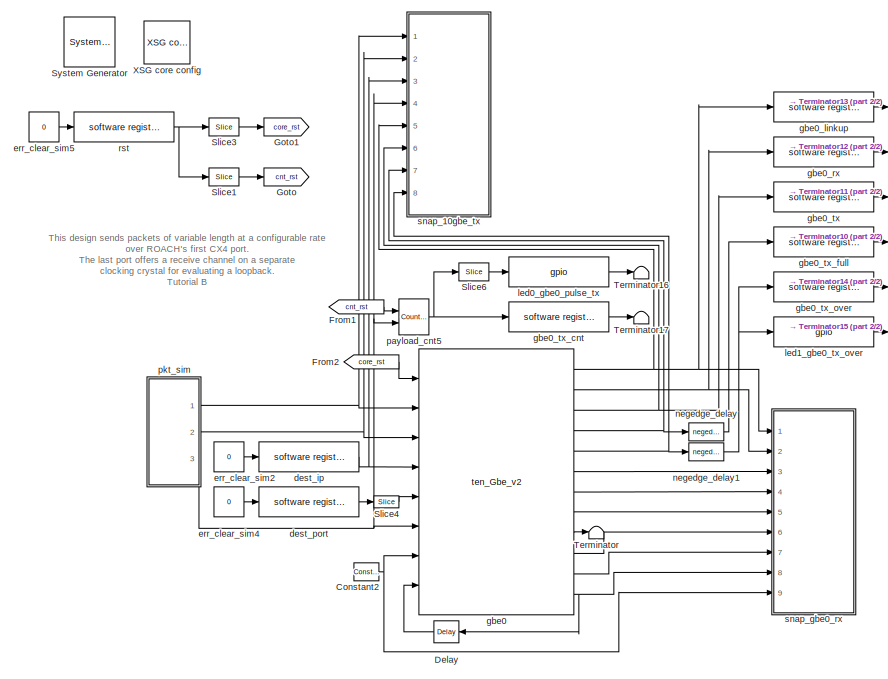
[diagram: root canvas - part 1/2, left side, full height]
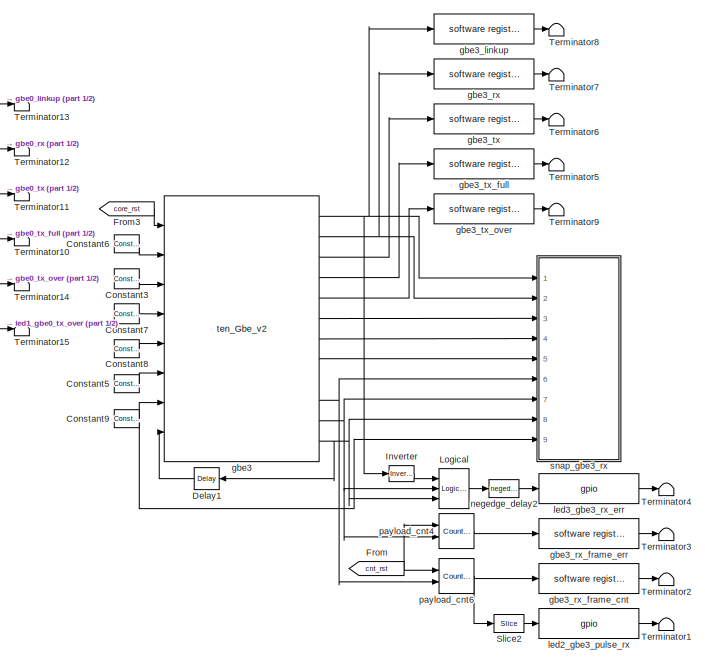
[diagram: root canvas - part 2/2, right side, full height]
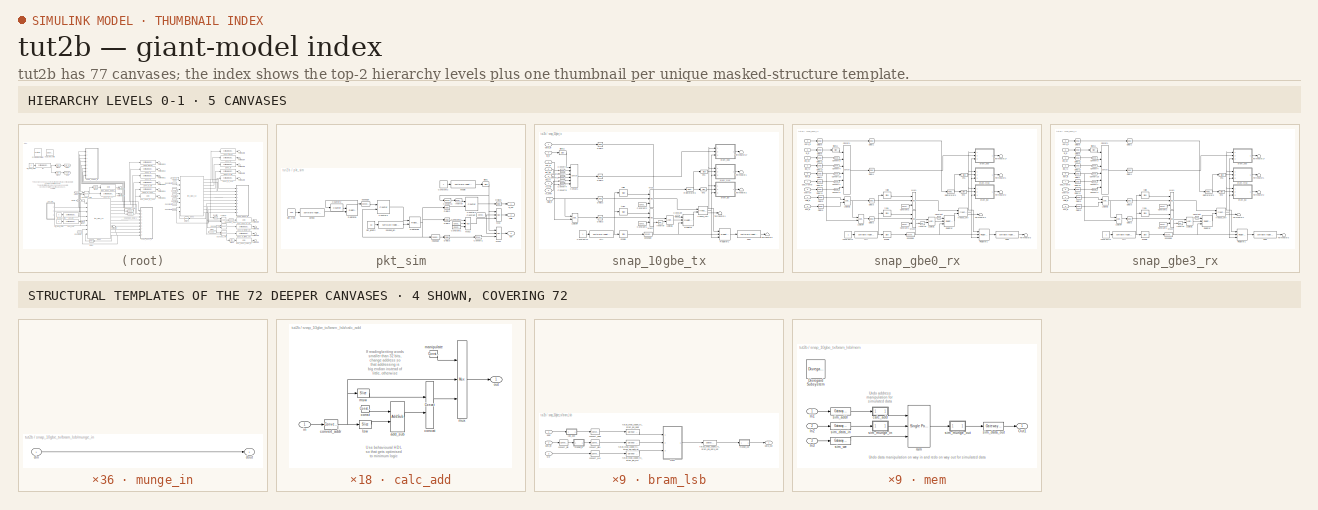
[diagram: thumbnail index - top-2 hierarchy levels (5 canvases) + 4 structural-template representatives of the remaining 72 canvases]
MODEL tut2b
KIND model
BLOCK [Reference]  System Generator  REF=xbsIndex_r4/ System Generator
  AttributesFormatString = System\\nGenerator
  FunctionWithSeparateData = off
  Ports = []
  RTWMemSecDataConstants = Inherit from model
  RTWMemSecDataInternal = Inherit from model
  RTWMemSecDataParameters = Inherit from model
  RTWMemSecFuncExecute = Inherit from model
  RTWMemSecFuncInitTerm = Inherit from model
  SID = 1
  ShowPortLabels = FromPortIcon
  SourceBlock = xbsIndex_r4/ System Generator
  SourceType = Xilinx System Generator Block
  SystemSampleTime = -1
  Tag = genX
  UserData = DataTag0
  UserDataPersistent = on
  block_type = sysgen
  block_version = 10.1.3
  clock_wrapper = Clock Enables
  core_generation = According to Block Masks
  dbl_ovrd = According to Block Masks
  dcm_input_clock_period = 100
  deprecated_control = off
  directory = ./tut2b/sysgen
  eval_field = 0
  has_advanced_control = 0
  incr_netlist = off
  infoedit = System Generator
  package = ff1136
  part = xc5vsx95t
  run_coregen = off
  sg_icon_stat = 51,50,-1,-1,red,beige,0,07734,right
  sg_mask_display = fprintf('','COMMENT: begin icon graphics');\npatch([0 51 51 0 ],[0 0 50 50 ],[0.93 0.92 0.86]);\npatch([12 4 16 4 12 25 29 33 47 36 25 17 29 17 25 36 47 33 29 25 12 ],[5 13 25 37 45 45 41 45 45 34 45 37 25 13 5 16 5 5 9 5 5 ],[0.6 0.2 0.25]);\nplot([0 51 51 0 0 ],[0 0 50 50 0 ]);\nfprintf('','COMMENT: end icon graphics');\nfprintf('','COMMENT: begin icon text');\nfprintf('','COMMENT: end icon text...<+5ch>
  sggui_pos = -1,-1,-1,-1
  simulink_period = 1
  speed = -1
  synthesis_tool = XST
  sysclk_period = 5
  testbench = off
  trim_vbits = Everywhere in SubSystem
  xilinxfamily = virtex5
BLOCK [Reference] Constant2  REF=xbsIndex_r4/Constant
  Ports = [0, 1]
  SID = 2
  SourceBlock = xbsIndex_r4/Constant
  SourceType = Xilinx Constant Block Block
  arith_type = Boolean
  bin_pt = 0
  block_type = constant
  block_version = 10.1.3
  carry = CIN
  const = 1
  dbl_ovrd = off
  dsp48_infoedit = The use of this block for DSP48 instructions is deprecated.  Please use the Opmode block.
  equ = P=C
  explicit_period = on
  has_advanced_control = 0
  inp1 = P
  inp2 = PCIN>>17
  n_bits = 1
  opr = +
  opselect = C
  period = 1
  sg_icon_stat = 25,18,0,1,white,blue,0,1c72b5be,right,
  sg_mask_display = fprintf('','COMMENT: begin icon graphics');\npatch([0 1 1 0 ],[0 0 1 1 ],[0.77 0.82 0.91]);\npatch([0.32 0.2 0.36 0.2 0.32 0.52 0.56 0.6 0.8 0.64 0.48 0.36 0.52 0.36 0.48 0.64 0.8 0.6 0.56 0.52 0.32 ],[0.111111 0.277778 0.5 0.722222 0.888889 0.888889 0.833333 0.888889 0.888889 0.666667 0.888889 0.722222 0.5 0.277778 0.111111 0.333333 0.111111 0.111111 0.166667 0.111111 0.111111 ],[0.98 0.96 0.92])...<+204ch>  <repeated x5 — deduplicated; at blocks: Constant2, Constant5, Constant6, Constant8, Constant9>
  sggui_pos = -1,-1,-1,-1
BLOCK [Reference] Constant3  REF=xbsIndex_r4/Constant
  Ports = [0, 1]
  SID = 3
  SourceBlock = xbsIndex_r4/Constant
  SourceType = Xilinx Constant Block Block
  arith_type = Boolean
  bin_pt = 0
  block_type = constant
  block_version = 10.1.3
  carry = CIN
  const = 0
  dbl_ovrd = off
  dsp48_infoedit = The use of this block for DSP48 instructions is deprecated.  Please use the Opmode block.
  equ = P=C
  explicit_period = on
  has_advanced_control = 0
  inp1 = P
  inp2 = PCIN>>17
  n_bits = 1
  opr = +
  opselect = C
  period = 1
  sg_icon_stat = 25,20,0,1,white,blue,0,bf4ddd8b,right,
  sg_mask_display = fprintf('','COMMENT: begin icon graphics');\npatch([0 1 1 0 ],[0 0 1 1 ],[0.77 0.82 0.91]);\npatch([0.28 0.16 0.36 0.16 0.28 0.48 0.52 0.56 0.8 0.64 0.48 0.36 0.56 0.36 0.48 0.64 0.8 0.56 0.52 0.48 0.28 ],[0.1 0.25 0.5 0.75 0.9 0.9 0.85 0.9 0.9 0.7 0.9 0.75 0.5 0.25 0.1 0.3 0.1 0.1 0.15 0.1 0.1 ],[0.98 0.96 0.92]);\nplot([0 1 1 0 0 ],[0 0 1 1 0 ]);\nfprintf('','COMMENT: end icon graphics');\nfprin...<+119ch>
  sggui_pos = 20,20,400,346
BLOCK [Reference] Constant5  REF=xbsIndex_r4/Constant
  Ports = [0, 1]
  SID = 4
  SourceBlock = xbsIndex_r4/Constant
  SourceType = Xilinx Constant Block Block
  arith_type = Boolean
  bin_pt = 0
  block_type = constant
  block_version = 10.1.3
  carry = CIN
  const = 0
  dbl_ovrd = off
  dsp48_infoedit = The use of this block for DSP48 instructions is deprecated.  Please use the Opmode block.
  equ = P=C
  explicit_period = on
  has_advanced_control = 0
  inp1 = P
  inp2 = PCIN>>17
  n_bits = 1
  opr = +
  opselect = C
  period = 1
  sg_icon_stat = 25,18,0,1,white,blue,0,bf4ddd8b,right,
  sggui_pos = -1,-1,-1,-1
BLOCK [Reference] Constant6  REF=xbsIndex_r4/Constant
  Ports = [0, 1]
  SID = 5
  SourceBlock = xbsIndex_r4/Constant
  SourceType = Xilinx Constant Block Block
  arith_type = Unsigned
  bin_pt = 0
  block_type = constant
  block_version = 10.1.3
  carry = CIN
  const = 0
  dbl_ovrd = off
  dsp48_infoedit = The use of this block for DSP48 instructions is deprecated.  Please use the Opmode block.
  equ = P=C
  explicit_period = on
  has_advanced_control = 0
  inp1 = P
  inp2 = PCIN>>17
  n_bits = 64
  opr = +
  opselect = C
  period = 1
  sg_icon_stat = 25,18,0,1,white,blue,0,bf4ddd8b,right,
  sggui_pos = 20,20,400,346
BLOCK [Reference] Constant7  REF=xbsIndex_r4/Constant
  Ports = [0, 1]
  SID = 6
  SourceBlock = xbsIndex_r4/Constant
  SourceType = Xilinx Constant Block Block
  arith_type = Unsigned
  bin_pt = 0
  block_type = constant
  block_version = 10.1.3
  carry = CIN
  const = 0
  dbl_ovrd = off
  dsp48_infoedit = The use of this block for DSP48 instructions is deprecated.  Please use the Opmode block.
  equ = P=C
  explicit_period = on
  has_advanced_control = 0
  inp1 = P
  inp2 = PCIN>>17
  n_bits = 32
  opr = +
  opselect = C
  period = 1
  sg_icon_stat = 25,20,0,1,white,blue,0,bf4ddd8b,right,
  sg_mask_display = fprintf('','COMMENT: begin icon graphics');\npatch([0 1 1 0 ],[0 0 1 1 ],[0.77 0.82 0.91]);\npatch([0.28 0.16 0.36 0.16 0.28 0.48 0.52 0.56 0.8 0.64 0.48 0.36 0.56 0.36 0.48 0.64 0.8 0.56 0.52 0.48 0.28 ],[0.1 0.25 0.5 0.75 0.9 0.9 0.85 0.9 0.9 0.7 0.9 0.75 0.5 0.25 0.1 0.3 0.1 0.1 0.15 0.1 0.1 ],[0.98 0.96 0.92]);\nplot([0 1 1 0 0 ],[0 0 1 1 0 ]);\nfprintf('','COMMENT: end icon graphics');\nfprin...<+119ch>
  sggui_pos = 20,20,400,346
BLOCK [Reference] Constant8  REF=xbsIndex_r4/Constant
  Ports = [0, 1]
  SID = 7
  SourceBlock = xbsIndex_r4/Constant
  SourceType = Xilinx Constant Block Block
  arith_type = Unsigned
  bin_pt = 0
  block_type = constant
  block_version = 10.1.3
  carry = CIN
  const = 0
  dbl_ovrd = off
  dsp48_infoedit = The use of this block for DSP48 instructions is deprecated.  Please use the Opmode block.
  equ = P=C
  explicit_period = on
  has_advanced_control = 0
  inp1 = P
  inp2 = PCIN>>17
  n_bits = 16
  opr = +
  opselect = C
  period = 1
  sg_icon_stat = 25,18,0,1,white,blue,0,bf4ddd8b,right,
  sggui_pos = 20,20,400,346
BLOCK [Reference] Constant9  REF=xbsIndex_r4/Constant
  Ports = [0, 1]
  SID = 8
  SourceBlock = xbsIndex_r4/Constant
  SourceType = Xilinx Constant Block Block
  arith_type = Boolean
  bin_pt = 0
  block_type = constant
  block_version = 10.1.3
  carry = CIN
  const = 1
  dbl_ovrd = off
  dsp48_infoedit = The use of this block for DSP48 instructions is deprecated.  Please use the Opmode block.
  equ = P=C
  explicit_period = on
  has_advanced_control = 0
  inp1 = P
  inp2 = PCIN>>17
  n_bits = 1
  opr = +
  opselect = C
  period = 1
  sg_icon_stat = 25,18,0,1,white,blue,0,1c72b5be,right,
  sggui_pos = 20,20,400,346
BLOCK [Reference] Delay  REF=xbsIndex_r4/Delay
  Ports = [1, 1]
  SID = 9
  SourceBlock = xbsIndex_r4/Delay
  SourceType = Xilinx Delay Block
  block_type = delay
  block_version = 10.1.3
  dbl_ovrd = off
  en = off
  has_advanced_control = 0
  infoedit = Hardware notes: A delay line is a chain, each link of which is an SRL16 followed by a flip-flop.
  latency = 1
  reg_retiming = on
  sg_icon_stat = 25,22,1,1,white,blue,0,07b98262,left,
  sg_mask_display = fprintf('','COMMENT: begin icon graphics');\npatch([0 1 1 0 ],[0 0 1 1 ],[0.77 0.82 0.91]);\npatch([0.28 0.12 0.32 0.12 0.28 0.52 0.6 0.68 0.92 0.72 0.52 0.4 0.64 0.4 0.52 0.72 0.92 0.68 0.6 0.52 0.28 ],[0.0909091 0.272727 0.5 0.727273 0.909091 0.909091 0.818182 0.909091 0.909091 0.681818 0.909091 0.772727 0.5 0.227273 0.0909091 0.318182 0.0909091 0.0909091 0.181818 0.0909091 0.0909091 ],[0.98 0.9...<+215ch>
  sggui_pos = 20,20,348,255
  xl_area = [0,0,0,0,0,0,0]
  xl_use_area = off
BLOCK [Reference] Delay1  REF=xbsIndex_r4/Delay
  Ports = [1, 1]
  SID = 10
  SourceBlock = xbsIndex_r4/Delay
  SourceType = Xilinx Delay Block
  block_type = delay
  block_version = 10.1.3
  dbl_ovrd = off
  en = off
  has_advanced_control = 0
  infoedit = Hardware notes: A delay line is a chain, each link of which is an SRL16 followed by a flip-flop.
  latency = 1
  reg_retiming = on
  sg_icon_stat = 25,22,1,1,white,blue,0,07b98262,left,
  sg_mask_display = fprintf('','COMMENT: begin icon graphics');\npatch([0 1 1 0 ],[0 0 1 1 ],[0.77 0.82 0.91]);\npatch([0.28 0.12 0.32 0.12 0.28 0.52 0.6 0.68 0.92 0.72 0.52 0.4 0.64 0.4 0.52 0.72 0.92 0.68 0.6 0.52 0.28 ],[0.0909091 0.272727 0.5 0.727273 0.909091 0.909091 0.818182 0.909091 0.909091 0.681818 0.909091 0.772727 0.5 0.227273 0.0909091 0.318182 0.0909091 0.0909091 0.181818 0.0909091 0.0909091 ],[0.98 0.9...<+215ch>
  sggui_pos = 20,20,348,255
  xl_area = [0,0,0,0,0,0,0]
  xl_use_area = off
BLOCK [From] From
  CloseFcn = tagdialog Close
  GotoTag = cnt_rst
  SID = 11
BLOCK [From] From1
  CloseFcn = tagdialog Close
  GotoTag = cnt_rst
  SID = 12
BLOCK [From] From2
  CloseFcn = tagdialog Close
  GotoTag = core_rst
  SID = 13
BLOCK [From] From3
  CloseFcn = tagdialog Close
  GotoTag = core_rst
  SID = 14
BLOCK [Goto] Goto
  GotoTag = cnt_rst
  SID = 15
  TagVisibility = local
BLOCK [Goto] Goto1
  GotoTag = core_rst
  SID = 16
  TagVisibility = local
BLOCK [Reference] Inverter  REF=xbsIndex_r4/Inverter
  Ports = [1, 1]
  SID = 17
  SourceBlock = xbsIndex_r4/Inverter
  SourceType = Xilinx Inverter Block
  block_type = inv
  block_version = 10.1.3
  dbl_ovrd = off
  en = off
  has_advanced_control = 0
  infoedit = Bitwise logical negation (one's complement) operator.
  latency = 0
  sg_icon_stat = 25,16,1,1,white,blue,0,267846e5,right,
  sg_mask_display = fprintf('','COMMENT: begin icon graphics');\npatch([0 1 1 0 ],[0 0 1 1 ],[0.77 0.82 0.91]);\npatch([0.36 0.24 0.4 0.24 0.36 0.52 0.56 0.6 0.8 0.64 0.52 0.44 0.6 0.44 0.52 0.64 0.8 0.6 0.56 0.52 0.36 ],[0.125 0.3125 0.5625 0.8125 1 1 0.9375 1 1 0.75 0.9375 0.8125 0.5625 0.3125 0.1875 0.375 0.125 0.125 0.1875 0.125 0.125 ],[0.98 0.96 0.92]);\nplot([0 1 1 0 0 ],[0 0 1 1 0 ]);\nfprintf('','COMMENT: en...<+129ch>
  sggui_pos = -1,-1,-1,-1
  xl_area = [0,0,0,0,0,0,0]
  xl_use_area = off
BLOCK [Reference] Logical  REF=xbsIndex_r4/Logical
  Ports = [3, 1]
  SID = 18
  SourceBlock = xbsIndex_r4/Logical
  SourceType = Xilinx Logical Block Block
  align_bp = on
  arith_type = Unsigned
  bin_pt = 0
  block_type = logical
  block_version = 10.1.3
  dbl_ovrd = off
  en = off
  has_advanced_control = 0
  inputs = 3
  latency = 0
  logical_function = OR
  n_bits = 16
  precision = Full
  sg_icon_stat = 30,40,3,1,white,blue,0,3b775cd1,right,
  sg_mask_display = fprintf('','COMMENT: begin icon graphics');\npatch([0 1 1 0 ],[0 0 1 1 ],[0.77 0.82 0.91]);\npatch([0.233333 0.0666667 0.3 0.0666667 0.233333 0.5 0.566667 0.633333 0.9 0.666667 0.466667 0.3 0.5 0.3 0.466667 0.666667 0.9 0.633333 0.566667 0.5 0.233333 ],[0.2 0.325 0.5 0.675 0.8 0.8 0.75 0.8 0.8 0.625 0.775 0.65 0.5 0.35 0.225 0.375 0.2 0.2 0.25 0.2 0.2 ],[0.98 0.96 0.92]);\nplot([0 1 1 0 0 ],[0 0 1...<+200ch>
  sggui_pos = 20,20,348,261
  xl_area = [0,0,0,0,0,0,0]
  xl_use_area = off
BLOCK [Reference] Slice1  REF=xbsIndex_r4/Slice
  Ports = [1, 1]
  SID = 19
  SourceBlock = xbsIndex_r4/Slice
  SourceType = Xilinx Bit Slice Extractor Block
  base0 = LSB of Input
  base1 = MSB of Input
  bit0 = 0
  bit1 = 0
  block_type = slice
  block_version = 10.1.3
  boolean_output = on
  dbl_ovrd = off
  has_advanced_control = 0
  infoedit = Extracts a given range of bits from each input sample and presents it at the output.  The output type is ordinarily unsigned with binary point at zero, but can be Boolean when the slice is one bit wide.<P><P>Hardware notes: In hardware this block costs nothing.  <repeated x22 — deduplicated; at blocks: Slice1, Slice2, Slice3, Slice4, Slice6, Slice11, en1, en2, enable, trig1, valid>
  mode = Lower Bit Location + Width
  nbits = 1
  sg_icon_stat = 30,18,1,1,white,blue,0,1fd851a7,right,
  sg_mask_display = fprintf('','COMMENT: begin icon graphics');\npatch([0 1 1 0 ],[0 0 1 1 ],[0.77 0.82 0.91]);\npatch([0.333333 0.233333 0.366667 0.233333 0.333333 0.5 0.533333 0.566667 0.733333 0.6 0.466667 0.366667 0.5 0.366667 0.466667 0.6 0.733333 0.566667 0.533333 0.5 0.333333 ],[0.111111 0.277778 0.5 0.722222 0.888889 0.888889 0.833333 0.888889 0.888889 0.666667 0.888889 0.722222 0.5 0.277778 0.111111 0.333333...<+273ch>  <repeated x7 — deduplicated; at blocks: Slice1, Slice2, Slice3, Slice6, Slice11>
  sggui_pos = -1,-1,-1,-1
BLOCK [Reference] Slice2  REF=xbsIndex_r4/Slice
  Ports = [1, 1]
  SID = 20
  SourceBlock = xbsIndex_r4/Slice
  SourceType = Xilinx Bit Slice Extractor Block
  base0 = LSB of Input
  base1 = MSB of Input
  bit0 = 27-12
  bit1 = 0
  block_type = slice
  block_version = 10.1.3
  boolean_output = on
  dbl_ovrd = off
  has_advanced_control = 0
  mode = Lower Bit Location + Width
  nbits = 1
  sg_icon_stat = 30,18,1,1,white,blue,0,1fd851a7,right,
  sggui_pos = 20,20,449,376
BLOCK [Reference] Slice3  REF=xbsIndex_r4/Slice
  Ports = [1, 1]
  SID = 21
  SourceBlock = xbsIndex_r4/Slice
  SourceType = Xilinx Bit Slice Extractor Block
  base0 = LSB of Input
  base1 = MSB of Input
  bit0 = 1
  bit1 = 0
  block_type = slice
  block_version = 10.1.3
  boolean_output = on
  dbl_ovrd = off
  has_advanced_control = 0
  mode = Lower Bit Location + Width
  nbits = 1
  sg_icon_stat = 30,18,1,1,white,blue,0,1fd851a7,right,
  sggui_pos = 20,20,449,376
BLOCK [Reference] Slice4  REF=xbsIndex_r4/Slice
  Ports = [1, 1]
  SID = 22
  SourceBlock = xbsIndex_r4/Slice
  SourceType = Xilinx Bit Slice Extractor Block
  base0 = LSB of Input
  base1 = MSB of Input
  bit0 = 0
  bit1 = 0
  block_type = slice
  block_version = 10.1.3
  boolean_output = off
  dbl_ovrd = off
  has_advanced_control = 0
  mode = Lower Bit Location + Width
  nbits = 16
  sg_icon_stat = 25,12,1,1,white,blue,0,1fd851a7,right,
  sg_mask_display = fprintf('','COMMENT: begin icon graphics');\npatch([0 1 1 0 ],[0 0 1 1 ],[0.77 0.82 0.91]);\npatch([0.36 0.28 0.4 0.28 0.36 0.48 0.52 0.56 0.68 0.56 0.44 0.36 0.48 0.36 0.44 0.56 0.68 0.56 0.52 0.48 0.36 ],[0.0833333 0.25 0.5 0.75 0.916667 0.916667 0.833333 0.916667 0.916667 0.666667 0.916667 0.75 0.5 0.25 0.0833333 0.333333 0.0833333 0.0833333 0.166667 0.0833333 0.0833333 ],[0.98 0.96 0.92]);\npl...<+203ch>
  sggui_pos = 20,20,449,376
BLOCK [Reference] Slice6  REF=xbsIndex_r4/Slice
  Ports = [1, 1]
  SID = 23
  SourceBlock = xbsIndex_r4/Slice
  SourceType = Xilinx Bit Slice Extractor Block
  base0 = LSB of Input
  base1 = MSB of Input
  bit0 = 27-12
  bit1 = 0
  block_type = slice
  block_version = 10.1.3
  boolean_output = on
  dbl_ovrd = off
  has_advanced_control = 0
  mode = Lower Bit Location + Width
  nbits = 1
  sg_icon_stat = 30,18,1,1,white,blue,0,1fd851a7,right,
  sggui_pos = 20,20,449,376
BLOCK [Terminator] Terminator
  SID = 24
BLOCK [Terminator] Terminator1
  SID = 25
BLOCK [Terminator] Terminator10
  SID = 26
BLOCK [Terminator] Terminator11
  SID = 27
BLOCK [Terminator] Terminator12
  SID = 28
BLOCK [Terminator] Terminator13
  SID = 29
BLOCK [Terminator] Terminator14
  SID = 30
BLOCK [Terminator] Terminator15
  SID = 31
BLOCK [Terminator] Terminator16
  SID = 32
BLOCK [Terminator] Terminator17
  SID = 33
BLOCK [Terminator] Terminator2
  SID = 34
BLOCK [Terminator] Terminator3
  SID = 35
BLOCK [Terminator] Terminator4
  SID = 36
BLOCK [Terminator] Terminator5
  SID = 37
BLOCK [Terminator] Terminator6
  SID = 38
BLOCK [Terminator] Terminator7
  SID = 39
BLOCK [Terminator] Terminator8
  SID = 40
BLOCK [Terminator] Terminator9
  SID = 41
BLOCK [Reference] XSG core config  REF=xps_library/XSG core config  (lib defined in mdl_00b5cec29cd0, mdl_02ab6ecaa3d1, +5 more)
  BEE2_ctrl_clk_src = sys_clk
  BEE2_usr_clk_src = sys_clk
  CORR_clk_src = sys_clk
  FunctionWithSeparateData = off
  Ports = []
  ROACH2_clk_src = adc0_clk
  ROACH_clk_src = sys_clk2x
  RTWMemSecDataConstants = Inherit from model
  RTWMemSecDataInternal = Inherit from model
  RTWMemSecDataParameters = Inherit from model
  RTWMemSecFuncExecute = Inherit from model
  RTWMemSecFuncInitTerm = Inherit from model
  SID = 42
  ShowPortLabels = FromPortIcon
  SourceBlock = xps_library/XSG core config
  SourceType = xsg core config
  SystemSampleTime = -1
  Tag = xps:xsg
  clk_rate = 200
  clk_src = sys_clk2x
  gpio_clk_bit_index = 0
  gpio_clk_io_group = iBOB:sma
  hw_sys = ROACH:sx95t
  iBOB_clk_src = sys_clk
  ibob_linux = off
  mpc_type = powerpc440_ext
  sample_period = 1
  synthesis_tool = XST
BLOCK [Reference] dest_ip  REF=xps_library/software register  (lib defined in mdl_00b5cec29cd0, mdl_02ab6ecaa3d1, +5 more)
  FunctionWithSeparateData = off
  Ports = [1, 1]
  RTWMemSecDataConstants = Inherit from model
  RTWMemSecDataInternal = Inherit from model
  RTWMemSecDataParameters = Inherit from model
  RTWMemSecFuncExecute = Inherit from model
  RTWMemSecFuncInitTerm = Inherit from model
  SID = 43
  ShowPortLabels = FromPortIcon
  SourceBlock = xps_library/software register
  SystemSampleTime = -1
  Tag = xps:sw_reg
  arith_type = Unsigned
  bin_pt = 0
  bitwidth = 32
  gw_name = tut2b_dest_ip_user_data_out
  io_dir = From Processor
  sample_period = 1
BLOCK [Reference] dest_port  REF=xps_library/software register  (lib defined in mdl_00b5cec29cd0, mdl_02ab6ecaa3d1, +5 more)
  FunctionWithSeparateData = off
  Ports = [1, 1]
  RTWMemSecDataConstants = Inherit from model
  RTWMemSecDataInternal = Inherit from model
  RTWMemSecDataParameters = Inherit from model
  RTWMemSecFuncExecute = Inherit from model
  RTWMemSecFuncInitTerm = Inherit from model
  SID = 44
  ShowPortLabels = FromPortIcon
  SourceBlock = xps_library/software register
  SystemSampleTime = -1
  Tag = xps:sw_reg
  arith_type = Unsigned
  bin_pt = 0
  bitwidth = 32
  gw_name = tut2b_dest_port_user_data_out
  io_dir = From Processor
  sample_period = 1
BLOCK [Constant] err_clear_sim2
  OutDataType = sfix(16)
  OutScaling = 2^0
  SID = 45
  Value = 0
BLOCK [Constant] err_clear_sim4
  OutDataType = sfix(16)
  OutScaling = 2^0
  SID = 46
  Value = 0
BLOCK [Constant] err_clear_sim5
  OutDataType = sfix(16)
  OutScaling = 2^0
  SID = 47
  Value = 0
BLOCK [Reference] gbe0  REF=xps_library/ten_Gbe_v2  (lib defined in mdl_00b5cec29cd0, mdl_02ab6ecaa3d1, +5 more)
  FunctionWithSeparateData = off
  Ports = [8, 12]
  RTWMemSecDataConstants = Inherit from model
  RTWMemSecDataInternal = Inherit from model
  RTWMemSecDataParameters = Inherit from model
  RTWMemSecFuncExecute = Inherit from model
  RTWMemSecFuncInitTerm = Inherit from model
  SID = 109
  ShowPortLabels = FromPortIcon
  SourceBlock = xps_library/ten_Gbe_v2
  SourceType = ten_GbE_v2
  SystemSampleTime = -1
  Tag = xps:tengbe_v2
  cpu_rx_en = on
  cpu_tx_en = on
  fab_en = on
  fab_gate = 1
  fab_ip = 10*(2^24) + 0*(2^16) + 0*(2^8) + 1*(2^0)
  fab_mac = hex2dec('123456780000')
  fab_udp = 10000
  large_frames = off
  port = 0
  pre_emph = 3
  rx_dist_ram = on
  show_param = on
  swing = 800
BLOCK [Reference] gbe0_linkup  REF=xps_library/software register  (lib defined in mdl_00b5cec29cd0, mdl_02ab6ecaa3d1, +5 more)
  FunctionWithSeparateData = off
  Ports = [1, 1]
  RTWMemSecDataConstants = Inherit from model
  RTWMemSecDataInternal = Inherit from model
  RTWMemSecDataParameters = Inherit from model
  RTWMemSecFuncExecute = Inherit from model
  RTWMemSecFuncInitTerm = Inherit from model
  SID = 49
  ShowPortLabels = FromPortIcon
  SourceBlock = xps_library/software register
  SystemSampleTime = -1
  Tag = xps:sw_reg
  arith_type = Unsigned
  bin_pt = 0
  bitwidth = 32
  gw_name = tut2b_gbe0_linkup_user_data_in
  io_dir = To Processor
  sample_period = 1
BLOCK [Reference] gbe0_rx  REF=xps_library/software register  (lib defined in mdl_00b5cec29cd0, mdl_02ab6ecaa3d1, +5 more)
  FunctionWithSeparateData = off
  Ports = [1, 1]
  RTWMemSecDataConstants = Inherit from model
  RTWMemSecDataInternal = Inherit from model
  RTWMemSecDataParameters = Inherit from model
  RTWMemSecFuncExecute = Inherit from model
  RTWMemSecFuncInitTerm = Inherit from model
  SID = 50
  ShowPortLabels = FromPortIcon
  SourceBlock = xps_library/software register
  SystemSampleTime = -1
  Tag = xps:sw_reg
  arith_type = Unsigned
  bin_pt = 0
  bitwidth = 32
  gw_name = tut2b_gbe0_rx_user_data_in
  io_dir = To Processor
  sample_period = 1
BLOCK [Reference] gbe0_tx  REF=xps_library/software register  (lib defined in mdl_00b5cec29cd0, mdl_02ab6ecaa3d1, +5 more)
  FunctionWithSeparateData = off
  Ports = [1, 1]
  RTWMemSecDataConstants = Inherit from model
  RTWMemSecDataInternal = Inherit from model
  RTWMemSecDataParameters = Inherit from model
  RTWMemSecFuncExecute = Inherit from model
  RTWMemSecFuncInitTerm = Inherit from model
  SID = 51
  ShowPortLabels = FromPortIcon
  SourceBlock = xps_library/software register
  SystemSampleTime = -1
  Tag = xps:sw_reg
  arith_type = Unsigned
  bin_pt = 0
  bitwidth = 32
  gw_name = tut2b_gbe0_tx_user_data_in
  io_dir = To Processor
  sample_period = 1
BLOCK [Reference] gbe0_tx_cnt  REF=xps_library/software register  (lib defined in mdl_00b5cec29cd0, mdl_02ab6ecaa3d1, +5 more)
  FunctionWithSeparateData = off
  Ports = [1, 1]
  RTWMemSecDataConstants = Inherit from model
  RTWMemSecDataInternal = Inherit from model
  RTWMemSecDataParameters = Inherit from model
  RTWMemSecFuncExecute = Inherit from model
  RTWMemSecFuncInitTerm = Inherit from model
  SID = 52
  ShowPortLabels = FromPortIcon
  SourceBlock = xps_library/software register
  SystemSampleTime = -1
  Tag = xps:sw_reg
  arith_type = Unsigned
  bin_pt = 0
  bitwidth = 32
  gw_name = tut2b_gbe0_tx_cnt_user_data_in
  io_dir = To Processor
  sample_period = 1
BLOCK [Reference] gbe0_tx_full  REF=xps_library/software register  (lib defined in mdl_00b5cec29cd0, mdl_02ab6ecaa3d1, +5 more)
  FunctionWithSeparateData = off
  Ports = [1, 1]
  RTWMemSecDataConstants = Inherit from model
  RTWMemSecDataInternal = Inherit from model
  RTWMemSecDataParameters = Inherit from model
  RTWMemSecFuncExecute = Inherit from model
  RTWMemSecFuncInitTerm = Inherit from model
  SID = 53
  ShowPortLabels = FromPortIcon
  SourceBlock = xps_library/software register
  SystemSampleTime = -1
  Tag = xps:sw_reg
  arith_type = Unsigned
  bin_pt = 0
  bitwidth = 32
  gw_name = tut2b_gbe0_tx_full_user_data_in
  io_dir = To Processor
  sample_period = 1
BLOCK [Reference] gbe0_tx_over  REF=xps_library/software register  (lib defined in mdl_00b5cec29cd0, mdl_02ab6ecaa3d1, +5 more)
  FunctionWithSeparateData = off
  Ports = [1, 1]
  RTWMemSecDataConstants = Inherit from model
  RTWMemSecDataInternal = Inherit from model
  RTWMemSecDataParameters = Inherit from model
  RTWMemSecFuncExecute = Inherit from model
  RTWMemSecFuncInitTerm = Inherit from model
  SID = 54
  ShowPortLabels = FromPortIcon
  SourceBlock = xps_library/software register
  SystemSampleTime = -1
  Tag = xps:sw_reg
  arith_type = Unsigned
  bin_pt = 0
  bitwidth = 32
  gw_name = tut2b_gbe0_tx_over_user_data_in
  io_dir = To Processor
  sample_period = 1
BLOCK [Reference] gbe3  REF=xps_library/ten_Gbe_v2  (lib defined in mdl_00b5cec29cd0, mdl_02ab6ecaa3d1, +5 more)
  FunctionWithSeparateData = off
  Ports = [8, 12]
  RTWMemSecDataConstants = Inherit from model
  RTWMemSecDataInternal = Inherit from model
  RTWMemSecDataParameters = Inherit from model
  RTWMemSecFuncExecute = Inherit from model
  RTWMemSecFuncInitTerm = Inherit from model
  SID = 110
  ShowPortLabels = FromPortIcon
  SourceBlock = xps_library/ten_Gbe_v2
  SourceType = ten_GbE_v2
  SystemSampleTime = -1
  Tag = xps:tengbe_v2
  cpu_rx_en = on
  cpu_tx_en = on
  fab_en = on
  fab_gate = 1
  fab_ip = 10*(2^24) + 0*(2^16) +0*(2^8) + 4*(2^0)
  fab_mac = hex2dec('123456780000')
  fab_udp = 10000
  large_frames = off
  port = 3
  pre_emph = 3
  rx_dist_ram = on
  show_param = on
  swing = 800
BLOCK [Reference] gbe3_linkup  REF=xps_library/software register  (lib defined in mdl_00b5cec29cd0, mdl_02ab6ecaa3d1, +5 more)
  FunctionWithSeparateData = off
  Ports = [1, 1]
  RTWMemSecDataConstants = Inherit from model
  RTWMemSecDataInternal = Inherit from model
  RTWMemSecDataParameters = Inherit from model
  RTWMemSecFuncExecute = Inherit from model
  RTWMemSecFuncInitTerm = Inherit from model
  SID = 56
  ShowPortLabels = FromPortIcon
  SourceBlock = xps_library/software register
  SystemSampleTime = -1
  Tag = xps:sw_reg
  arith_type = Unsigned
  bin_pt = 0
  bitwidth = 32
  gw_name = tut2b_gbe3_linkup_user_data_in
  io_dir = To Processor
  sample_period = 1
BLOCK [Reference] gbe3_rx  REF=xps_library/software register  (lib defined in mdl_00b5cec29cd0, mdl_02ab6ecaa3d1, +5 more)
  FunctionWithSeparateData = off
  Ports = [1, 1]
  RTWMemSecDataConstants = Inherit from model
  RTWMemSecDataInternal = Inherit from model
  RTWMemSecDataParameters = Inherit from model
  RTWMemSecFuncExecute = Inherit from model
  RTWMemSecFuncInitTerm = Inherit from model
  SID = 57
  ShowPortLabels = FromPortIcon
  SourceBlock = xps_library/software register
  SystemSampleTime = -1
  Tag = xps:sw_reg
  arith_type = Unsigned
  bin_pt = 0
  bitwidth = 32
  gw_name = tut2b_gbe3_rx_user_data_in
  io_dir = To Processor
  sample_period = 1
BLOCK [Reference] gbe3_rx_frame_cnt  REF=xps_library/software register  (lib defined in mdl_00b5cec29cd0, mdl_02ab6ecaa3d1, +5 more)
  FunctionWithSeparateData = off
  Ports = [1, 1]
  RTWMemSecDataConstants = Inherit from model
  RTWMemSecDataInternal = Inherit from model
  RTWMemSecDataParameters = Inherit from model
  RTWMemSecFuncExecute = Inherit from model
  RTWMemSecFuncInitTerm = Inherit from model
  SID = 58
  ShowPortLabels = FromPortIcon
  SourceBlock = xps_library/software register
  SystemSampleTime = -1
  Tag = xps:sw_reg
  arith_type = Unsigned
  bin_pt = 0
  bitwidth = 32
  gw_name = tut2b_gbe3_rx_frame_cnt_user_data_in
  io_dir = To Processor
  sample_period = 1
BLOCK [Reference] gbe3_rx_frame_err  REF=xps_library/software register  (lib defined in mdl_00b5cec29cd0, mdl_02ab6ecaa3d1, +5 more)
  FunctionWithSeparateData = off
  Ports = [1, 1]
  RTWMemSecDataConstants = Inherit from model
  RTWMemSecDataInternal = Inherit from model
  RTWMemSecDataParameters = Inherit from model
  RTWMemSecFuncExecute = Inherit from model
  RTWMemSecFuncInitTerm = Inherit from model
  SID = 59
  ShowPortLabels = FromPortIcon
  SourceBlock = xps_library/software register
  SystemSampleTime = -1
  Tag = xps:sw_reg
  arith_type = Unsigned
  bin_pt = 0
  bitwidth = 32
  gw_name = tut2b_gbe3_rx_frame_err_user_data_in
  io_dir = To Processor
  sample_period = 1
BLOCK [Reference] gbe3_tx  REF=xps_library/software register  (lib defined in mdl_00b5cec29cd0, mdl_02ab6ecaa3d1, +5 more)
  FunctionWithSeparateData = off
  Ports = [1, 1]
  RTWMemSecDataConstants = Inherit from model
  RTWMemSecDataInternal = Inherit from model
  RTWMemSecDataParameters = Inherit from model
  RTWMemSecFuncExecute = Inherit from model
  RTWMemSecFuncInitTerm = Inherit from model
  SID = 60
  ShowPortLabels = FromPortIcon
  SourceBlock = xps_library/software register
  SystemSampleTime = -1
  Tag = xps:sw_reg
  arith_type = Unsigned
  bin_pt = 0
  bitwidth = 32
  gw_name = tut2b_gbe3_tx_user_data_in
  io_dir = To Processor
  sample_period = 1
BLOCK [Reference] gbe3_tx_full  REF=xps_library/software register  (lib defined in mdl_00b5cec29cd0, mdl_02ab6ecaa3d1, +5 more)
  FunctionWithSeparateData = off
  Ports = [1, 1]
  RTWMemSecDataConstants = Inherit from model
  RTWMemSecDataInternal = Inherit from model
  RTWMemSecDataParameters = Inherit from model
  RTWMemSecFuncExecute = Inherit from model
  RTWMemSecFuncInitTerm = Inherit from model
  SID = 61
  ShowPortLabels = FromPortIcon
  SourceBlock = xps_library/software register
  SystemSampleTime = -1
  Tag = xps:sw_reg
  arith_type = Unsigned
  bin_pt = 0
  bitwidth = 32
  gw_name = tut2b_gbe3_tx_full_user_data_in
  io_dir = To Processor
  sample_period = 1
BLOCK [Reference] gbe3_tx_over  REF=xps_library/software register  (lib defined in mdl_00b5cec29cd0, mdl_02ab6ecaa3d1, +5 more)
  FunctionWithSeparateData = off
  Ports = [1, 1]
  RTWMemSecDataConstants = Inherit from model
  RTWMemSecDataInternal = Inherit from model
  RTWMemSecDataParameters = Inherit from model
  RTWMemSecFuncExecute = Inherit from model
  RTWMemSecFuncInitTerm = Inherit from model
  SID = 62
  ShowPortLabels = FromPortIcon
  SourceBlock = xps_library/software register
  SystemSampleTime = -1
  Tag = xps:sw_reg
  arith_type = Unsigned
  bin_pt = 0
  bitwidth = 32
  gw_name = tut2b_gbe3_tx_over_user_data_in
  io_dir = To Processor
  sample_period = 1
BLOCK [Reference] led0_gbe0_pulse_tx  REF=xps_library/gpio  (lib defined in mdl_00b5cec29cd0, mdl_02ab6ecaa3d1, +5 more)
  FunctionWithSeparateData = off
  Ports = [1, 1]
  RTWMemSecDataConstants = Inherit from model
  RTWMemSecDataInternal = Inherit from model
  RTWMemSecDataParameters = Inherit from model
  RTWMemSecFuncExecute = Inherit from model
  RTWMemSecFuncInitTerm = Inherit from model
  SID = 63
  ShowPortLabels = FromPortIcon
  SourceBlock = xps_library/gpio
  SourceType = gpio
  SystemSampleTime = -1
  Tag = xps:gpio
  arith_type = Boolean
  bin_pt = 0
  bit_index = 0
  bitwidth = 1
  io_dir = out
  io_group = ROACH:led
  reg_clk_phase = 0
  reg_iob = off
  sample_period = 1
  termination = None
  use_ddr = off
  use_single_ended = off
BLOCK [Reference] led1_gbe0_tx_over  REF=xps_library/gpio  (lib defined in mdl_00b5cec29cd0, mdl_02ab6ecaa3d1, +5 more)
  FunctionWithSeparateData = off
  Ports = [1, 1]
  RTWMemSecDataConstants = Inherit from model
  RTWMemSecDataInternal = Inherit from model
  RTWMemSecDataParameters = Inherit from model
  RTWMemSecFuncExecute = Inherit from model
  RTWMemSecFuncInitTerm = Inherit from model
  SID = 64
  ShowPortLabels = FromPortIcon
  SourceBlock = xps_library/gpio
  SourceType = gpio
  SystemSampleTime = -1
  Tag = xps:gpio
  arith_type = Boolean
  bin_pt = 0
  bit_index = 1
  bitwidth = 1
  io_dir = out
  io_group = ROACH:led
  reg_clk_phase = 0
  reg_iob = off
  sample_period = 1
  termination = None
  use_ddr = off
  use_single_ended = off
BLOCK [Reference] led2_gbe3_pulse_rx  REF=xps_library/gpio  (lib defined in mdl_00b5cec29cd0, mdl_02ab6ecaa3d1, +5 more)
  FunctionWithSeparateData = off
  Ports = [1, 1]
  RTWMemSecDataConstants = Inherit from model
  RTWMemSecDataInternal = Inherit from model
  RTWMemSecDataParameters = Inherit from model
  RTWMemSecFuncExecute = Inherit from model
  RTWMemSecFuncInitTerm = Inherit from model
  SID = 65
  ShowPortLabels = FromPortIcon
  SourceBlock = xps_library/gpio
  SourceType = gpio
  SystemSampleTime = -1
  Tag = xps:gpio
  arith_type = Boolean
  bin_pt = 0
  bit_index = 2
  bitwidth = 1
  io_dir = out
  io_group = ROACH:led
  reg_clk_phase = 0
  reg_iob = off
  sample_period = 1
  termination = None
  use_ddr = off
  use_single_ended = off
BLOCK [Reference] led3_gbe3_rx_err  REF=xps_library/gpio  (lib defined in mdl_00b5cec29cd0, mdl_02ab6ecaa3d1, +5 more)
  FunctionWithSeparateData = off
  Ports = [1, 1]
  RTWMemSecDataConstants = Inherit from model
  RTWMemSecDataInternal = Inherit from model
  RTWMemSecDataParameters = Inherit from model
  RTWMemSecFuncExecute = Inherit from model
  RTWMemSecFuncInitTerm = Inherit from model
  SID = 66
  ShowPortLabels = FromPortIcon
  SourceBlock = xps_library/gpio
  SourceType = gpio
  SystemSampleTime = -1
  Tag = xps:gpio
  arith_type = Boolean
  bin_pt = 0
  bit_index = 3
  bitwidth = 1
  io_dir = out
  io_group = ROACH:led
  reg_clk_phase = 0
  reg_iob = off
  sample_period = 1
  termination = None
  use_ddr = off
  use_single_ended = off
BLOCK [Reference] negedge_delay  REF=casper_library_misc/negedge_delay  (lib defined in mdl_357510c33b49, mdl_57b5f564ae26, +4 more)
  FunctionWithSeparateData = off
  Ports = [1, 1]
  RTWMemSecDataConstants = Inherit from model
  RTWMemSecDataInternal = Inherit from model
  RTWMemSecDataParameters = Inherit from model
  RTWMemSecFuncExecute = Inherit from model
  RTWMemSecFuncInitTerm = Inherit from model
  SID = 67
  ShowPortLabels = FromPortIcon
  SourceBlock = casper_library_misc/negedge_delay
  SourceType = negedge_delay
  SystemSampleTime = -1
  pulse_len = 2^20
BLOCK [Reference] negedge_delay1  REF=casper_library_misc/negedge_delay  (lib defined in mdl_357510c33b49, mdl_57b5f564ae26, +4 more)
  FunctionWithSeparateData = off
  Ports = [1, 1]
  RTWMemSecDataConstants = Inherit from model
  RTWMemSecDataInternal = Inherit from model
  RTWMemSecDataParameters = Inherit from model
  RTWMemSecFuncExecute = Inherit from model
  RTWMemSecFuncInitTerm = Inherit from model
  SID = 68
  ShowPortLabels = FromPortIcon
  SourceBlock = casper_library_misc/negedge_delay
  SourceType = negedge_delay
  SystemSampleTime = -1
  pulse_len = 2^20
BLOCK [Reference] negedge_delay2  REF=casper_library_misc/negedge_delay  (lib defined in mdl_357510c33b49, mdl_57b5f564ae26, +4 more)
  FunctionWithSeparateData = off
  Ports = [1, 1]
  RTWMemSecDataConstants = Inherit from model
  RTWMemSecDataInternal = Inherit from model
  RTWMemSecDataParameters = Inherit from model
  RTWMemSecFuncExecute = Inherit from model
  RTWMemSecFuncInitTerm = Inherit from model
  SID = 69
  ShowPortLabels = FromPortIcon
  SourceBlock = casper_library_misc/negedge_delay
  SourceType = negedge_delay
  SystemSampleTime = -1
  pulse_len = 2^20
BLOCK [Reference] payload_cnt4  REF=xbsIndex_r4/Counter
  Ports = [2, 1]
  SID = 70
  SourceBlock = xbsIndex_r4/Counter
  SourceType = Xilinx Counter Block
  arith_type = Unsigned
  bin_pt = 0
  block_type = counter
  block_version = 10.1.3
  cnt_by_val = 1
  cnt_to = 0
  cnt_type = Free Running
  dbl_ovrd = off
  en = on
  explicit_period = on
  has_advanced_control = 0
  implementation = Fabric
  infoedit = Hardware notes: Free running counters are the least expensive in hardware.  A count limited counter is implemented by combining a counter with a comparator.
  load_pin = off
  n_bits = 32
  operation = Up
  period = 1
  rst = on
  sg_icon_stat = 35,35,2,1,white,blue,0,d605779c,right,
  sg_mask_display = fprintf('','COMMENT: begin icon graphics');\npatch([0 1 1 0 ],[0 0 1 1 ],[0.77 0.82 0.91]);\npatch([0.228571 0.0571429 0.285714 0.0571429 0.228571 0.485714 0.571429 0.657143 0.942857 0.714286 0.514286 0.371429 0.6 0.371429 0.514286 0.714286 0.942857 0.657143 0.571429 0.485714 0.228571 ],[0.114286 0.285714 0.514286 0.742857 0.914286 0.914286 0.828571 0.914286 0.914286 0.685714 0.885714 0.742857 0.5...<+387ch>
  sggui_pos = 20,20,348,619
  start_count = 0
  use_behavioral_HDL = off
  use_rpm = on
  xl_area = [0, 0, 0, 0, 0, 0, 0]
  xl_use_area = off
BLOCK [Reference] payload_cnt5  REF=xbsIndex_r4/Counter
  Ports = [2, 1]
  SID = 71
  SourceBlock = xbsIndex_r4/Counter
  SourceType = Xilinx Counter Block
  arith_type = Unsigned
  bin_pt = 0
  block_type = counter
  block_version = 10.1.3
  cnt_by_val = 1
  cnt_to = 0
  cnt_type = Free Running
  dbl_ovrd = off
  en = on
  explicit_period = on
  has_advanced_control = 0
  implementation = Fabric
  infoedit = Hardware notes: Free running counters are the least expensive in hardware.  A count limited counter is implemented by combining a counter with a comparator.
  load_pin = off
  n_bits = 32
  operation = Up
  period = 1
  rst = on
  sg_icon_stat = 30,36,2,1,white,blue,0,d605779c,right,
  sg_mask_display = fprintf('','COMMENT: begin icon graphics');\npatch([0 1 1 0 ],[0 0 1 1 ],[0.77 0.82 0.91]);\npatch([0.233333 0.0666667 0.3 0.0666667 0.233333 0.5 0.566667 0.633333 0.9 0.666667 0.466667 0.3 0.5 0.3 0.466667 0.666667 0.9 0.633333 0.566667 0.5 0.233333 ],[0.166667 0.305556 0.5 0.694444 0.833333 0.833333 0.777778 0.833333 0.833333 0.638889 0.805556 0.666667 0.5 0.333333 0.194444 0.361111 0.166667 0.1...<+347ch>
  sggui_pos = 828,215,348,619
  start_count = 0
  use_behavioral_HDL = off
  use_rpm = on
  xl_area = [0, 0, 0, 0, 0, 0, 0]
  xl_use_area = off
BLOCK [Reference] payload_cnt6  REF=xbsIndex_r4/Counter
  Ports = [2, 1]
  SID = 72
  SourceBlock = xbsIndex_r4/Counter
  SourceType = Xilinx Counter Block
  arith_type = Unsigned
  bin_pt = 0
  block_type = counter
  block_version = 10.1.3
  cnt_by_val = 1
  cnt_to = 0
  cnt_type = Free Running
  dbl_ovrd = off
  en = on
  explicit_period = on
  has_advanced_control = 0
  implementation = Fabric
  infoedit = Hardware notes: Free running counters are the least expensive in hardware.  A count limited counter is implemented by combining a counter with a comparator.
  load_pin = off
  n_bits = 32
  operation = Up
  period = 1
  rst = on
  sg_icon_stat = 35,35,2,1,white,blue,0,d605779c,right,
  sg_mask_display = fprintf('','COMMENT: begin icon graphics');\npatch([0 1 1 0 ],[0 0 1 1 ],[0.77 0.82 0.91]);\npatch([0.228571 0.0571429 0.285714 0.0571429 0.228571 0.485714 0.571429 0.657143 0.942857 0.714286 0.514286 0.371429 0.6 0.371429 0.514286 0.714286 0.942857 0.657143 0.571429 0.485714 0.228571 ],[0.114286 0.285714 0.514286 0.742857 0.914286 0.914286 0.828571 0.914286 0.914286 0.685714 0.885714 0.742857 0.5...<+387ch>
  sggui_pos = 20,20,348,619
  start_count = 0
  use_behavioral_HDL = off
  use_rpm = on
  xl_area = [0, 0, 0, 0, 0, 0, 0]
  xl_use_area = off
BLOCK [SubSystem] pkt_sim
  FunctionWithSeparateData = off
  MaskHideContents = off
  MaskIconFrame = on
  MaskIconOpaque = on
  MaskIconRotate = none
  MaskIconUnits = autoscale
  MaskPortRotate = default
  MinAlgLoopOccurrences = off
  Opaque = off
  Ports = [0, 3]
  PropExecContextOutsideSubsystem = off
  RTWSystemCode = Auto
  RequestExecContextInheritance = off
  SID = 73
BLOCK [Reference] pkt_sim/Constant  REF=xbsIndex_r4/Constant
  Ports = [0, 1]
  SID = 74
  SourceBlock = xbsIndex_r4/Constant
  SourceType = Xilinx Constant Block Block
  arith_type = Boolean
  bin_pt = 0
  block_type = constant
  block_version = 10.1.3
  carry = CIN
  const = 0
  dbl_ovrd = off
  dsp48_infoedit = The use of this block for DSP48 instructions is deprecated.  Please use the Opmode block.
  equ = P=C
  explicit_period = on
  has_advanced_control = 0
  inp1 = P
  inp2 = PCIN>>17
  n_bits = 1
  opr = +
  opselect = C
  period = 1
  sg_icon_stat = 35,18,0,1,white,blue,0,bf4ddd8b,right,
  sg_mask_display = fprintf('','COMMENT: begin icon graphics');\npatch([0 1 1 0 ],[0 0 1 1 ],[0.77 0.82 0.91]);\npatch([0.371429 0.285714 0.4 0.285714 0.371429 0.514286 0.542857 0.571429 0.714286 0.6 0.485714 0.4 0.514286 0.4 0.485714 0.6 0.714286 0.571429 0.542857 0.514286 0.371429 ],[0.111111 0.277778 0.5 0.722222 0.888889 0.888889 0.833333 0.888889 0.888889 0.666667 0.888889 0.722222 0.5 0.277778 0.111111 0.333333...<+269ch>
  sggui_pos = -1,-1,-1,-1
BLOCK [Reference] pkt_sim/Constant1  REF=xbsIndex_r4/Constant
  Ports = [0, 1]
  SID = 75
  SourceBlock = xbsIndex_r4/Constant
  SourceType = Xilinx Constant Block Block
  arith_type = Boolean
  bin_pt = 0
  block_type = constant
  block_version = 10.1.3
  carry = CIN
  const = 1
  dbl_ovrd = off
  dsp48_infoedit = The use of this block for DSP48 instructions is deprecated.  Please use the Opmode block.
  equ = P=C
  explicit_period = off
  has_advanced_control = 0
  inp1 = P
  inp2 = PCIN>>17
  n_bits = 1
  opr = +
  opselect = C
  period = 1
  sg_icon_stat = 35,14,0,1,white,blue,0,1c72b5be,right,
  sg_mask_display = fprintf('','COMMENT: begin icon graphics');\npatch([0 1 1 0 ],[0 0 1 1 ],[0.77 0.82 0.91]);\npatch([0.371429 0.314286 0.4 0.314286 0.371429 0.485714 0.514286 0.542857 0.657143 0.571429 0.485714 0.428571 0.514286 0.428571 0.485714 0.571429 0.657143 0.542857 0.514286 0.485714 0.371429 ],[0.142857 0.285714 0.5 0.714286 0.857143 0.857143 0.785714 0.857143 0.857143 0.642857 0.857143 0.714286 0.5 0.2857...<+289ch>
  sggui_pos = -1,-1,-1,-1
BLOCK [Constant] pkt_sim/Constant2
  OutDataType = sfix(16)
  OutScaling = 2^0
  SID = 76
BLOCK [Reference] pkt_sim/Constant3  REF=xbsIndex_r4/Constant
  Ports = [0, 1]
  SID = 77
  SourceBlock = xbsIndex_r4/Constant
  SourceType = Xilinx Constant Block Block
  arith_type = Boolean
  bin_pt = 0
  block_type = constant
  block_version = 10.1.3
  carry = CIN
  const = 0
  dbl_ovrd = off
  dsp48_infoedit = The use of this block for DSP48 instructions is deprecated.  Please use the Opmode block.
  equ = P=C
  explicit_period = off
  has_advanced_control = 0
  inp1 = P
  inp2 = PCIN>>17
  n_bits = 1
  opr = +
  opselect = C
  period = 1
  sg_icon_stat = 35,14,0,1,white,blue,0,bf4ddd8b,right,
  sg_mask_display = fprintf('','COMMENT: begin icon graphics');\npatch([0 1 1 0 ],[0 0 1 1 ],[0.77 0.82 0.91]);\npatch([0.371429 0.314286 0.4 0.314286 0.371429 0.485714 0.514286 0.542857 0.657143 0.571429 0.485714 0.428571 0.514286 0.428571 0.485714 0.571429 0.657143 0.542857 0.514286 0.485714 0.371429 ],[0.142857 0.285714 0.5 0.714286 0.857143 0.857143 0.785714 0.857143 0.857143 0.642857 0.857143 0.714286 0.5 0.2857...<+289ch>
  sggui_pos = -1,-1,-1,-1
BLOCK [Reference] pkt_sim/Convert1  REF=xbsIndex_r4/Convert
  Ports = [1, 1]
  SID = 78
  SourceBlock = xbsIndex_r4/Convert
  SourceType = Xilinx Type Converter Block
  arith_type = Boolean
  bin_pt = 6
  block_type = convert
  block_version = 10.1.3
  dbl_ovrd = off
  has_advanced_control = 0
  infoedit = Hardware notes: rounding and saturating require hardware resources; truncating and wrapping do not.
  latency = 0
  n_bits = 8
  overflow = Wrap
  pipeline = off
  quantization = Truncate
  sg_icon_stat = 25,16,1,1,white,blue,0,edca21da,right,
  sg_mask_display = fprintf('','COMMENT: begin icon graphics');\npatch([0 1 1 0 ],[0 0 1 1 ],[0.77 0.82 0.91]);\npatch([0.36 0.24 0.4 0.24 0.36 0.52 0.56 0.6 0.8 0.64 0.52 0.44 0.6 0.44 0.52 0.64 0.8 0.6 0.56 0.52 0.36 ],[0.125 0.3125 0.5625 0.8125 1 1 0.9375 1 1 0.75 0.9375 0.8125 0.5625 0.3125 0.1875 0.375 0.125 0.125 0.1875 0.125 0.125 ],[0.98 0.96 0.92]);\nplot([0 1 1 0 0 ],[0 0 1 1 0 ]);\nfprintf('','COMMENT: en...<+147ch>
  sggui_pos = -1,-1,-1,-1
  xl_area = [0, 0, 0, 0, 0, 0, 0]
  xl_use_area = off
BLOCK [Reference] pkt_sim/Convert3  REF=xbsIndex_r4/Convert
  Ports = [1, 1]
  SID = 79
  SourceBlock = xbsIndex_r4/Convert
  SourceType = Xilinx Type Converter Block
  arith_type = Boolean
  bin_pt = 6
  block_type = convert
  block_version = 10.1.3
  dbl_ovrd = off
  has_advanced_control = 0
  infoedit = Hardware notes: rounding and saturating require hardware resources; truncating and wrapping do not.
  latency = 0
  n_bits = 8
  overflow = Wrap
  pipeline = off
  quantization = Truncate
  sg_icon_stat = 25,16,1,1,white,blue,0,edca21da,right,
  sg_mask_display = fprintf('','COMMENT: begin icon graphics');\npatch([0 1 1 0 ],[0 0 1 1 ],[0.77 0.82 0.91]);\npatch([0.36 0.24 0.4 0.24 0.36 0.52 0.56 0.6 0.8 0.64 0.52 0.44 0.6 0.44 0.52 0.64 0.8 0.6 0.56 0.52 0.36 ],[0.125 0.3125 0.5625 0.8125 1 1 0.9375 1 1 0.75 0.9375 0.8125 0.5625 0.3125 0.1875 0.375 0.125 0.125 0.1875 0.125 0.125 ],[0.98 0.96 0.92]);\nplot([0 1 1 0 0 ],[0 0 1 1 0 ]);\nfprintf('','COMMENT: en...<+147ch>
  sggui_pos = -1,-1,-1,-1
  xl_area = [0, 0, 0, 0, 0, 0, 0]
  xl_use_area = off
BLOCK [Reference] pkt_sim/Counter1  REF=xbsIndex_r4/Counter
  Ports = [2, 1]
  SID = 80
  SourceBlock = xbsIndex_r4/Counter
  SourceType = Xilinx Counter Block
  arith_type = Unsigned
  bin_pt = 0
  block_type = counter
  block_version = 10.1.3
  cnt_by_val = 1
  cnt_to = Inf
  cnt_type = Free Running
  dbl_ovrd = off
  en = on
  explicit_period = off
  has_advanced_control = 0
  implementation = Fabric
  infoedit = Hardware notes: Free running counters are the least expensive in hardware.  A count limited counter is implemented by combining a counter with a comparator.
  load_pin = off
  n_bits = 64
  operation = Up
  period = 1
  rst = on
  sg_icon_stat = 50,56,2,1,white,blue,0,d605779c,right,
  sg_mask_display = fprintf('','COMMENT: begin icon graphics');\npatch([0 1 1 0 ],[0 0 1 1 ],[0.77 0.82 0.91]);\npatch([0.22 0.06 0.3 0.06 0.22 0.48 0.56 0.64 0.92 0.7 0.48 0.32 0.56 0.32 0.48 0.7 0.92 0.64 0.56 0.48 0.22 ],[0.142857 0.285714 0.5 0.714286 0.857143 0.857143 0.785714 0.857143 0.857143 0.660714 0.857143 0.714286 0.5 0.285714 0.142857 0.339286 0.142857 0.142857 0.214286 0.142857 0.142857 ],[0.98 0.96 0.9...<+298ch>
  sggui_pos = -1,-1,-1,-1
  start_count = 0
  use_behavioral_HDL = off
  use_rpm = off
  xl_area = [0, 0, 0, 0, 0, 0, 0]
  xl_use_area = off
BLOCK [Reference] pkt_sim/Counter2  REF=xbsIndex_r4/Counter
  Ports = [1, 1]
  SID = 81
  SourceBlock = xbsIndex_r4/Counter
  SourceType = Xilinx Counter Block
  arith_type = Unsigned
  bin_pt = 0
  block_type = counter
  block_version = 10.1.3
  cnt_by_val = 1
  cnt_to = Inf
  cnt_type = Free Running
  dbl_ovrd = off
  en = off
  explicit_period = on
  has_advanced_control = 0
  implementation = Fabric
  infoedit = Hardware notes: Free running counters are the least expensive in hardware.  A count limited counter is implemented by combining a counter with a comparator.
  load_pin = off
  n_bits = 32
  operation = Up
  period = 1
  rst = on
  sg_icon_stat = 50,30,1,1,white,blue,0,c59595e6,right,
  sg_mask_display = fprintf('','COMMENT: begin icon graphics');\npatch([0 1 1 0 ],[0 0 1 1 ],[0.77 0.82 0.91]);\npatch([0.34 0.24 0.38 0.24 0.34 0.5 0.54 0.58 0.74 0.6 0.48 0.38 0.5 0.38 0.48 0.6 0.74 0.58 0.54 0.5 0.34 ],[0.1 0.266667 0.5 0.733333 0.9 0.9 0.833333 0.9 0.9 0.666667 0.866667 0.7 0.5 0.3 0.133333 0.333333 0.1 0.1 0.166667 0.1 0.1 ],[0.98 0.96 0.92]);\nplot([0 1 1 0 0 ],[0 0 1 1 0 ]);\nfprintf('','COMME...<+197ch>
  sggui_pos = -1,-1,-1,-1
  start_count = 1
  use_behavioral_HDL = off
  use_rpm = on
  xl_area = [0, 0, 0, 0, 0, 0, 0]
  xl_use_area = off
BLOCK [Reference] pkt_sim/Counter3  REF=xbsIndex_r4/Counter
  Ports = [2, 1]
  SID = 82
  SourceBlock = xbsIndex_r4/Counter
  SourceType = Xilinx Counter Block
  arith_type = Unsigned
  bin_pt = 0
  block_type = counter
  block_version = 10.1.3
  cnt_by_val = 1
  cnt_to = 1023
  cnt_type = Free Running
  dbl_ovrd = off
  en = on
  explicit_period = on
  has_advanced_control = 0
  implementation = Fabric
  infoedit = Hardware notes: Free running counters are the least expensive in hardware.  A count limited counter is implemented by combining a counter with a comparator.
  load_pin = off
  n_bits = 32
  operation = Up
  period = 1
  rst = on
  sg_icon_stat = 50,55,2,1,white,blue,0,d605779c,right,
  sg_mask_display = fprintf('','COMMENT: begin icon graphics');\npatch([0 1 1 0 ],[0 0 1 1 ],[0.77 0.82 0.91]);\npatch([0.22 0.06 0.3 0.06 0.22 0.48 0.56 0.64 0.92 0.7 0.48 0.32 0.56 0.32 0.48 0.7 0.92 0.64 0.56 0.48 0.22 ],[0.145455 0.290909 0.509091 0.727273 0.872727 0.872727 0.8 0.872727 0.872727 0.672727 0.872727 0.727273 0.509091 0.290909 0.145455 0.345455 0.145455 0.145455 0.218182 0.145455 0.145455 ],[0.98 0.9...<+303ch>
  sggui_pos = -1,-1,-1,-1
  start_count = 0
  use_behavioral_HDL = off
  use_rpm = on
  xl_area = [0, 0, 0, 0, 0, 0, 0]
  xl_use_area = off
BLOCK [Reference] pkt_sim/Delay1  REF=xbsIndex_r4/Delay
  Ports = [1, 1]
  SID = 83
  SourceBlock = xbsIndex_r4/Delay
  SourceType = Xilinx Delay Block
  block_type = delay
  block_version = 10.1.3
  dbl_ovrd = off
  en = off
  has_advanced_control = 0
  infoedit = Hardware notes: A delay line is a chain, each link of which is an SRL16 followed by a flip-flop.
  latency = 1
  reg_retiming = on
  sg_icon_stat = 20,16,1,1,white,blue,0,07b98262,right,
  sg_mask_display = fprintf('','COMMENT: begin icon graphics');\npatch([0 1 1 0 ],[0 0 1 1 ],[0.77 0.82 0.91]);\npatch([0.3 0.15 0.35 0.15 0.3 0.5 0.55 0.6 0.85 0.65 0.5 0.4 0.6 0.4 0.5 0.65 0.85 0.6 0.55 0.5 0.3 ],[0.125 0.3125 0.5625 0.8125 1 1 0.9375 1 1 0.75 0.9375 0.8125 0.5625 0.3125 0.1875 0.375 0.125 0.125 0.1875 0.125 0.125 ],[0.98 0.96 0.92]);\nplot([0 1 1 0 0 ],[0 0 1 1 0 ]);\nfprintf('','COMMENT: end icon...<+141ch>  <repeated x4 — deduplicated; at blocks: Delay1, Delay2, Delay3, Delay5>
  sggui_pos = -1,-1,-1,-1
  xl_area = [0, 0, 0, 0, 0, 0, 0]
  xl_use_area = off
BLOCK [Reference] pkt_sim/Delay2  REF=xbsIndex_r4/Delay
  Ports = [1, 1]
  SID = 84
  SourceBlock = xbsIndex_r4/Delay
  SourceType = Xilinx Delay Block
  block_type = delay
  block_version = 10.1.3
  dbl_ovrd = off
  en = off
  has_advanced_control = 0
  infoedit = Hardware notes: A delay line is a chain, each link of which is an SRL16 followed by a flip-flop.
  latency = 1
  reg_retiming = on
  sg_icon_stat = 20,16,1,1,white,blue,0,07b98262,right,
  sggui_pos = -1,-1,-1,-1
  xl_area = [0, 0, 0, 0, 0, 0, 0]
  xl_use_area = off
BLOCK [Reference] pkt_sim/Delay3  REF=xbsIndex_r4/Delay
  Ports = [1, 1]
  SID = 85
  SourceBlock = xbsIndex_r4/Delay
  SourceType = Xilinx Delay Block
  block_type = delay
  block_version = 10.1.3
  dbl_ovrd = off
  en = off
  has_advanced_control = 0
  infoedit = Hardware notes: A delay line is a chain, each link of which is an SRL16 followed by a flip-flop.
  latency = 1
  reg_retiming = on
  sg_icon_stat = 20,16,1,1,white,blue,0,07b98262,right,
  sggui_pos = -1,-1,-1,-1
  xl_area = [0, 0, 0, 0, 0, 0, 0]
  xl_use_area = off
BLOCK [Reference] pkt_sim/Delay5  REF=xbsIndex_r4/Delay
  Ports = [1, 1]
  SID = 86
  SourceBlock = xbsIndex_r4/Delay
  SourceType = Xilinx Delay Block
  block_type = delay
  block_version = 10.1.3
  dbl_ovrd = off
  en = off
  has_advanced_control = 0
  infoedit = Hardware notes: A delay line is a chain, each link of which is an SRL16 followed by a flip-flop.
  latency = 1
  reg_retiming = on
  sg_icon_stat = 20,16,1,1,white,blue,0,07b98262,right,
  sggui_pos = -1,-1,-1,-1
  xl_area = [0, 0, 0, 0, 0, 0, 0]
  xl_use_area = off
BLOCK [Reference] pkt_sim/Inverter  REF=xbsIndex_r4/Inverter
  Ports = [1, 1]
  SID = 87
  SourceBlock = xbsIndex_r4/Inverter
  SourceType = Xilinx Inverter Block
  block_type = inv
  block_version = 10.1.3
  dbl_ovrd = off
  en = off
  has_advanced_control = 0
  infoedit = Bitwise logical negation (one's complement) operator.
  latency = 0
  sg_icon_stat = 25,14,1,1,white,blue,0,267846e5,right,
  sg_mask_display = fprintf('','COMMENT: begin icon graphics');\npatch([0 1 1 0 ],[0 0 1 1 ],[0.77 0.82 0.91]);\npatch([0.32 0.24 0.36 0.24 0.32 0.48 0.52 0.56 0.72 0.6 0.48 0.4 0.52 0.4 0.48 0.6 0.72 0.56 0.52 0.48 0.32 ],[0.142857 0.285714 0.5 0.714286 0.857143 0.857143 0.785714 0.857143 0.857143 0.642857 0.857143 0.714286 0.5 0.285714 0.142857 0.357143 0.142857 0.142857 0.214286 0.142857 0.142857 ],[0.98 0.96 0.92...<+191ch>
  sggui_pos = -1,-1,-1,-1
  xl_area = [0, 0, 0, 0, 0, 0, 0]
  xl_use_area = off
BLOCK [Reference] pkt_sim/Mux  REF=xbsIndex_r4/Mux
  Ports = [3, 1]
  SID = 88
  SourceBlock = xbsIndex_r4/Mux
  SourceType = Xilinx Bus Multiplexer Block
  arith_type = Signed  (2's comp)
  bin_pt = 2
  block_type = mux
  block_version = 10.1.3
  dbl_ovrd = off
  en = off
  has_advanced_control = 0
  inputs = 2
  latency = 1
  n_bits = 8
  overflow = Wrap
  precision = Full
  quantization = Truncate
  sg_icon_stat = 20,52,3,1,white,blue,3,a150fb03,right,
  sg_mask_display = fprintf('','COMMENT: begin icon graphics');\npatch([0 1 1 0 ],[0 0.142857 0.857143 1 ],[0.77 0.82 0.91]);\npatch([0.2 0.05 0.3 0.05 0.2 0.45 0.5 0.55 0.85 0.65 0.45 0.3 0.55 0.3 0.45 0.65 0.85 0.55 0.5 0.45 0.2 ],[0.346154 0.403846 0.5 0.596154 0.653846 0.653846 0.634615 0.653846 0.653846 0.576923 0.653846 0.596154 0.5 0.403846 0.346154 0.423077 0.346154 0.346154 0.365385 0.346154 0.346154 ],[0.98...<+374ch>  <repeated x3 — deduplicated; at blocks: Mux, Mux1, Mux2>
  sggui_pos = -1,-1,-1,-1
  xl_area = [0, 0, 0, 0, 0, 0, 0]
  xl_use_area = off
BLOCK [Reference] pkt_sim/Mux1  REF=xbsIndex_r4/Mux
  Ports = [3, 1]
  SID = 89
  SourceBlock = xbsIndex_r4/Mux
  SourceType = Xilinx Bus Multiplexer Block
  arith_type = Signed  (2's comp)
  bin_pt = 2
  block_type = mux
  block_version = 10.1.3
  dbl_ovrd = off
  en = off
  has_advanced_control = 0
  inputs = 2
  latency = 1
  n_bits = 8
  overflow = Wrap
  precision = Full
  quantization = Truncate
  sg_icon_stat = 20,52,3,1,white,blue,3,a150fb03,right,
  sggui_pos = -1,-1,-1,-1
  xl_area = [0, 0, 0, 0, 0, 0, 0]
  xl_use_area = off
BLOCK [Reference] pkt_sim/Mux2  REF=xbsIndex_r4/Mux
  Ports = [3, 1]
  SID = 90
  SourceBlock = xbsIndex_r4/Mux
  SourceType = Xilinx Bus Multiplexer Block
  arith_type = Signed  (2's comp)
  bin_pt = 2
  block_type = mux
  block_version = 10.1.3
  dbl_ovrd = off
  en = off
  has_advanced_control = 0
  inputs = 2
  latency = 1
  n_bits = 8
  overflow = Wrap
  precision = Full
  quantization = Truncate
  sg_icon_stat = 20,52,3,1,white,blue,3,a150fb03,right,
  sggui_pos = -1,-1,-1,-1
  xl_area = [0, 0, 0, 0, 0, 0, 0]
  xl_use_area = off
BLOCK [Reference] pkt_sim/Relational  REF=xbsIndex_r4/Relational
  Ports = [2, 1]
  SID = 91
  SourceBlock = xbsIndex_r4/Relational
  SourceType = Xilinx Arithmetic Relational Operator Block
  block_type = relational
  block_version = 10.1.3
  dbl_ovrd = off
  en = off
  has_advanced_control = 0
  latency = 0
  mode = a>=b
  sg_icon_stat = 45,44,2,1,white,blue,0,e2f18761,right,
  sg_mask_display = fprintf('','COMMENT: begin icon graphics');\npatch([0 1 1 0 ],[0 0 1 1 ],[0.77 0.82 0.91]);\npatch([0.222222 0.0666667 0.288889 0.0666667 0.222222 0.488889 0.555556 0.622222 0.888889 0.666667 0.466667 0.311111 0.511111 0.311111 0.466667 0.666667 0.888889 0.622222 0.555556 0.488889 0.222222 ],[0.113636 0.272727 0.5 0.727273 0.886364 0.886364 0.818182 0.886364 0.886364 0.659091 0.863636 0.704545 0.5...<+413ch>
  sggui_pos = -1,-1,-1,-1
  xl_area = [0, 0, 0, 0, 0, 0, 0]
  xl_use_area = off
BLOCK [Reference] pkt_sim/Relational5  REF=xbsIndex_r4/Relational
  Ports = [2, 1]
  SID = 92
  SourceBlock = xbsIndex_r4/Relational
  SourceType = Xilinx Arithmetic Relational Operator Block
  block_type = relational
  block_version = 10.1.3
  dbl_ovrd = off
  en = off
  has_advanced_control = 0
  latency = 0
  mode = a<b
  sg_icon_stat = 45,44,2,1,white,blue,0,1dae5e18,right,
  sg_mask_display = fprintf('','COMMENT: begin icon graphics');\npatch([0 1 1 0 ],[0 0 1 1 ],[0.77 0.82 0.91]);\npatch([0.222222 0.0666667 0.288889 0.0666667 0.222222 0.488889 0.555556 0.622222 0.888889 0.666667 0.466667 0.311111 0.511111 0.311111 0.466667 0.666667 0.888889 0.622222 0.555556 0.488889 0.222222 ],[0.113636 0.272727 0.5 0.727273 0.886364 0.886364 0.818182 0.886364 0.886364 0.659091 0.863636 0.704545 0.5...<+412ch>
  sggui_pos = -1,-1,-1,-1
  xl_area = [0, 0, 0, 0, 0, 0, 0]
  xl_use_area = off
BLOCK [Reference] pkt_sim/Slice1  REF=xbsIndex_r4/Slice
  Ports = [1, 1]
  SID = 93
  SourceBlock = xbsIndex_r4/Slice
  SourceType = Xilinx Bit Slice Extractor Block
  base0 = LSB of Input
  base1 = MSB of Input
  bit0 = 0
  bit1 = 1
  block_type = slice
  block_version = 10.1.3
  boolean_output = off
  dbl_ovrd = off
  has_advanced_control = 0
  mode = Lower Bit Location + Width
  nbits = 1
  sg_icon_stat = 25,20,1,1,white,blue,0,1fd851a7,right,
  sg_mask_display = fprintf('','COMMENT: begin icon graphics');\npatch([0 1 1 0 ],[0 0 1 1 ],[0.77 0.82 0.91]);\npatch([0.28 0.16 0.36 0.16 0.28 0.48 0.52 0.56 0.8 0.64 0.48 0.36 0.56 0.36 0.48 0.64 0.8 0.56 0.52 0.48 0.28 ],[0.1 0.25 0.5 0.75 0.9 0.9 0.85 0.9 0.9 0.7 0.9 0.75 0.5 0.25 0.1 0.3 0.1 0.1 0.15 0.1 0.1 ],[0.98 0.96 0.92]);\nplot([0 1 1 0 0 ],[0 0 1 1 0 ]);\nfprintf('','COMMENT: end icon graphics');\nfprin...<+123ch>
  sggui_pos = -1,-1,-1,-1
BLOCK [Outport] pkt_sim/d_out
  IconDisplay = Port number
  OutDataType = sfix(16)
  OutScaling = 2^0
  SID = 101
BLOCK [Reference] pkt_sim/enable  REF=xps_library/software register  (lib defined in mdl_00b5cec29cd0, mdl_02ab6ecaa3d1, +5 more)
  FunctionWithSeparateData = off
  Ports = [1, 1]
  RTWMemSecDataConstants = Inherit from model
  RTWMemSecDataInternal = Inherit from model
  RTWMemSecDataParameters = Inherit from model
  RTWMemSecFuncExecute = Inherit from model
  RTWMemSecFuncInitTerm = Inherit from model
  SID = 94
  ShowPortLabels = FromPortIcon
  SourceBlock = xps_library/software register
  SystemSampleTime = -1
  Tag = xps:sw_reg
  arith_type = Unsigned
  bin_pt = 0
  bitwidth = 32
  gw_name = tut2b_pkt_sim_enable_user_data_out
  io_dir = From Processor
  sample_period = 1
BLOCK [Outport] pkt_sim/eof
  IconDisplay = Port number
  OutDataType = sfix(16)
  OutScaling = 2^0
  Port = 3
  SID = 103
BLOCK [Reference] pkt_sim/negedge  REF=casper_library_misc/negedge  (lib defined in mdl_357510c33b49, mdl_57b5f564ae26, +4 more)
  FunctionWithSeparateData = off
  Ports = [1, 1]
  RTWMemSecDataConstants = Inherit from model
  RTWMemSecDataInternal = Inherit from model
  RTWMemSecDataParameters = Inherit from model
  RTWMemSecFuncExecute = Inherit from model
  RTWMemSecFuncInitTerm = Inherit from model
  SID = 95
  ShowPortLabels = FromPortIcon
  SourceBlock = casper_library_misc/negedge
  SourceType = negedge
  SystemSampleTime = -1
  Tag = Rising Edge Detector
BLOCK [Reference] pkt_sim/payload_len  REF=xps_library/software register  (lib defined in mdl_00b5cec29cd0, mdl_02ab6ecaa3d1, +5 more)
  FunctionWithSeparateData = off
  Ports = [1, 1]
  RTWMemSecDataConstants = Inherit from model
  RTWMemSecDataInternal = Inherit from model
  RTWMemSecDataParameters = Inherit from model
  RTWMemSecFuncExecute = Inherit from model
  RTWMemSecFuncInitTerm = Inherit from model
  SID = 96
  ShowPortLabels = FromPortIcon
  SourceBlock = xps_library/software register
  SystemSampleTime = -1
  Tag = xps:sw_reg
  arith_type = Unsigned
  bin_pt = 0
  bitwidth = 32
  gw_name = tut2b_pkt_sim_payload_len_user_data_out
  io_dir = From Processor
  sample_period = 1
BLOCK [Reference] pkt_sim/period  REF=xps_library/software register  (lib defined in mdl_00b5cec29cd0, mdl_02ab6ecaa3d1, +5 more)
  FunctionWithSeparateData = off
  Ports = [1, 1]
  RTWMemSecDataConstants = Inherit from model
  RTWMemSecDataInternal = Inherit from model
  RTWMemSecDataParameters = Inherit from model
  RTWMemSecFuncExecute = Inherit from model
  RTWMemSecFuncInitTerm = Inherit from model
  SID = 97
  ShowPortLabels = FromPortIcon
  SourceBlock = xps_library/software register
  SystemSampleTime = -1
  Tag = xps:sw_reg
  arith_type = Unsigned
  bin_pt = 0
  bitwidth = 32
  gw_name = tut2b_pkt_sim_period_user_data_out
  io_dir = From Processor
  sample_period = 1
BLOCK [Reference] pkt_sim/posedge  REF=casper_library_misc/posedge  (lib defined in mdl_357510c33b49, mdl_57b5f564ae26, +4 more)
  FunctionWithSeparateData = off
  Ports = [1, 1]
  RTWMemSecDataConstants = Inherit from model
  RTWMemSecDataInternal = Inherit from model
  RTWMemSecDataParameters = Inherit from model
  RTWMemSecFuncExecute = Inherit from model
  RTWMemSecFuncInitTerm = Inherit from model
  SID = 108
  ShowPortLabels = FromPortIcon
  SourceBlock = casper_library_misc/posedge
  SourceType = posedge
  SystemSampleTime = -1
  Tag = Rising Edge Detector
BLOCK [Constant] pkt_sim/sim_freq
  OutDataType = sfix(16)
  OutScaling = 2^0
  SID = 99
  Value = 200
BLOCK [Constant] pkt_sim/sim_length
  OutDataType = sfix(16)
  OutScaling = 2^0
  SID = 100
  Value = 50
BLOCK [Outport] pkt_sim/valid
  IconDisplay = Port number
  OutDataType = sfix(16)
  OutScaling = 2^0
  Port = 2
  SID = 102
BLOCK [Reference] rst  REF=xps_library/software register  (lib defined in mdl_00b5cec29cd0, mdl_02ab6ecaa3d1, +5 more)
  FunctionWithSeparateData = off
  Ports = [1, 1]
  RTWMemSecDataConstants = Inherit from model
  RTWMemSecDataInternal = Inherit from model
  RTWMemSecDataParameters = Inherit from model
  RTWMemSecFuncExecute = Inherit from model
  RTWMemSecFuncInitTerm = Inherit from model
  SID = 104
  ShowPortLabels = FromPortIcon
  SourceBlock = xps_library/software register
  SystemSampleTime = -1
  Tag = xps:sw_reg
  arith_type = Unsigned
  bin_pt = 0
  bitwidth = 32
  gw_name = tut2b_rst_user_data_out
  io_dir = From Processor
  sample_period = 1
BLOCK [SubSystem] snap_10gbe_tx
  AncestorBlock = casper_library_scopes/snap_10gbe_tx
  FunctionWithSeparateData = off
  MaskDescription = This snap block provides a packaged solution to capturing a 10GbE datastream from the FPGA fabric and making it accessible from the CPU.  The block captures data in 3 32-bit brams, two for the main data stream and one for out-of-band data (IP addresses, link status, buffer overflow warnings etc).\n\nThere are two versions, one tailored for RX data streams and one tailored for TX data streams.  <repeated x3 — deduplicated; at blocks: snap_10gbe_tx, snap_gbe0_rx, snap_gbe3_rx>
  MaskEnableString = on
  MaskHideContents = off
  MaskIconFrame = on
  MaskIconOpaque = on
  MaskIconRotate = none
  MaskIconUnits = autoscale
  MaskPortRotate = default
  MaskPromptString = No. of samples(2^?)
  MaskStyleString = edit
  MaskToolTipString = on
  MaskTunableValueString = on
  MaskType = snap_10gbe_tx
  MaskValueString = 11
  MaskVariables = nsamples=@1;
  MaskVisibilityString = on
  MinAlgLoopOccurrences = off
  Opaque = off
  Ports = [8]
  PropExecContextOutsideSubsystem = off
  RTWSystemCode = Auto
  RequestExecContextInheritance = off
  SID = 114
BLOCK [Reference] snap_10gbe_tx/Concat1  REF=xbsIndex_r4/Concat
  Ports = [6, 1]
  SID = 2772
  SourceBlock = xbsIndex_r4/Concat
  SourceType = Xilinx Bus Concatenator Block
  block_type = concat
  block_version = 10.1.3
  dbl_ovrd = off
  has_advanced_control = 0
  infoedit = Concatenates two or more inputs.  Output will be cast to an unsigned value with the binary point at zero.
  num_inputs = 6
  sg_icon_stat = 30,97,6,1,white,blue,0,d0d135ea,right,
  sg_mask_display = fprintf('','COMMENT: begin icon graphics');\npatch([0 1 1 0 ],[0 0 1 1 ],[0.77 0.82 0.91]);\npatch([0.233333 0.0666667 0.3 0.0666667 0.233333 0.5 0.566667 0.633333 0.9 0.666667 0.466667 0.3 0.5 0.3 0.466667 0.666667 0.9 0.633333 0.566667 0.5 0.233333 ],[0.381443 0.43299 0.505155 0.57732 0.628866 0.628866 0.608247 0.628866 0.628866 0.556701 0.618557 0.56701 0.505155 0.443299 0.391753 0.453608 0.381...<+307ch>
  sggui_pos = -1,-1,-1,-1
BLOCK [Reference] snap_10gbe_tx/Constant  REF=xbsIndex_r4/Constant
  Ports = [0, 1]
  SID = 2773
  SourceBlock = xbsIndex_r4/Constant
  SourceType = Xilinx Constant Block Block
  arith_type = Boolean
  bin_pt = 0
  block_type = constant
  block_version = 10.1.3
  carry = CIN
  const = 1
  dbl_ovrd = off
  dsp48_infoedit = The use of this block for DSP48 instructions is deprecated.  Please use the Opmode block.
  equ = P=C
  explicit_period = on
  has_advanced_control = 0
  inp1 = P
  inp2 = PCIN>>17
  n_bits = 1
  opr = +
  opselect = C
  period = 1
  sg_icon_stat = 15,12,0,1,white,blue,0,1c72b5be,right,
  sg_mask_display = fprintf('','COMMENT: begin icon graphics');\npatch([0 1 1 0 ],[0 0 1 1 ],[0.77 0.82 0.91]);\npatch([0.266667 0.133333 0.333333 0.133333 0.266667 0.466667 0.533333 0.6 0.8 0.6 0.4 0.266667 0.466667 0.266667 0.4 0.6 0.8 0.6 0.533333 0.466667 0.266667 ],[0.0833333 0.25 0.5 0.75 0.916667 0.916667 0.833333 0.916667 0.916667 0.666667 0.916667 0.75 0.5 0.25 0.0833333 0.333333 0.0833333 0.0833333 0.166667...<+244ch>  <repeated x3 — deduplicated; at blocks: Constant>
  sggui_pos = -1,-1,-1,-1
BLOCK [Reference] snap_10gbe_tx/Constant1  REF=xbsIndex_r4/Constant
  Ports = [0, 1]
  SID = 2774
  SourceBlock = xbsIndex_r4/Constant
  SourceType = Xilinx Constant Block Block
  arith_type = Boolean
  bin_pt = 0
  block_type = constant
  block_version = 10.1.3
  carry = CIN
  const = 1
  dbl_ovrd = off
  dsp48_infoedit = The use of this block for DSP48 instructions is deprecated.  Please use the Opmode block.
  equ = P=C
  explicit_period = on
  has_advanced_control = 0
  inp1 = P
  inp2 = PCIN>>17
  n_bits = 1
  opr = +
  opselect = C
  period = 1
  sg_icon_stat = 35,16,0,1,white,blue,0,1c72b5be,right,
  sg_mask_display = fprintf('','COMMENT: begin icon graphics');\npatch([0 1 1 0 ],[0 0 1 1 ],[0.77 0.82 0.91]);\npatch([0.4 0.314286 0.428571 0.314286 0.4 0.514286 0.542857 0.571429 0.714286 0.6 0.514286 0.457143 0.571429 0.457143 0.514286 0.6 0.714286 0.571429 0.542857 0.514286 0.4 ],[0.125 0.3125 0.5625 0.8125 1 1 0.9375 1 1 0.75 0.9375 0.8125 0.5625 0.3125 0.1875 0.375 0.125 0.125 0.1875 0.125 0.125 ],[0.98 0.96 0...<+209ch>  <repeated x6 — deduplicated; at blocks: Constant1, Constant2>
  sggui_pos = -1,-1,-1,-1
BLOCK [Constant] snap_10gbe_tx/Constant13
  OutDataType = sfix(16)
  OutScaling = 2^0
  SID = 157
BLOCK [Reference] snap_10gbe_tx/Constant2  REF=xbsIndex_r4/Constant
  Ports = [0, 1]
  SID = 2776
  SourceBlock = xbsIndex_r4/Constant
  SourceType = Xilinx Constant Block Block
  arith_type = Boolean
  bin_pt = 0
  block_type = constant
  block_version = 10.1.3
  carry = CIN
  const = 1
  dbl_ovrd = off
  dsp48_infoedit = The use of this block for DSP48 instructions is deprecated.  Please use the Opmode block.
  equ = P=C
  explicit_period = on
  has_advanced_control = 0
  inp1 = P
  inp2 = PCIN>>17
  n_bits = 1
  opr = +
  opselect = C
  period = 1
  sg_icon_stat = 35,16,0,1,white,blue,0,1c72b5be,right,
  sggui_pos = -1,-1,-1,-1
BLOCK [Reference] snap_10gbe_tx/Convert1  REF=xbsIndex_r4/Convert
  Ports = [1, 1]
  SID = 2777
  SourceBlock = xbsIndex_r4/Convert
  SourceType = Xilinx Type Converter Block
  arith_type = Unsigned
  bin_pt = 0
  block_type = convert
  block_version = 10.1.3
  dbl_ovrd = off
  has_advanced_control = 0
  infoedit = Hardware notes: rounding and saturating require hardware resources; truncating and wrapping do not.
  latency = 0
  n_bits = 1
  overflow = Wrap
  pipeline = off
  quantization = Truncate
  sg_icon_stat = 20,12,1,1,white,blue,0,edca21da,right,
  sg_mask_display = fprintf('','COMMENT: begin icon graphics');\npatch([0 1 1 0 ],[0 0 1 1 ],[0.77 0.82 0.91]);\npatch([0.35 0.25 0.4 0.25 0.35 0.5 0.55 0.6 0.75 0.6 0.45 0.35 0.5 0.35 0.45 0.6 0.75 0.6 0.55 0.5 0.35 ],[0.0833333 0.25 0.5 0.75 0.916667 0.916667 0.833333 0.916667 0.916667 0.666667 0.916667 0.75 0.5 0.25 0.0833333 0.333333 0.0833333 0.0833333 0.166667 0.0833333 0.0833333 ],[0.98 0.96 0.92]);\nplot([0 1...<+195ch>  <repeated x15 — deduplicated; at blocks: Convert1, Convert2, Convert3, Convert4, Convert5, Convert18>
  sggui_pos = 20,20,461,334
  xl_area = [0, 0, 0, 0, 0, 0, 0]
  xl_use_area = off
BLOCK [Reference] snap_10gbe_tx/Convert2  REF=xbsIndex_r4/Convert
  Ports = [1, 1]
  SID = 2778
  SourceBlock = xbsIndex_r4/Convert
  SourceType = Xilinx Type Converter Block
  arith_type = Unsigned
  bin_pt = 0
  block_type = convert
  block_version = 10.1.3
  dbl_ovrd = off
  has_advanced_control = 0
  infoedit = Hardware notes: rounding and saturating require hardware resources; truncating and wrapping do not.
  latency = 0
  n_bits = 1
  overflow = Wrap
  pipeline = off
  quantization = Truncate
  sg_icon_stat = 20,12,1,1,white,blue,0,edca21da,right,
  sggui_pos = 20,20,461,334
  xl_area = [0, 0, 0, 0, 0, 0, 0]
  xl_use_area = off
BLOCK [Reference] snap_10gbe_tx/Convert3  REF=xbsIndex_r4/Convert
  Ports = [1, 1]
  SID = 2779
  SourceBlock = xbsIndex_r4/Convert
  SourceType = Xilinx Type Converter Block
  arith_type = Unsigned
  bin_pt = 0
  block_type = convert
  block_version = 10.1.3
  dbl_ovrd = off
  has_advanced_control = 0
  infoedit = Hardware notes: rounding and saturating require hardware resources; truncating and wrapping do not.
  latency = 0
  n_bits = 1
  overflow = Wrap
  pipeline = off
  quantization = Truncate
  sg_icon_stat = 20,12,1,1,white,blue,0,edca21da,right,
  sggui_pos = 20,20,461,334
  xl_area = [0, 0, 0, 0, 0, 0, 0]
  xl_use_area = off
BLOCK [Reference] snap_10gbe_tx/Convert4  REF=xbsIndex_r4/Convert
  Ports = [1, 1]
  SID = 2780
  SourceBlock = xbsIndex_r4/Convert
  SourceType = Xilinx Type Converter Block
  arith_type = Unsigned
  bin_pt = 0
  block_type = convert
  block_version = 10.1.3
  dbl_ovrd = off
  has_advanced_control = 0
  infoedit = Hardware notes: rounding and saturating require hardware resources; truncating and wrapping do not.
  latency = 0
  n_bits = 1
  overflow = Wrap
  pipeline = off
  quantization = Truncate
  sg_icon_stat = 20,12,1,1,white,blue,0,edca21da,right,
  sggui_pos = 20,20,461,334
  xl_area = [0, 0, 0, 0, 0, 0, 0]
  xl_use_area = off
BLOCK [Reference] snap_10gbe_tx/Convert5  REF=xbsIndex_r4/Convert
  Ports = [1, 1]
  SID = 2781
  SourceBlock = xbsIndex_r4/Convert
  SourceType = Xilinx Type Converter Block
  arith_type = Unsigned
  bin_pt = 0
  block_type = convert
  block_version = 10.1.3
  dbl_ovrd = off
  has_advanced_control = 0
  infoedit = Hardware notes: rounding and saturating require hardware resources; truncating and wrapping do not.
  latency = 0
  n_bits = 1
  overflow = Wrap
  pipeline = off
  quantization = Truncate
  sg_icon_stat = 20,12,1,1,white,blue,0,edca21da,right,
  sggui_pos = 20,20,461,334
  xl_area = [0, 0, 0, 0, 0, 0, 0]
  xl_use_area = off
BLOCK [Reference] snap_10gbe_tx/Delay1  REF=xbsIndex_r4/Delay
  Ports = [1, 1]
  SID = 2782
  SourceBlock = xbsIndex_r4/Delay
  SourceType = Xilinx Delay Block
  block_type = delay
  block_version = 10.1.3
  dbl_ovrd = off
  en = off
  has_advanced_control = 0
  infoedit = Hardware notes: A delay line is a chain, each link of which is an SRL16 followed by a flip-flop.
  latency = 2
  reg_retiming = on
  sg_icon_stat = 20,20,1,1,white,blue,0,85ce9542,right,
  sg_mask_display = fprintf('','COMMENT: begin icon graphics');\npatch([0 1 1 0 ],[0 0 1 1 ],[0.77 0.82 0.91]);\npatch([0.2 0.05 0.3 0.05 0.2 0.45 0.5 0.55 0.85 0.65 0.45 0.3 0.55 0.3 0.45 0.65 0.85 0.55 0.5 0.45 0.2 ],[0.1 0.25 0.5 0.75 0.9 0.9 0.85 0.9 0.9 0.7 0.9 0.75 0.5 0.25 0.1 0.3 0.1 0.1 0.15 0.1 0.1 ],[0.98 0.96 0.92]);\nplot([0 1 1 0 0 ],[0 0 1 1 0 ]);\nfprintf('','COMMENT: end icon graphics');\nfprintf('',...<+116ch>  <repeated x30 — deduplicated; at blocks: Delay1, Delay2, Delay3, Delay4, Delay10, Delay11, Delay12, Delay13, Delay5, Delay6, Delay7, Delay8, Delay9>
  sggui_pos = -1,-1,-1,-1
  xl_area = [0, 0, 0, 0, 0, 0, 0]
  xl_use_area = off
BLOCK [Reference] snap_10gbe_tx/Delay2  REF=xbsIndex_r4/Delay
  Ports = [1, 1]
  SID = 2783
  SourceBlock = xbsIndex_r4/Delay
  SourceType = Xilinx Delay Block
  block_type = delay
  block_version = 10.1.3
  dbl_ovrd = off
  en = off
  has_advanced_control = 0
  infoedit = Hardware notes: A delay line is a chain, each link of which is an SRL16 followed by a flip-flop.
  latency = 2
  reg_retiming = on
  sg_icon_stat = 20,20,1,1,white,blue,0,85ce9542,right,
  sggui_pos = -1,-1,-1,-1
  xl_area = [0, 0, 0, 0, 0, 0, 0]
  xl_use_area = off
BLOCK [Reference] snap_10gbe_tx/Delay3  REF=xbsIndex_r4/Delay
  Ports = [1, 1]
  SID = 2784
  SourceBlock = xbsIndex_r4/Delay
  SourceType = Xilinx Delay Block
  block_type = delay
  block_version = 10.1.3
  dbl_ovrd = off
  en = off
  has_advanced_control = 0
  infoedit = Hardware notes: A delay line is a chain, each link of which is an SRL16 followed by a flip-flop.
  latency = 2
  reg_retiming = on
  sg_icon_stat = 20,20,1,1,white,blue,0,85ce9542,right,
  sggui_pos = -1,-1,-1,-1
  xl_area = [0, 0, 0, 0, 0, 0, 0]
  xl_use_area = off
BLOCK [Reference] snap_10gbe_tx/Delay4  REF=xbsIndex_r4/Delay
  Ports = [1, 1]
  SID = 2785
  SourceBlock = xbsIndex_r4/Delay
  SourceType = Xilinx Delay Block
  block_type = delay
  block_version = 10.1.3
  dbl_ovrd = off
  en = off
  has_advanced_control = 0
  infoedit = Hardware notes: A delay line is a chain, each link of which is an SRL16 followed by a flip-flop.
  latency = 2
  reg_retiming = on
  sg_icon_stat = 20,20,1,1,white,blue,0,85ce9542,right,
  sggui_pos = -1,-1,-1,-1
  xl_area = [0, 0, 0, 0, 0, 0, 0]
  xl_use_area = off
BLOCK [Reference] snap_10gbe_tx/Inverter  REF=xbsIndex_r4/Inverter
  Ports = [1, 1]
  SID = 2786
  SourceBlock = xbsIndex_r4/Inverter
  SourceType = Xilinx Inverter Block
  block_type = inv
  block_version = 10.1.3
  dbl_ovrd = off
  en = off
  has_advanced_control = 0
  infoedit = Bitwise logical negation (one's complement) operator.
  latency = 0
  sg_icon_stat = 20,14,1,1,white,blue,0,267846e5,right,
  sg_mask_display = fprintf('','COMMENT: begin icon graphics');\npatch([0 1 1 0 ],[0 0 1 1 ],[0.77 0.82 0.91]);\npatch([0.3 0.2 0.35 0.2 0.3 0.5 0.55 0.6 0.8 0.65 0.5 0.4 0.55 0.4 0.5 0.65 0.8 0.6 0.55 0.5 0.3 ],[0.142857 0.285714 0.5 0.714286 0.857143 0.857143 0.785714 0.857143 0.857143 0.642857 0.857143 0.714286 0.5 0.285714 0.142857 0.357143 0.142857 0.142857 0.214286 0.142857 0.142857 ],[0.98 0.96 0.92]);\nplot([...<+180ch>  <repeated x3 — deduplicated; at blocks: Inverter>
  sggui_pos = -1,-1,-1,-1
  xl_area = [0, 0, 0, 0, 0, 0, 0]
  xl_use_area = off
BLOCK [Reference] snap_10gbe_tx/Logical1  REF=xbsIndex_r4/Logical
  Ports = [2, 1]
  SID = 2787
  SourceBlock = xbsIndex_r4/Logical
  SourceType = Xilinx Logical Block Block
  align_bp = on
  arith_type = Unsigned
  bin_pt = 2
  block_type = logical
  block_version = 10.1.3
  dbl_ovrd = off
  en = off
  has_advanced_control = 0
  inputs = 2
  latency = 0
  logical_function = AND
  n_bits = 8
  precision = Full
  sg_icon_stat = 30,36,2,1,white,blue,0,0a851f85,right,
  sg_mask_display = fprintf('','COMMENT: begin icon graphics');\npatch([0 1 1 0 ],[0 0 1 1 ],[0.77 0.82 0.91]);\npatch([0.233333 0.0666667 0.3 0.0666667 0.233333 0.5 0.566667 0.633333 0.9 0.666667 0.466667 0.3 0.5 0.3 0.466667 0.666667 0.9 0.633333 0.566667 0.5 0.233333 ],[0.166667 0.305556 0.5 0.694444 0.833333 0.833333 0.777778 0.833333 0.833333 0.638889 0.805556 0.666667 0.5 0.333333 0.194444 0.361111 0.166667 0.1...<+280ch>  <repeated x3 — deduplicated; at blocks: Logical1>
  sggui_pos = -1,-1,-1,-1
  xl_area = [0, 0, 0, 0, 0, 0, 0]
  xl_use_area = off
BLOCK [Reference] snap_10gbe_tx/Logical4  REF=xbsIndex_r4/Logical
  Ports = [2, 1]
  SID = 2788
  SourceBlock = xbsIndex_r4/Logical
  SourceType = Xilinx Logical Block Block
  align_bp = on
  arith_type = Unsigned
  bin_pt = 2
  block_type = logical
  block_version = 10.1.3
  dbl_ovrd = off
  en = off
  has_advanced_control = 0
  inputs = 2
  latency = 0
  logical_function = AND
  n_bits = 8
  precision = Full
  sg_icon_stat = 25,38,2,1,white,blue,0,0a851f85,right,
  sg_mask_display = fprintf('','COMMENT: begin icon graphics');\npatch([0 1 1 0 ],[0 0 1 1 ],[0.77 0.82 0.91]);\npatch([0.24 0.08 0.32 0.08 0.24 0.52 0.6 0.68 0.96 0.72 0.52 0.36 0.56 0.36 0.52 0.72 0.96 0.68 0.6 0.52 0.24 ],[0.236842 0.342105 0.5 0.657895 0.763158 0.763158 0.710526 0.763158 0.763158 0.605263 0.736842 0.631579 0.5 0.368421 0.263158 0.394737 0.236842 0.236842 0.289474 0.236842 0.236842 ],[0.98 0.96 0....<+232ch>  <repeated x5 — deduplicated; at blocks: Logical4, Logical2>
  sggui_pos = -1,-1,-1,-1
  xl_area = [0, 0, 0, 0, 0, 0, 0]
  xl_use_area = off
BLOCK [Reference] snap_10gbe_tx/Mux1  REF=xbsIndex_r4/Mux
  Ports = [3, 1]
  SID = 2789
  SourceBlock = xbsIndex_r4/Mux
  SourceType = Xilinx Bus Multiplexer Block
  arith_type = Signed  (2's comp)
  bin_pt = 2
  block_type = mux
  block_version = 10.1.3
  dbl_ovrd = off
  en = off
  has_advanced_control = 0
  inputs = 2
  latency = 0
  n_bits = 8
  overflow = Wrap
  precision = Full
  quantization = Truncate
  sg_icon_stat = 15,76,3,1,white,blue,3,eb98d690,right,
  sg_mask_display = fprintf('','COMMENT: begin icon graphics');\npatch([0 1 1 0 ],[0 0.142857 0.857143 1 ],[0.77 0.82 0.91]);\npatch([0.2 0.0666667 0.333333 0.0666667 0.2 0.466667 0.533333 0.6 0.866667 0.666667 0.466667 0.333333 0.6 0.333333 0.466667 0.666667 0.866667 0.6 0.533333 0.466667 0.2 ],[0.421053 0.447368 0.5 0.552632 0.578947 0.578947 0.565789 0.578947 0.578947 0.539474 0.578947 0.552632 0.5 0.447368 0.4210...<+430ch>  <repeated x6 — deduplicated; at blocks: Mux1, Mux2>
  sggui_pos = -1,-1,-1,-1
  xl_area = [0, 0, 0, 0, 0, 0, 0]
  xl_use_area = off
BLOCK [Reference] snap_10gbe_tx/Mux2  REF=xbsIndex_r4/Mux
  Ports = [3, 1]
  SID = 2790
  SourceBlock = xbsIndex_r4/Mux
  SourceType = Xilinx Bus Multiplexer Block
  arith_type = Signed  (2's comp)
  bin_pt = 2
  block_type = mux
  block_version = 10.1.3
  dbl_ovrd = off
  en = off
  has_advanced_control = 0
  inputs = 2
  latency = 0
  n_bits = 8
  overflow = Wrap
  precision = Full
  quantization = Truncate
  sg_icon_stat = 15,76,3,1,white,blue,3,eb98d690,right,
  sggui_pos = -1,-1,-1,-1
  xl_area = [0, 0, 0, 0, 0, 0, 0]
  xl_use_area = off
BLOCK [Reference] snap_10gbe_tx/Register  REF=xbsIndex_r4/Register
  Ports = [3, 1]
  SID = 2791
  SourceBlock = xbsIndex_r4/Register
  SourceType = Xilinx Register Block
  block_type = register
  block_version = 10.1.3
  dbl_ovrd = off
  en = on
  has_advanced_control = 0
  init = 0
  rst = on
  sg_icon_stat = 45,50,3,1,white,blue,0,b821322c,right,
  sg_mask_display = fprintf('','COMMENT: begin icon graphics');\npatch([0 1 1 0 ],[0 0 1 1 ],[0.77 0.82 0.91]);\npatch([0.222222 0.0666667 0.311111 0.0666667 0.222222 0.488889 0.555556 0.622222 0.911111 0.688889 0.466667 0.311111 0.555556 0.311111 0.466667 0.688889 0.911111 0.622222 0.555556 0.488889 0.222222 ],[0.14 0.28 0.5 0.72 0.86 0.86 0.8 0.86 0.86 0.66 0.86 0.72 0.5 0.28 0.14 0.34 0.14 0.14 0.2 0.14 0.14 ],[0....<+403ch>  <repeated x6 — deduplicated; at blocks: Register, Register1>
  sggui_pos = -1,-1,-1,-1
  xl_area = [0, 0, 0, 0, 0, 0, 0]
  xl_use_area = off
BLOCK [Reference] snap_10gbe_tx/Register1  REF=xbsIndex_r4/Register
  Ports = [3, 1]
  SID = 2792
  SourceBlock = xbsIndex_r4/Register
  SourceType = Xilinx Register Block
  block_type = register
  block_version = 10.1.3
  dbl_ovrd = off
  en = on
  has_advanced_control = 0
  init = 0
  rst = on
  sg_icon_stat = 45,50,3,1,white,blue,0,b821322c,right,
  sggui_pos = -1,-1,-1,-1
  xl_area = [0, 0, 0, 0, 0, 0, 0]
  xl_use_area = off
BLOCK [Reference] snap_10gbe_tx/Reinterpret3  REF=xbsIndex_r4/Reinterpret
  Ports = [1, 1]
  SID = 2793
  SourceBlock = xbsIndex_r4/Reinterpret
  SourceType = Xilinx Type Reinterpreter Block
  arith_type = Unsigned
  bin_pt = 0
  block_type = reinterpret
  block_version = 10.1.3
  force_arith_type = on
  force_bin_pt = on
  has_advanced_control = 0
  infoedit = Changes signal type without altering the binary representation.   You can changed the signal between signed and unsigned, and relocate the binary point.<P><P>Hardware notes: In hardware this block costs nothing.<P><P>Example:  Suppose the input is 6 bits wide, signed, with 2 fractional bits, and the output is forced to unsigned with 0 fractional bits.  Then an input of -2.0 (1110.00 in binary 2's ...<+55ch>  <repeated x3 — deduplicated; at blocks: Reinterpret3>
  sg_icon_stat = 30,16,1,1,white,blue,0,6b04d0b0,right,
  sg_mask_display = fprintf('','COMMENT: begin icon graphics');\npatch([0 1 1 0 ],[0 0 1 1 ],[0.77 0.82 0.91]);\npatch([0.366667 0.266667 0.4 0.266667 0.366667 0.5 0.533333 0.566667 0.733333 0.6 0.5 0.433333 0.566667 0.433333 0.5 0.6 0.733333 0.566667 0.533333 0.5 0.366667 ],[0.125 0.3125 0.5625 0.8125 1 1 0.9375 1 1 0.75 0.9375 0.8125 0.5625 0.3125 0.1875 0.375 0.125 0.125 0.1875 0.125 0.125 ],[0.98 0.96 0.92]);\npl...<+192ch>  <repeated x3 — deduplicated; at blocks: Reinterpret3>
  sggui_pos = -1,-1,-1,-1
BLOCK [Reference] snap_10gbe_tx/Slice11  REF=xbsIndex_r4/Slice
  Ports = [1, 1]
  SID = 2794
  SourceBlock = xbsIndex_r4/Slice
  SourceType = Xilinx Bit Slice Extractor Block
  base0 = LSB of Input
  base1 = MSB of Input
  bit0 = 0
  bit1 = 0
  block_type = slice
  block_version = 10.1.3
  boolean_output = off
  dbl_ovrd = off
  has_advanced_control = 0
  mode = Lower Bit Location + Width
  nbits = 32-5
  sg_icon_stat = 30,18,1,1,white,blue,0,1fd851a7,right,
  sggui_pos = 20,20,449,376
BLOCK [Terminator] snap_10gbe_tx/Terminator1
  SID = 177
BLOCK [Terminator] snap_10gbe_tx/Terminator17
  SID = 178
BLOCK [Terminator] snap_10gbe_tx/Terminator2
  SID = 179
BLOCK [Terminator] snap_10gbe_tx/Terminator3
  SID = 180
BLOCK [Terminator] snap_10gbe_tx/Terminator4
  SID = 181
BLOCK [Reference] snap_10gbe_tx/addr  REF=xps_library/software register  (lib defined in mdl_00b5cec29cd0, mdl_02ab6ecaa3d1, +5 more)
  FunctionWithSeparateData = off
  Ports = [1, 1]
  RTWMemSecDataConstants = Inherit from model
  RTWMemSecDataInternal = Inherit from model
  RTWMemSecDataParameters = Inherit from model
  RTWMemSecFuncExecute = Inherit from model
  RTWMemSecFuncInitTerm = Inherit from model
  SID = 2800
  ShowPortLabels = FromPortIcon
  SourceBlock = xps_library/software register
  SystemSampleTime = -1
  Tag = xps:sw_reg
  arith_type = Unsigned
  bin_pt = 0
  bitwidth = 32
  gw_name = tut2b_snap_10gbe_tx_addr_user_data_in
  io_dir = To Processor
  sample_period = 1
BLOCK [SubSystem] snap_10gbe_tx/bram_lsb
  AncestorBlock = xps_library/Shared BRAM
  FunctionWithSeparateData = off
  MaskCallbackString = |||||
  MaskEnableString = on,on,on,on,on,on
  MaskHideContents = off
  MaskIconFrame = on
  MaskIconOpaque = on
  MaskIconRotate = none
  MaskIconUnits = pixels
  MaskInitialization = shared_bram_mask;
  MaskPortRotate = default
  MaskPromptString = Output Data Type|Address width|Data Width|Data Binary Point|Initial 32-bit values (simulation only)|Sample rate
  MaskSelfModifiable = on
  MaskStyleString = popup(Unsigned|Signed  (2's comp)),edit,popup(8|16|32|64|128),edit,edit,edit
  MaskToolTipString = on,on,on,on,on,on
  MaskTunableValueString = on,on,on,on,on,on
  MaskValueString = Unsigned|nsamples|32|0|0|1
  MaskVariables = arith_type=&1;addr_width=@2;data_width=@3;data_bin_pt=@4;init_vals=@5;sample_rate=@6;
  MaskVisibilityString = on,on,on,on,on,on
  MinAlgLoopOccurrences = off
  Opaque = off
  Ports = [3, 1]
  PropExecContextOutsideSubsystem = off
  RTWSystemCode = Auto
  RequestExecContextInheritance = off
  SID = 2801
  Tag = xps:bram
BLOCK [Inport] snap_10gbe_tx/bram_lsb/addr
  IconDisplay = Port number
  OutDataType = sfix(16)
  OutScaling = 2^0
  SID = 1
BLOCK [SubSystem] snap_10gbe_tx/bram_lsb/calc_add
  FunctionWithSeparateData = off
  MaskHideContents = off
  MinAlgLoopOccurrences = off
  Opaque = off
  Ports = [1, 1]
  PropExecContextOutsideSubsystem = off
  RTWSystemCode = Auto
  RequestExecContextInheritance = off
  SID = 4
BLOCK [Reference] snap_10gbe_tx/bram_lsb/calc_add/add_sub  REF=xbsIndex_r4/AddSub
  Ports = [2, 1]
  SID = 6
  SourceBlock = xbsIndex_r4/AddSub
  SourceType = Xilinx Adder/Subtracter Block
  arith_type = Unsigned
  bin_pt = 0
  block_type = addsub
  block_version = 11.4
  dbl_ovrd = off
  en = off
  has_advanced_control = 0
  hw_selection = Fabric
  latency = 0
  mode = Subtraction
  n_bits = max(1, log2(32/data_width))
  overflow = Wrap
  pipelined = off
  precision = User Defined
  quantization = Truncate
  sg_icon_stat = 35,78,2,1,white,blue,0,32e1f85f,right,
  sg_mask_display = fprintf('','COMMENT: begin icon graphics');\npatch([0 1 1 0 ],[0 0 1 1 ],[0.77 0.82 0.91]);\npatch([0.228571 0.0571429 0.285714 0.0571429 0.228571 0.485714 0.571429 0.657143 0.942857 0.714286 0.514286 0.371429 0.6 0.371429 0.514286 0.714286 0.942857 0.657143 0.571429 0.485714 0.228571 ],[0.320513 0.397436 0.5 0.602564 0.679487 0.679487 0.641026 0.679487 0.679487 0.576923 0.666667 0.602564 0.5 0.39...<+402ch>  <repeated x18 — deduplicated; at blocks: add_sub>
  sggui_pos = 24,152,419,344
  use_behavioral_HDL = on
  use_carryin = off
  use_carryout = off
  xl_area = [0,0,0,0,0,0,0]
  xl_use_area = off
BLOCK [Reference] snap_10gbe_tx/bram_lsb/calc_add/concat  REF=xbsIndex_r4/Concat
  Ports = [2, 1]
  SID = 7
  SourceBlock = xbsIndex_r4/Concat
  SourceType = Xilinx Bus Concatenator Block
  block_type = concat
  block_version = 11.4
  dbl_ovrd = off
  has_advanced_control = 0
  infoedit = Concatenates two or more inputs.  Output will be cast to an unsigned value with the binary point at zero.
  num_inputs = 2
  sg_icon_stat = 20,120,2,1,white,blue,0,97b7e8d2,right,
  sg_mask_display = fprintf('','COMMENT: begin icon graphics');\npatch([0 1 1 0 ],[0 0 1 1 ],[0.77 0.82 0.91]);\npatch([0.2 0.05 0.3 0.05 0.2 0.45 0.5 0.55 0.85 0.65 0.45 0.3 0.55 0.3 0.45 0.65 0.85 0.55 0.5 0.45 0.2 ],[0.433333 0.458333 0.5 0.541667 0.566667 0.566667 0.558333 0.566667 0.566667 0.533333 0.566667 0.541667 0.5 0.458333 0.433333 0.466667 0.433333 0.433333 0.441667 0.433333 0.433333 ],[0.98 0.96 0.92]);\...<+246ch>  <repeated x18 — deduplicated; at blocks: concat>
  sggui_pos = -1,-1,-1,-1
BLOCK [Reference] snap_10gbe_tx/bram_lsb/calc_add/const  REF=xbsIndex_r4/Constant
  Ports = [0, 1]
  SID = 8
  SourceBlock = xbsIndex_r4/Constant
  SourceType = Xilinx Constant Block Block
  arith_type = Unsigned
  bin_pt = 0
  block_type = constant
  block_version = 11.4
  carry = CIN
  const = max(0, 32/data_width-1)
  dbl_ovrd = off
  dsp48_infoedit = The use of this block for DSP48 instructions is deprecated.  Please use the Opmode block.
  equ = P=C
  explicit_period = on
  has_advanced_control = 0
  inp1 = P
  inp2 = PCIN>>17
  n_bits = max(1, log2(32/data_width))
  opr = +
  opselect = C
  period = sample_rate
  sg_icon_stat = 20,18,0,1,white,blue,0,bf4ddd8b,right,
  sg_list_contents = {'table'=>{'carry'=>'popup(0|1|CIN|~SIGN(P or PCIN)|~SIGN(A*B or A:B)|~SIGND(A*B or A:B))','inp1'=>'popup(0|P|A:B|A*B|C|P+C|A:B+C)','inp2'=>'popup(0|PCIN|P|C|PCIN>>17|P>>17)','opselect'=>'popup(C + A*B|PCIN + A*B|P + A*B|A * B|C + A:B|C - A:B|C|Custom)','userSelections'=>{'carry'=>'CIN','inp1'=>'P','inp2'=>'PCIN>>17','opselect'=>'C'}}}  <repeated x36 — deduplicated; at blocks: const, manipulate>
  sg_mask_display = fprintf('','COMMENT: begin icon graphics');\npatch([0 1 1 0 ],[0 0 1 1 ],[0.77 0.82 0.91]);\npatch([0.25 0.1 0.3 0.1 0.25 0.5 0.55 0.6 0.85 0.65 0.45 0.3 0.5 0.3 0.45 0.65 0.85 0.6 0.55 0.5 0.25 ],[0.111111 0.277778 0.5 0.722222 0.888889 0.888889 0.833333 0.888889 0.888889 0.666667 0.888889 0.722222 0.5 0.277778 0.111111 0.333333 0.111111 0.111111 0.166667 0.111111 0.111111 ],[0.98 0.96 0.92]);\np...<+200ch>  <repeated x36 — deduplicated; at blocks: const, manipulate>
  sggui_pos = 536,513,474,439
BLOCK [Reference] snap_10gbe_tx/bram_lsb/calc_add/convert_addr  REF=xbsIndex_r4/Convert
  Ports = [1, 1]
  SID = 9
  SourceBlock = xbsIndex_r4/Convert
  SourceType = Xilinx Type Converter Block
  arith_type = Unsigned
  bin_pt = 0
  block_type = convert
  block_version = 9.1.01
  dbl_ovrd = off
  has_advanced_control = 0
  infoedit = Hardware notes: rounding and saturating require hardware resources; truncating and wrapping do not.
  latency = 0
  n_bits = addr_width
  overflow = Wrap
  pipeline = off
  quantization = Truncate
  sg_icon_stat = 35,24,1,1,white,blue,0,edca21da,right,
  sg_mask_display = fprintf('','COMMENT: begin icon graphics');\npatch([0 1 1 0 ],[0 0 1 1 ],[0.77 0.82 0.91]);\npatch([0.314286 0.2 0.371429 0.2 0.314286 0.485714 0.542857 0.6 0.8 0.657143 0.514286 0.4 0.571429 0.4 0.514286 0.657143 0.8 0.6 0.542857 0.485714 0.314286 ],[0.125 0.291667 0.541667 0.791667 0.958333 0.958333 0.875 0.958333 0.958333 0.75 0.958333 0.791667 0.541667 0.291667 0.125 0.333333 0.125 0.125 0.208...<+242ch>  <repeated x54 — deduplicated; at blocks: convert_addr, convert_din, convert_din1, convert_we>
  sggui_pos = 21,51,636,521
  xl_area = [0, 0, 0, 0, 0, 0, 0]
  xl_use_area = off
BLOCK [Inport] snap_10gbe_tx/bram_lsb/calc_add/in
  IconDisplay = Port number
  SID = 5
BLOCK [Reference] snap_10gbe_tx/bram_lsb/calc_add/lsw  REF=xbsIndex_r4/Slice
  Ports = [1, 1]
  SID = 10
  SourceBlock = xbsIndex_r4/Slice
  SourceType = Xilinx Bit Slice Extractor Block
  base0 = LSB of Input
  base1 = MSB of Input
  bit0 = 0
  bit1 = 0
  block_type = slice
  block_version = 11.4
  boolean_output = off
  dbl_ovrd = off
  has_advanced_control = 0
  infoedit = Extracts a given range of bits from each input sample and presents it at the output.  The output type is ordinarily unsigned with binary point at zero, but can be Boolean when the slice is one bit wide.<br><br>Hardware notes: In hardware this block costs nothing.  <repeated x38 — deduplicated; at blocks: lsw, msw, en1, en2>
  mode = Lower Bit Location + Width
  nbits = max(1, log2(32/data_width))
  sg_icon_stat = 30,22,1,1,white,blue,0,1fd851a7,right,
  sg_mask_display = fprintf('','COMMENT: begin icon graphics');\npatch([0 1 1 0 ],[0 0 1 1 ],[0.77 0.82 0.91]);\npatch([0.3 0.166667 0.333333 0.166667 0.3 0.5 0.566667 0.633333 0.833333 0.666667 0.5 0.4 0.6 0.4 0.5 0.666667 0.833333 0.633333 0.566667 0.5 0.3 ],[0.0909091 0.272727 0.5 0.727273 0.909091 0.909091 0.818182 0.909091 0.909091 0.681818 0.909091 0.772727 0.5 0.227273 0.0909091 0.318182 0.0909091 0.0909091 0....<+254ch>  <repeated x36 — deduplicated; at blocks: lsw, msw>
  sggui_pos = 1059,231,540,482
BLOCK [Reference] snap_10gbe_tx/bram_lsb/calc_add/manipulate  REF=xbsIndex_r4/Constant
  Ports = [0, 1]
  SID = 11
  SourceBlock = xbsIndex_r4/Constant
  SourceType = Xilinx Constant Block Block
  arith_type = Unsigned
  bin_pt = 0
  block_type = constant
  block_version = 11.4
  carry = CIN
  const = min(1, floor(32/data_width) - 1)
  dbl_ovrd = off
  dsp48_infoedit = The use of this block for DSP48 instructions is deprecated.  Please use the Opmode block.
  equ = P=C
  explicit_period = on
  has_advanced_control = 0
  inp1 = P
  inp2 = PCIN>>17
  n_bits = 1
  opr = +
  opselect = C
  period = sample_rate
  sg_icon_stat = 20,18,0,1,white,blue,0,bf4ddd8b,right,
  sggui_pos = 525,644,474,439
BLOCK [Reference] snap_10gbe_tx/bram_lsb/calc_add/msw  REF=xbsIndex_r4/Slice
  Ports = [1, 1]
  SID = 12
  SourceBlock = xbsIndex_r4/Slice
  SourceType = Xilinx Bit Slice Extractor Block
  base0 = LSB of Input
  base1 = MSB of Input
  bit0 = 0
  bit1 = 0
  block_type = slice
  block_version = 11.4
  boolean_output = off
  dbl_ovrd = off
  has_advanced_control = 0
  mode = Upper Bit Location + Width
  nbits = addr_width - max(1, log2(32/data_width))
  sg_icon_stat = 30,22,1,1,white,blue,0,1fd851a7,right,
  sggui_pos = 956,177,540,482
BLOCK [Reference] snap_10gbe_tx/bram_lsb/calc_add/mux  REF=xbsIndex_r4/Mux
  Ports = [3, 1]
  SID = 13
  SourceBlock = xbsIndex_r4/Mux
  SourceType = Xilinx Bus Multiplexer Block
  arith_type = Unsigned
  bin_pt = 14
  block_type = mux
  block_version = 11.4
  dbl_ovrd = off
  en = off
  has_advanced_control = 0
  inputs = 2
  latency = 0
  n_bits = 16
  overflow = Wrap
  precision = Full
  quantization = Truncate
  sg_icon_stat = 25,198,3,1,white,blue,3,eb98d690,right,
  sg_mask_display = fprintf('','COMMENT: begin icon graphics');\npatch([0 1 1 0 ],[0 0.142857 0.857143 1 ],[0.77 0.82 0.91]);\npatch([0.24 0.08 0.32 0.08 0.24 0.52 0.6 0.68 0.96 0.72 0.52 0.36 0.56 0.36 0.52 0.72 0.96 0.68 0.6 0.52 0.24 ],[0.449495 0.469697 0.5 0.530303 0.550505 0.550505 0.540404 0.550505 0.550505 0.520202 0.545455 0.525253 0.5 0.474747 0.454545 0.479798 0.449495 0.449495 0.459596 0.449495 0.449495 ]...<+372ch>  <repeated x18 — deduplicated; at blocks: mux>
  sggui_pos = -1,-1,-1,-1
  xl_area = [0,0,0,0,0,0,0]
  xl_use_area = off
BLOCK [Outport] snap_10gbe_tx/bram_lsb/calc_add/out
  IconDisplay = Port number
  SID = 14
BLOCK [Reference] snap_10gbe_tx/bram_lsb/convert_addr  REF=xbsIndex_r4/Convert
  Ports = [1, 1]
  SID = 15
  SourceBlock = xbsIndex_r4/Convert
  SourceType = Xilinx Type Converter Block
  arith_type = Unsigned
  bin_pt = 0
  block_type = convert
  block_version = 9.1.01
  dbl_ovrd = off
  has_advanced_control = 0
  infoedit = Hardware notes: rounding and saturating require hardware resources; truncating and wrapping do not.
  latency = 0
  n_bits = addr_width
  overflow = Wrap
  pipeline = off
  quantization = Truncate
  sg_icon_stat = 35,24,1,1,white,blue,0,edca21da,right,
  sggui_pos = 22,78,636,521
  xl_area = [0, 0, 0, 0, 0, 0, 0]
  xl_use_area = off
BLOCK [Reference] snap_10gbe_tx/bram_lsb/convert_din  REF=xbsIndex_r4/Convert
  Ports = [1, 1]
  SID = 16
  SourceBlock = xbsIndex_r4/Convert
  SourceType = Xilinx Type Converter Block
  arith_type = Unsigned
  bin_pt = data_bin_pt
  block_type = convert
  block_version = 9.1.01
  dbl_ovrd = off
  has_advanced_control = 0
  infoedit = Hardware notes: rounding and saturating require hardware resources; truncating and wrapping do not.
  latency = 0
  n_bits = data_width
  overflow = Wrap
  pipeline = off
  quantization = Truncate
  sg_icon_stat = 35,24,1,1,white,blue,0,edca21da,right,
  sggui_pos = 26,186,636,521
  xl_area = [0, 0, 0, 0, 0, 0, 0]
  xl_use_area = off
BLOCK [Reference] snap_10gbe_tx/bram_lsb/convert_din1  REF=xbsIndex_r4/Convert
  Ports = [1, 1]
  SID = 17
  SourceBlock = xbsIndex_r4/Convert
  SourceType = Xilinx Type Converter Block
  arith_type = Unsigned
  bin_pt = data_bin_pt
  block_type = convert
  block_version = 9.1.01
  dbl_ovrd = off
  has_advanced_control = 0
  infoedit = Hardware notes: rounding and saturating require hardware resources; truncating and wrapping do not.
  latency = 0
  n_bits = data_width
  overflow = Wrap
  pipeline = off
  quantization = Truncate
  sg_icon_stat = 35,24,1,1,white,blue,0,edca21da,right,
  sggui_pos = 26,186,636,521
  xl_area = [0, 0, 0, 0, 0, 0, 0]
  xl_use_area = off
BLOCK [Reference] snap_10gbe_tx/bram_lsb/convert_we  REF=xbsIndex_r4/Convert
  Ports = [1, 1]
  SID = 18
  SourceBlock = xbsIndex_r4/Convert
  SourceType = Xilinx Type Converter Block
  arith_type = Unsigned
  bin_pt = 0
  block_type = convert
  block_version = 9.1.01
  dbl_ovrd = off
  has_advanced_control = 0
  infoedit = Hardware notes: rounding and saturating require hardware resources; truncating and wrapping do not.
  latency = 0
  n_bits = 1
  overflow = Wrap
  pipeline = off
  quantization = Truncate
  sg_icon_stat = 35,24,1,1,white,blue,0,edca21da,right,
  sggui_pos = 21,51,636,521
  xl_area = [0, 0, 0, 0, 0, 0, 0]
  xl_use_area = off
BLOCK [Inport] snap_10gbe_tx/bram_lsb/data_in
  IconDisplay = Port number
  OutDataType = sfix(16)
  OutScaling = 2^0
  Port = 2
  SID = 2
BLOCK [Outport] snap_10gbe_tx/bram_lsb/data_out
  IconDisplay = Port number
  OutDataType = sfix(16)
  OutScaling = 2^0
  SID = 49
BLOCK [SubSystem] snap_10gbe_tx/bram_lsb/mem
  FunctionWithSeparateData = off
  MaskHideContents = off
  MinAlgLoopOccurrences = off
  Opaque = off
  Ports = [3, 1]
  PropExecContextOutsideSubsystem = off
  RTWSystemCode = Auto
  RequestExecContextInheritance = off
  SID = 19
BLOCK [Reference] snap_10gbe_tx/bram_lsb/mem/Disregard Subsystem  REF=xbsIndex_r4/Disregard Subsystem
  AttributesFormatString = Disregard Subsystem\\nFor Generation
  Ports = []
  SID = 23
  SourceBlock = xbsIndex_r4/Disregard Subsystem
  SourceType = Xilinx Disregard Subsystem For Generation Block
  Tag = discardX
  block_type = disregard
  block_version = 9.1.01
  has_advanced_control = 0
  infoedit = Place this block into a subsystem to have System Generator ignore the subsystem during code generation. This block can be used in combination with the Simulation Multiplexer block to provide an alternative simulation model for another subsystem (e.g., to provide a simulation model for a black box).  <repeated x9 — deduplicated; at blocks: Disregard Subsystem>
  sg_icon_stat = 51,50,-1,-1,darkgray,black,0,0,right,
  sg_mask_display = fprintf('','COMMENT: begin icon graphics');\npatch([0 51 51 0 ],[0 0 50 50 ],[0.1 0.1 0.1]);\npatch([12 4 16 4 12 25 29 33 47 36 25 17 29 17 25 36 47 33 29 25 12 ],[5 13 25 37 45 45 41 45 45 34 45 37 25 13 5 16 5 5 9 5 5 ],[0.33 0.33 0.33]);\nplot([0 0 51 51 0 ],[0 50 50 0 0 ]);\nfprintf('','COMMENT: end icon graphics');\nfprintf('','COMMENT: begin icon text');\nfprintf('','COMMENT: end icon text'...<+4ch>  <repeated x9 — deduplicated; at blocks: Disregard Subsystem>
  sggui_pos = -1,-1,-1,-1
BLOCK [Inport] snap_10gbe_tx/bram_lsb/mem/In1
  IconDisplay = Port number
  OutDataType = sfix(16)
  OutScaling = 2^0
  SID = 20
BLOCK [Inport] snap_10gbe_tx/bram_lsb/mem/In2
  IconDisplay = Port number
  OutDataType = sfix(16)
  OutScaling = 2^0
  Port = 2
  SID = 21
BLOCK [Inport] snap_10gbe_tx/bram_lsb/mem/In3
  IconDisplay = Port number
  OutDataType = sfix(16)
  OutScaling = 2^0
  Port = 3
  SID = 22
BLOCK [Outport] snap_10gbe_tx/bram_lsb/mem/Out1
  IconDisplay = Port number
  OutDataType = sfix(16)
  OutScaling = 2^0
  SID = 42
BLOCK [SubSystem] snap_10gbe_tx/bram_lsb/mem/calc_add
  FunctionWithSeparateData = off
  MaskHideContents = off
  MinAlgLoopOccurrences = off
  Opaque = off
  Ports = [1, 1]
  PropExecContextOutsideSubsystem = off
  RTWSystemCode = Auto
  RequestExecContextInheritance = off
  SID = 24
BLOCK [Reference] snap_10gbe_tx/bram_lsb/mem/calc_add/add_sub  REF=xbsIndex_r4/AddSub
  Ports = [2, 1]
  SID = 26
  SourceBlock = xbsIndex_r4/AddSub
  SourceType = Xilinx Adder/Subtracter Block
  arith_type = Unsigned
  bin_pt = 0
  block_type = addsub
  block_version = 11.4
  dbl_ovrd = off
  en = off
  has_advanced_control = 0
  hw_selection = Fabric
  latency = 0
  mode = Subtraction
  n_bits = max(1, log2(32/data_width))
  overflow = Wrap
  pipelined = off
  precision = User Defined
  quantization = Truncate
  sg_icon_stat = 35,78,2,1,white,blue,0,32e1f85f,right,
  sggui_pos = 24,152,419,344
  use_behavioral_HDL = on
  use_carryin = off
  use_carryout = off
  xl_area = [0,0,0,0,0,0,0]
  xl_use_area = off
BLOCK [Reference] snap_10gbe_tx/bram_lsb/mem/calc_add/concat  REF=xbsIndex_r4/Concat
  Ports = [2, 1]
  SID = 27
  SourceBlock = xbsIndex_r4/Concat
  SourceType = Xilinx Bus Concatenator Block
  block_type = concat
  block_version = 11.4
  dbl_ovrd = off
  has_advanced_control = 0
  infoedit = Concatenates two or more inputs.  Output will be cast to an unsigned value with the binary point at zero.
  num_inputs = 2
  sg_icon_stat = 20,120,2,1,white,blue,0,97b7e8d2,right,
  sggui_pos = -1,-1,-1,-1
BLOCK [Reference] snap_10gbe_tx/bram_lsb/mem/calc_add/const  REF=xbsIndex_r4/Constant
  Ports = [0, 1]
  SID = 28
  SourceBlock = xbsIndex_r4/Constant
  SourceType = Xilinx Constant Block Block
  arith_type = Unsigned
  bin_pt = 0
  block_type = constant
  block_version = 11.4
  carry = CIN
  const = max(0, 32/data_width-1)
  dbl_ovrd = off
  dsp48_infoedit = The use of this block for DSP48 instructions is deprecated.  Please use the Opmode block.
  equ = P=C
  explicit_period = on
  has_advanced_control = 0
  inp1 = P
  inp2 = PCIN>>17
  n_bits = max(1, log2(32/data_width))
  opr = +
  opselect = C
  period = sample_rate
  sg_icon_stat = 20,18,0,1,white,blue,0,bf4ddd8b,right,
  sggui_pos = 537,540,474,439
BLOCK [Reference] snap_10gbe_tx/bram_lsb/mem/calc_add/convert_addr  REF=xbsIndex_r4/Convert
  Ports = [1, 1]
  SID = 29
  SourceBlock = xbsIndex_r4/Convert
  SourceType = Xilinx Type Converter Block
  arith_type = Unsigned
  bin_pt = 0
  block_type = convert
  block_version = 9.1.01
  dbl_ovrd = off
  has_advanced_control = 0
  infoedit = Hardware notes: rounding and saturating require hardware resources; truncating and wrapping do not.
  latency = 0
  n_bits = addr_width
  overflow = Wrap
  pipeline = off
  quantization = Truncate
  sg_icon_stat = 35,24,1,1,white,blue,0,edca21da,right,
  sggui_pos = 21,51,636,521
  xl_area = [0, 0, 0, 0, 0, 0, 0]
  xl_use_area = off
BLOCK [Inport] snap_10gbe_tx/bram_lsb/mem/calc_add/in
  IconDisplay = Port number
  SID = 25
BLOCK [Reference] snap_10gbe_tx/bram_lsb/mem/calc_add/lsw  REF=xbsIndex_r4/Slice
  Ports = [1, 1]
  SID = 30
  SourceBlock = xbsIndex_r4/Slice
  SourceType = Xilinx Bit Slice Extractor Block
  base0 = LSB of Input
  base1 = MSB of Input
  bit0 = 0
  bit1 = 0
  block_type = slice
  block_version = 11.4
  boolean_output = off
  dbl_ovrd = off
  has_advanced_control = 0
  mode = Lower Bit Location + Width
  nbits = max(1, log2(32/data_width))
  sg_icon_stat = 30,22,1,1,white,blue,0,1fd851a7,right,
  sggui_pos = 1059,231,540,482
BLOCK [Reference] snap_10gbe_tx/bram_lsb/mem/calc_add/manipulate  REF=xbsIndex_r4/Constant
  Ports = [0, 1]
  SID = 31
  SourceBlock = xbsIndex_r4/Constant
  SourceType = Xilinx Constant Block Block
  arith_type = Unsigned
  bin_pt = 0
  block_type = constant
  block_version = 11.4
  carry = CIN
  const = min(1, floor(32/data_width) - 1)
  dbl_ovrd = off
  dsp48_infoedit = The use of this block for DSP48 instructions is deprecated.  Please use the Opmode block.
  equ = P=C
  explicit_period = on
  has_advanced_control = 0
  inp1 = P
  inp2 = PCIN>>17
  n_bits = 1
  opr = +
  opselect = C
  period = sample_rate
  sg_icon_stat = 20,18,0,1,white,blue,0,bf4ddd8b,right,
  sggui_pos = 524,617,474,439
BLOCK [Reference] snap_10gbe_tx/bram_lsb/mem/calc_add/msw  REF=xbsIndex_r4/Slice
  Ports = [1, 1]
  SID = 32
  SourceBlock = xbsIndex_r4/Slice
  SourceType = Xilinx Bit Slice Extractor Block
  base0 = LSB of Input
  base1 = MSB of Input
  bit0 = 0
  bit1 = 0
  block_type = slice
  block_version = 11.4
  boolean_output = off
  dbl_ovrd = off
  has_advanced_control = 0
  mode = Upper Bit Location + Width
  nbits = addr_width - max(1, log2(32/data_width))
  sg_icon_stat = 30,22,1,1,white,blue,0,1fd851a7,right,
  sggui_pos = 956,177,540,482
BLOCK [Reference] snap_10gbe_tx/bram_lsb/mem/calc_add/mux  REF=xbsIndex_r4/Mux
  Ports = [3, 1]
  SID = 33
  SourceBlock = xbsIndex_r4/Mux
  SourceType = Xilinx Bus Multiplexer Block
  arith_type = Unsigned
  bin_pt = 14
  block_type = mux
  block_version = 11.4
  dbl_ovrd = off
  en = off
  has_advanced_control = 0
  inputs = 2
  latency = 0
  n_bits = 16
  overflow = Wrap
  precision = Full
  quantization = Truncate
  sg_icon_stat = 25,198,3,1,white,blue,3,eb98d690,right,
  sggui_pos = -1,-1,-1,-1
  xl_area = [0,0,0,0,0,0,0]
  xl_use_area = off
BLOCK [Outport] snap_10gbe_tx/bram_lsb/mem/calc_add/out
  IconDisplay = Port number
  SID = 34
BLOCK [Reference] snap_10gbe_tx/bram_lsb/mem/ram  REF=xbsIndex_r4/Single Port RAM
  Ports = [3, 1]
  SID = 35
  SourceBlock = xbsIndex_r4/Single Port RAM
  SourceType = Xilinx Single Port Random Access Memory Block
  block_type = spram
  block_version = 11.4
  dbl_ovrd = off
  depth = 2^addr_width
  distributed_mem = Block RAM
  en = off
  has_advanced_control = 0
  initVector = init_vals
  init_reg = 0
  latency = 1
  optimize = Area
  rst = off
  sg_icon_stat = 60,114,3,1,white,blue,0,4294c61d,right,
  sg_mask_display = fprintf('','COMMENT: begin icon graphics');\npatch([0 1 1 0 ],[0 0 1 1 ],[0.77 0.82 0.91]);\npatch([0.233333 0.0666667 0.3 0.0666667 0.233333 0.5 0.566667 0.633333 0.916667 0.7 0.483333 0.333333 0.583333 0.333333 0.483333 0.7 0.916667 0.633333 0.566667 0.5 0.233333 ],[0.289474 0.377193 0.5 0.622807 0.710526 0.710526 0.675439 0.710526 0.710526 0.596491 0.710526 0.631579 0.5 0.368421 0.289474 0.4035...<+410ch>  <repeated x9 — deduplicated; at blocks: ram>
  sggui_pos = 22,98,435,384
  use_rpm = on
  write_mode = Read After Write
  xl_area = [0,0,0,0,0,0,0]
  xl_use_area = off
BLOCK [Reference] snap_10gbe_tx/bram_lsb/mem/sim_addr  REF=xbsIndex_r4/Gateway In
  LOCs = {}
  Ports = [1, 1]
  SID = 36
  SourceBlock = xbsIndex_r4/Gateway In
  SourceType = Xilinx Gateway In Block
  arith_type = Unsigned
  bin_pt = 0
  block_type = gatewayin
  block_version = 9.1.01
  dbl_ovrd = off
  has_advanced_control = 0
  hdl_port = on
  infoedit = Gateway in block.  Converts inputs of type Simulink integer, double and fixed point to  Xilinx fixed point type.<br><br>Hardware notes:  In hardware these blocks become top level input ports.  <repeated x36 — deduplicated; at blocks: sim_addr, sim_data_in, sim_we, tut2b_snap_10gbe_tx_bram_lsb_data_out, tut2b_snap_10gbe_tx_bram_msb_data_out, tut2b_snap_10gbe_tx_bram_oob_data_out, tut2b_snap_gbe0_rx_bram_lsb_data_out, tut2b_snap_gbe0_rx_bram_msb_data_out, tut2b_snap_gbe0_rx_bram_oob_data_out, tut2b_snap_gbe3_rx_bram_lsb_data_out, tut2b_snap_gbe3_rx_bram_msb_data_out, tut2b_snap_gbe3_rx_bram_oob_data_out>
  locs_specified = off
  n_bits = addr_width
  overflow = Wrap
  period = sample_rate
  quantization = Truncate
  sg_icon_stat = 55,20,1,1,white,yellow,0,00d3666e,right,
  sg_mask_display = fprintf('','COMMENT: begin icon graphics');\npatch([0 1 1 0 ],[0 0 1 1 ],[0.95 0.93 0.65]);\npatch([0.4 0.345455 0.436364 0.345455 0.4 0.490909 0.509091 0.527273 0.636364 0.563636 0.490909 0.436364 0.527273 0.436364 0.490909 0.563636 0.636364 0.527273 0.509091 0.490909 0.4 ],[0.1 0.25 0.5 0.75 0.9 0.9 0.85 0.9 0.9 0.7 0.9 0.75 0.5 0.25 0.1 0.3 0.1 0.1 0.15 0.1 0.1 ],[0.98 0.96 0.92]);\nplot([0 1 1...<+271ch>  <repeated x36 — deduplicated; at blocks: sim_addr, sim_data_in, sim_we, tut2b_snap_10gbe_tx_bram_lsb_data_out, tut2b_snap_10gbe_tx_bram_msb_data_out, tut2b_snap_10gbe_tx_bram_oob_data_out, tut2b_snap_gbe0_rx_bram_lsb_data_out, tut2b_snap_gbe0_rx_bram_msb_data_out, tut2b_snap_gbe0_rx_bram_oob_data_out, tut2b_snap_gbe3_rx_bram_lsb_data_out, tut2b_snap_gbe3_rx_bram_msb_data_out, tut2b_snap_gbe3_rx_bram_oob_data_out>
  sggui_pos = 24,152,419,481
  sginterface = {'Nallatech'=>{'xdspkit'=>{'non_memory_mapped_port'=>'sim_addr'}},'Xilinx'=>{'jtaghwcosim'=>{'non_memory_mapped_port'=>'sim_addr'},'xdspkit'=>{'non_memory_mapped_port'=>'sim_addr'}}}
  timing_constraint = None
  xl_area = [0, 0, 0, 0, 0, 0, 0]
  xl_use_area = off
BLOCK [Reference] snap_10gbe_tx/bram_lsb/mem/sim_data_in  REF=xbsIndex_r4/Gateway In
  LOCs = {}
  Ports = [1, 1]
  SID = 37
  SourceBlock = xbsIndex_r4/Gateway In
  SourceType = Xilinx Gateway In Block
  arith_type = Unsigned
  bin_pt = data_bin_pt
  block_type = gatewayin
  block_version = 9.1.01
  dbl_ovrd = off
  has_advanced_control = 0
  hdl_port = on
  locs_specified = off
  n_bits = data_width
  overflow = Wrap
  period = sample_rate
  quantization = Truncate
  sg_icon_stat = 55,20,1,1,white,yellow,0,00d3666e,right,
  sggui_pos = 28,260,419,481
  sginterface = {'Nallatech'=>{'xdspkit'=>{'non_memory_mapped_port'=>'sim_data_in'}},'Xilinx'=>{'jtaghwcosim'=>{'non_memory_mapped_port'=>'sim_data_in'},'xdspkit'=>{'non_memory_mapped_port'=>'sim_data_in'}}}  <repeated x9 — deduplicated; at blocks: sim_data_in>
  timing_constraint = None
  xl_area = [0, 0, 0, 0, 0, 0, 0]
  xl_use_area = off
BLOCK [Reference] snap_10gbe_tx/bram_lsb/mem/sim_data_out  REF=xbsIndex_r4/Gateway Out
  LOCs = {'B21','B22','A22','B23','B19','C19','A20','A21','A23','B24','A24','A25','E18','D18','C18','B18'}
  Ports = [1, 1]
  SID = 38
  SourceBlock = xbsIndex_r4/Gateway Out
  SourceType = Xilinx Gateway Out Block
  block_type = gatewayout
  block_version = 9.1.01
  has_advanced_control = 0
  hdl_port = on
  infoedit = Gateway out block.  Converts Xilinx fixed point inputs into ouputs of type Simulink integer, double, or fixed point.<P><P>Hardware notes:  In hardware these blocks become top level output ports or are discarded, depending on how they are configured.  <repeated x36 — deduplicated; at blocks: sim_data_out, tut2b_snap_10gbe_tx_bram_lsb_addr, tut2b_snap_10gbe_tx_bram_lsb_data_in, tut2b_snap_10gbe_tx_bram_lsb_we, tut2b_snap_10gbe_tx_bram_msb_addr, tut2b_snap_10gbe_tx_bram_msb_data_in, tut2b_snap_10gbe_tx_bram_msb_we, tut2b_snap_10gbe_tx_bram_oob_addr, tut2b_snap_10gbe_tx_bram_oob_data_in, tut2b_snap_10gbe_tx_bram_oob_we, tut2b_snap_gbe0_rx_bram_lsb_addr, tut2b_snap_gbe0_rx_bram_lsb_data_in, tut2b_snap_gbe0_rx_bram_lsb_we, tut2b_snap_gbe0_rx_bram_msb_addr, tut2b_snap_gbe0_rx_bram_msb_data_in, tut2b_snap_gbe0_rx_bram_msb_we, +12 more>
  locs_specified = off
  sg_icon_stat = 55,22,1,1,white,yellow,0,cc31b7ac,right,
  sg_mask_display = fprintf('','COMMENT: begin icon graphics');\npatch([0 1 1 0 ],[0 0 1 1 ],[0.95 0.93 0.65]);\npatch([0.4 0.327273 0.418182 0.327273 0.4 0.509091 0.545455 0.581818 0.690909 0.6 0.509091 0.454545 0.563636 0.454545 0.509091 0.6 0.690909 0.581818 0.545455 0.509091 0.4 ],[0.0909091 0.272727 0.5 0.727273 0.909091 0.909091 0.818182 0.909091 0.909091 0.681818 0.909091 0.772727 0.5 0.227273 0.0909091 0.3181...<+357ch>  <repeated x36 — deduplicated; at blocks: sim_data_out, tut2b_snap_10gbe_tx_bram_lsb_addr, tut2b_snap_10gbe_tx_bram_lsb_data_in, tut2b_snap_10gbe_tx_bram_lsb_we, tut2b_snap_10gbe_tx_bram_msb_addr, tut2b_snap_10gbe_tx_bram_msb_data_in, tut2b_snap_10gbe_tx_bram_msb_we, tut2b_snap_10gbe_tx_bram_oob_addr, tut2b_snap_10gbe_tx_bram_oob_data_in, tut2b_snap_10gbe_tx_bram_oob_we, tut2b_snap_gbe0_rx_bram_lsb_addr, tut2b_snap_gbe0_rx_bram_lsb_data_in, tut2b_snap_gbe0_rx_bram_lsb_we, tut2b_snap_gbe0_rx_bram_msb_addr, tut2b_snap_gbe0_rx_bram_msb_data_in, tut2b_snap_gbe0_rx_bram_msb_we, +12 more>
  sggui_pos = 23,125,403,473
  sginterface = {'Nallatech'=>{'xdspkit'=>{'non_memory_mapped_port'=>'sim_data_out'}},'Xilinx'=>{'jtaghwcosim'=>{'non_memory_mapped_port'=>'sim_data_out'},'xdspkit'=>{'non_memory_mapped_port'=>'sim_data_out'}}}  <repeated x9 — deduplicated; at blocks: sim_data_out>
  timing_constraint = None
  xl_area = [0, 0, 0, 0, 0, 0, 0]
  xl_use_area = off
BLOCK [SubSystem] snap_10gbe_tx/bram_lsb/mem/sim_munge_in
  AncestorBlock = casper_library_flow_control/munge
  AttributesFormatString = [0]\n32 bits
  FunctionWithSeparateData = off
  MaskCallbackString = ||
  MaskDescription = Splits an input bus into the specified number of divisions and then recombines them in the order specified (most significant division = 0,least = number divisions-1)
  MaskEnableString = on,on,on
  MaskHideContents = off
  MaskIconFrame = on
  MaskIconOpaque = on
  MaskIconRotate = none
  MaskIconUnits = autoscale
  MaskInitialization = munge_init(gcb, ...\n    'divisions', divisions, ...\n    'div_size', div_size, ...\n    'order', order);
  MaskPortRotate = default
  MaskPromptString = Number of divisions|Division size (bits)|Division packing order
  MaskStyleString = edit,edit,edit
  MaskToolTipString = on,on,on
  MaskTunableValueString = on,on,on
  MaskType = munge
  MaskValueString = 1|32|[0]
  MaskVariables = divisions=@1;div_size=@2;order=@3;
  MaskVisibilityString = on,on,on
  MinAlgLoopOccurrences = off
  Opaque = off
  Ports = [1, 1]
  PropExecContextOutsideSubsystem = off
  RTWSystemCode = Auto
  RequestExecContextInheritance = off
  SID = 39
  UserData = DataTag1
  UserDataPersistent = on
BLOCK [Inport] snap_10gbe_tx/bram_lsb/mem/sim_munge_in/din
  IconDisplay = Port number
  SID = 1
BLOCK [Outport] snap_10gbe_tx/bram_lsb/mem/sim_munge_in/dout
  IconDisplay = Port number
  SID = 2
BLOCK [SubSystem] snap_10gbe_tx/bram_lsb/mem/sim_munge_out
  AncestorBlock = casper_library_flow_control/munge
  AttributesFormatString = [0]\n32 bits
  FunctionWithSeparateData = off
  MaskCallbackString = ||
  MaskDescription = Splits an input bus into the specified number of divisions and then recombines them in the order specified (most significant division = 0,least = number divisions-1)
  MaskEnableString = on,on,on
  MaskHideContents = off
  MaskIconFrame = on
  MaskIconOpaque = on
  MaskIconRotate = none
  MaskIconUnits = autoscale
  MaskInitialization = munge_init(gcb, ...\n    'divisions', divisions, ...\n    'div_size', div_size, ...\n    'order', order);
  MaskPortRotate = default
  MaskPromptString = Number of divisions|Division size (bits)|Division packing order
  MaskStyleString = edit,edit,edit
  MaskToolTipString = on,on,on
  MaskTunableValueString = on,on,on
  MaskType = munge
  MaskValueString = 1|32|[0]
  MaskVariables = divisions=@1;div_size=@2;order=@3;
  MaskVisibilityString = on,on,on
  MinAlgLoopOccurrences = off
  Opaque = off
  Ports = [1, 1]
  PropExecContextOutsideSubsystem = off
  RTWSystemCode = Auto
  RequestExecContextInheritance = off
  SID = 40
  UserData = DataTag2
  UserDataPersistent = on
BLOCK [Inport] snap_10gbe_tx/bram_lsb/mem/sim_munge_out/din
  IconDisplay = Port number
  SID = 1
BLOCK [Outport] snap_10gbe_tx/bram_lsb/mem/sim_munge_out/dout
  IconDisplay = Port number
  SID = 2
BLOCK [Reference] snap_10gbe_tx/bram_lsb/mem/sim_we  REF=xbsIndex_r4/Gateway In
  LOCs = {}
  Ports = [1, 1]
  SID = 41
  SourceBlock = xbsIndex_r4/Gateway In
  SourceType = Xilinx Gateway In Block
  arith_type = Boolean
  bin_pt = 0
  block_type = gatewayin
  block_version = 9.1.01
  dbl_ovrd = off
  has_advanced_control = 0
  hdl_port = on
  locs_specified = off
  n_bits = 1
  overflow = Wrap
  period = sample_rate
  quantization = Truncate
  sg_icon_stat = 55,20,1,1,white,yellow,0,00d3666e,right,
  sggui_pos = -1,-1,-1,-1
  sginterface = {'Nallatech'=>{'xdspkit'=>{'non_memory_mapped_port'=>'sim_we'}},'Xilinx'=>{'jtaghwcosim'=>{'non_memory_mapped_port'=>'sim_we'},'xdspkit'=>{'non_memory_mapped_port'=>'sim_we'}}}
  timing_constraint = None
  xl_area = [0, 0, 0, 0, 0, 0, 0]
  xl_use_area = off
BLOCK [SubSystem] snap_10gbe_tx/bram_lsb/munge_in
  AncestorBlock = casper_library_flow_control/munge
  AttributesFormatString = [0]\n32 bits
  FunctionWithSeparateData = off
  MaskCallbackString = ||
  MaskDescription = Splits an input bus into the specified number of divisions and then recombines them in the order specified (most significant division = 0,least = number divisions-1)
  MaskEnableString = on,on,on
  MaskHideContents = off
  MaskIconFrame = on
  MaskIconOpaque = on
  MaskIconRotate = none
  MaskIconUnits = autoscale
  MaskInitialization = munge_init(gcb, ...\n    'divisions', divisions, ...\n    'div_size', div_size, ...\n    'order', order);
  MaskPortRotate = default
  MaskPromptString = Number of divisions|Division size (bits)|Division packing order
  MaskStyleString = edit,edit,edit
  MaskToolTipString = on,on,on
  MaskTunableValueString = on,on,on
  MaskType = munge
  MaskValueString = 1|32|[0]
  MaskVariables = divisions=@1;div_size=@2;order=@3;
  MaskVisibilityString = on,on,on
  MinAlgLoopOccurrences = off
  Opaque = off
  Ports = [1, 1]
  PropExecContextOutsideSubsystem = off
  RTWSystemCode = Auto
  RequestExecContextInheritance = off
  SID = 43
  UserData = DataTag3
  UserDataPersistent = on
BLOCK [Inport] snap_10gbe_tx/bram_lsb/munge_in/din
  IconDisplay = Port number
  SID = 1
BLOCK [Outport] snap_10gbe_tx/bram_lsb/munge_in/dout
  IconDisplay = Port number
  SID = 2
BLOCK [SubSystem] snap_10gbe_tx/bram_lsb/munge_out
  AncestorBlock = casper_library_flow_control/munge
  AttributesFormatString = [0]\n32 bits
  FunctionWithSeparateData = off
  MaskCallbackString = ||
  MaskDescription = Splits an input bus into the specified number of divisions and then recombines them in the order specified (most significant division = 0,least = number divisions-1)
  MaskEnableString = on,on,on
  MaskHideContents = off
  MaskIconFrame = on
  MaskIconOpaque = on
  MaskIconRotate = none
  MaskIconUnits = autoscale
  MaskInitialization = munge_init(gcb, ...\n    'divisions', divisions, ...\n    'div_size', div_size, ...\n    'order', order);
  MaskPortRotate = default
  MaskPromptString = Number of divisions|Division size (bits)|Division packing order
  MaskStyleString = edit,edit,edit
  MaskToolTipString = on,on,on
  MaskTunableValueString = on,on,on
  MaskType = munge
  MaskValueString = 1|32|[0]
  MaskVariables = divisions=@1;div_size=@2;order=@3;
  MaskVisibilityString = on,on,on
  MinAlgLoopOccurrences = off
  Opaque = off
  Ports = [1, 1]
  PropExecContextOutsideSubsystem = off
  RTWSystemCode = Auto
  RequestExecContextInheritance = off
  SID = 44
  UserData = DataTag4
  UserDataPersistent = on
BLOCK [Inport] snap_10gbe_tx/bram_lsb/munge_out/din
  IconDisplay = Port number
  SID = 1
BLOCK [Outport] snap_10gbe_tx/bram_lsb/munge_out/dout
  IconDisplay = Port number
  SID = 2
BLOCK [Reference] snap_10gbe_tx/bram_lsb/tut2b_snap_10gbe_tx_bram_lsb_addr  REF=xbsIndex_r4/Gateway Out
  LOCs = {'A5','B9','A9','C1','A3','G6','E9','A6','A7','A8','B8','B1','B3','D9','B5','B4','B6','C2'}
  Ports = [1, 1]
  SID = 45
  SourceBlock = xbsIndex_r4/Gateway Out
  SourceType = Xilinx Gateway Out Block
  block_type = gatewayout
  block_version = 9.1.01
  has_advanced_control = 0
  hdl_port = on
  locs_specified = off
  sg_icon_stat = 55,22,1,1,white,yellow,0,cc31b7ac,right,
  sggui_pos = 21,71,403,473
  sginterface = {'Nallatech'=>{'xdspkit'=>{'non_memory_mapped_port'=>'uprev_Shared_BRAM_addr'}},'Xilinx'=>{'jtaghwcosim'=>{'non_memory_mapped_port'=>'uprev_Shared_BRAM_addr'},'xdspkit'=>{'non_memory_mapped_port'=>'uprev_Shared_BRAM_addr'}}}  <repeated x9 — deduplicated; at blocks: tut2b_snap_10gbe_tx_bram_lsb_addr, tut2b_snap_10gbe_tx_bram_msb_addr, tut2b_snap_10gbe_tx_bram_oob_addr, tut2b_snap_gbe0_rx_bram_lsb_addr, tut2b_snap_gbe0_rx_bram_msb_addr, tut2b_snap_gbe0_rx_bram_oob_addr, tut2b_snap_gbe3_rx_bram_lsb_addr, tut2b_snap_gbe3_rx_bram_msb_addr, tut2b_snap_gbe3_rx_bram_oob_addr>
  timing_constraint = None
  xl_area = [0, 0, 0, 0, 0, 0, 0]
  xl_use_area = off
BLOCK [Reference] snap_10gbe_tx/bram_lsb/tut2b_snap_10gbe_tx_bram_lsb_data_in  REF=xbsIndex_r4/Gateway Out
  LOCs = {'B21','B22','A22','B23','B19','C19','A20','A21','A23','B24','A24','A25','E18','D18','C18','B18'}
  Ports = [1, 1]
  SID = 46
  SourceBlock = xbsIndex_r4/Gateway Out
  SourceType = Xilinx Gateway Out Block
  block_type = gatewayout
  block_version = 9.1.01
  has_advanced_control = 0
  hdl_port = on
  locs_specified = off
  sg_icon_stat = 55,22,1,1,white,yellow,0,cc31b7ac,right,
  sggui_pos = 23,125,403,473
  sginterface = {'Nallatech'=>{'xdspkit'=>{'non_memory_mapped_port'=>'uprev_Shared_BRAM_data_in'}},'Xilinx'=>{'jtaghwcosim'=>{'non_memory_mapped_port'=>'uprev_Shared_BRAM_data_in'},'xdspkit'=>{'non_memory_mapped_port'=>'uprev_Shared_BRAM_data_in'}}}  <repeated x9 — deduplicated; at blocks: tut2b_snap_10gbe_tx_bram_lsb_data_in, tut2b_snap_10gbe_tx_bram_msb_data_in, tut2b_snap_10gbe_tx_bram_oob_data_in, tut2b_snap_gbe0_rx_bram_lsb_data_in, tut2b_snap_gbe0_rx_bram_msb_data_in, tut2b_snap_gbe0_rx_bram_oob_data_in, tut2b_snap_gbe3_rx_bram_lsb_data_in, tut2b_snap_gbe3_rx_bram_msb_data_in, tut2b_snap_gbe3_rx_bram_oob_data_in>
  timing_constraint = None
  xl_area = [0, 0, 0, 0, 0, 0, 0]
  xl_use_area = off
BLOCK [Reference] snap_10gbe_tx/bram_lsb/tut2b_snap_10gbe_tx_bram_lsb_data_out  REF=xbsIndex_r4/Gateway In
  LOCs = {}
  Ports = [1, 1]
  SID = 47
  SourceBlock = xbsIndex_r4/Gateway In
  SourceType = Xilinx Gateway In Block
  arith_type = Unsigned
  bin_pt = data_bin_pt
  block_type = gatewayin
  block_version = 9.1.01
  dbl_ovrd = off
  has_advanced_control = 0
  hdl_port = on
  locs_specified = off
  n_bits = data_width
  overflow = Wrap
  period = sample_rate
  quantization = Truncate
  sg_icon_stat = 55,20,1,1,white,yellow,0,00d3666e,right,
  sggui_pos = 24,152,419,481
  sginterface = {'Nallatech'=>{'xdspkit'=>{'non_memory_mapped_port'=>'uprev_Shared_BRAM_data_out'}},'Xilinx'=>{'jtaghwcosim'=>{'non_memory_mapped_port'=>'uprev_Shared_BRAM_data_out'},'xdspkit'=>{'non_memory_mapped_port'=>'uprev_Shared_BRAM_data_out'}}}  <repeated x9 — deduplicated; at blocks: tut2b_snap_10gbe_tx_bram_lsb_data_out, tut2b_snap_10gbe_tx_bram_msb_data_out, tut2b_snap_10gbe_tx_bram_oob_data_out, tut2b_snap_gbe0_rx_bram_lsb_data_out, tut2b_snap_gbe0_rx_bram_msb_data_out, tut2b_snap_gbe0_rx_bram_oob_data_out, tut2b_snap_gbe3_rx_bram_lsb_data_out, tut2b_snap_gbe3_rx_bram_msb_data_out, tut2b_snap_gbe3_rx_bram_oob_data_out>
  timing_constraint = None
  xl_area = [0, 0, 0, 0, 0, 0, 0]
  xl_use_area = off
BLOCK [Reference] snap_10gbe_tx/bram_lsb/tut2b_snap_10gbe_tx_bram_lsb_we  REF=xbsIndex_r4/Gateway Out
  LOCs = {'A14'}
  Ports = [1, 1]
  SID = 48
  SourceBlock = xbsIndex_r4/Gateway Out
  SourceType = Xilinx Gateway Out Block
  block_type = gatewayout
  block_version = 9.1.01
  has_advanced_control = 0
  hdl_port = on
  locs_specified = off
  sg_icon_stat = 55,22,1,1,white,yellow,0,cc31b7ac,right,
  sggui_pos = -1,-1,-1,-1
  sginterface = {'Nallatech'=>{'xdspkit'=>{'non_memory_mapped_port'=>'uprev_Shared_BRAM_we'}},'Xilinx'=>{'jtaghwcosim'=>{'non_memory_mapped_port'=>'uprev_Shared_BRAM_we'},'xdspkit'=>{'non_memory_mapped_port'=>'uprev_Shared_BRAM_we'}}}  <repeated x9 — deduplicated; at blocks: tut2b_snap_10gbe_tx_bram_lsb_we, tut2b_snap_10gbe_tx_bram_msb_we, tut2b_snap_10gbe_tx_bram_oob_we, tut2b_snap_gbe0_rx_bram_lsb_we, tut2b_snap_gbe0_rx_bram_msb_we, tut2b_snap_gbe0_rx_bram_oob_we, tut2b_snap_gbe3_rx_bram_lsb_we, tut2b_snap_gbe3_rx_bram_msb_we, tut2b_snap_gbe3_rx_bram_oob_we>
  timing_constraint = None
  xl_area = [0, 0, 0, 0, 0, 0, 0]
  xl_use_area = off
BLOCK [Inport] snap_10gbe_tx/bram_lsb/we
  IconDisplay = Port number
  OutDataType = sfix(16)
  OutScaling = 2^0
  Port = 3
  SID = 3
BLOCK [SubSystem] snap_10gbe_tx/bram_msb
  AncestorBlock = xps_library/Shared BRAM
  FunctionWithSeparateData = off
  MaskCallbackString = |||||
  MaskEnableString = on,on,on,on,on,on
  MaskHideContents = off
  MaskIconFrame = on
  MaskIconOpaque = on
  MaskIconRotate = none
  MaskIconUnits = pixels
  MaskInitialization = shared_bram_mask;
  MaskPortRotate = default
  MaskPromptString = Output Data Type|Address width|Data Width|Data Binary Point|Initial 32-bit values (simulation only)|Sample rate
  MaskSelfModifiable = on
  MaskStyleString = popup(Unsigned|Signed  (2's comp)),edit,popup(8|16|32|64|128),edit,edit,edit
  MaskToolTipString = on,on,on,on,on,on
  MaskTunableValueString = on,on,on,on,on,on
  MaskValueString = Unsigned|nsamples|32|0|0|1
  MaskVariables = arith_type=&1;addr_width=@2;data_width=@3;data_bin_pt=@4;init_vals=@5;sample_rate=@6;
  MaskVisibilityString = on,on,on,on,on,on
  MinAlgLoopOccurrences = off
  Opaque = off
  Ports = [3, 1]
  PropExecContextOutsideSubsystem = off
  RTWSystemCode = Auto
  RequestExecContextInheritance = off
  SID = 2802
  Tag = xps:bram
BLOCK [Inport] snap_10gbe_tx/bram_msb/addr
  IconDisplay = Port number
  OutDataType = sfix(16)
  OutScaling = 2^0
  SID = 1
BLOCK [SubSystem] snap_10gbe_tx/bram_msb/calc_add
  FunctionWithSeparateData = off
  MaskHideContents = off
  MinAlgLoopOccurrences = off
  Opaque = off
  Ports = [1, 1]
  PropExecContextOutsideSubsystem = off
  RTWSystemCode = Auto
  RequestExecContextInheritance = off
  SID = 4
BLOCK [Reference] snap_10gbe_tx/bram_msb/calc_add/add_sub  REF=xbsIndex_r4/AddSub
  Ports = [2, 1]
  SID = 6
  SourceBlock = xbsIndex_r4/AddSub
  SourceType = Xilinx Adder/Subtracter Block
  arith_type = Unsigned
  bin_pt = 0
  block_type = addsub
  block_version = 11.4
  dbl_ovrd = off
  en = off
  has_advanced_control = 0
  hw_selection = Fabric
  latency = 0
  mode = Subtraction
  n_bits = max(1, log2(32/data_width))
  overflow = Wrap
  pipelined = off
  precision = User Defined
  quantization = Truncate
  sg_icon_stat = 35,78,2,1,white,blue,0,32e1f85f,right,
  sggui_pos = 24,152,419,344
  use_behavioral_HDL = on
  use_carryin = off
  use_carryout = off
  xl_area = [0,0,0,0,0,0,0]
  xl_use_area = off
BLOCK [Reference] snap_10gbe_tx/bram_msb/calc_add/concat  REF=xbsIndex_r4/Concat
  Ports = [2, 1]
  SID = 7
  SourceBlock = xbsIndex_r4/Concat
  SourceType = Xilinx Bus Concatenator Block
  block_type = concat
  block_version = 11.4
  dbl_ovrd = off
  has_advanced_control = 0
  infoedit = Concatenates two or more inputs.  Output will be cast to an unsigned value with the binary point at zero.
  num_inputs = 2
  sg_icon_stat = 20,120,2,1,white,blue,0,97b7e8d2,right,
  sggui_pos = -1,-1,-1,-1
BLOCK [Reference] snap_10gbe_tx/bram_msb/calc_add/const  REF=xbsIndex_r4/Constant
  Ports = [0, 1]
  SID = 8
  SourceBlock = xbsIndex_r4/Constant
  SourceType = Xilinx Constant Block Block
  arith_type = Unsigned
  bin_pt = 0
  block_type = constant
  block_version = 11.4
  carry = CIN
  const = max(0, 32/data_width-1)
  dbl_ovrd = off
  dsp48_infoedit = The use of this block for DSP48 instructions is deprecated.  Please use the Opmode block.
  equ = P=C
  explicit_period = on
  has_advanced_control = 0
  inp1 = P
  inp2 = PCIN>>17
  n_bits = max(1, log2(32/data_width))
  opr = +
  opselect = C
  period = sample_rate
  sg_icon_stat = 20,18,0,1,white,blue,0,bf4ddd8b,right,
  sggui_pos = 536,513,474,439
BLOCK [Reference] snap_10gbe_tx/bram_msb/calc_add/convert_addr  REF=xbsIndex_r4/Convert
  Ports = [1, 1]
  SID = 9
  SourceBlock = xbsIndex_r4/Convert
  SourceType = Xilinx Type Converter Block
  arith_type = Unsigned
  bin_pt = 0
  block_type = convert
  block_version = 9.1.01
  dbl_ovrd = off
  has_advanced_control = 0
  infoedit = Hardware notes: rounding and saturating require hardware resources; truncating and wrapping do not.
  latency = 0
  n_bits = addr_width
  overflow = Wrap
  pipeline = off
  quantization = Truncate
  sg_icon_stat = 35,24,1,1,white,blue,0,edca21da,right,
  sggui_pos = 21,51,636,521
  xl_area = [0, 0, 0, 0, 0, 0, 0]
  xl_use_area = off
BLOCK [Inport] snap_10gbe_tx/bram_msb/calc_add/in
  IconDisplay = Port number
  SID = 5
BLOCK [Reference] snap_10gbe_tx/bram_msb/calc_add/lsw  REF=xbsIndex_r4/Slice
  Ports = [1, 1]
  SID = 10
  SourceBlock = xbsIndex_r4/Slice
  SourceType = Xilinx Bit Slice Extractor Block
  base0 = LSB of Input
  base1 = MSB of Input
  bit0 = 0
  bit1 = 0
  block_type = slice
  block_version = 11.4
  boolean_output = off
  dbl_ovrd = off
  has_advanced_control = 0
  mode = Lower Bit Location + Width
  nbits = max(1, log2(32/data_width))
  sg_icon_stat = 30,22,1,1,white,blue,0,1fd851a7,right,
  sggui_pos = 1059,231,540,482
BLOCK [Reference] snap_10gbe_tx/bram_msb/calc_add/manipulate  REF=xbsIndex_r4/Constant
  Ports = [0, 1]
  SID = 11
  SourceBlock = xbsIndex_r4/Constant
  SourceType = Xilinx Constant Block Block
  arith_type = Unsigned
  bin_pt = 0
  block_type = constant
  block_version = 11.4
  carry = CIN
  const = min(1, floor(32/data_width) - 1)
  dbl_ovrd = off
  dsp48_infoedit = The use of this block for DSP48 instructions is deprecated.  Please use the Opmode block.
  equ = P=C
  explicit_period = on
  has_advanced_control = 0
  inp1 = P
  inp2 = PCIN>>17
  n_bits = 1
  opr = +
  opselect = C
  period = sample_rate
  sg_icon_stat = 20,18,0,1,white,blue,0,bf4ddd8b,right,
  sggui_pos = 525,644,474,439
BLOCK [Reference] snap_10gbe_tx/bram_msb/calc_add/msw  REF=xbsIndex_r4/Slice
  Ports = [1, 1]
  SID = 12
  SourceBlock = xbsIndex_r4/Slice
  SourceType = Xilinx Bit Slice Extractor Block
  base0 = LSB of Input
  base1 = MSB of Input
  bit0 = 0
  bit1 = 0
  block_type = slice
  block_version = 11.4
  boolean_output = off
  dbl_ovrd = off
  has_advanced_control = 0
  mode = Upper Bit Location + Width
  nbits = addr_width - max(1, log2(32/data_width))
  sg_icon_stat = 30,22,1,1,white,blue,0,1fd851a7,right,
  sggui_pos = 956,177,540,482
BLOCK [Reference] snap_10gbe_tx/bram_msb/calc_add/mux  REF=xbsIndex_r4/Mux
  Ports = [3, 1]
  SID = 13
  SourceBlock = xbsIndex_r4/Mux
  SourceType = Xilinx Bus Multiplexer Block
  arith_type = Unsigned
  bin_pt = 14
  block_type = mux
  block_version = 11.4
  dbl_ovrd = off
  en = off
  has_advanced_control = 0
  inputs = 2
  latency = 0
  n_bits = 16
  overflow = Wrap
  precision = Full
  quantization = Truncate
  sg_icon_stat = 25,198,3,1,white,blue,3,eb98d690,right,
  sggui_pos = -1,-1,-1,-1
  xl_area = [0,0,0,0,0,0,0]
  xl_use_area = off
BLOCK [Outport] snap_10gbe_tx/bram_msb/calc_add/out
  IconDisplay = Port number
  SID = 14
BLOCK [Reference] snap_10gbe_tx/bram_msb/convert_addr  REF=xbsIndex_r4/Convert
  Ports = [1, 1]
  SID = 15
  SourceBlock = xbsIndex_r4/Convert
  SourceType = Xilinx Type Converter Block
  arith_type = Unsigned
  bin_pt = 0
  block_type = convert
  block_version = 9.1.01
  dbl_ovrd = off
  has_advanced_control = 0
  infoedit = Hardware notes: rounding and saturating require hardware resources; truncating and wrapping do not.
  latency = 0
  n_bits = addr_width
  overflow = Wrap
  pipeline = off
  quantization = Truncate
  sg_icon_stat = 35,24,1,1,white,blue,0,edca21da,right,
  sggui_pos = 22,78,636,521
  xl_area = [0, 0, 0, 0, 0, 0, 0]
  xl_use_area = off
BLOCK [Reference] snap_10gbe_tx/bram_msb/convert_din  REF=xbsIndex_r4/Convert
  Ports = [1, 1]
  SID = 16
  SourceBlock = xbsIndex_r4/Convert
  SourceType = Xilinx Type Converter Block
  arith_type = Unsigned
  bin_pt = data_bin_pt
  block_type = convert
  block_version = 9.1.01
  dbl_ovrd = off
  has_advanced_control = 0
  infoedit = Hardware notes: rounding and saturating require hardware resources; truncating and wrapping do not.
  latency = 0
  n_bits = data_width
  overflow = Wrap
  pipeline = off
  quantization = Truncate
  sg_icon_stat = 35,24,1,1,white,blue,0,edca21da,right,
  sggui_pos = 26,186,636,521
  xl_area = [0, 0, 0, 0, 0, 0, 0]
  xl_use_area = off
BLOCK [Reference] snap_10gbe_tx/bram_msb/convert_din1  REF=xbsIndex_r4/Convert
  Ports = [1, 1]
  SID = 17
  SourceBlock = xbsIndex_r4/Convert
  SourceType = Xilinx Type Converter Block
  arith_type = Unsigned
  bin_pt = data_bin_pt
  block_type = convert
  block_version = 9.1.01
  dbl_ovrd = off
  has_advanced_control = 0
  infoedit = Hardware notes: rounding and saturating require hardware resources; truncating and wrapping do not.
  latency = 0
  n_bits = data_width
  overflow = Wrap
  pipeline = off
  quantization = Truncate
  sg_icon_stat = 35,24,1,1,white,blue,0,edca21da,right,
  sggui_pos = 26,186,636,521
  xl_area = [0, 0, 0, 0, 0, 0, 0]
  xl_use_area = off
BLOCK [Reference] snap_10gbe_tx/bram_msb/convert_we  REF=xbsIndex_r4/Convert
  Ports = [1, 1]
  SID = 18
  SourceBlock = xbsIndex_r4/Convert
  SourceType = Xilinx Type Converter Block
  arith_type = Unsigned
  bin_pt = 0
  block_type = convert
  block_version = 9.1.01
  dbl_ovrd = off
  has_advanced_control = 0
  infoedit = Hardware notes: rounding and saturating require hardware resources; truncating and wrapping do not.
  latency = 0
  n_bits = 1
  overflow = Wrap
  pipeline = off
  quantization = Truncate
  sg_icon_stat = 35,24,1,1,white,blue,0,edca21da,right,
  sggui_pos = 21,51,636,521
  xl_area = [0, 0, 0, 0, 0, 0, 0]
  xl_use_area = off
BLOCK [Inport] snap_10gbe_tx/bram_msb/data_in
  IconDisplay = Port number
  OutDataType = sfix(16)
  OutScaling = 2^0
  Port = 2
  SID = 2
BLOCK [Outport] snap_10gbe_tx/bram_msb/data_out
  IconDisplay = Port number
  OutDataType = sfix(16)
  OutScaling = 2^0
  SID = 49
BLOCK [SubSystem] snap_10gbe_tx/bram_msb/mem
  FunctionWithSeparateData = off
  MaskHideContents = off
  MinAlgLoopOccurrences = off
  Opaque = off
  Ports = [3, 1]
  PropExecContextOutsideSubsystem = off
  RTWSystemCode = Auto
  RequestExecContextInheritance = off
  SID = 19
BLOCK [Reference] snap_10gbe_tx/bram_msb/mem/Disregard Subsystem  REF=xbsIndex_r4/Disregard Subsystem
  AttributesFormatString = Disregard Subsystem\\nFor Generation
  Ports = []
  SID = 23
  SourceBlock = xbsIndex_r4/Disregard Subsystem
  SourceType = Xilinx Disregard Subsystem For Generation Block
  Tag = discardX
  block_type = disregard
  block_version = 9.1.01
  has_advanced_control = 0
  sg_icon_stat = 51,50,-1,-1,darkgray,black,0,0,right,
  sggui_pos = -1,-1,-1,-1
BLOCK [Inport] snap_10gbe_tx/bram_msb/mem/In1
  IconDisplay = Port number
  OutDataType = sfix(16)
  OutScaling = 2^0
  SID = 20
BLOCK [Inport] snap_10gbe_tx/bram_msb/mem/In2
  IconDisplay = Port number
  OutDataType = sfix(16)
  OutScaling = 2^0
  Port = 2
  SID = 21
BLOCK [Inport] snap_10gbe_tx/bram_msb/mem/In3
  IconDisplay = Port number
  OutDataType = sfix(16)
  OutScaling = 2^0
  Port = 3
  SID = 22
BLOCK [Outport] snap_10gbe_tx/bram_msb/mem/Out1
  IconDisplay = Port number
  OutDataType = sfix(16)
  OutScaling = 2^0
  SID = 42
BLOCK [SubSystem] snap_10gbe_tx/bram_msb/mem/calc_add
  FunctionWithSeparateData = off
  MaskHideContents = off
  MinAlgLoopOccurrences = off
  Opaque = off
  Ports = [1, 1]
  PropExecContextOutsideSubsystem = off
  RTWSystemCode = Auto
  RequestExecContextInheritance = off
  SID = 24
BLOCK [Reference] snap_10gbe_tx/bram_msb/mem/calc_add/add_sub  REF=xbsIndex_r4/AddSub
  Ports = [2, 1]
  SID = 26
  SourceBlock = xbsIndex_r4/AddSub
  SourceType = Xilinx Adder/Subtracter Block
  arith_type = Unsigned
  bin_pt = 0
  block_type = addsub
  block_version = 11.4
  dbl_ovrd = off
  en = off
  has_advanced_control = 0
  hw_selection = Fabric
  latency = 0
  mode = Subtraction
  n_bits = max(1, log2(32/data_width))
  overflow = Wrap
  pipelined = off
  precision = User Defined
  quantization = Truncate
  sg_icon_stat = 35,78,2,1,white,blue,0,32e1f85f,right,
  sggui_pos = 24,152,419,344
  use_behavioral_HDL = on
  use_carryin = off
  use_carryout = off
  xl_area = [0,0,0,0,0,0,0]
  xl_use_area = off
BLOCK [Reference] snap_10gbe_tx/bram_msb/mem/calc_add/concat  REF=xbsIndex_r4/Concat
  Ports = [2, 1]
  SID = 27
  SourceBlock = xbsIndex_r4/Concat
  SourceType = Xilinx Bus Concatenator Block
  block_type = concat
  block_version = 11.4
  dbl_ovrd = off
  has_advanced_control = 0
  infoedit = Concatenates two or more inputs.  Output will be cast to an unsigned value with the binary point at zero.
  num_inputs = 2
  sg_icon_stat = 20,120,2,1,white,blue,0,97b7e8d2,right,
  sggui_pos = -1,-1,-1,-1
BLOCK [Reference] snap_10gbe_tx/bram_msb/mem/calc_add/const  REF=xbsIndex_r4/Constant
  Ports = [0, 1]
  SID = 28
  SourceBlock = xbsIndex_r4/Constant
  SourceType = Xilinx Constant Block Block
  arith_type = Unsigned
  bin_pt = 0
  block_type = constant
  block_version = 11.4
  carry = CIN
  const = max(0, 32/data_width-1)
  dbl_ovrd = off
  dsp48_infoedit = The use of this block for DSP48 instructions is deprecated.  Please use the Opmode block.
  equ = P=C
  explicit_period = on
  has_advanced_control = 0
  inp1 = P
  inp2 = PCIN>>17
  n_bits = max(1, log2(32/data_width))
  opr = +
  opselect = C
  period = sample_rate
  sg_icon_stat = 20,18,0,1,white,blue,0,bf4ddd8b,right,
  sggui_pos = 537,540,474,439
BLOCK [Reference] snap_10gbe_tx/bram_msb/mem/calc_add/convert_addr  REF=xbsIndex_r4/Convert
  Ports = [1, 1]
  SID = 29
  SourceBlock = xbsIndex_r4/Convert
  SourceType = Xilinx Type Converter Block
  arith_type = Unsigned
  bin_pt = 0
  block_type = convert
  block_version = 9.1.01
  dbl_ovrd = off
  has_advanced_control = 0
  infoedit = Hardware notes: rounding and saturating require hardware resources; truncating and wrapping do not.
  latency = 0
  n_bits = addr_width
  overflow = Wrap
  pipeline = off
  quantization = Truncate
  sg_icon_stat = 35,24,1,1,white,blue,0,edca21da,right,
  sggui_pos = 21,51,636,521
  xl_area = [0, 0, 0, 0, 0, 0, 0]
  xl_use_area = off
BLOCK [Inport] snap_10gbe_tx/bram_msb/mem/calc_add/in
  IconDisplay = Port number
  SID = 25
BLOCK [Reference] snap_10gbe_tx/bram_msb/mem/calc_add/lsw  REF=xbsIndex_r4/Slice
  Ports = [1, 1]
  SID = 30
  SourceBlock = xbsIndex_r4/Slice
  SourceType = Xilinx Bit Slice Extractor Block
  base0 = LSB of Input
  base1 = MSB of Input
  bit0 = 0
  bit1 = 0
  block_type = slice
  block_version = 11.4
  boolean_output = off
  dbl_ovrd = off
  has_advanced_control = 0
  mode = Lower Bit Location + Width
  nbits = max(1, log2(32/data_width))
  sg_icon_stat = 30,22,1,1,white,blue,0,1fd851a7,right,
  sggui_pos = 1059,231,540,482
BLOCK [Reference] snap_10gbe_tx/bram_msb/mem/calc_add/manipulate  REF=xbsIndex_r4/Constant
  Ports = [0, 1]
  SID = 31
  SourceBlock = xbsIndex_r4/Constant
  SourceType = Xilinx Constant Block Block
  arith_type = Unsigned
  bin_pt = 0
  block_type = constant
  block_version = 11.4
  carry = CIN
  const = min(1, floor(32/data_width) - 1)
  dbl_ovrd = off
  dsp48_infoedit = The use of this block for DSP48 instructions is deprecated.  Please use the Opmode block.
  equ = P=C
  explicit_period = on
  has_advanced_control = 0
  inp1 = P
  inp2 = PCIN>>17
  n_bits = 1
  opr = +
  opselect = C
  period = sample_rate
  sg_icon_stat = 20,18,0,1,white,blue,0,bf4ddd8b,right,
  sggui_pos = 524,617,474,439
BLOCK [Reference] snap_10gbe_tx/bram_msb/mem/calc_add/msw  REF=xbsIndex_r4/Slice
  Ports = [1, 1]
  SID = 32
  SourceBlock = xbsIndex_r4/Slice
  SourceType = Xilinx Bit Slice Extractor Block
  base0 = LSB of Input
  base1 = MSB of Input
  bit0 = 0
  bit1 = 0
  block_type = slice
  block_version = 11.4
  boolean_output = off
  dbl_ovrd = off
  has_advanced_control = 0
  mode = Upper Bit Location + Width
  nbits = addr_width - max(1, log2(32/data_width))
  sg_icon_stat = 30,22,1,1,white,blue,0,1fd851a7,right,
  sggui_pos = 956,177,540,482
BLOCK [Reference] snap_10gbe_tx/bram_msb/mem/calc_add/mux  REF=xbsIndex_r4/Mux
  Ports = [3, 1]
  SID = 33
  SourceBlock = xbsIndex_r4/Mux
  SourceType = Xilinx Bus Multiplexer Block
  arith_type = Unsigned
  bin_pt = 14
  block_type = mux
  block_version = 11.4
  dbl_ovrd = off
  en = off
  has_advanced_control = 0
  inputs = 2
  latency = 0
  n_bits = 16
  overflow = Wrap
  precision = Full
  quantization = Truncate
  sg_icon_stat = 25,198,3,1,white,blue,3,eb98d690,right,
  sggui_pos = -1,-1,-1,-1
  xl_area = [0,0,0,0,0,0,0]
  xl_use_area = off
BLOCK [Outport] snap_10gbe_tx/bram_msb/mem/calc_add/out
  IconDisplay = Port number
  SID = 34
BLOCK [Reference] snap_10gbe_tx/bram_msb/mem/ram  REF=xbsIndex_r4/Single Port RAM
  Ports = [3, 1]
  SID = 35
  SourceBlock = xbsIndex_r4/Single Port RAM
  SourceType = Xilinx Single Port Random Access Memory Block
  block_type = spram
  block_version = 11.4
  dbl_ovrd = off
  depth = 2^addr_width
  distributed_mem = Block RAM
  en = off
  has_advanced_control = 0
  initVector = init_vals
  init_reg = 0
  latency = 1
  optimize = Area
  rst = off
  sg_icon_stat = 60,114,3,1,white,blue,0,4294c61d,right,
  sggui_pos = 22,98,435,384
  use_rpm = on
  write_mode = Read After Write
  xl_area = [0,0,0,0,0,0,0]
  xl_use_area = off
BLOCK [Reference] snap_10gbe_tx/bram_msb/mem/sim_addr  REF=xbsIndex_r4/Gateway In
  LOCs = {}
  Ports = [1, 1]
  SID = 36
  SourceBlock = xbsIndex_r4/Gateway In
  SourceType = Xilinx Gateway In Block
  arith_type = Unsigned
  bin_pt = 0
  block_type = gatewayin
  block_version = 9.1.01
  dbl_ovrd = off
  has_advanced_control = 0
  hdl_port = on
  locs_specified = off
  n_bits = addr_width
  overflow = Wrap
  period = sample_rate
  quantization = Truncate
  sg_icon_stat = 55,20,1,1,white,yellow,0,00d3666e,right,
  sggui_pos = 24,152,419,481
  sginterface = {'Nallatech'=>{'xdspkit'=>{'non_memory_mapped_port'=>'sim_addr'}},'Xilinx'=>{'jtaghwcosim'=>{'non_memory_mapped_port'=>'sim_addr'},'xdspkit'=>{'non_memory_mapped_port'=>'sim_addr'}}}
  timing_constraint = None
  xl_area = [0, 0, 0, 0, 0, 0, 0]
  xl_use_area = off
BLOCK [Reference] snap_10gbe_tx/bram_msb/mem/sim_data_in  REF=xbsIndex_r4/Gateway In
  LOCs = {}
  Ports = [1, 1]
  SID = 37
  SourceBlock = xbsIndex_r4/Gateway In
  SourceType = Xilinx Gateway In Block
  arith_type = Unsigned
  bin_pt = data_bin_pt
  block_type = gatewayin
  block_version = 9.1.01
  dbl_ovrd = off
  has_advanced_control = 0
  hdl_port = on
  locs_specified = off
  n_bits = data_width
  overflow = Wrap
  period = sample_rate
  quantization = Truncate
  sg_icon_stat = 55,20,1,1,white,yellow,0,00d3666e,right,
  sggui_pos = 28,260,419,481
  timing_constraint = None
  xl_area = [0, 0, 0, 0, 0, 0, 0]
  xl_use_area = off
BLOCK [Reference] snap_10gbe_tx/bram_msb/mem/sim_data_out  REF=xbsIndex_r4/Gateway Out
  LOCs = {'B21','B22','A22','B23','B19','C19','A20','A21','A23','B24','A24','A25','E18','D18','C18','B18'}
  Ports = [1, 1]
  SID = 38
  SourceBlock = xbsIndex_r4/Gateway Out
  SourceType = Xilinx Gateway Out Block
  block_type = gatewayout
  block_version = 9.1.01
  has_advanced_control = 0
  hdl_port = on
  locs_specified = off
  sg_icon_stat = 55,22,1,1,white,yellow,0,cc31b7ac,right,
  sggui_pos = 23,125,403,473
  timing_constraint = None
  xl_area = [0, 0, 0, 0, 0, 0, 0]
  xl_use_area = off
BLOCK [SubSystem] snap_10gbe_tx/bram_msb/mem/sim_munge_in
  AncestorBlock = casper_library_flow_control/munge
  AttributesFormatString = [0]\n32 bits
  FunctionWithSeparateData = off
  MaskCallbackString = ||
  MaskDescription = Splits an input bus into the specified number of divisions and then recombines them in the order specified (most significant division = 0,least = number divisions-1)
  MaskEnableString = on,on,on
  MaskHideContents = off
  MaskIconFrame = on
  MaskIconOpaque = on
  MaskIconRotate = none
  MaskIconUnits = autoscale
  MaskInitialization = munge_init(gcb, ...\n    'divisions', divisions, ...\n    'div_size', div_size, ...\n    'order', order);
  MaskPortRotate = default
  MaskPromptString = Number of divisions|Division size (bits)|Division packing order
  MaskStyleString = edit,edit,edit
  MaskToolTipString = on,on,on
  MaskTunableValueString = on,on,on
  MaskType = munge
  MaskValueString = 1|32|[0]
  MaskVariables = divisions=@1;div_size=@2;order=@3;
  MaskVisibilityString = on,on,on
  MinAlgLoopOccurrences = off
  Opaque = off
  Ports = [1, 1]
  PropExecContextOutsideSubsystem = off
  RTWSystemCode = Auto
  RequestExecContextInheritance = off
  SID = 39
  UserData = DataTag5
  UserDataPersistent = on
BLOCK [Inport] snap_10gbe_tx/bram_msb/mem/sim_munge_in/din
  IconDisplay = Port number
  SID = 1
BLOCK [Outport] snap_10gbe_tx/bram_msb/mem/sim_munge_in/dout
  IconDisplay = Port number
  SID = 2
BLOCK [SubSystem] snap_10gbe_tx/bram_msb/mem/sim_munge_out
  AncestorBlock = casper_library_flow_control/munge
  AttributesFormatString = [0]\n32 bits
  FunctionWithSeparateData = off
  MaskCallbackString = ||
  MaskDescription = Splits an input bus into the specified number of divisions and then recombines them in the order specified (most significant division = 0,least = number divisions-1)
  MaskEnableString = on,on,on
  MaskHideContents = off
  MaskIconFrame = on
  MaskIconOpaque = on
  MaskIconRotate = none
  MaskIconUnits = autoscale
  MaskInitialization = munge_init(gcb, ...\n    'divisions', divisions, ...\n    'div_size', div_size, ...\n    'order', order);
  MaskPortRotate = default
  MaskPromptString = Number of divisions|Division size (bits)|Division packing order
  MaskStyleString = edit,edit,edit
  MaskToolTipString = on,on,on
  MaskTunableValueString = on,on,on
  MaskType = munge
  MaskValueString = 1|32|[0]
  MaskVariables = divisions=@1;div_size=@2;order=@3;
  MaskVisibilityString = on,on,on
  MinAlgLoopOccurrences = off
  Opaque = off
  Ports = [1, 1]
  PropExecContextOutsideSubsystem = off
  RTWSystemCode = Auto
  RequestExecContextInheritance = off
  SID = 40
  UserData = DataTag6
  UserDataPersistent = on
BLOCK [Inport] snap_10gbe_tx/bram_msb/mem/sim_munge_out/din
  IconDisplay = Port number
  SID = 1
BLOCK [Outport] snap_10gbe_tx/bram_msb/mem/sim_munge_out/dout
  IconDisplay = Port number
  SID = 2
BLOCK [Reference] snap_10gbe_tx/bram_msb/mem/sim_we  REF=xbsIndex_r4/Gateway In
  LOCs = {}
  Ports = [1, 1]
  SID = 41
  SourceBlock = xbsIndex_r4/Gateway In
  SourceType = Xilinx Gateway In Block
  arith_type = Boolean
  bin_pt = 0
  block_type = gatewayin
  block_version = 9.1.01
  dbl_ovrd = off
  has_advanced_control = 0
  hdl_port = on
  locs_specified = off
  n_bits = 1
  overflow = Wrap
  period = sample_rate
  quantization = Truncate
  sg_icon_stat = 55,20,1,1,white,yellow,0,00d3666e,right,
  sggui_pos = -1,-1,-1,-1
  sginterface = {'Nallatech'=>{'xdspkit'=>{'non_memory_mapped_port'=>'sim_we'}},'Xilinx'=>{'jtaghwcosim'=>{'non_memory_mapped_port'=>'sim_we'},'xdspkit'=>{'non_memory_mapped_port'=>'sim_we'}}}
  timing_constraint = None
  xl_area = [0, 0, 0, 0, 0, 0, 0]
  xl_use_area = off
BLOCK [SubSystem] snap_10gbe_tx/bram_msb/munge_in
  AncestorBlock = casper_library_flow_control/munge
  AttributesFormatString = [0]\n32 bits
  FunctionWithSeparateData = off
  MaskCallbackString = ||
  MaskDescription = Splits an input bus into the specified number of divisions and then recombines them in the order specified (most significant division = 0,least = number divisions-1)
  MaskEnableString = on,on,on
  MaskHideContents = off
  MaskIconFrame = on
  MaskIconOpaque = on
  MaskIconRotate = none
  MaskIconUnits = autoscale
  MaskInitialization = munge_init(gcb, ...\n    'divisions', divisions, ...\n    'div_size', div_size, ...\n    'order', order);
  MaskPortRotate = default
  MaskPromptString = Number of divisions|Division size (bits)|Division packing order
  MaskStyleString = edit,edit,edit
  MaskToolTipString = on,on,on
  MaskTunableValueString = on,on,on
  MaskType = munge
  MaskValueString = 1|32|[0]
  MaskVariables = divisions=@1;div_size=@2;order=@3;
  MaskVisibilityString = on,on,on
  MinAlgLoopOccurrences = off
  Opaque = off
  Ports = [1, 1]
  PropExecContextOutsideSubsystem = off
  RTWSystemCode = Auto
  RequestExecContextInheritance = off
  SID = 43
  UserData = DataTag7
  UserDataPersistent = on
BLOCK [Inport] snap_10gbe_tx/bram_msb/munge_in/din
  IconDisplay = Port number
  SID = 1
BLOCK [Outport] snap_10gbe_tx/bram_msb/munge_in/dout
  IconDisplay = Port number
  SID = 2
BLOCK [SubSystem] snap_10gbe_tx/bram_msb/munge_out
  AncestorBlock = casper_library_flow_control/munge
  AttributesFormatString = [0]\n32 bits
  FunctionWithSeparateData = off
  MaskCallbackString = ||
  MaskDescription = Splits an input bus into the specified number of divisions and then recombines them in the order specified (most significant division = 0,least = number divisions-1)
  MaskEnableString = on,on,on
  MaskHideContents = off
  MaskIconFrame = on
  MaskIconOpaque = on
  MaskIconRotate = none
  MaskIconUnits = autoscale
  MaskInitialization = munge_init(gcb, ...\n    'divisions', divisions, ...\n    'div_size', div_size, ...\n    'order', order);
  MaskPortRotate = default
  MaskPromptString = Number of divisions|Division size (bits)|Division packing order
  MaskStyleString = edit,edit,edit
  MaskToolTipString = on,on,on
  MaskTunableValueString = on,on,on
  MaskType = munge
  MaskValueString = 1|32|[0]
  MaskVariables = divisions=@1;div_size=@2;order=@3;
  MaskVisibilityString = on,on,on
  MinAlgLoopOccurrences = off
  Opaque = off
  Ports = [1, 1]
  PropExecContextOutsideSubsystem = off
  RTWSystemCode = Auto
  RequestExecContextInheritance = off
  SID = 44
  UserData = DataTag8
  UserDataPersistent = on
BLOCK [Inport] snap_10gbe_tx/bram_msb/munge_out/din
  IconDisplay = Port number
  SID = 1
BLOCK [Outport] snap_10gbe_tx/bram_msb/munge_out/dout
  IconDisplay = Port number
  SID = 2
BLOCK [Reference] snap_10gbe_tx/bram_msb/tut2b_snap_10gbe_tx_bram_msb_addr  REF=xbsIndex_r4/Gateway Out
  LOCs = {'A5','B9','A9','C1','A3','G6','E9','A6','A7','A8','B8','B1','B3','D9','B5','B4','B6','C2'}
  Ports = [1, 1]
  SID = 45
  SourceBlock = xbsIndex_r4/Gateway Out
  SourceType = Xilinx Gateway Out Block
  block_type = gatewayout
  block_version = 9.1.01
  has_advanced_control = 0
  hdl_port = on
  locs_specified = off
  sg_icon_stat = 55,22,1,1,white,yellow,0,cc31b7ac,right,
  sggui_pos = 21,71,403,473
  timing_constraint = None
  xl_area = [0, 0, 0, 0, 0, 0, 0]
  xl_use_area = off
BLOCK [Reference] snap_10gbe_tx/bram_msb/tut2b_snap_10gbe_tx_bram_msb_data_in  REF=xbsIndex_r4/Gateway Out
  LOCs = {'B21','B22','A22','B23','B19','C19','A20','A21','A23','B24','A24','A25','E18','D18','C18','B18'}
  Ports = [1, 1]
  SID = 46
  SourceBlock = xbsIndex_r4/Gateway Out
  SourceType = Xilinx Gateway Out Block
  block_type = gatewayout
  block_version = 9.1.01
  has_advanced_control = 0
  hdl_port = on
  locs_specified = off
  sg_icon_stat = 55,22,1,1,white,yellow,0,cc31b7ac,right,
  sggui_pos = 23,125,403,473
  timing_constraint = None
  xl_area = [0, 0, 0, 0, 0, 0, 0]
  xl_use_area = off
BLOCK [Reference] snap_10gbe_tx/bram_msb/tut2b_snap_10gbe_tx_bram_msb_data_out  REF=xbsIndex_r4/Gateway In
  LOCs = {}
  Ports = [1, 1]
  SID = 47
  SourceBlock = xbsIndex_r4/Gateway In
  SourceType = Xilinx Gateway In Block
  arith_type = Unsigned
  bin_pt = data_bin_pt
  block_type = gatewayin
  block_version = 9.1.01
  dbl_ovrd = off
  has_advanced_control = 0
  hdl_port = on
  locs_specified = off
  n_bits = data_width
  overflow = Wrap
  period = sample_rate
  quantization = Truncate
  sg_icon_stat = 55,20,1,1,white,yellow,0,00d3666e,right,
  sggui_pos = 24,152,419,481
  timing_constraint = None
  xl_area = [0, 0, 0, 0, 0, 0, 0]
  xl_use_area = off
BLOCK [Reference] snap_10gbe_tx/bram_msb/tut2b_snap_10gbe_tx_bram_msb_we  REF=xbsIndex_r4/Gateway Out
  LOCs = {'A14'}
  Ports = [1, 1]
  SID = 48
  SourceBlock = xbsIndex_r4/Gateway Out
  SourceType = Xilinx Gateway Out Block
  block_type = gatewayout
  block_version = 9.1.01
  has_advanced_control = 0
  hdl_port = on
  locs_specified = off
  sg_icon_stat = 55,22,1,1,white,yellow,0,cc31b7ac,right,
  sggui_pos = -1,-1,-1,-1
  timing_constraint = None
  xl_area = [0, 0, 0, 0, 0, 0, 0]
  xl_use_area = off
BLOCK [Inport] snap_10gbe_tx/bram_msb/we
  IconDisplay = Port number
  OutDataType = sfix(16)
  OutScaling = 2^0
  Port = 3
  SID = 3
BLOCK [SubSystem] snap_10gbe_tx/bram_oob
  AncestorBlock = xps_library/Shared BRAM
  FunctionWithSeparateData = off
  MaskCallbackString = |||||
  MaskEnableString = on,on,on,on,on,on
  MaskHideContents = off
  MaskIconFrame = on
  MaskIconOpaque = on
  MaskIconRotate = none
  MaskIconUnits = pixels
  MaskInitialization = shared_bram_mask;
  MaskPortRotate = default
  MaskPromptString = Output Data Type|Address width|Data Width|Data Binary Point|Initial 32-bit values (simulation only)|Sample rate
  MaskSelfModifiable = on
  MaskStyleString = popup(Unsigned|Signed  (2's comp)),edit,popup(8|16|32|64|128),edit,edit,edit
  MaskToolTipString = on,on,on,on,on,on
  MaskTunableValueString = on,on,on,on,on,on
  MaskValueString = Unsigned|nsamples|32|0|0|1
  MaskVariables = arith_type=&1;addr_width=@2;data_width=@3;data_bin_pt=@4;init_vals=@5;sample_rate=@6;
  MaskVisibilityString = on,on,on,on,on,on
  MinAlgLoopOccurrences = off
  Opaque = off
  Ports = [3, 1]
  PropExecContextOutsideSubsystem = off
  RTWSystemCode = Auto
  RequestExecContextInheritance = off
  SID = 2803
  Tag = xps:bram
BLOCK [Inport] snap_10gbe_tx/bram_oob/addr
  IconDisplay = Port number
  OutDataType = sfix(16)
  OutScaling = 2^0
  SID = 1
BLOCK [SubSystem] snap_10gbe_tx/bram_oob/calc_add
  FunctionWithSeparateData = off
  MaskHideContents = off
  MinAlgLoopOccurrences = off
  Opaque = off
  Ports = [1, 1]
  PropExecContextOutsideSubsystem = off
  RTWSystemCode = Auto
  RequestExecContextInheritance = off
  SID = 4
BLOCK [Reference] snap_10gbe_tx/bram_oob/calc_add/add_sub  REF=xbsIndex_r4/AddSub
  Ports = [2, 1]
  SID = 6
  SourceBlock = xbsIndex_r4/AddSub
  SourceType = Xilinx Adder/Subtracter Block
  arith_type = Unsigned
  bin_pt = 0
  block_type = addsub
  block_version = 11.4
  dbl_ovrd = off
  en = off
  has_advanced_control = 0
  hw_selection = Fabric
  latency = 0
  mode = Subtraction
  n_bits = max(1, log2(32/data_width))
  overflow = Wrap
  pipelined = off
  precision = User Defined
  quantization = Truncate
  sg_icon_stat = 35,78,2,1,white,blue,0,32e1f85f,right,
  sggui_pos = 24,152,419,344
  use_behavioral_HDL = on
  use_carryin = off
  use_carryout = off
  xl_area = [0,0,0,0,0,0,0]
  xl_use_area = off
BLOCK [Reference] snap_10gbe_tx/bram_oob/calc_add/concat  REF=xbsIndex_r4/Concat
  Ports = [2, 1]
  SID = 7
  SourceBlock = xbsIndex_r4/Concat
  SourceType = Xilinx Bus Concatenator Block
  block_type = concat
  block_version = 11.4
  dbl_ovrd = off
  has_advanced_control = 0
  infoedit = Concatenates two or more inputs.  Output will be cast to an unsigned value with the binary point at zero.
  num_inputs = 2
  sg_icon_stat = 20,120,2,1,white,blue,0,97b7e8d2,right,
  sggui_pos = -1,-1,-1,-1
BLOCK [Reference] snap_10gbe_tx/bram_oob/calc_add/const  REF=xbsIndex_r4/Constant
  Ports = [0, 1]
  SID = 8
  SourceBlock = xbsIndex_r4/Constant
  SourceType = Xilinx Constant Block Block
  arith_type = Unsigned
  bin_pt = 0
  block_type = constant
  block_version = 11.4
  carry = CIN
  const = max(0, 32/data_width-1)
  dbl_ovrd = off
  dsp48_infoedit = The use of this block for DSP48 instructions is deprecated.  Please use the Opmode block.
  equ = P=C
  explicit_period = on
  has_advanced_control = 0
  inp1 = P
  inp2 = PCIN>>17
  n_bits = max(1, log2(32/data_width))
  opr = +
  opselect = C
  period = sample_rate
  sg_icon_stat = 20,18,0,1,white,blue,0,bf4ddd8b,right,
  sggui_pos = 536,513,474,439
BLOCK [Reference] snap_10gbe_tx/bram_oob/calc_add/convert_addr  REF=xbsIndex_r4/Convert
  Ports = [1, 1]
  SID = 9
  SourceBlock = xbsIndex_r4/Convert
  SourceType = Xilinx Type Converter Block
  arith_type = Unsigned
  bin_pt = 0
  block_type = convert
  block_version = 9.1.01
  dbl_ovrd = off
  has_advanced_control = 0
  infoedit = Hardware notes: rounding and saturating require hardware resources; truncating and wrapping do not.
  latency = 0
  n_bits = addr_width
  overflow = Wrap
  pipeline = off
  quantization = Truncate
  sg_icon_stat = 35,24,1,1,white,blue,0,edca21da,right,
  sggui_pos = 21,51,636,521
  xl_area = [0, 0, 0, 0, 0, 0, 0]
  xl_use_area = off
BLOCK [Inport] snap_10gbe_tx/bram_oob/calc_add/in
  IconDisplay = Port number
  SID = 5
BLOCK [Reference] snap_10gbe_tx/bram_oob/calc_add/lsw  REF=xbsIndex_r4/Slice
  Ports = [1, 1]
  SID = 10
  SourceBlock = xbsIndex_r4/Slice
  SourceType = Xilinx Bit Slice Extractor Block
  base0 = LSB of Input
  base1 = MSB of Input
  bit0 = 0
  bit1 = 0
  block_type = slice
  block_version = 11.4
  boolean_output = off
  dbl_ovrd = off
  has_advanced_control = 0
  mode = Lower Bit Location + Width
  nbits = max(1, log2(32/data_width))
  sg_icon_stat = 30,22,1,1,white,blue,0,1fd851a7,right,
  sggui_pos = 1059,231,540,482
BLOCK [Reference] snap_10gbe_tx/bram_oob/calc_add/manipulate  REF=xbsIndex_r4/Constant
  Ports = [0, 1]
  SID = 11
  SourceBlock = xbsIndex_r4/Constant
  SourceType = Xilinx Constant Block Block
  arith_type = Unsigned
  bin_pt = 0
  block_type = constant
  block_version = 11.4
  carry = CIN
  const = min(1, floor(32/data_width) - 1)
  dbl_ovrd = off
  dsp48_infoedit = The use of this block for DSP48 instructions is deprecated.  Please use the Opmode block.
  equ = P=C
  explicit_period = on
  has_advanced_control = 0
  inp1 = P
  inp2 = PCIN>>17
  n_bits = 1
  opr = +
  opselect = C
  period = sample_rate
  sg_icon_stat = 20,18,0,1,white,blue,0,bf4ddd8b,right,
  sggui_pos = 525,644,474,439
BLOCK [Reference] snap_10gbe_tx/bram_oob/calc_add/msw  REF=xbsIndex_r4/Slice
  Ports = [1, 1]
  SID = 12
  SourceBlock = xbsIndex_r4/Slice
  SourceType = Xilinx Bit Slice Extractor Block
  base0 = LSB of Input
  base1 = MSB of Input
  bit0 = 0
  bit1 = 0
  block_type = slice
  block_version = 11.4
  boolean_output = off
  dbl_ovrd = off
  has_advanced_control = 0
  mode = Upper Bit Location + Width
  nbits = addr_width - max(1, log2(32/data_width))
  sg_icon_stat = 30,22,1,1,white,blue,0,1fd851a7,right,
  sggui_pos = 956,177,540,482
BLOCK [Reference] snap_10gbe_tx/bram_oob/calc_add/mux  REF=xbsIndex_r4/Mux
  Ports = [3, 1]
  SID = 13
  SourceBlock = xbsIndex_r4/Mux
  SourceType = Xilinx Bus Multiplexer Block
  arith_type = Unsigned
  bin_pt = 14
  block_type = mux
  block_version = 11.4
  dbl_ovrd = off
  en = off
  has_advanced_control = 0
  inputs = 2
  latency = 0
  n_bits = 16
  overflow = Wrap
  precision = Full
  quantization = Truncate
  sg_icon_stat = 25,198,3,1,white,blue,3,eb98d690,right,
  sggui_pos = -1,-1,-1,-1
  xl_area = [0,0,0,0,0,0,0]
  xl_use_area = off
BLOCK [Outport] snap_10gbe_tx/bram_oob/calc_add/out
  IconDisplay = Port number
  SID = 14
BLOCK [Reference] snap_10gbe_tx/bram_oob/convert_addr  REF=xbsIndex_r4/Convert
  Ports = [1, 1]
  SID = 15
  SourceBlock = xbsIndex_r4/Convert
  SourceType = Xilinx Type Converter Block
  arith_type = Unsigned
  bin_pt = 0
  block_type = convert
  block_version = 9.1.01
  dbl_ovrd = off
  has_advanced_control = 0
  infoedit = Hardware notes: rounding and saturating require hardware resources; truncating and wrapping do not.
  latency = 0
  n_bits = addr_width
  overflow = Wrap
  pipeline = off
  quantization = Truncate
  sg_icon_stat = 35,24,1,1,white,blue,0,edca21da,right,
  sggui_pos = 22,78,636,521
  xl_area = [0, 0, 0, 0, 0, 0, 0]
  xl_use_area = off
BLOCK [Reference] snap_10gbe_tx/bram_oob/convert_din  REF=xbsIndex_r4/Convert
  Ports = [1, 1]
  SID = 16
  SourceBlock = xbsIndex_r4/Convert
  SourceType = Xilinx Type Converter Block
  arith_type = Unsigned
  bin_pt = data_bin_pt
  block_type = convert
  block_version = 9.1.01
  dbl_ovrd = off
  has_advanced_control = 0
  infoedit = Hardware notes: rounding and saturating require hardware resources; truncating and wrapping do not.
  latency = 0
  n_bits = data_width
  overflow = Wrap
  pipeline = off
  quantization = Truncate
  sg_icon_stat = 35,24,1,1,white,blue,0,edca21da,right,
  sggui_pos = 26,186,636,521
  xl_area = [0, 0, 0, 0, 0, 0, 0]
  xl_use_area = off
BLOCK [Reference] snap_10gbe_tx/bram_oob/convert_din1  REF=xbsIndex_r4/Convert
  Ports = [1, 1]
  SID = 17
  SourceBlock = xbsIndex_r4/Convert
  SourceType = Xilinx Type Converter Block
  arith_type = Unsigned
  bin_pt = data_bin_pt
  block_type = convert
  block_version = 9.1.01
  dbl_ovrd = off
  has_advanced_control = 0
  infoedit = Hardware notes: rounding and saturating require hardware resources; truncating and wrapping do not.
  latency = 0
  n_bits = data_width
  overflow = Wrap
  pipeline = off
  quantization = Truncate
  sg_icon_stat = 35,24,1,1,white,blue,0,edca21da,right,
  sggui_pos = 26,186,636,521
  xl_area = [0, 0, 0, 0, 0, 0, 0]
  xl_use_area = off
BLOCK [Reference] snap_10gbe_tx/bram_oob/convert_we  REF=xbsIndex_r4/Convert
  Ports = [1, 1]
  SID = 18
  SourceBlock = xbsIndex_r4/Convert
  SourceType = Xilinx Type Converter Block
  arith_type = Unsigned
  bin_pt = 0
  block_type = convert
  block_version = 9.1.01
  dbl_ovrd = off
  has_advanced_control = 0
  infoedit = Hardware notes: rounding and saturating require hardware resources; truncating and wrapping do not.
  latency = 0
  n_bits = 1
  overflow = Wrap
  pipeline = off
  quantization = Truncate
  sg_icon_stat = 35,24,1,1,white,blue,0,edca21da,right,
  sggui_pos = 21,51,636,521
  xl_area = [0, 0, 0, 0, 0, 0, 0]
  xl_use_area = off
BLOCK [Inport] snap_10gbe_tx/bram_oob/data_in
  IconDisplay = Port number
  OutDataType = sfix(16)
  OutScaling = 2^0
  Port = 2
  SID = 2
BLOCK [Outport] snap_10gbe_tx/bram_oob/data_out
  IconDisplay = Port number
  OutDataType = sfix(16)
  OutScaling = 2^0
  SID = 49
BLOCK [SubSystem] snap_10gbe_tx/bram_oob/mem
  FunctionWithSeparateData = off
  MaskHideContents = off
  MinAlgLoopOccurrences = off
  Opaque = off
  Ports = [3, 1]
  PropExecContextOutsideSubsystem = off
  RTWSystemCode = Auto
  RequestExecContextInheritance = off
  SID = 19
BLOCK [Reference] snap_10gbe_tx/bram_oob/mem/Disregard Subsystem  REF=xbsIndex_r4/Disregard Subsystem
  AttributesFormatString = Disregard Subsystem\\nFor Generation
  Ports = []
  SID = 23
  SourceBlock = xbsIndex_r4/Disregard Subsystem
  SourceType = Xilinx Disregard Subsystem For Generation Block
  Tag = discardX
  block_type = disregard
  block_version = 9.1.01
  has_advanced_control = 0
  sg_icon_stat = 51,50,-1,-1,darkgray,black,0,0,right,
  sggui_pos = -1,-1,-1,-1
BLOCK [Inport] snap_10gbe_tx/bram_oob/mem/In1
  IconDisplay = Port number
  OutDataType = sfix(16)
  OutScaling = 2^0
  SID = 20
BLOCK [Inport] snap_10gbe_tx/bram_oob/mem/In2
  IconDisplay = Port number
  OutDataType = sfix(16)
  OutScaling = 2^0
  Port = 2
  SID = 21
BLOCK [Inport] snap_10gbe_tx/bram_oob/mem/In3
  IconDisplay = Port number
  OutDataType = sfix(16)
  OutScaling = 2^0
  Port = 3
  SID = 22
BLOCK [Outport] snap_10gbe_tx/bram_oob/mem/Out1
  IconDisplay = Port number
  OutDataType = sfix(16)
  OutScaling = 2^0
  SID = 42
BLOCK [SubSystem] snap_10gbe_tx/bram_oob/mem/calc_add
  FunctionWithSeparateData = off
  MaskHideContents = off
  MinAlgLoopOccurrences = off
  Opaque = off
  Ports = [1, 1]
  PropExecContextOutsideSubsystem = off
  RTWSystemCode = Auto
  RequestExecContextInheritance = off
  SID = 24
BLOCK [Reference] snap_10gbe_tx/bram_oob/mem/calc_add/add_sub  REF=xbsIndex_r4/AddSub
  Ports = [2, 1]
  SID = 26
  SourceBlock = xbsIndex_r4/AddSub
  SourceType = Xilinx Adder/Subtracter Block
  arith_type = Unsigned
  bin_pt = 0
  block_type = addsub
  block_version = 11.4
  dbl_ovrd = off
  en = off
  has_advanced_control = 0
  hw_selection = Fabric
  latency = 0
  mode = Subtraction
  n_bits = max(1, log2(32/data_width))
  overflow = Wrap
  pipelined = off
  precision = User Defined
  quantization = Truncate
  sg_icon_stat = 35,78,2,1,white,blue,0,32e1f85f,right,
  sggui_pos = 24,152,419,344
  use_behavioral_HDL = on
  use_carryin = off
  use_carryout = off
  xl_area = [0,0,0,0,0,0,0]
  xl_use_area = off
BLOCK [Reference] snap_10gbe_tx/bram_oob/mem/calc_add/concat  REF=xbsIndex_r4/Concat
  Ports = [2, 1]
  SID = 27
  SourceBlock = xbsIndex_r4/Concat
  SourceType = Xilinx Bus Concatenator Block
  block_type = concat
  block_version = 11.4
  dbl_ovrd = off
  has_advanced_control = 0
  infoedit = Concatenates two or more inputs.  Output will be cast to an unsigned value with the binary point at zero.
  num_inputs = 2
  sg_icon_stat = 20,120,2,1,white,blue,0,97b7e8d2,right,
  sggui_pos = -1,-1,-1,-1
BLOCK [Reference] snap_10gbe_tx/bram_oob/mem/calc_add/const  REF=xbsIndex_r4/Constant
  Ports = [0, 1]
  SID = 28
  SourceBlock = xbsIndex_r4/Constant
  SourceType = Xilinx Constant Block Block
  arith_type = Unsigned
  bin_pt = 0
  block_type = constant
  block_version = 11.4
  carry = CIN
  const = max(0, 32/data_width-1)
  dbl_ovrd = off
  dsp48_infoedit = The use of this block for DSP48 instructions is deprecated.  Please use the Opmode block.
  equ = P=C
  explicit_period = on
  has_advanced_control = 0
  inp1 = P
  inp2 = PCIN>>17
  n_bits = max(1, log2(32/data_width))
  opr = +
  opselect = C
  period = sample_rate
  sg_icon_stat = 20,18,0,1,white,blue,0,bf4ddd8b,right,
  sggui_pos = 537,540,474,439
BLOCK [Reference] snap_10gbe_tx/bram_oob/mem/calc_add/convert_addr  REF=xbsIndex_r4/Convert
  Ports = [1, 1]
  SID = 29
  SourceBlock = xbsIndex_r4/Convert
  SourceType = Xilinx Type Converter Block
  arith_type = Unsigned
  bin_pt = 0
  block_type = convert
  block_version = 9.1.01
  dbl_ovrd = off
  has_advanced_control = 0
  infoedit = Hardware notes: rounding and saturating require hardware resources; truncating and wrapping do not.
  latency = 0
  n_bits = addr_width
  overflow = Wrap
  pipeline = off
  quantization = Truncate
  sg_icon_stat = 35,24,1,1,white,blue,0,edca21da,right,
  sggui_pos = 21,51,636,521
  xl_area = [0, 0, 0, 0, 0, 0, 0]
  xl_use_area = off
BLOCK [Inport] snap_10gbe_tx/bram_oob/mem/calc_add/in
  IconDisplay = Port number
  SID = 25
BLOCK [Reference] snap_10gbe_tx/bram_oob/mem/calc_add/lsw  REF=xbsIndex_r4/Slice
  Ports = [1, 1]
  SID = 30
  SourceBlock = xbsIndex_r4/Slice
  SourceType = Xilinx Bit Slice Extractor Block
  base0 = LSB of Input
  base1 = MSB of Input
  bit0 = 0
  bit1 = 0
  block_type = slice
  block_version = 11.4
  boolean_output = off
  dbl_ovrd = off
  has_advanced_control = 0
  mode = Lower Bit Location + Width
  nbits = max(1, log2(32/data_width))
  sg_icon_stat = 30,22,1,1,white,blue,0,1fd851a7,right,
  sggui_pos = 1059,231,540,482
BLOCK [Reference] snap_10gbe_tx/bram_oob/mem/calc_add/manipulate  REF=xbsIndex_r4/Constant
  Ports = [0, 1]
  SID = 31
  SourceBlock = xbsIndex_r4/Constant
  SourceType = Xilinx Constant Block Block
  arith_type = Unsigned
  bin_pt = 0
  block_type = constant
  block_version = 11.4
  carry = CIN
  const = min(1, floor(32/data_width) - 1)
  dbl_ovrd = off
  dsp48_infoedit = The use of this block for DSP48 instructions is deprecated.  Please use the Opmode block.
  equ = P=C
  explicit_period = on
  has_advanced_control = 0
  inp1 = P
  inp2 = PCIN>>17
  n_bits = 1
  opr = +
  opselect = C
  period = sample_rate
  sg_icon_stat = 20,18,0,1,white,blue,0,bf4ddd8b,right,
  sggui_pos = 524,617,474,439
BLOCK [Reference] snap_10gbe_tx/bram_oob/mem/calc_add/msw  REF=xbsIndex_r4/Slice
  Ports = [1, 1]
  SID = 32
  SourceBlock = xbsIndex_r4/Slice
  SourceType = Xilinx Bit Slice Extractor Block
  base0 = LSB of Input
  base1 = MSB of Input
  bit0 = 0
  bit1 = 0
  block_type = slice
  block_version = 11.4
  boolean_output = off
  dbl_ovrd = off
  has_advanced_control = 0
  mode = Upper Bit Location + Width
  nbits = addr_width - max(1, log2(32/data_width))
  sg_icon_stat = 30,22,1,1,white,blue,0,1fd851a7,right,
  sggui_pos = 956,177,540,482
BLOCK [Reference] snap_10gbe_tx/bram_oob/mem/calc_add/mux  REF=xbsIndex_r4/Mux
  Ports = [3, 1]
  SID = 33
  SourceBlock = xbsIndex_r4/Mux
  SourceType = Xilinx Bus Multiplexer Block
  arith_type = Unsigned
  bin_pt = 14
  block_type = mux
  block_version = 11.4
  dbl_ovrd = off
  en = off
  has_advanced_control = 0
  inputs = 2
  latency = 0
  n_bits = 16
  overflow = Wrap
  precision = Full
  quantization = Truncate
  sg_icon_stat = 25,198,3,1,white,blue,3,eb98d690,right,
  sggui_pos = -1,-1,-1,-1
  xl_area = [0,0,0,0,0,0,0]
  xl_use_area = off
BLOCK [Outport] snap_10gbe_tx/bram_oob/mem/calc_add/out
  IconDisplay = Port number
  SID = 34
BLOCK [Reference] snap_10gbe_tx/bram_oob/mem/ram  REF=xbsIndex_r4/Single Port RAM
  Ports = [3, 1]
  SID = 35
  SourceBlock = xbsIndex_r4/Single Port RAM
  SourceType = Xilinx Single Port Random Access Memory Block
  block_type = spram
  block_version = 11.4
  dbl_ovrd = off
  depth = 2^addr_width
  distributed_mem = Block RAM
  en = off
  has_advanced_control = 0
  initVector = init_vals
  init_reg = 0
  latency = 1
  optimize = Area
  rst = off
  sg_icon_stat = 60,114,3,1,white,blue,0,4294c61d,right,
  sggui_pos = 22,98,435,384
  use_rpm = on
  write_mode = Read After Write
  xl_area = [0,0,0,0,0,0,0]
  xl_use_area = off
BLOCK [Reference] snap_10gbe_tx/bram_oob/mem/sim_addr  REF=xbsIndex_r4/Gateway In
  LOCs = {}
  Ports = [1, 1]
  SID = 36
  SourceBlock = xbsIndex_r4/Gateway In
  SourceType = Xilinx Gateway In Block
  arith_type = Unsigned
  bin_pt = 0
  block_type = gatewayin
  block_version = 9.1.01
  dbl_ovrd = off
  has_advanced_control = 0
  hdl_port = on
  locs_specified = off
  n_bits = addr_width
  overflow = Wrap
  period = sample_rate
  quantization = Truncate
  sg_icon_stat = 55,20,1,1,white,yellow,0,00d3666e,right,
  sggui_pos = 24,152,419,481
  sginterface = {'Nallatech'=>{'xdspkit'=>{'non_memory_mapped_port'=>'sim_addr'}},'Xilinx'=>{'jtaghwcosim'=>{'non_memory_mapped_port'=>'sim_addr'},'xdspkit'=>{'non_memory_mapped_port'=>'sim_addr'}}}
  timing_constraint = None
  xl_area = [0, 0, 0, 0, 0, 0, 0]
  xl_use_area = off
BLOCK [Reference] snap_10gbe_tx/bram_oob/mem/sim_data_in  REF=xbsIndex_r4/Gateway In
  LOCs = {}
  Ports = [1, 1]
  SID = 37
  SourceBlock = xbsIndex_r4/Gateway In
  SourceType = Xilinx Gateway In Block
  arith_type = Unsigned
  bin_pt = data_bin_pt
  block_type = gatewayin
  block_version = 9.1.01
  dbl_ovrd = off
  has_advanced_control = 0
  hdl_port = on
  locs_specified = off
  n_bits = data_width
  overflow = Wrap
  period = sample_rate
  quantization = Truncate
  sg_icon_stat = 55,20,1,1,white,yellow,0,00d3666e,right,
  sggui_pos = 28,260,419,481
  timing_constraint = None
  xl_area = [0, 0, 0, 0, 0, 0, 0]
  xl_use_area = off
BLOCK [Reference] snap_10gbe_tx/bram_oob/mem/sim_data_out  REF=xbsIndex_r4/Gateway Out
  LOCs = {'B21','B22','A22','B23','B19','C19','A20','A21','A23','B24','A24','A25','E18','D18','C18','B18'}
  Ports = [1, 1]
  SID = 38
  SourceBlock = xbsIndex_r4/Gateway Out
  SourceType = Xilinx Gateway Out Block
  block_type = gatewayout
  block_version = 9.1.01
  has_advanced_control = 0
  hdl_port = on
  locs_specified = off
  sg_icon_stat = 55,22,1,1,white,yellow,0,cc31b7ac,right,
  sggui_pos = 23,125,403,473
  timing_constraint = None
  xl_area = [0, 0, 0, 0, 0, 0, 0]
  xl_use_area = off
BLOCK [SubSystem] snap_10gbe_tx/bram_oob/mem/sim_munge_in
  AncestorBlock = casper_library_flow_control/munge
  AttributesFormatString = [0]\n32 bits
  FunctionWithSeparateData = off
  MaskCallbackString = ||
  MaskDescription = Splits an input bus into the specified number of divisions and then recombines them in the order specified (most significant division = 0,least = number divisions-1)
  MaskEnableString = on,on,on
  MaskHideContents = off
  MaskIconFrame = on
  MaskIconOpaque = on
  MaskIconRotate = none
  MaskIconUnits = autoscale
  MaskInitialization = munge_init(gcb, ...\n    'divisions', divisions, ...\n    'div_size', div_size, ...\n    'order', order);
  MaskPortRotate = default
  MaskPromptString = Number of divisions|Division size (bits)|Division packing order
  MaskStyleString = edit,edit,edit
  MaskToolTipString = on,on,on
  MaskTunableValueString = on,on,on
  MaskType = munge
  MaskValueString = 1|32|[0]
  MaskVariables = divisions=@1;div_size=@2;order=@3;
  MaskVisibilityString = on,on,on
  MinAlgLoopOccurrences = off
  Opaque = off
  Ports = [1, 1]
  PropExecContextOutsideSubsystem = off
  RTWSystemCode = Auto
  RequestExecContextInheritance = off
  SID = 39
  UserData = DataTag9
  UserDataPersistent = on
BLOCK [Inport] snap_10gbe_tx/bram_oob/mem/sim_munge_in/din
  IconDisplay = Port number
  SID = 1
BLOCK [Outport] snap_10gbe_tx/bram_oob/mem/sim_munge_in/dout
  IconDisplay = Port number
  SID = 2
BLOCK [SubSystem] snap_10gbe_tx/bram_oob/mem/sim_munge_out
  AncestorBlock = casper_library_flow_control/munge
  AttributesFormatString = [0]\n32 bits
  FunctionWithSeparateData = off
  MaskCallbackString = ||
  MaskDescription = Splits an input bus into the specified number of divisions and then recombines them in the order specified (most significant division = 0,least = number divisions-1)
  MaskEnableString = on,on,on
  MaskHideContents = off
  MaskIconFrame = on
  MaskIconOpaque = on
  MaskIconRotate = none
  MaskIconUnits = autoscale
  MaskInitialization = munge_init(gcb, ...\n    'divisions', divisions, ...\n    'div_size', div_size, ...\n    'order', order);
  MaskPortRotate = default
  MaskPromptString = Number of divisions|Division size (bits)|Division packing order
  MaskStyleString = edit,edit,edit
  MaskToolTipString = on,on,on
  MaskTunableValueString = on,on,on
  MaskType = munge
  MaskValueString = 1|32|[0]
  MaskVariables = divisions=@1;div_size=@2;order=@3;
  MaskVisibilityString = on,on,on
  MinAlgLoopOccurrences = off
  Opaque = off
  Ports = [1, 1]
  PropExecContextOutsideSubsystem = off
  RTWSystemCode = Auto
  RequestExecContextInheritance = off
  SID = 40
  UserData = DataTag10
  UserDataPersistent = on
BLOCK [Inport] snap_10gbe_tx/bram_oob/mem/sim_munge_out/din
  IconDisplay = Port number
  SID = 1
BLOCK [Outport] snap_10gbe_tx/bram_oob/mem/sim_munge_out/dout
  IconDisplay = Port number
  SID = 2
BLOCK [Reference] snap_10gbe_tx/bram_oob/mem/sim_we  REF=xbsIndex_r4/Gateway In
  LOCs = {}
  Ports = [1, 1]
  SID = 41
  SourceBlock = xbsIndex_r4/Gateway In
  SourceType = Xilinx Gateway In Block
  arith_type = Boolean
  bin_pt = 0
  block_type = gatewayin
  block_version = 9.1.01
  dbl_ovrd = off
  has_advanced_control = 0
  hdl_port = on
  locs_specified = off
  n_bits = 1
  overflow = Wrap
  period = sample_rate
  quantization = Truncate
  sg_icon_stat = 55,20,1,1,white,yellow,0,00d3666e,right,
  sggui_pos = -1,-1,-1,-1
  sginterface = {'Nallatech'=>{'xdspkit'=>{'non_memory_mapped_port'=>'sim_we'}},'Xilinx'=>{'jtaghwcosim'=>{'non_memory_mapped_port'=>'sim_we'},'xdspkit'=>{'non_memory_mapped_port'=>'sim_we'}}}
  timing_constraint = None
  xl_area = [0, 0, 0, 0, 0, 0, 0]
  xl_use_area = off
BLOCK [SubSystem] snap_10gbe_tx/bram_oob/munge_in
  AncestorBlock = casper_library_flow_control/munge
  AttributesFormatString = [0]\n32 bits
  FunctionWithSeparateData = off
  MaskCallbackString = ||
  MaskDescription = Splits an input bus into the specified number of divisions and then recombines them in the order specified (most significant division = 0,least = number divisions-1)
  MaskEnableString = on,on,on
  MaskHideContents = off
  MaskIconFrame = on
  MaskIconOpaque = on
  MaskIconRotate = none
  MaskIconUnits = autoscale
  MaskInitialization = munge_init(gcb, ...\n    'divisions', divisions, ...\n    'div_size', div_size, ...\n    'order', order);
  MaskPortRotate = default
  MaskPromptString = Number of divisions|Division size (bits)|Division packing order
  MaskStyleString = edit,edit,edit
  MaskToolTipString = on,on,on
  MaskTunableValueString = on,on,on
  MaskType = munge
  MaskValueString = 1|32|[0]
  MaskVariables = divisions=@1;div_size=@2;order=@3;
  MaskVisibilityString = on,on,on
  MinAlgLoopOccurrences = off
  Opaque = off
  Ports = [1, 1]
  PropExecContextOutsideSubsystem = off
  RTWSystemCode = Auto
  RequestExecContextInheritance = off
  SID = 43
  UserData = DataTag11
  UserDataPersistent = on
BLOCK [Inport] snap_10gbe_tx/bram_oob/munge_in/din
  IconDisplay = Port number
  SID = 1
BLOCK [Outport] snap_10gbe_tx/bram_oob/munge_in/dout
  IconDisplay = Port number
  SID = 2
BLOCK [SubSystem] snap_10gbe_tx/bram_oob/munge_out
  AncestorBlock = casper_library_flow_control/munge
  AttributesFormatString = [0]\n32 bits
  FunctionWithSeparateData = off
  MaskCallbackString = ||
  MaskDescription = Splits an input bus into the specified number of divisions and then recombines them in the order specified (most significant division = 0,least = number divisions-1)
  MaskEnableString = on,on,on
  MaskHideContents = off
  MaskIconFrame = on
  MaskIconOpaque = on
  MaskIconRotate = none
  MaskIconUnits = autoscale
  MaskInitialization = munge_init(gcb, ...\n    'divisions', divisions, ...\n    'div_size', div_size, ...\n    'order', order);
  MaskPortRotate = default
  MaskPromptString = Number of divisions|Division size (bits)|Division packing order
  MaskStyleString = edit,edit,edit
  MaskToolTipString = on,on,on
  MaskTunableValueString = on,on,on
  MaskType = munge
  MaskValueString = 1|32|[0]
  MaskVariables = divisions=@1;div_size=@2;order=@3;
  MaskVisibilityString = on,on,on
  MinAlgLoopOccurrences = off
  Opaque = off
  Ports = [1, 1]
  PropExecContextOutsideSubsystem = off
  RTWSystemCode = Auto
  RequestExecContextInheritance = off
  SID = 44
  UserData = DataTag12
  UserDataPersistent = on
BLOCK [Inport] snap_10gbe_tx/bram_oob/munge_out/din
  IconDisplay = Port number
  SID = 1
BLOCK [Outport] snap_10gbe_tx/bram_oob/munge_out/dout
  IconDisplay = Port number
  SID = 2
BLOCK [Reference] snap_10gbe_tx/bram_oob/tut2b_snap_10gbe_tx_bram_oob_addr  REF=xbsIndex_r4/Gateway Out
  LOCs = {'A5','B9','A9','C1','A3','G6','E9','A6','A7','A8','B8','B1','B3','D9','B5','B4','B6','C2'}
  Ports = [1, 1]
  SID = 45
  SourceBlock = xbsIndex_r4/Gateway Out
  SourceType = Xilinx Gateway Out Block
  block_type = gatewayout
  block_version = 9.1.01
  has_advanced_control = 0
  hdl_port = on
  locs_specified = off
  sg_icon_stat = 55,22,1,1,white,yellow,0,cc31b7ac,right,
  sggui_pos = 21,71,403,473
  timing_constraint = None
  xl_area = [0, 0, 0, 0, 0, 0, 0]
  xl_use_area = off
BLOCK [Reference] snap_10gbe_tx/bram_oob/tut2b_snap_10gbe_tx_bram_oob_data_in  REF=xbsIndex_r4/Gateway Out
  LOCs = {'B21','B22','A22','B23','B19','C19','A20','A21','A23','B24','A24','A25','E18','D18','C18','B18'}
  Ports = [1, 1]
  SID = 46
  SourceBlock = xbsIndex_r4/Gateway Out
  SourceType = Xilinx Gateway Out Block
  block_type = gatewayout
  block_version = 9.1.01
  has_advanced_control = 0
  hdl_port = on
  locs_specified = off
  sg_icon_stat = 55,22,1,1,white,yellow,0,cc31b7ac,right,
  sggui_pos = 23,125,403,473
  timing_constraint = None
  xl_area = [0, 0, 0, 0, 0, 0, 0]
  xl_use_area = off
BLOCK [Reference] snap_10gbe_tx/bram_oob/tut2b_snap_10gbe_tx_bram_oob_data_out  REF=xbsIndex_r4/Gateway In
  LOCs = {}
  Ports = [1, 1]
  SID = 47
  SourceBlock = xbsIndex_r4/Gateway In
  SourceType = Xilinx Gateway In Block
  arith_type = Unsigned
  bin_pt = data_bin_pt
  block_type = gatewayin
  block_version = 9.1.01
  dbl_ovrd = off
  has_advanced_control = 0
  hdl_port = on
  locs_specified = off
  n_bits = data_width
  overflow = Wrap
  period = sample_rate
  quantization = Truncate
  sg_icon_stat = 55,20,1,1,white,yellow,0,00d3666e,right,
  sggui_pos = 24,152,419,481
  timing_constraint = None
  xl_area = [0, 0, 0, 0, 0, 0, 0]
  xl_use_area = off
BLOCK [Reference] snap_10gbe_tx/bram_oob/tut2b_snap_10gbe_tx_bram_oob_we  REF=xbsIndex_r4/Gateway Out
  LOCs = {'A14'}
  Ports = [1, 1]
  SID = 48
  SourceBlock = xbsIndex_r4/Gateway Out
  SourceType = Xilinx Gateway Out Block
  block_type = gatewayout
  block_version = 9.1.01
  has_advanced_control = 0
  hdl_port = on
  locs_specified = off
  sg_icon_stat = 55,22,1,1,white,yellow,0,cc31b7ac,right,
  sggui_pos = -1,-1,-1,-1
  timing_constraint = None
  xl_area = [0, 0, 0, 0, 0, 0, 0]
  xl_use_area = off
BLOCK [Inport] snap_10gbe_tx/bram_oob/we
  IconDisplay = Port number
  OutDataType = sfix(16)
  OutScaling = 2^0
  Port = 3
  SID = 3
BLOCK [Reference] snap_10gbe_tx/ctrl  REF=xps_library/software register  (lib defined in mdl_00b5cec29cd0, mdl_02ab6ecaa3d1, +5 more)
  FunctionWithSeparateData = off
  Ports = [1, 1]
  RTWMemSecDataConstants = Inherit from model
  RTWMemSecDataInternal = Inherit from model
  RTWMemSecDataParameters = Inherit from model
  RTWMemSecFuncExecute = Inherit from model
  RTWMemSecFuncInitTerm = Inherit from model
  SID = 2804
  ShowPortLabels = FromPortIcon
  SourceBlock = xps_library/software register
  SystemSampleTime = -1
  Tag = xps:sw_reg
  arith_type = Unsigned
  bin_pt = 0
  bitwidth = 32
  gw_name = tut2b_snap_10gbe_tx_ctrl_user_data_out
  io_dir = From Processor
  sample_period = 1
BLOCK [Inport] snap_10gbe_tx/data_in
  IconDisplay = Port number
  OutDataType = sfix(16)
  OutScaling = 2^0
  SID = 146
BLOCK [Reference] snap_10gbe_tx/en1  REF=xbsIndex_r4/Slice
  Ports = [1, 1]
  SID = 2805
  SourceBlock = xbsIndex_r4/Slice
  SourceType = Xilinx Bit Slice Extractor Block
  base0 = LSB of Input
  base1 = LSB of Input
  bit0 = 32
  bit1 = 0
  block_type = slice
  block_version = 10.1.3
  boolean_output = off
  dbl_ovrd = off
  has_advanced_control = 0
  mode = Lower Bit Location + Width
  nbits = 32
  sg_icon_stat = 30,14,1,1,white,blue,0,1fd851a7,right,
  sg_mask_display = fprintf('','COMMENT: begin icon graphics');\npatch([0 1 1 0 ],[0 0 1 1 ],[0.77 0.82 0.91]);\npatch([0.366667 0.3 0.4 0.3 0.366667 0.5 0.533333 0.566667 0.7 0.6 0.5 0.433333 0.533333 0.433333 0.5 0.6 0.7 0.566667 0.533333 0.5 0.366667 ],[0.142857 0.285714 0.5 0.714286 0.857143 0.857143 0.785714 0.857143 0.857143 0.642857 0.857143 0.714286 0.5 0.285714 0.142857 0.357143 0.142857 0.142857 0.214286 0....<+243ch>  <repeated x3 — deduplicated; at blocks: en1>
  sggui_pos = -1,-1,-1,-1
BLOCK [Reference] snap_10gbe_tx/en2  REF=xbsIndex_r4/Slice
  Ports = [1, 1]
  SID = 2806
  SourceBlock = xbsIndex_r4/Slice
  SourceType = Xilinx Bit Slice Extractor Block
  base0 = LSB of Input
  base1 = LSB of Input
  bit0 = 0
  bit1 = 0
  block_type = slice
  block_version = 10.1.3
  boolean_output = off
  dbl_ovrd = off
  has_advanced_control = 0
  mode = Lower Bit Location + Width
  nbits = 32
  sg_icon_stat = 25,14,1,1,white,blue,0,1fd851a7,right,
  sg_mask_display = fprintf('','COMMENT: begin icon graphics');\npatch([0 1 1 0 ],[0 0 1 1 ],[0.77 0.82 0.91]);\npatch([0.32 0.24 0.36 0.24 0.32 0.48 0.52 0.56 0.72 0.6 0.48 0.4 0.52 0.4 0.48 0.6 0.72 0.56 0.52 0.48 0.32 ],[0.142857 0.285714 0.5 0.714286 0.857143 0.857143 0.785714 0.857143 0.857143 0.642857 0.857143 0.714286 0.5 0.285714 0.142857 0.357143 0.142857 0.142857 0.214286 0.142857 0.142857 ],[0.98 0.96 0.92...<+210ch>  <repeated x3 — deduplicated; at blocks: en2>
  sggui_pos = -1,-1,-1,-1
BLOCK [Reference] snap_10gbe_tx/enable  REF=xbsIndex_r4/Slice
  Ports = [1, 1]
  SID = 2807
  SourceBlock = xbsIndex_r4/Slice
  SourceType = Xilinx Bit Slice Extractor Block
  base0 = LSB of Input
  base1 = LSB of Input
  bit0 = 0
  bit1 = 0
  block_type = slice
  block_version = 10.1.3
  boolean_output = on
  dbl_ovrd = off
  has_advanced_control = 0
  mode = Lower Bit Location + Width
  nbits = 1
  sg_icon_stat = 35,28,1,1,white,blue,0,1fd851a7,right,
  sg_mask_display = fprintf('','COMMENT: begin icon graphics');\npatch([0 1 1 0 ],[0 0 1 1 ],[0.77 0.82 0.91]);\npatch([0.285714 0.142857 0.342857 0.142857 0.285714 0.485714 0.542857 0.6 0.828571 0.657143 0.485714 0.371429 0.6 0.371429 0.485714 0.657143 0.828571 0.6 0.542857 0.485714 0.285714 ],[0.107143 0.285714 0.535714 0.785714 0.964286 0.964286 0.892857 0.964286 0.964286 0.75 0.964286 0.821429 0.535714 0.25 0.107...<+285ch>  <repeated x9 — deduplicated; at blocks: enable, trig1, valid>
  sggui_pos = -1,-1,-1,-1
BLOCK [Inport] snap_10gbe_tx/eof_in
  IconDisplay = Port number
  OutDataType = sfix(16)
  OutScaling = 2^0
  Port = 4
  SID = 149
BLOCK [Reference] snap_10gbe_tx/freeze_cntr  REF=casper_library_misc/freeze_cntr  (lib defined in mdl_357510c33b49, mdl_57b5f564ae26, +4 more)
  CounterBits = nsamples
  FunctionWithSeparateData = off
  Ports = [2, 3]
  RTWMemSecDataConstants = Inherit from model
  RTWMemSecDataInternal = Inherit from model
  RTWMemSecDataParameters = Inherit from model
  RTWMemSecFuncExecute = Inherit from model
  RTWMemSecFuncInitTerm = Inherit from model
  SID = 2808
  ShowPortLabels = FromPortIcon
  SourceBlock = casper_library_misc/freeze_cntr
  SourceType = freeze_cntr
  SystemSampleTime = -1
BLOCK [Inport] snap_10gbe_tx/ip_in
  IconDisplay = Port number
  OutDataType = sfix(16)
  OutScaling = 2^0
  Port = 3
  SID = 148
BLOCK [Inport] snap_10gbe_tx/led_tx
  IconDisplay = Port number
  OutDataType = sfix(16)
  OutScaling = 2^0
  Port = 6
  SID = 151
BLOCK [Inport] snap_10gbe_tx/link_up
  IconDisplay = Port number
  OutDataType = sfix(16)
  OutScaling = 2^0
  Port = 5
  SID = 150
BLOCK [Reference] snap_10gbe_tx/posedge  REF=casper_library_misc/posedge  (lib defined in mdl_357510c33b49, mdl_57b5f564ae26, +4 more)
  FunctionWithSeparateData = off
  Ports = [1, 1]
  RTWMemSecDataConstants = Inherit from model
  RTWMemSecDataInternal = Inherit from model
  RTWMemSecDataParameters = Inherit from model
  RTWMemSecFuncExecute = Inherit from model
  RTWMemSecFuncInitTerm = Inherit from model
  SID = 2809
  ShowPortLabels = FromPortIcon
  SourceBlock = casper_library_misc/posedge
  SourceType = posedge
  SystemSampleTime = -1
  Tag = Rising Edge Detector
BLOCK [Reference] snap_10gbe_tx/trig1  REF=xbsIndex_r4/Slice
  Ports = [1, 1]
  SID = 2810
  SourceBlock = xbsIndex_r4/Slice
  SourceType = Xilinx Bit Slice Extractor Block
  base0 = LSB of Input
  base1 = LSB of Input
  bit0 = 1
  bit1 = 0
  block_type = slice
  block_version = 10.1.3
  boolean_output = on
  dbl_ovrd = off
  has_advanced_control = 0
  mode = Lower Bit Location + Width
  nbits = 1
  sg_icon_stat = 35,28,1,1,white,blue,0,1fd851a7,right,
  sggui_pos = -1,-1,-1,-1
BLOCK [Inport] snap_10gbe_tx/tx_full
  IconDisplay = Port number
  OutDataType = sfix(16)
  OutScaling = 2^0
  Port = 7
  SID = 152
BLOCK [Inport] snap_10gbe_tx/tx_over
  IconDisplay = Port number
  OutDataType = sfix(16)
  OutScaling = 2^0
  Port = 8
  SID = 153
BLOCK [Reference] snap_10gbe_tx/valid  REF=xbsIndex_r4/Slice
  Ports = [1, 1]
  SID = 2811
  SourceBlock = xbsIndex_r4/Slice
  SourceType = Xilinx Bit Slice Extractor Block
  base0 = LSB of Input
  base1 = LSB of Input
  bit0 = 2
  bit1 = 0
  block_type = slice
  block_version = 10.1.3
  boolean_output = on
  dbl_ovrd = off
  has_advanced_control = 0
  mode = Lower Bit Location + Width
  nbits = 1
  sg_icon_stat = 35,28,1,1,white,blue,0,1fd851a7,right,
  sggui_pos = -1,-1,-1,-1
BLOCK [Inport] snap_10gbe_tx/valid_in
  IconDisplay = Port number
  OutDataType = sfix(16)
  OutScaling = 2^0
  Port = 2
  SID = 147
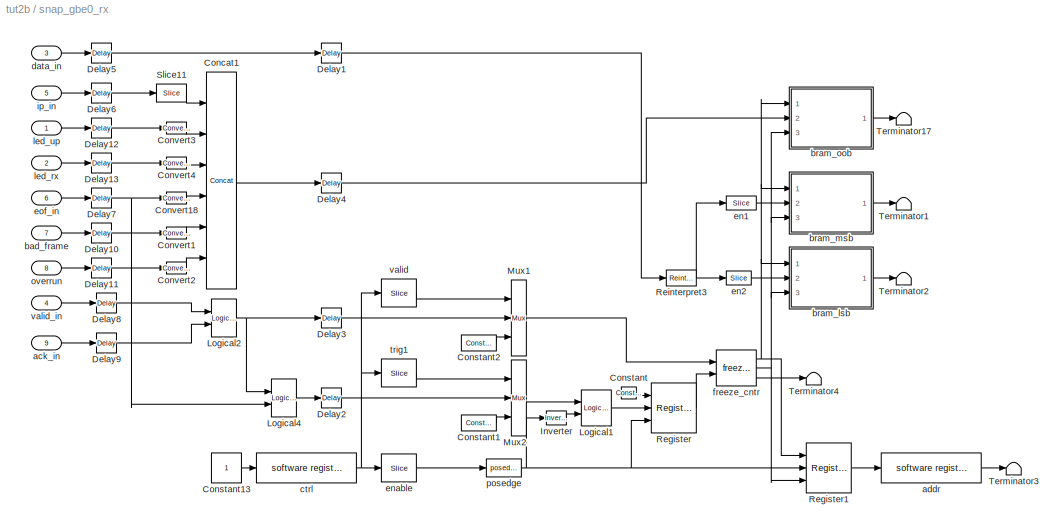
BLOCK [SubSystem] snap_gbe0_rx
  AncestorBlock = casper_library_scopes/snap_10gbe_rx
  FunctionWithSeparateData = off
  MaskEnableString = on
  MaskHideContents = off
  MaskIconFrame = on
  MaskIconOpaque = on
  MaskIconRotate = none
  MaskIconUnits = autoscale
  MaskPortRotate = default
  MaskPromptString = No. of samples(2^?)
  MaskStyleString = edit
  MaskToolTipString = on
  MaskTunableValueString = on
  MaskType = snap_10gbe_rx
  MaskValueString = 11
  MaskVariables = nsamples=@1;
  MaskVisibilityString = on
  MinAlgLoopOccurrences = off
  Opaque = off
  Ports = [9]
  PropExecContextOutsideSubsystem = off
  RTWSystemCode = Auto
  RequestExecContextInheritance = off
  SID = 111
BLOCK [Reference] snap_gbe0_rx/Concat1  REF=xbsIndex_r4/Concat
  Ports = [6, 1]
  SID = 2713
  SourceBlock = xbsIndex_r4/Concat
  SourceType = Xilinx Bus Concatenator Block
  block_type = concat
  block_version = 10.1.3
  dbl_ovrd = off
  has_advanced_control = 0
  infoedit = Concatenates two or more inputs.  Output will be cast to an unsigned value with the binary point at zero.
  num_inputs = 6
  sg_icon_stat = 30,217,6,1,white,blue,0,d0d135ea,right,
  sg_mask_display = fprintf('','COMMENT: begin icon graphics');\npatch([0 1 1 0 ],[0 0 1 1 ],[0.77 0.82 0.91]);\npatch([0.233333 0.0666667 0.3 0.0666667 0.233333 0.5 0.566667 0.633333 0.9 0.666667 0.466667 0.3 0.5 0.3 0.466667 0.666667 0.9 0.633333 0.566667 0.5 0.233333 ],[0.447005 0.470046 0.502304 0.534562 0.557604 0.557604 0.548387 0.557604 0.557604 0.525346 0.552995 0.529954 0.502304 0.474654 0.451613 0.479263 0....<+310ch>
  sggui_pos = 20,20,336,165
BLOCK [Reference] snap_gbe0_rx/Constant  REF=xbsIndex_r4/Constant
  Ports = [0, 1]
  SID = 2714
  SourceBlock = xbsIndex_r4/Constant
  SourceType = Xilinx Constant Block Block
  arith_type = Boolean
  bin_pt = 0
  block_type = constant
  block_version = 10.1.3
  carry = CIN
  const = 1
  dbl_ovrd = off
  dsp48_infoedit = The use of this block for DSP48 instructions is deprecated.  Please use the Opmode block.
  equ = P=C
  explicit_period = on
  has_advanced_control = 0
  inp1 = P
  inp2 = PCIN>>17
  n_bits = 1
  opr = +
  opselect = C
  period = 1
  sg_icon_stat = 15,12,0,1,white,blue,0,1c72b5be,right,
  sggui_pos = -1,-1,-1,-1
BLOCK [Reference] snap_gbe0_rx/Constant1  REF=xbsIndex_r4/Constant
  Ports = [0, 1]
  SID = 2715
  SourceBlock = xbsIndex_r4/Constant
  SourceType = Xilinx Constant Block Block
  arith_type = Boolean
  bin_pt = 0
  block_type = constant
  block_version = 10.1.3
  carry = CIN
  const = 1
  dbl_ovrd = off
  dsp48_infoedit = The use of this block for DSP48 instructions is deprecated.  Please use the Opmode block.
  equ = P=C
  explicit_period = on
  has_advanced_control = 0
  inp1 = P
  inp2 = PCIN>>17
  n_bits = 1
  opr = +
  opselect = C
  period = 1
  sg_icon_stat = 35,16,0,1,white,blue,0,1c72b5be,right,
  sggui_pos = -1,-1,-1,-1
BLOCK [Constant] snap_gbe0_rx/Constant13
  OutDataType = sfix(16)
  OutScaling = 2^0
  SID = 98
BLOCK [Reference] snap_gbe0_rx/Constant2  REF=xbsIndex_r4/Constant
  Ports = [0, 1]
  SID = 2717
  SourceBlock = xbsIndex_r4/Constant
  SourceType = Xilinx Constant Block Block
  arith_type = Boolean
  bin_pt = 0
  block_type = constant
  block_version = 10.1.3
  carry = CIN
  const = 1
  dbl_ovrd = off
  dsp48_infoedit = The use of this block for DSP48 instructions is deprecated.  Please use the Opmode block.
  equ = P=C
  explicit_period = on
  has_advanced_control = 0
  inp1 = P
  inp2 = PCIN>>17
  n_bits = 1
  opr = +
  opselect = C
  period = 1
  sg_icon_stat = 35,16,0,1,white,blue,0,1c72b5be,right,
  sggui_pos = -1,-1,-1,-1
BLOCK [Reference] snap_gbe0_rx/Convert1  REF=xbsIndex_r4/Convert
  Ports = [1, 1]
  SID = 2718
  SourceBlock = xbsIndex_r4/Convert
  SourceType = Xilinx Type Converter Block
  arith_type = Unsigned
  bin_pt = 0
  block_type = convert
  block_version = 10.1.3
  dbl_ovrd = off
  has_advanced_control = 0
  infoedit = Hardware notes: rounding and saturating require hardware resources; truncating and wrapping do not.
  latency = 0
  n_bits = 1
  overflow = Wrap
  pipeline = off
  quantization = Truncate
  sg_icon_stat = 20,12,1,1,white,blue,0,edca21da,right,
  sggui_pos = 20,20,461,334
  xl_area = [0, 0, 0, 0, 0, 0, 0]
  xl_use_area = off
BLOCK [Reference] snap_gbe0_rx/Convert18  REF=xbsIndex_r4/Convert
  Ports = [1, 1]
  SID = 2719
  SourceBlock = xbsIndex_r4/Convert
  SourceType = Xilinx Type Converter Block
  arith_type = Unsigned
  bin_pt = 0
  block_type = convert
  block_version = 10.1.3
  dbl_ovrd = off
  has_advanced_control = 0
  infoedit = Hardware notes: rounding and saturating require hardware resources; truncating and wrapping do not.
  latency = 0
  n_bits = 1
  overflow = Wrap
  pipeline = off
  quantization = Truncate
  sg_icon_stat = 20,12,1,1,white,blue,0,edca21da,right,
  sggui_pos = -1,-1,-1,-1
  xl_area = [0, 0, 0, 0, 0, 0, 0]
  xl_use_area = off
BLOCK [Reference] snap_gbe0_rx/Convert2  REF=xbsIndex_r4/Convert
  Ports = [1, 1]
  SID = 2720
  SourceBlock = xbsIndex_r4/Convert
  SourceType = Xilinx Type Converter Block
  arith_type = Unsigned
  bin_pt = 0
  block_type = convert
  block_version = 10.1.3
  dbl_ovrd = off
  has_advanced_control = 0
  infoedit = Hardware notes: rounding and saturating require hardware resources; truncating and wrapping do not.
  latency = 0
  n_bits = 1
  overflow = Wrap
  pipeline = off
  quantization = Truncate
  sg_icon_stat = 20,12,1,1,white,blue,0,edca21da,right,
  sggui_pos = 20,20,461,334
  xl_area = [0, 0, 0, 0, 0, 0, 0]
  xl_use_area = off
BLOCK [Reference] snap_gbe0_rx/Convert3  REF=xbsIndex_r4/Convert
  Ports = [1, 1]
  SID = 2721
  SourceBlock = xbsIndex_r4/Convert
  SourceType = Xilinx Type Converter Block
  arith_type = Unsigned
  bin_pt = 0
  block_type = convert
  block_version = 10.1.3
  dbl_ovrd = off
  has_advanced_control = 0
  infoedit = Hardware notes: rounding and saturating require hardware resources; truncating and wrapping do not.
  latency = 0
  n_bits = 1
  overflow = Wrap
  pipeline = off
  quantization = Truncate
  sg_icon_stat = 20,12,1,1,white,blue,0,edca21da,right,
  sggui_pos = 20,20,461,334
  xl_area = [0, 0, 0, 0, 0, 0, 0]
  xl_use_area = off
BLOCK [Reference] snap_gbe0_rx/Convert4  REF=xbsIndex_r4/Convert
  Ports = [1, 1]
  SID = 2722
  SourceBlock = xbsIndex_r4/Convert
  SourceType = Xilinx Type Converter Block
  arith_type = Unsigned
  bin_pt = 0
  block_type = convert
  block_version = 10.1.3
  dbl_ovrd = off
  has_advanced_control = 0
  infoedit = Hardware notes: rounding and saturating require hardware resources; truncating and wrapping do not.
  latency = 0
  n_bits = 1
  overflow = Wrap
  pipeline = off
  quantization = Truncate
  sg_icon_stat = 20,12,1,1,white,blue,0,edca21da,right,
  sggui_pos = 20,20,461,334
  xl_area = [0, 0, 0, 0, 0, 0, 0]
  xl_use_area = off
BLOCK [Reference] snap_gbe0_rx/Delay1  REF=xbsIndex_r4/Delay
  Ports = [1, 1]
  SID = 2723
  SourceBlock = xbsIndex_r4/Delay
  SourceType = Xilinx Delay Block
  block_type = delay
  block_version = 10.1.3
  dbl_ovrd = off
  en = off
  has_advanced_control = 0
  infoedit = Hardware notes: A delay line is a chain, each link of which is an SRL16 followed by a flip-flop.
  latency = 2
  reg_retiming = on
  sg_icon_stat = 20,20,1,1,white,blue,0,85ce9542,right,
  sggui_pos = -1,-1,-1,-1
  xl_area = [0, 0, 0, 0, 0, 0, 0]
  xl_use_area = off
BLOCK [Reference] snap_gbe0_rx/Delay10  REF=xbsIndex_r4/Delay
  Ports = [1, 1]
  SID = 2724
  SourceBlock = xbsIndex_r4/Delay
  SourceType = Xilinx Delay Block
  block_type = delay
  block_version = 10.1.3
  dbl_ovrd = off
  en = off
  has_advanced_control = 0
  infoedit = Hardware notes: A delay line is a chain, each link of which is an SRL16 followed by a flip-flop.
  latency = 2
  reg_retiming = on
  sg_icon_stat = 20,20,1,1,white,blue,0,85ce9542,right,
  sggui_pos = -1,-1,-1,-1
  xl_area = [0, 0, 0, 0, 0, 0, 0]
  xl_use_area = off
BLOCK [Reference] snap_gbe0_rx/Delay11  REF=xbsIndex_r4/Delay
  Ports = [1, 1]
  SID = 2725
  SourceBlock = xbsIndex_r4/Delay
  SourceType = Xilinx Delay Block
  block_type = delay
  block_version = 10.1.3
  dbl_ovrd = off
  en = off
  has_advanced_control = 0
  infoedit = Hardware notes: A delay line is a chain, each link of which is an SRL16 followed by a flip-flop.
  latency = 2
  reg_retiming = on
  sg_icon_stat = 20,20,1,1,white,blue,0,85ce9542,right,
  sggui_pos = -1,-1,-1,-1
  xl_area = [0, 0, 0, 0, 0, 0, 0]
  xl_use_area = off
BLOCK [Reference] snap_gbe0_rx/Delay12  REF=xbsIndex_r4/Delay
  Ports = [1, 1]
  SID = 2726
  SourceBlock = xbsIndex_r4/Delay
  SourceType = Xilinx Delay Block
  block_type = delay
  block_version = 10.1.3
  dbl_ovrd = off
  en = off
  has_advanced_control = 0
  infoedit = Hardware notes: A delay line is a chain, each link of which is an SRL16 followed by a flip-flop.
  latency = 2
  reg_retiming = on
  sg_icon_stat = 20,20,1,1,white,blue,0,85ce9542,right,
  sggui_pos = -1,-1,-1,-1
  xl_area = [0, 0, 0, 0, 0, 0, 0]
  xl_use_area = off
BLOCK [Reference] snap_gbe0_rx/Delay13  REF=xbsIndex_r4/Delay
  Ports = [1, 1]
  SID = 2727
  SourceBlock = xbsIndex_r4/Delay
  SourceType = Xilinx Delay Block
  block_type = delay
  block_version = 10.1.3
  dbl_ovrd = off
  en = off
  has_advanced_control = 0
  infoedit = Hardware notes: A delay line is a chain, each link of which is an SRL16 followed by a flip-flop.
  latency = 2
  reg_retiming = on
  sg_icon_stat = 20,20,1,1,white,blue,0,85ce9542,right,
  sggui_pos = -1,-1,-1,-1
  xl_area = [0, 0, 0, 0, 0, 0, 0]
  xl_use_area = off
BLOCK [Reference] snap_gbe0_rx/Delay2  REF=xbsIndex_r4/Delay
  Ports = [1, 1]
  SID = 2728
  SourceBlock = xbsIndex_r4/Delay
  SourceType = Xilinx Delay Block
  block_type = delay
  block_version = 10.1.3
  dbl_ovrd = off
  en = off
  has_advanced_control = 0
  infoedit = Hardware notes: A delay line is a chain, each link of which is an SRL16 followed by a flip-flop.
  latency = 2
  reg_retiming = on
  sg_icon_stat = 20,20,1,1,white,blue,0,85ce9542,right,
  sggui_pos = -1,-1,-1,-1
  xl_area = [0, 0, 0, 0, 0, 0, 0]
  xl_use_area = off
BLOCK [Reference] snap_gbe0_rx/Delay3  REF=xbsIndex_r4/Delay
  Ports = [1, 1]
  SID = 2729
  SourceBlock = xbsIndex_r4/Delay
  SourceType = Xilinx Delay Block
  block_type = delay
  block_version = 10.1.3
  dbl_ovrd = off
  en = off
  has_advanced_control = 0
  infoedit = Hardware notes: A delay line is a chain, each link of which is an SRL16 followed by a flip-flop.
  latency = 2
  reg_retiming = on
  sg_icon_stat = 20,20,1,1,white,blue,0,85ce9542,right,
  sggui_pos = -1,-1,-1,-1
  xl_area = [0, 0, 0, 0, 0, 0, 0]
  xl_use_area = off
BLOCK [Reference] snap_gbe0_rx/Delay4  REF=xbsIndex_r4/Delay
  Ports = [1, 1]
  SID = 2730
  SourceBlock = xbsIndex_r4/Delay
  SourceType = Xilinx Delay Block
  block_type = delay
  block_version = 10.1.3
  dbl_ovrd = off
  en = off
  has_advanced_control = 0
  infoedit = Hardware notes: A delay line is a chain, each link of which is an SRL16 followed by a flip-flop.
  latency = 2
  reg_retiming = on
  sg_icon_stat = 20,20,1,1,white,blue,0,85ce9542,right,
  sggui_pos = -1,-1,-1,-1
  xl_area = [0, 0, 0, 0, 0, 0, 0]
  xl_use_area = off
BLOCK [Reference] snap_gbe0_rx/Delay5  REF=xbsIndex_r4/Delay
  Ports = [1, 1]
  SID = 2731
  SourceBlock = xbsIndex_r4/Delay
  SourceType = Xilinx Delay Block
  block_type = delay
  block_version = 10.1.3
  dbl_ovrd = off
  en = off
  has_advanced_control = 0
  infoedit = Hardware notes: A delay line is a chain, each link of which is an SRL16 followed by a flip-flop.
  latency = 2
  reg_retiming = on
  sg_icon_stat = 20,20,1,1,white,blue,0,85ce9542,right,
  sggui_pos = -1,-1,-1,-1
  xl_area = [0, 0, 0, 0, 0, 0, 0]
  xl_use_area = off
BLOCK [Reference] snap_gbe0_rx/Delay6  REF=xbsIndex_r4/Delay
  Ports = [1, 1]
  SID = 2732
  SourceBlock = xbsIndex_r4/Delay
  SourceType = Xilinx Delay Block
  block_type = delay
  block_version = 10.1.3
  dbl_ovrd = off
  en = off
  has_advanced_control = 0
  infoedit = Hardware notes: A delay line is a chain, each link of which is an SRL16 followed by a flip-flop.
  latency = 2
  reg_retiming = on
  sg_icon_stat = 20,20,1,1,white,blue,0,85ce9542,right,
  sggui_pos = -1,-1,-1,-1
  xl_area = [0, 0, 0, 0, 0, 0, 0]
  xl_use_area = off
BLOCK [Reference] snap_gbe0_rx/Delay7  REF=xbsIndex_r4/Delay
  Ports = [1, 1]
  SID = 2733
  SourceBlock = xbsIndex_r4/Delay
  SourceType = Xilinx Delay Block
  block_type = delay
  block_version = 10.1.3
  dbl_ovrd = off
  en = off
  has_advanced_control = 0
  infoedit = Hardware notes: A delay line is a chain, each link of which is an SRL16 followed by a flip-flop.
  latency = 2
  reg_retiming = on
  sg_icon_stat = 20,20,1,1,white,blue,0,85ce9542,right,
  sggui_pos = -1,-1,-1,-1
  xl_area = [0, 0, 0, 0, 0, 0, 0]
  xl_use_area = off
BLOCK [Reference] snap_gbe0_rx/Delay8  REF=xbsIndex_r4/Delay
  Ports = [1, 1]
  SID = 2734
  SourceBlock = xbsIndex_r4/Delay
  SourceType = Xilinx Delay Block
  block_type = delay
  block_version = 10.1.3
  dbl_ovrd = off
  en = off
  has_advanced_control = 0
  infoedit = Hardware notes: A delay line is a chain, each link of which is an SRL16 followed by a flip-flop.
  latency = 2
  reg_retiming = on
  sg_icon_stat = 20,20,1,1,white,blue,0,85ce9542,right,
  sggui_pos = -1,-1,-1,-1
  xl_area = [0, 0, 0, 0, 0, 0, 0]
  xl_use_area = off
BLOCK [Reference] snap_gbe0_rx/Delay9  REF=xbsIndex_r4/Delay
  Ports = [1, 1]
  SID = 2735
  SourceBlock = xbsIndex_r4/Delay
  SourceType = Xilinx Delay Block
  block_type = delay
  block_version = 10.1.3
  dbl_ovrd = off
  en = off
  has_advanced_control = 0
  infoedit = Hardware notes: A delay line is a chain, each link of which is an SRL16 followed by a flip-flop.
  latency = 2
  reg_retiming = on
  sg_icon_stat = 20,20,1,1,white,blue,0,85ce9542,right,
  sggui_pos = -1,-1,-1,-1
  xl_area = [0, 0, 0, 0, 0, 0, 0]
  xl_use_area = off
BLOCK [Reference] snap_gbe0_rx/Inverter  REF=xbsIndex_r4/Inverter
  Ports = [1, 1]
  SID = 2736
  SourceBlock = xbsIndex_r4/Inverter
  SourceType = Xilinx Inverter Block
  block_type = inv
  block_version = 10.1.3
  dbl_ovrd = off
  en = off
  has_advanced_control = 0
  infoedit = Bitwise logical negation (one's complement) operator.
  latency = 0
  sg_icon_stat = 20,14,1,1,white,blue,0,267846e5,right,
  sggui_pos = -1,-1,-1,-1
  xl_area = [0, 0, 0, 0, 0, 0, 0]
  xl_use_area = off
BLOCK [Reference] snap_gbe0_rx/Logical1  REF=xbsIndex_r4/Logical
  Ports = [2, 1]
  SID = 2737
  SourceBlock = xbsIndex_r4/Logical
  SourceType = Xilinx Logical Block Block
  align_bp = on
  arith_type = Unsigned
  bin_pt = 2
  block_type = logical
  block_version = 10.1.3
  dbl_ovrd = off
  en = off
  has_advanced_control = 0
  inputs = 2
  latency = 0
  logical_function = AND
  n_bits = 8
  precision = Full
  sg_icon_stat = 30,36,2,1,white,blue,0,0a851f85,right,
  sggui_pos = -1,-1,-1,-1
  xl_area = [0, 0, 0, 0, 0, 0, 0]
  xl_use_area = off
BLOCK [Reference] snap_gbe0_rx/Logical2  REF=xbsIndex_r4/Logical
  Ports = [2, 1]
  SID = 2738
  SourceBlock = xbsIndex_r4/Logical
  SourceType = Xilinx Logical Block Block
  align_bp = on
  arith_type = Unsigned
  bin_pt = 2
  block_type = logical
  block_version = 10.1.3
  dbl_ovrd = off
  en = off
  has_advanced_control = 0
  inputs = 2
  latency = 0
  logical_function = AND
  n_bits = 8
  precision = Full
  sg_icon_stat = 25,38,2,1,white,blue,0,0a851f85,right,
  sggui_pos = -1,-1,-1,-1
  xl_area = [0, 0, 0, 0, 0, 0, 0]
  xl_use_area = off
BLOCK [Reference] snap_gbe0_rx/Logical4  REF=xbsIndex_r4/Logical
  Ports = [2, 1]
  SID = 2739
  SourceBlock = xbsIndex_r4/Logical
  SourceType = Xilinx Logical Block Block
  align_bp = on
  arith_type = Unsigned
  bin_pt = 2
  block_type = logical
  block_version = 10.1.3
  dbl_ovrd = off
  en = off
  has_advanced_control = 0
  inputs = 2
  latency = 0
  logical_function = AND
  n_bits = 8
  precision = Full
  sg_icon_stat = 25,38,2,1,white,blue,0,0a851f85,right,
  sggui_pos = -1,-1,-1,-1
  xl_area = [0, 0, 0, 0, 0, 0, 0]
  xl_use_area = off
BLOCK [Reference] snap_gbe0_rx/Mux1  REF=xbsIndex_r4/Mux
  Ports = [3, 1]
  SID = 2740
  SourceBlock = xbsIndex_r4/Mux
  SourceType = Xilinx Bus Multiplexer Block
  arith_type = Signed  (2's comp)
  bin_pt = 2
  block_type = mux
  block_version = 10.1.3
  dbl_ovrd = off
  en = off
  has_advanced_control = 0
  inputs = 2
  latency = 0
  n_bits = 8
  overflow = Wrap
  precision = Full
  quantization = Truncate
  sg_icon_stat = 15,76,3,1,white,blue,3,eb98d690,right,
  sggui_pos = -1,-1,-1,-1
  xl_area = [0, 0, 0, 0, 0, 0, 0]
  xl_use_area = off
BLOCK [Reference] snap_gbe0_rx/Mux2  REF=xbsIndex_r4/Mux
  Ports = [3, 1]
  SID = 2741
  SourceBlock = xbsIndex_r4/Mux
  SourceType = Xilinx Bus Multiplexer Block
  arith_type = Signed  (2's comp)
  bin_pt = 2
  block_type = mux
  block_version = 10.1.3
  dbl_ovrd = off
  en = off
  has_advanced_control = 0
  inputs = 2
  latency = 0
  n_bits = 8
  overflow = Wrap
  precision = Full
  quantization = Truncate
  sg_icon_stat = 15,76,3,1,white,blue,3,eb98d690,right,
  sggui_pos = -1,-1,-1,-1
  xl_area = [0, 0, 0, 0, 0, 0, 0]
  xl_use_area = off
BLOCK [Reference] snap_gbe0_rx/Register  REF=xbsIndex_r4/Register
  Ports = [3, 1]
  SID = 2742
  SourceBlock = xbsIndex_r4/Register
  SourceType = Xilinx Register Block
  block_type = register
  block_version = 10.1.3
  dbl_ovrd = off
  en = on
  has_advanced_control = 0
  init = 0
  rst = on
  sg_icon_stat = 45,50,3,1,white,blue,0,b821322c,right,
  sggui_pos = -1,-1,-1,-1
  xl_area = [0, 0, 0, 0, 0, 0, 0]
  xl_use_area = off
BLOCK [Reference] snap_gbe0_rx/Register1  REF=xbsIndex_r4/Register
  Ports = [3, 1]
  SID = 2743
  SourceBlock = xbsIndex_r4/Register
  SourceType = Xilinx Register Block
  block_type = register
  block_version = 10.1.3
  dbl_ovrd = off
  en = on
  has_advanced_control = 0
  init = 0
  rst = on
  sg_icon_stat = 45,50,3,1,white,blue,0,b821322c,right,
  sggui_pos = -1,-1,-1,-1
  xl_area = [0, 0, 0, 0, 0, 0, 0]
  xl_use_area = off
BLOCK [Reference] snap_gbe0_rx/Reinterpret3  REF=xbsIndex_r4/Reinterpret
  Ports = [1, 1]
  SID = 2744
  SourceBlock = xbsIndex_r4/Reinterpret
  SourceType = Xilinx Type Reinterpreter Block
  arith_type = Unsigned
  bin_pt = 0
  block_type = reinterpret
  block_version = 10.1.3
  force_arith_type = on
  force_bin_pt = on
  has_advanced_control = 0
  sg_icon_stat = 30,16,1,1,white,blue,0,6b04d0b0,right,
  sggui_pos = -1,-1,-1,-1
BLOCK [Reference] snap_gbe0_rx/Slice11  REF=xbsIndex_r4/Slice
  Ports = [1, 1]
  SID = 2745
  SourceBlock = xbsIndex_r4/Slice
  SourceType = Xilinx Bit Slice Extractor Block
  base0 = LSB of Input
  base1 = MSB of Input
  bit0 = 0
  bit1 = 0
  block_type = slice
  block_version = 10.1.3
  boolean_output = off
  dbl_ovrd = off
  has_advanced_control = 0
  mode = Lower Bit Location + Width
  nbits = 32-5
  sg_icon_stat = 30,18,1,1,white,blue,0,1fd851a7,right,
  sggui_pos = 20,20,449,376
BLOCK [Terminator] snap_gbe0_rx/Terminator1
  SID = 128
BLOCK [Terminator] snap_gbe0_rx/Terminator17
  SID = 129
BLOCK [Terminator] snap_gbe0_rx/Terminator2
  SID = 130
BLOCK [Terminator] snap_gbe0_rx/Terminator3
  SID = 131
BLOCK [Terminator] snap_gbe0_rx/Terminator4
  SID = 132
BLOCK [Inport] snap_gbe0_rx/ack_in
  IconDisplay = Port number
  OutDataType = sfix(16)
  OutScaling = 2^0
  Port = 9
  SID = 94
BLOCK [Reference] snap_gbe0_rx/addr  REF=xps_library/software register  (lib defined in mdl_00b5cec29cd0, mdl_02ab6ecaa3d1, +5 more)
  FunctionWithSeparateData = off
  Ports = [1, 1]
  RTWMemSecDataConstants = Inherit from model
  RTWMemSecDataInternal = Inherit from model
  RTWMemSecDataParameters = Inherit from model
  RTWMemSecFuncExecute = Inherit from model
  RTWMemSecFuncInitTerm = Inherit from model
  SID = 2751
  ShowPortLabels = FromPortIcon
  SourceBlock = xps_library/software register
  SystemSampleTime = -1
  Tag = xps:sw_reg
  arith_type = Unsigned
  bin_pt = 0
  bitwidth = 32
  gw_name = tut2b_snap_gbe0_rx_addr_user_data_in
  io_dir = To Processor
  sample_period = 1
BLOCK [Inport] snap_gbe0_rx/bad_frame
  IconDisplay = Port number
  OutDataType = sfix(16)
  OutScaling = 2^0
  Port = 7
  SID = 92
BLOCK [SubSystem] snap_gbe0_rx/bram_lsb
  AncestorBlock = xps_library/Shared BRAM
  FunctionWithSeparateData = off
  MaskCallbackString = |||||
  MaskEnableString = on,on,on,on,on,on
  MaskHideContents = off
  MaskIconFrame = on
  MaskIconOpaque = on
  MaskIconRotate = none
  MaskIconUnits = pixels
  MaskInitialization = shared_bram_mask;
  MaskPortRotate = default
  MaskPromptString = Output Data Type|Address width|Data Width|Data Binary Point|Initial 32-bit values (simulation only)|Sample rate
  MaskSelfModifiable = on
  MaskStyleString = popup(Unsigned|Signed  (2's comp)),edit,popup(8|16|32|64|128),edit,edit,edit
  MaskToolTipString = on,on,on,on,on,on
  MaskTunableValueString = on,on,on,on,on,on
  MaskValueString = Unsigned|nsamples|32|0|0|1
  MaskVariables = arith_type=&1;addr_width=@2;data_width=@3;data_bin_pt=@4;init_vals=@5;sample_rate=@6;
  MaskVisibilityString = on,on,on,on,on,on
  MinAlgLoopOccurrences = off
  Opaque = off
  Ports = [3, 1]
  PropExecContextOutsideSubsystem = off
  RTWSystemCode = Auto
  RequestExecContextInheritance = off
  SID = 2763
  Tag = xps:bram
BLOCK [Inport] snap_gbe0_rx/bram_lsb/addr
  IconDisplay = Port number
  OutDataType = sfix(16)
  OutScaling = 2^0
  SID = 1
BLOCK [SubSystem] snap_gbe0_rx/bram_lsb/calc_add
  FunctionWithSeparateData = off
  MaskHideContents = off
  MinAlgLoopOccurrences = off
  Opaque = off
  Ports = [1, 1]
  PropExecContextOutsideSubsystem = off
  RTWSystemCode = Auto
  RequestExecContextInheritance = off
  SID = 4
BLOCK [Reference] snap_gbe0_rx/bram_lsb/calc_add/add_sub  REF=xbsIndex_r4/AddSub
  Ports = [2, 1]
  SID = 6
  SourceBlock = xbsIndex_r4/AddSub
  SourceType = Xilinx Adder/Subtracter Block
  arith_type = Unsigned
  bin_pt = 0
  block_type = addsub
  block_version = 11.4
  dbl_ovrd = off
  en = off
  has_advanced_control = 0
  hw_selection = Fabric
  latency = 0
  mode = Subtraction
  n_bits = max(1, log2(32/data_width))
  overflow = Wrap
  pipelined = off
  precision = User Defined
  quantization = Truncate
  sg_icon_stat = 35,78,2,1,white,blue,0,32e1f85f,right,
  sggui_pos = 24,152,419,344
  use_behavioral_HDL = on
  use_carryin = off
  use_carryout = off
  xl_area = [0,0,0,0,0,0,0]
  xl_use_area = off
BLOCK [Reference] snap_gbe0_rx/bram_lsb/calc_add/concat  REF=xbsIndex_r4/Concat
  Ports = [2, 1]
  SID = 7
  SourceBlock = xbsIndex_r4/Concat
  SourceType = Xilinx Bus Concatenator Block
  block_type = concat
  block_version = 11.4
  dbl_ovrd = off
  has_advanced_control = 0
  infoedit = Concatenates two or more inputs.  Output will be cast to an unsigned value with the binary point at zero.
  num_inputs = 2
  sg_icon_stat = 20,120,2,1,white,blue,0,97b7e8d2,right,
  sggui_pos = -1,-1,-1,-1
BLOCK [Reference] snap_gbe0_rx/bram_lsb/calc_add/const  REF=xbsIndex_r4/Constant
  Ports = [0, 1]
  SID = 8
  SourceBlock = xbsIndex_r4/Constant
  SourceType = Xilinx Constant Block Block
  arith_type = Unsigned
  bin_pt = 0
  block_type = constant
  block_version = 11.4
  carry = CIN
  const = max(0, 32/data_width-1)
  dbl_ovrd = off
  dsp48_infoedit = The use of this block for DSP48 instructions is deprecated.  Please use the Opmode block.
  equ = P=C
  explicit_period = on
  has_advanced_control = 0
  inp1 = P
  inp2 = PCIN>>17
  n_bits = max(1, log2(32/data_width))
  opr = +
  opselect = C
  period = sample_rate
  sg_icon_stat = 20,18,0,1,white,blue,0,bf4ddd8b,right,
  sggui_pos = 536,513,474,439
BLOCK [Reference] snap_gbe0_rx/bram_lsb/calc_add/convert_addr  REF=xbsIndex_r4/Convert
  Ports = [1, 1]
  SID = 9
  SourceBlock = xbsIndex_r4/Convert
  SourceType = Xilinx Type Converter Block
  arith_type = Unsigned
  bin_pt = 0
  block_type = convert
  block_version = 9.1.01
  dbl_ovrd = off
  has_advanced_control = 0
  infoedit = Hardware notes: rounding and saturating require hardware resources; truncating and wrapping do not.
  latency = 0
  n_bits = addr_width
  overflow = Wrap
  pipeline = off
  quantization = Truncate
  sg_icon_stat = 35,24,1,1,white,blue,0,edca21da,right,
  sggui_pos = 21,51,636,521
  xl_area = [0, 0, 0, 0, 0, 0, 0]
  xl_use_area = off
BLOCK [Inport] snap_gbe0_rx/bram_lsb/calc_add/in
  IconDisplay = Port number
  SID = 5
BLOCK [Reference] snap_gbe0_rx/bram_lsb/calc_add/lsw  REF=xbsIndex_r4/Slice
  Ports = [1, 1]
  SID = 10
  SourceBlock = xbsIndex_r4/Slice
  SourceType = Xilinx Bit Slice Extractor Block
  base0 = LSB of Input
  base1 = MSB of Input
  bit0 = 0
  bit1 = 0
  block_type = slice
  block_version = 11.4
  boolean_output = off
  dbl_ovrd = off
  has_advanced_control = 0
  mode = Lower Bit Location + Width
  nbits = max(1, log2(32/data_width))
  sg_icon_stat = 30,22,1,1,white,blue,0,1fd851a7,right,
  sggui_pos = 1059,231,540,482
BLOCK [Reference] snap_gbe0_rx/bram_lsb/calc_add/manipulate  REF=xbsIndex_r4/Constant
  Ports = [0, 1]
  SID = 11
  SourceBlock = xbsIndex_r4/Constant
  SourceType = Xilinx Constant Block Block
  arith_type = Unsigned
  bin_pt = 0
  block_type = constant
  block_version = 11.4
  carry = CIN
  const = min(1, floor(32/data_width) - 1)
  dbl_ovrd = off
  dsp48_infoedit = The use of this block for DSP48 instructions is deprecated.  Please use the Opmode block.
  equ = P=C
  explicit_period = on
  has_advanced_control = 0
  inp1 = P
  inp2 = PCIN>>17
  n_bits = 1
  opr = +
  opselect = C
  period = sample_rate
  sg_icon_stat = 20,18,0,1,white,blue,0,bf4ddd8b,right,
  sggui_pos = 525,644,474,439
BLOCK [Reference] snap_gbe0_rx/bram_lsb/calc_add/msw  REF=xbsIndex_r4/Slice
  Ports = [1, 1]
  SID = 12
  SourceBlock = xbsIndex_r4/Slice
  SourceType = Xilinx Bit Slice Extractor Block
  base0 = LSB of Input
  base1 = MSB of Input
  bit0 = 0
  bit1 = 0
  block_type = slice
  block_version = 11.4
  boolean_output = off
  dbl_ovrd = off
  has_advanced_control = 0
  mode = Upper Bit Location + Width
  nbits = addr_width - max(1, log2(32/data_width))
  sg_icon_stat = 30,22,1,1,white,blue,0,1fd851a7,right,
  sggui_pos = 956,177,540,482
BLOCK [Reference] snap_gbe0_rx/bram_lsb/calc_add/mux  REF=xbsIndex_r4/Mux
  Ports = [3, 1]
  SID = 13
  SourceBlock = xbsIndex_r4/Mux
  SourceType = Xilinx Bus Multiplexer Block
  arith_type = Unsigned
  bin_pt = 14
  block_type = mux
  block_version = 11.4
  dbl_ovrd = off
  en = off
  has_advanced_control = 0
  inputs = 2
  latency = 0
  n_bits = 16
  overflow = Wrap
  precision = Full
  quantization = Truncate
  sg_icon_stat = 25,198,3,1,white,blue,3,eb98d690,right,
  sggui_pos = -1,-1,-1,-1
  xl_area = [0,0,0,0,0,0,0]
  xl_use_area = off
BLOCK [Outport] snap_gbe0_rx/bram_lsb/calc_add/out
  IconDisplay = Port number
  SID = 14
BLOCK [Reference] snap_gbe0_rx/bram_lsb/convert_addr  REF=xbsIndex_r4/Convert
  Ports = [1, 1]
  SID = 15
  SourceBlock = xbsIndex_r4/Convert
  SourceType = Xilinx Type Converter Block
  arith_type = Unsigned
  bin_pt = 0
  block_type = convert
  block_version = 9.1.01
  dbl_ovrd = off
  has_advanced_control = 0
  infoedit = Hardware notes: rounding and saturating require hardware resources; truncating and wrapping do not.
  latency = 0
  n_bits = addr_width
  overflow = Wrap
  pipeline = off
  quantization = Truncate
  sg_icon_stat = 35,24,1,1,white,blue,0,edca21da,right,
  sggui_pos = 22,78,636,521
  xl_area = [0, 0, 0, 0, 0, 0, 0]
  xl_use_area = off
BLOCK [Reference] snap_gbe0_rx/bram_lsb/convert_din  REF=xbsIndex_r4/Convert
  Ports = [1, 1]
  SID = 16
  SourceBlock = xbsIndex_r4/Convert
  SourceType = Xilinx Type Converter Block
  arith_type = Unsigned
  bin_pt = data_bin_pt
  block_type = convert
  block_version = 9.1.01
  dbl_ovrd = off
  has_advanced_control = 0
  infoedit = Hardware notes: rounding and saturating require hardware resources; truncating and wrapping do not.
  latency = 0
  n_bits = data_width
  overflow = Wrap
  pipeline = off
  quantization = Truncate
  sg_icon_stat = 35,24,1,1,white,blue,0,edca21da,right,
  sggui_pos = 26,186,636,521
  xl_area = [0, 0, 0, 0, 0, 0, 0]
  xl_use_area = off
BLOCK [Reference] snap_gbe0_rx/bram_lsb/convert_din1  REF=xbsIndex_r4/Convert
  Ports = [1, 1]
  SID = 17
  SourceBlock = xbsIndex_r4/Convert
  SourceType = Xilinx Type Converter Block
  arith_type = Unsigned
  bin_pt = data_bin_pt
  block_type = convert
  block_version = 9.1.01
  dbl_ovrd = off
  has_advanced_control = 0
  infoedit = Hardware notes: rounding and saturating require hardware resources; truncating and wrapping do not.
  latency = 0
  n_bits = data_width
  overflow = Wrap
  pipeline = off
  quantization = Truncate
  sg_icon_stat = 35,24,1,1,white,blue,0,edca21da,right,
  sggui_pos = 26,186,636,521
  xl_area = [0, 0, 0, 0, 0, 0, 0]
  xl_use_area = off
BLOCK [Reference] snap_gbe0_rx/bram_lsb/convert_we  REF=xbsIndex_r4/Convert
  Ports = [1, 1]
  SID = 18
  SourceBlock = xbsIndex_r4/Convert
  SourceType = Xilinx Type Converter Block
  arith_type = Unsigned
  bin_pt = 0
  block_type = convert
  block_version = 9.1.01
  dbl_ovrd = off
  has_advanced_control = 0
  infoedit = Hardware notes: rounding and saturating require hardware resources; truncating and wrapping do not.
  latency = 0
  n_bits = 1
  overflow = Wrap
  pipeline = off
  quantization = Truncate
  sg_icon_stat = 35,24,1,1,white,blue,0,edca21da,right,
  sggui_pos = 21,51,636,521
  xl_area = [0, 0, 0, 0, 0, 0, 0]
  xl_use_area = off
BLOCK [Inport] snap_gbe0_rx/bram_lsb/data_in
  IconDisplay = Port number
  OutDataType = sfix(16)
  OutScaling = 2^0
  Port = 2
  SID = 2
BLOCK [Outport] snap_gbe0_rx/bram_lsb/data_out
  IconDisplay = Port number
  OutDataType = sfix(16)
  OutScaling = 2^0
  SID = 49
BLOCK [SubSystem] snap_gbe0_rx/bram_lsb/mem
  FunctionWithSeparateData = off
  MaskHideContents = off
  MinAlgLoopOccurrences = off
  Opaque = off
  Ports = [3, 1]
  PropExecContextOutsideSubsystem = off
  RTWSystemCode = Auto
  RequestExecContextInheritance = off
  SID = 19
BLOCK [Reference] snap_gbe0_rx/bram_lsb/mem/Disregard Subsystem  REF=xbsIndex_r4/Disregard Subsystem
  AttributesFormatString = Disregard Subsystem\\nFor Generation
  Ports = []
  SID = 23
  SourceBlock = xbsIndex_r4/Disregard Subsystem
  SourceType = Xilinx Disregard Subsystem For Generation Block
  Tag = discardX
  block_type = disregard
  block_version = 9.1.01
  has_advanced_control = 0
  sg_icon_stat = 51,50,-1,-1,darkgray,black,0,0,right,
  sggui_pos = -1,-1,-1,-1
BLOCK [Inport] snap_gbe0_rx/bram_lsb/mem/In1
  IconDisplay = Port number
  OutDataType = sfix(16)
  OutScaling = 2^0
  SID = 20
BLOCK [Inport] snap_gbe0_rx/bram_lsb/mem/In2
  IconDisplay = Port number
  OutDataType = sfix(16)
  OutScaling = 2^0
  Port = 2
  SID = 21
BLOCK [Inport] snap_gbe0_rx/bram_lsb/mem/In3
  IconDisplay = Port number
  OutDataType = sfix(16)
  OutScaling = 2^0
  Port = 3
  SID = 22
BLOCK [Outport] snap_gbe0_rx/bram_lsb/mem/Out1
  IconDisplay = Port number
  OutDataType = sfix(16)
  OutScaling = 2^0
  SID = 42
BLOCK [SubSystem] snap_gbe0_rx/bram_lsb/mem/calc_add
  FunctionWithSeparateData = off
  MaskHideContents = off
  MinAlgLoopOccurrences = off
  Opaque = off
  Ports = [1, 1]
  PropExecContextOutsideSubsystem = off
  RTWSystemCode = Auto
  RequestExecContextInheritance = off
  SID = 24
BLOCK [Reference] snap_gbe0_rx/bram_lsb/mem/calc_add/add_sub  REF=xbsIndex_r4/AddSub
  Ports = [2, 1]
  SID = 26
  SourceBlock = xbsIndex_r4/AddSub
  SourceType = Xilinx Adder/Subtracter Block
  arith_type = Unsigned
  bin_pt = 0
  block_type = addsub
  block_version = 11.4
  dbl_ovrd = off
  en = off
  has_advanced_control = 0
  hw_selection = Fabric
  latency = 0
  mode = Subtraction
  n_bits = max(1, log2(32/data_width))
  overflow = Wrap
  pipelined = off
  precision = User Defined
  quantization = Truncate
  sg_icon_stat = 35,78,2,1,white,blue,0,32e1f85f,right,
  sggui_pos = 24,152,419,344
  use_behavioral_HDL = on
  use_carryin = off
  use_carryout = off
  xl_area = [0,0,0,0,0,0,0]
  xl_use_area = off
BLOCK [Reference] snap_gbe0_rx/bram_lsb/mem/calc_add/concat  REF=xbsIndex_r4/Concat
  Ports = [2, 1]
  SID = 27
  SourceBlock = xbsIndex_r4/Concat
  SourceType = Xilinx Bus Concatenator Block
  block_type = concat
  block_version = 11.4
  dbl_ovrd = off
  has_advanced_control = 0
  infoedit = Concatenates two or more inputs.  Output will be cast to an unsigned value with the binary point at zero.
  num_inputs = 2
  sg_icon_stat = 20,120,2,1,white,blue,0,97b7e8d2,right,
  sggui_pos = -1,-1,-1,-1
BLOCK [Reference] snap_gbe0_rx/bram_lsb/mem/calc_add/const  REF=xbsIndex_r4/Constant
  Ports = [0, 1]
  SID = 28
  SourceBlock = xbsIndex_r4/Constant
  SourceType = Xilinx Constant Block Block
  arith_type = Unsigned
  bin_pt = 0
  block_type = constant
  block_version = 11.4
  carry = CIN
  const = max(0, 32/data_width-1)
  dbl_ovrd = off
  dsp48_infoedit = The use of this block for DSP48 instructions is deprecated.  Please use the Opmode block.
  equ = P=C
  explicit_period = on
  has_advanced_control = 0
  inp1 = P
  inp2 = PCIN>>17
  n_bits = max(1, log2(32/data_width))
  opr = +
  opselect = C
  period = sample_rate
  sg_icon_stat = 20,18,0,1,white,blue,0,bf4ddd8b,right,
  sggui_pos = 537,540,474,439
BLOCK [Reference] snap_gbe0_rx/bram_lsb/mem/calc_add/convert_addr  REF=xbsIndex_r4/Convert
  Ports = [1, 1]
  SID = 29
  SourceBlock = xbsIndex_r4/Convert
  SourceType = Xilinx Type Converter Block
  arith_type = Unsigned
  bin_pt = 0
  block_type = convert
  block_version = 9.1.01
  dbl_ovrd = off
  has_advanced_control = 0
  infoedit = Hardware notes: rounding and saturating require hardware resources; truncating and wrapping do not.
  latency = 0
  n_bits = addr_width
  overflow = Wrap
  pipeline = off
  quantization = Truncate
  sg_icon_stat = 35,24,1,1,white,blue,0,edca21da,right,
  sggui_pos = 21,51,636,521
  xl_area = [0, 0, 0, 0, 0, 0, 0]
  xl_use_area = off
BLOCK [Inport] snap_gbe0_rx/bram_lsb/mem/calc_add/in
  IconDisplay = Port number
  SID = 25
BLOCK [Reference] snap_gbe0_rx/bram_lsb/mem/calc_add/lsw  REF=xbsIndex_r4/Slice
  Ports = [1, 1]
  SID = 30
  SourceBlock = xbsIndex_r4/Slice
  SourceType = Xilinx Bit Slice Extractor Block
  base0 = LSB of Input
  base1 = MSB of Input
  bit0 = 0
  bit1 = 0
  block_type = slice
  block_version = 11.4
  boolean_output = off
  dbl_ovrd = off
  has_advanced_control = 0
  mode = Lower Bit Location + Width
  nbits = max(1, log2(32/data_width))
  sg_icon_stat = 30,22,1,1,white,blue,0,1fd851a7,right,
  sggui_pos = 1059,231,540,482
BLOCK [Reference] snap_gbe0_rx/bram_lsb/mem/calc_add/manipulate  REF=xbsIndex_r4/Constant
  Ports = [0, 1]
  SID = 31
  SourceBlock = xbsIndex_r4/Constant
  SourceType = Xilinx Constant Block Block
  arith_type = Unsigned
  bin_pt = 0
  block_type = constant
  block_version = 11.4
  carry = CIN
  const = min(1, floor(32/data_width) - 1)
  dbl_ovrd = off
  dsp48_infoedit = The use of this block for DSP48 instructions is deprecated.  Please use the Opmode block.
  equ = P=C
  explicit_period = on
  has_advanced_control = 0
  inp1 = P
  inp2 = PCIN>>17
  n_bits = 1
  opr = +
  opselect = C
  period = sample_rate
  sg_icon_stat = 20,18,0,1,white,blue,0,bf4ddd8b,right,
  sggui_pos = 524,617,474,439
BLOCK [Reference] snap_gbe0_rx/bram_lsb/mem/calc_add/msw  REF=xbsIndex_r4/Slice
  Ports = [1, 1]
  SID = 32
  SourceBlock = xbsIndex_r4/Slice
  SourceType = Xilinx Bit Slice Extractor Block
  base0 = LSB of Input
  base1 = MSB of Input
  bit0 = 0
  bit1 = 0
  block_type = slice
  block_version = 11.4
  boolean_output = off
  dbl_ovrd = off
  has_advanced_control = 0
  mode = Upper Bit Location + Width
  nbits = addr_width - max(1, log2(32/data_width))
  sg_icon_stat = 30,22,1,1,white,blue,0,1fd851a7,right,
  sggui_pos = 956,177,540,482
BLOCK [Reference] snap_gbe0_rx/bram_lsb/mem/calc_add/mux  REF=xbsIndex_r4/Mux
  Ports = [3, 1]
  SID = 33
  SourceBlock = xbsIndex_r4/Mux
  SourceType = Xilinx Bus Multiplexer Block
  arith_type = Unsigned
  bin_pt = 14
  block_type = mux
  block_version = 11.4
  dbl_ovrd = off
  en = off
  has_advanced_control = 0
  inputs = 2
  latency = 0
  n_bits = 16
  overflow = Wrap
  precision = Full
  quantization = Truncate
  sg_icon_stat = 25,198,3,1,white,blue,3,eb98d690,right,
  sggui_pos = -1,-1,-1,-1
  xl_area = [0,0,0,0,0,0,0]
  xl_use_area = off
BLOCK [Outport] snap_gbe0_rx/bram_lsb/mem/calc_add/out
  IconDisplay = Port number
  SID = 34
BLOCK [Reference] snap_gbe0_rx/bram_lsb/mem/ram  REF=xbsIndex_r4/Single Port RAM
  Ports = [3, 1]
  SID = 35
  SourceBlock = xbsIndex_r4/Single Port RAM
  SourceType = Xilinx Single Port Random Access Memory Block
  block_type = spram
  block_version = 11.4
  dbl_ovrd = off
  depth = 2^addr_width
  distributed_mem = Block RAM
  en = off
  has_advanced_control = 0
  initVector = init_vals
  init_reg = 0
  latency = 1
  optimize = Area
  rst = off
  sg_icon_stat = 60,114,3,1,white,blue,0,4294c61d,right,
  sggui_pos = 22,98,435,384
  use_rpm = on
  write_mode = Read After Write
  xl_area = [0,0,0,0,0,0,0]
  xl_use_area = off
BLOCK [Reference] snap_gbe0_rx/bram_lsb/mem/sim_addr  REF=xbsIndex_r4/Gateway In
  LOCs = {}
  Ports = [1, 1]
  SID = 36
  SourceBlock = xbsIndex_r4/Gateway In
  SourceType = Xilinx Gateway In Block
  arith_type = Unsigned
  bin_pt = 0
  block_type = gatewayin
  block_version = 9.1.01
  dbl_ovrd = off
  has_advanced_control = 0
  hdl_port = on
  locs_specified = off
  n_bits = addr_width
  overflow = Wrap
  period = sample_rate
  quantization = Truncate
  sg_icon_stat = 55,20,1,1,white,yellow,0,00d3666e,right,
  sggui_pos = 24,152,419,481
  sginterface = {'Nallatech'=>{'xdspkit'=>{'non_memory_mapped_port'=>'sim_addr'}},'Xilinx'=>{'jtaghwcosim'=>{'non_memory_mapped_port'=>'sim_addr'},'xdspkit'=>{'non_memory_mapped_port'=>'sim_addr'}}}
  timing_constraint = None
  xl_area = [0, 0, 0, 0, 0, 0, 0]
  xl_use_area = off
BLOCK [Reference] snap_gbe0_rx/bram_lsb/mem/sim_data_in  REF=xbsIndex_r4/Gateway In
  LOCs = {}
  Ports = [1, 1]
  SID = 37
  SourceBlock = xbsIndex_r4/Gateway In
  SourceType = Xilinx Gateway In Block
  arith_type = Unsigned
  bin_pt = data_bin_pt
  block_type = gatewayin
  block_version = 9.1.01
  dbl_ovrd = off
  has_advanced_control = 0
  hdl_port = on
  locs_specified = off
  n_bits = data_width
  overflow = Wrap
  period = sample_rate
  quantization = Truncate
  sg_icon_stat = 55,20,1,1,white,yellow,0,00d3666e,right,
  sggui_pos = 28,260,419,481
  timing_constraint = None
  xl_area = [0, 0, 0, 0, 0, 0, 0]
  xl_use_area = off
BLOCK [Reference] snap_gbe0_rx/bram_lsb/mem/sim_data_out  REF=xbsIndex_r4/Gateway Out
  LOCs = {'B21','B22','A22','B23','B19','C19','A20','A21','A23','B24','A24','A25','E18','D18','C18','B18'}
  Ports = [1, 1]
  SID = 38
  SourceBlock = xbsIndex_r4/Gateway Out
  SourceType = Xilinx Gateway Out Block
  block_type = gatewayout
  block_version = 9.1.01
  has_advanced_control = 0
  hdl_port = on
  locs_specified = off
  sg_icon_stat = 55,22,1,1,white,yellow,0,cc31b7ac,right,
  sggui_pos = 23,125,403,473
  timing_constraint = None
  xl_area = [0, 0, 0, 0, 0, 0, 0]
  xl_use_area = off
BLOCK [SubSystem] snap_gbe0_rx/bram_lsb/mem/sim_munge_in
  AncestorBlock = casper_library_flow_control/munge
  AttributesFormatString = [0]\n32 bits
  FunctionWithSeparateData = off
  MaskCallbackString = ||
  MaskDescription = Splits an input bus into the specified number of divisions and then recombines them in the order specified (most significant division = 0,least = number divisions-1)
  MaskEnableString = on,on,on
  MaskHideContents = off
  MaskIconFrame = on
  MaskIconOpaque = on
  MaskIconRotate = none
  MaskIconUnits = autoscale
  MaskInitialization = munge_init(gcb, ...\n    'divisions', divisions, ...\n    'div_size', div_size, ...\n    'order', order);
  MaskPortRotate = default
  MaskPromptString = Number of divisions|Division size (bits)|Division packing order
  MaskStyleString = edit,edit,edit
  MaskToolTipString = on,on,on
  MaskTunableValueString = on,on,on
  MaskType = munge
  MaskValueString = 1|32|[0]
  MaskVariables = divisions=@1;div_size=@2;order=@3;
  MaskVisibilityString = on,on,on
  MinAlgLoopOccurrences = off
  Opaque = off
  Ports = [1, 1]
  PropExecContextOutsideSubsystem = off
  RTWSystemCode = Auto
  RequestExecContextInheritance = off
  SID = 39
  UserData = DataTag13
  UserDataPersistent = on
BLOCK [Inport] snap_gbe0_rx/bram_lsb/mem/sim_munge_in/din
  IconDisplay = Port number
  SID = 1
BLOCK [Outport] snap_gbe0_rx/bram_lsb/mem/sim_munge_in/dout
  IconDisplay = Port number
  SID = 2
BLOCK [SubSystem] snap_gbe0_rx/bram_lsb/mem/sim_munge_out
  AncestorBlock = casper_library_flow_control/munge
  AttributesFormatString = [0]\n32 bits
  FunctionWithSeparateData = off
  MaskCallbackString = ||
  MaskDescription = Splits an input bus into the specified number of divisions and then recombines them in the order specified (most significant division = 0,least = number divisions-1)
  MaskEnableString = on,on,on
  MaskHideContents = off
  MaskIconFrame = on
  MaskIconOpaque = on
  MaskIconRotate = none
  MaskIconUnits = autoscale
  MaskInitialization = munge_init(gcb, ...\n    'divisions', divisions, ...\n    'div_size', div_size, ...\n    'order', order);
  MaskPortRotate = default
  MaskPromptString = Number of divisions|Division size (bits)|Division packing order
  MaskStyleString = edit,edit,edit
  MaskToolTipString = on,on,on
  MaskTunableValueString = on,on,on
  MaskType = munge
  MaskValueString = 1|32|[0]
  MaskVariables = divisions=@1;div_size=@2;order=@3;
  MaskVisibilityString = on,on,on
  MinAlgLoopOccurrences = off
  Opaque = off
  Ports = [1, 1]
  PropExecContextOutsideSubsystem = off
  RTWSystemCode = Auto
  RequestExecContextInheritance = off
  SID = 40
  UserData = DataTag14
  UserDataPersistent = on
BLOCK [Inport] snap_gbe0_rx/bram_lsb/mem/sim_munge_out/din
  IconDisplay = Port number
  SID = 1
BLOCK [Outport] snap_gbe0_rx/bram_lsb/mem/sim_munge_out/dout
  IconDisplay = Port number
  SID = 2
BLOCK [Reference] snap_gbe0_rx/bram_lsb/mem/sim_we  REF=xbsIndex_r4/Gateway In
  LOCs = {}
  Ports = [1, 1]
  SID = 41
  SourceBlock = xbsIndex_r4/Gateway In
  SourceType = Xilinx Gateway In Block
  arith_type = Boolean
  bin_pt = 0
  block_type = gatewayin
  block_version = 9.1.01
  dbl_ovrd = off
  has_advanced_control = 0
  hdl_port = on
  locs_specified = off
  n_bits = 1
  overflow = Wrap
  period = sample_rate
  quantization = Truncate
  sg_icon_stat = 55,20,1,1,white,yellow,0,00d3666e,right,
  sggui_pos = -1,-1,-1,-1
  sginterface = {'Nallatech'=>{'xdspkit'=>{'non_memory_mapped_port'=>'sim_we'}},'Xilinx'=>{'jtaghwcosim'=>{'non_memory_mapped_port'=>'sim_we'},'xdspkit'=>{'non_memory_mapped_port'=>'sim_we'}}}
  timing_constraint = None
  xl_area = [0, 0, 0, 0, 0, 0, 0]
  xl_use_area = off
BLOCK [SubSystem] snap_gbe0_rx/bram_lsb/munge_in
  AncestorBlock = casper_library_flow_control/munge
  AttributesFormatString = [0]\n32 bits
  FunctionWithSeparateData = off
  MaskCallbackString = ||
  MaskDescription = Splits an input bus into the specified number of divisions and then recombines them in the order specified (most significant division = 0,least = number divisions-1)
  MaskEnableString = on,on,on
  MaskHideContents = off
  MaskIconFrame = on
  MaskIconOpaque = on
  MaskIconRotate = none
  MaskIconUnits = autoscale
  MaskInitialization = munge_init(gcb, ...\n    'divisions', divisions, ...\n    'div_size', div_size, ...\n    'order', order);
  MaskPortRotate = default
  MaskPromptString = Number of divisions|Division size (bits)|Division packing order
  MaskStyleString = edit,edit,edit
  MaskToolTipString = on,on,on
  MaskTunableValueString = on,on,on
  MaskType = munge
  MaskValueString = 1|32|[0]
  MaskVariables = divisions=@1;div_size=@2;order=@3;
  MaskVisibilityString = on,on,on
  MinAlgLoopOccurrences = off
  Opaque = off
  Ports = [1, 1]
  PropExecContextOutsideSubsystem = off
  RTWSystemCode = Auto
  RequestExecContextInheritance = off
  SID = 43
  UserData = DataTag15
  UserDataPersistent = on
BLOCK [Inport] snap_gbe0_rx/bram_lsb/munge_in/din
  IconDisplay = Port number
  SID = 1
BLOCK [Outport] snap_gbe0_rx/bram_lsb/munge_in/dout
  IconDisplay = Port number
  SID = 2
BLOCK [SubSystem] snap_gbe0_rx/bram_lsb/munge_out
  AncestorBlock = casper_library_flow_control/munge
  AttributesFormatString = [0]\n32 bits
  FunctionWithSeparateData = off
  MaskCallbackString = ||
  MaskDescription = Splits an input bus into the specified number of divisions and then recombines them in the order specified (most significant division = 0,least = number divisions-1)
  MaskEnableString = on,on,on
  MaskHideContents = off
  MaskIconFrame = on
  MaskIconOpaque = on
  MaskIconRotate = none
  MaskIconUnits = autoscale
  MaskInitialization = munge_init(gcb, ...\n    'divisions', divisions, ...\n    'div_size', div_size, ...\n    'order', order);
  MaskPortRotate = default
  MaskPromptString = Number of divisions|Division size (bits)|Division packing order
  MaskStyleString = edit,edit,edit
  MaskToolTipString = on,on,on
  MaskTunableValueString = on,on,on
  MaskType = munge
  MaskValueString = 1|32|[0]
  MaskVariables = divisions=@1;div_size=@2;order=@3;
  MaskVisibilityString = on,on,on
  MinAlgLoopOccurrences = off
  Opaque = off
  Ports = [1, 1]
  PropExecContextOutsideSubsystem = off
  RTWSystemCode = Auto
  RequestExecContextInheritance = off
  SID = 44
  UserData = DataTag16
  UserDataPersistent = on
BLOCK [Inport] snap_gbe0_rx/bram_lsb/munge_out/din
  IconDisplay = Port number
  SID = 1
BLOCK [Outport] snap_gbe0_rx/bram_lsb/munge_out/dout
  IconDisplay = Port number
  SID = 2
BLOCK [Reference] snap_gbe0_rx/bram_lsb/tut2b_snap_gbe0_rx_bram_lsb_addr  REF=xbsIndex_r4/Gateway Out
  LOCs = {'A5','B9','A9','C1','A3','G6','E9','A6','A7','A8','B8','B1','B3','D9','B5','B4','B6','C2'}
  Ports = [1, 1]
  SID = 45
  SourceBlock = xbsIndex_r4/Gateway Out
  SourceType = Xilinx Gateway Out Block
  block_type = gatewayout
  block_version = 9.1.01
  has_advanced_control = 0
  hdl_port = on
  locs_specified = off
  sg_icon_stat = 55,22,1,1,white,yellow,0,cc31b7ac,right,
  sggui_pos = 21,71,403,473
  timing_constraint = None
  xl_area = [0, 0, 0, 0, 0, 0, 0]
  xl_use_area = off
BLOCK [Reference] snap_gbe0_rx/bram_lsb/tut2b_snap_gbe0_rx_bram_lsb_data_in  REF=xbsIndex_r4/Gateway Out
  LOCs = {'B21','B22','A22','B23','B19','C19','A20','A21','A23','B24','A24','A25','E18','D18','C18','B18'}
  Ports = [1, 1]
  SID = 46
  SourceBlock = xbsIndex_r4/Gateway Out
  SourceType = Xilinx Gateway Out Block
  block_type = gatewayout
  block_version = 9.1.01
  has_advanced_control = 0
  hdl_port = on
  locs_specified = off
  sg_icon_stat = 55,22,1,1,white,yellow,0,cc31b7ac,right,
  sggui_pos = 23,125,403,473
  timing_constraint = None
  xl_area = [0, 0, 0, 0, 0, 0, 0]
  xl_use_area = off
BLOCK [Reference] snap_gbe0_rx/bram_lsb/tut2b_snap_gbe0_rx_bram_lsb_data_out  REF=xbsIndex_r4/Gateway In
  LOCs = {}
  Ports = [1, 1]
  SID = 47
  SourceBlock = xbsIndex_r4/Gateway In
  SourceType = Xilinx Gateway In Block
  arith_type = Unsigned
  bin_pt = data_bin_pt
  block_type = gatewayin
  block_version = 9.1.01
  dbl_ovrd = off
  has_advanced_control = 0
  hdl_port = on
  locs_specified = off
  n_bits = data_width
  overflow = Wrap
  period = sample_rate
  quantization = Truncate
  sg_icon_stat = 55,20,1,1,white,yellow,0,00d3666e,right,
  sggui_pos = 24,152,419,481
  timing_constraint = None
  xl_area = [0, 0, 0, 0, 0, 0, 0]
  xl_use_area = off
BLOCK [Reference] snap_gbe0_rx/bram_lsb/tut2b_snap_gbe0_rx_bram_lsb_we  REF=xbsIndex_r4/Gateway Out
  LOCs = {'A14'}
  Ports = [1, 1]
  SID = 48
  SourceBlock = xbsIndex_r4/Gateway Out
  SourceType = Xilinx Gateway Out Block
  block_type = gatewayout
  block_version = 9.1.01
  has_advanced_control = 0
  hdl_port = on
  locs_specified = off
  sg_icon_stat = 55,22,1,1,white,yellow,0,cc31b7ac,right,
  sggui_pos = -1,-1,-1,-1
  timing_constraint = None
  xl_area = [0, 0, 0, 0, 0, 0, 0]
  xl_use_area = off
BLOCK [Inport] snap_gbe0_rx/bram_lsb/we
  IconDisplay = Port number
  OutDataType = sfix(16)
  OutScaling = 2^0
  Port = 3
  SID = 3
BLOCK [SubSystem] snap_gbe0_rx/bram_msb
  AncestorBlock = xps_library/Shared BRAM
  FunctionWithSeparateData = off
  MaskCallbackString = |||||
  MaskEnableString = on,on,on,on,on,on
  MaskHideContents = off
  MaskIconFrame = on
  MaskIconOpaque = on
  MaskIconRotate = none
  MaskIconUnits = pixels
  MaskInitialization = shared_bram_mask;
  MaskPortRotate = default
  MaskPromptString = Output Data Type|Address width|Data Width|Data Binary Point|Initial 32-bit values (simulation only)|Sample rate
  MaskSelfModifiable = on
  MaskStyleString = popup(Unsigned|Signed  (2's comp)),edit,popup(8|16|32|64|128),edit,edit,edit
  MaskToolTipString = on,on,on,on,on,on
  MaskTunableValueString = on,on,on,on,on,on
  MaskValueString = Unsigned|nsamples|32|0|0|1
  MaskVariables = arith_type=&1;addr_width=@2;data_width=@3;data_bin_pt=@4;init_vals=@5;sample_rate=@6;
  MaskVisibilityString = on,on,on,on,on,on
  MinAlgLoopOccurrences = off
  Opaque = off
  Ports = [3, 1]
  PropExecContextOutsideSubsystem = off
  RTWSystemCode = Auto
  RequestExecContextInheritance = off
  SID = 2753
  Tag = xps:bram
BLOCK [Inport] snap_gbe0_rx/bram_msb/addr
  IconDisplay = Port number
  OutDataType = sfix(16)
  OutScaling = 2^0
  SID = 1
BLOCK [SubSystem] snap_gbe0_rx/bram_msb/calc_add
  FunctionWithSeparateData = off
  MaskHideContents = off
  MinAlgLoopOccurrences = off
  Opaque = off
  Ports = [1, 1]
  PropExecContextOutsideSubsystem = off
  RTWSystemCode = Auto
  RequestExecContextInheritance = off
  SID = 4
BLOCK [Reference] snap_gbe0_rx/bram_msb/calc_add/add_sub  REF=xbsIndex_r4/AddSub
  Ports = [2, 1]
  SID = 6
  SourceBlock = xbsIndex_r4/AddSub
  SourceType = Xilinx Adder/Subtracter Block
  arith_type = Unsigned
  bin_pt = 0
  block_type = addsub
  block_version = 11.4
  dbl_ovrd = off
  en = off
  has_advanced_control = 0
  hw_selection = Fabric
  latency = 0
  mode = Subtraction
  n_bits = max(1, log2(32/data_width))
  overflow = Wrap
  pipelined = off
  precision = User Defined
  quantization = Truncate
  sg_icon_stat = 35,78,2,1,white,blue,0,32e1f85f,right,
  sggui_pos = 24,152,419,344
  use_behavioral_HDL = on
  use_carryin = off
  use_carryout = off
  xl_area = [0,0,0,0,0,0,0]
  xl_use_area = off
BLOCK [Reference] snap_gbe0_rx/bram_msb/calc_add/concat  REF=xbsIndex_r4/Concat
  Ports = [2, 1]
  SID = 7
  SourceBlock = xbsIndex_r4/Concat
  SourceType = Xilinx Bus Concatenator Block
  block_type = concat
  block_version = 11.4
  dbl_ovrd = off
  has_advanced_control = 0
  infoedit = Concatenates two or more inputs.  Output will be cast to an unsigned value with the binary point at zero.
  num_inputs = 2
  sg_icon_stat = 20,120,2,1,white,blue,0,97b7e8d2,right,
  sggui_pos = -1,-1,-1,-1
BLOCK [Reference] snap_gbe0_rx/bram_msb/calc_add/const  REF=xbsIndex_r4/Constant
  Ports = [0, 1]
  SID = 8
  SourceBlock = xbsIndex_r4/Constant
  SourceType = Xilinx Constant Block Block
  arith_type = Unsigned
  bin_pt = 0
  block_type = constant
  block_version = 11.4
  carry = CIN
  const = max(0, 32/data_width-1)
  dbl_ovrd = off
  dsp48_infoedit = The use of this block for DSP48 instructions is deprecated.  Please use the Opmode block.
  equ = P=C
  explicit_period = on
  has_advanced_control = 0
  inp1 = P
  inp2 = PCIN>>17
  n_bits = max(1, log2(32/data_width))
  opr = +
  opselect = C
  period = sample_rate
  sg_icon_stat = 20,18,0,1,white,blue,0,bf4ddd8b,right,
  sggui_pos = 536,513,474,439
BLOCK [Reference] snap_gbe0_rx/bram_msb/calc_add/convert_addr  REF=xbsIndex_r4/Convert
  Ports = [1, 1]
  SID = 9
  SourceBlock = xbsIndex_r4/Convert
  SourceType = Xilinx Type Converter Block
  arith_type = Unsigned
  bin_pt = 0
  block_type = convert
  block_version = 9.1.01
  dbl_ovrd = off
  has_advanced_control = 0
  infoedit = Hardware notes: rounding and saturating require hardware resources; truncating and wrapping do not.
  latency = 0
  n_bits = addr_width
  overflow = Wrap
  pipeline = off
  quantization = Truncate
  sg_icon_stat = 35,24,1,1,white,blue,0,edca21da,right,
  sggui_pos = 21,51,636,521
  xl_area = [0, 0, 0, 0, 0, 0, 0]
  xl_use_area = off
BLOCK [Inport] snap_gbe0_rx/bram_msb/calc_add/in
  IconDisplay = Port number
  SID = 5
BLOCK [Reference] snap_gbe0_rx/bram_msb/calc_add/lsw  REF=xbsIndex_r4/Slice
  Ports = [1, 1]
  SID = 10
  SourceBlock = xbsIndex_r4/Slice
  SourceType = Xilinx Bit Slice Extractor Block
  base0 = LSB of Input
  base1 = MSB of Input
  bit0 = 0
  bit1 = 0
  block_type = slice
  block_version = 11.4
  boolean_output = off
  dbl_ovrd = off
  has_advanced_control = 0
  mode = Lower Bit Location + Width
  nbits = max(1, log2(32/data_width))
  sg_icon_stat = 30,22,1,1,white,blue,0,1fd851a7,right,
  sggui_pos = 1059,231,540,482
BLOCK [Reference] snap_gbe0_rx/bram_msb/calc_add/manipulate  REF=xbsIndex_r4/Constant
  Ports = [0, 1]
  SID = 11
  SourceBlock = xbsIndex_r4/Constant
  SourceType = Xilinx Constant Block Block
  arith_type = Unsigned
  bin_pt = 0
  block_type = constant
  block_version = 11.4
  carry = CIN
  const = min(1, floor(32/data_width) - 1)
  dbl_ovrd = off
  dsp48_infoedit = The use of this block for DSP48 instructions is deprecated.  Please use the Opmode block.
  equ = P=C
  explicit_period = on
  has_advanced_control = 0
  inp1 = P
  inp2 = PCIN>>17
  n_bits = 1
  opr = +
  opselect = C
  period = sample_rate
  sg_icon_stat = 20,18,0,1,white,blue,0,bf4ddd8b,right,
  sggui_pos = 525,644,474,439
BLOCK [Reference] snap_gbe0_rx/bram_msb/calc_add/msw  REF=xbsIndex_r4/Slice
  Ports = [1, 1]
  SID = 12
  SourceBlock = xbsIndex_r4/Slice
  SourceType = Xilinx Bit Slice Extractor Block
  base0 = LSB of Input
  base1 = MSB of Input
  bit0 = 0
  bit1 = 0
  block_type = slice
  block_version = 11.4
  boolean_output = off
  dbl_ovrd = off
  has_advanced_control = 0
  mode = Upper Bit Location + Width
  nbits = addr_width - max(1, log2(32/data_width))
  sg_icon_stat = 30,22,1,1,white,blue,0,1fd851a7,right,
  sggui_pos = 956,177,540,482
BLOCK [Reference] snap_gbe0_rx/bram_msb/calc_add/mux  REF=xbsIndex_r4/Mux
  Ports = [3, 1]
  SID = 13
  SourceBlock = xbsIndex_r4/Mux
  SourceType = Xilinx Bus Multiplexer Block
  arith_type = Unsigned
  bin_pt = 14
  block_type = mux
  block_version = 11.4
  dbl_ovrd = off
  en = off
  has_advanced_control = 0
  inputs = 2
  latency = 0
  n_bits = 16
  overflow = Wrap
  precision = Full
  quantization = Truncate
  sg_icon_stat = 25,198,3,1,white,blue,3,eb98d690,right,
  sggui_pos = -1,-1,-1,-1
  xl_area = [0,0,0,0,0,0,0]
  xl_use_area = off
BLOCK [Outport] snap_gbe0_rx/bram_msb/calc_add/out
  IconDisplay = Port number
  SID = 14
BLOCK [Reference] snap_gbe0_rx/bram_msb/convert_addr  REF=xbsIndex_r4/Convert
  Ports = [1, 1]
  SID = 15
  SourceBlock = xbsIndex_r4/Convert
  SourceType = Xilinx Type Converter Block
  arith_type = Unsigned
  bin_pt = 0
  block_type = convert
  block_version = 9.1.01
  dbl_ovrd = off
  has_advanced_control = 0
  infoedit = Hardware notes: rounding and saturating require hardware resources; truncating and wrapping do not.
  latency = 0
  n_bits = addr_width
  overflow = Wrap
  pipeline = off
  quantization = Truncate
  sg_icon_stat = 35,24,1,1,white,blue,0,edca21da,right,
  sggui_pos = 22,78,636,521
  xl_area = [0, 0, 0, 0, 0, 0, 0]
  xl_use_area = off
BLOCK [Reference] snap_gbe0_rx/bram_msb/convert_din  REF=xbsIndex_r4/Convert
  Ports = [1, 1]
  SID = 16
  SourceBlock = xbsIndex_r4/Convert
  SourceType = Xilinx Type Converter Block
  arith_type = Unsigned
  bin_pt = data_bin_pt
  block_type = convert
  block_version = 9.1.01
  dbl_ovrd = off
  has_advanced_control = 0
  infoedit = Hardware notes: rounding and saturating require hardware resources; truncating and wrapping do not.
  latency = 0
  n_bits = data_width
  overflow = Wrap
  pipeline = off
  quantization = Truncate
  sg_icon_stat = 35,24,1,1,white,blue,0,edca21da,right,
  sggui_pos = 26,186,636,521
  xl_area = [0, 0, 0, 0, 0, 0, 0]
  xl_use_area = off
BLOCK [Reference] snap_gbe0_rx/bram_msb/convert_din1  REF=xbsIndex_r4/Convert
  Ports = [1, 1]
  SID = 17
  SourceBlock = xbsIndex_r4/Convert
  SourceType = Xilinx Type Converter Block
  arith_type = Unsigned
  bin_pt = data_bin_pt
  block_type = convert
  block_version = 9.1.01
  dbl_ovrd = off
  has_advanced_control = 0
  infoedit = Hardware notes: rounding and saturating require hardware resources; truncating and wrapping do not.
  latency = 0
  n_bits = data_width
  overflow = Wrap
  pipeline = off
  quantization = Truncate
  sg_icon_stat = 35,24,1,1,white,blue,0,edca21da,right,
  sggui_pos = 26,186,636,521
  xl_area = [0, 0, 0, 0, 0, 0, 0]
  xl_use_area = off
BLOCK [Reference] snap_gbe0_rx/bram_msb/convert_we  REF=xbsIndex_r4/Convert
  Ports = [1, 1]
  SID = 18
  SourceBlock = xbsIndex_r4/Convert
  SourceType = Xilinx Type Converter Block
  arith_type = Unsigned
  bin_pt = 0
  block_type = convert
  block_version = 9.1.01
  dbl_ovrd = off
  has_advanced_control = 0
  infoedit = Hardware notes: rounding and saturating require hardware resources; truncating and wrapping do not.
  latency = 0
  n_bits = 1
  overflow = Wrap
  pipeline = off
  quantization = Truncate
  sg_icon_stat = 35,24,1,1,white,blue,0,edca21da,right,
  sggui_pos = 21,51,636,521
  xl_area = [0, 0, 0, 0, 0, 0, 0]
  xl_use_area = off
BLOCK [Inport] snap_gbe0_rx/bram_msb/data_in
  IconDisplay = Port number
  OutDataType = sfix(16)
  OutScaling = 2^0
  Port = 2
  SID = 2
BLOCK [Outport] snap_gbe0_rx/bram_msb/data_out
  IconDisplay = Port number
  OutDataType = sfix(16)
  OutScaling = 2^0
  SID = 49
BLOCK [SubSystem] snap_gbe0_rx/bram_msb/mem
  FunctionWithSeparateData = off
  MaskHideContents = off
  MinAlgLoopOccurrences = off
  Opaque = off
  Ports = [3, 1]
  PropExecContextOutsideSubsystem = off
  RTWSystemCode = Auto
  RequestExecContextInheritance = off
  SID = 19
BLOCK [Reference] snap_gbe0_rx/bram_msb/mem/Disregard Subsystem  REF=xbsIndex_r4/Disregard Subsystem
  AttributesFormatString = Disregard Subsystem\\nFor Generation
  Ports = []
  SID = 23
  SourceBlock = xbsIndex_r4/Disregard Subsystem
  SourceType = Xilinx Disregard Subsystem For Generation Block
  Tag = discardX
  block_type = disregard
  block_version = 9.1.01
  has_advanced_control = 0
  sg_icon_stat = 51,50,-1,-1,darkgray,black,0,0,right,
  sggui_pos = -1,-1,-1,-1
BLOCK [Inport] snap_gbe0_rx/bram_msb/mem/In1
  IconDisplay = Port number
  OutDataType = sfix(16)
  OutScaling = 2^0
  SID = 20
BLOCK [Inport] snap_gbe0_rx/bram_msb/mem/In2
  IconDisplay = Port number
  OutDataType = sfix(16)
  OutScaling = 2^0
  Port = 2
  SID = 21
BLOCK [Inport] snap_gbe0_rx/bram_msb/mem/In3
  IconDisplay = Port number
  OutDataType = sfix(16)
  OutScaling = 2^0
  Port = 3
  SID = 22
BLOCK [Outport] snap_gbe0_rx/bram_msb/mem/Out1
  IconDisplay = Port number
  OutDataType = sfix(16)
  OutScaling = 2^0
  SID = 42
BLOCK [SubSystem] snap_gbe0_rx/bram_msb/mem/calc_add
  FunctionWithSeparateData = off
  MaskHideContents = off
  MinAlgLoopOccurrences = off
  Opaque = off
  Ports = [1, 1]
  PropExecContextOutsideSubsystem = off
  RTWSystemCode = Auto
  RequestExecContextInheritance = off
  SID = 24
BLOCK [Reference] snap_gbe0_rx/bram_msb/mem/calc_add/add_sub  REF=xbsIndex_r4/AddSub
  Ports = [2, 1]
  SID = 26
  SourceBlock = xbsIndex_r4/AddSub
  SourceType = Xilinx Adder/Subtracter Block
  arith_type = Unsigned
  bin_pt = 0
  block_type = addsub
  block_version = 11.4
  dbl_ovrd = off
  en = off
  has_advanced_control = 0
  hw_selection = Fabric
  latency = 0
  mode = Subtraction
  n_bits = max(1, log2(32/data_width))
  overflow = Wrap
  pipelined = off
  precision = User Defined
  quantization = Truncate
  sg_icon_stat = 35,78,2,1,white,blue,0,32e1f85f,right,
  sggui_pos = 24,152,419,344
  use_behavioral_HDL = on
  use_carryin = off
  use_carryout = off
  xl_area = [0,0,0,0,0,0,0]
  xl_use_area = off
BLOCK [Reference] snap_gbe0_rx/bram_msb/mem/calc_add/concat  REF=xbsIndex_r4/Concat
  Ports = [2, 1]
  SID = 27
  SourceBlock = xbsIndex_r4/Concat
  SourceType = Xilinx Bus Concatenator Block
  block_type = concat
  block_version = 11.4
  dbl_ovrd = off
  has_advanced_control = 0
  infoedit = Concatenates two or more inputs.  Output will be cast to an unsigned value with the binary point at zero.
  num_inputs = 2
  sg_icon_stat = 20,120,2,1,white,blue,0,97b7e8d2,right,
  sggui_pos = -1,-1,-1,-1
BLOCK [Reference] snap_gbe0_rx/bram_msb/mem/calc_add/const  REF=xbsIndex_r4/Constant
  Ports = [0, 1]
  SID = 28
  SourceBlock = xbsIndex_r4/Constant
  SourceType = Xilinx Constant Block Block
  arith_type = Unsigned
  bin_pt = 0
  block_type = constant
  block_version = 11.4
  carry = CIN
  const = max(0, 32/data_width-1)
  dbl_ovrd = off
  dsp48_infoedit = The use of this block for DSP48 instructions is deprecated.  Please use the Opmode block.
  equ = P=C
  explicit_period = on
  has_advanced_control = 0
  inp1 = P
  inp2 = PCIN>>17
  n_bits = max(1, log2(32/data_width))
  opr = +
  opselect = C
  period = sample_rate
  sg_icon_stat = 20,18,0,1,white,blue,0,bf4ddd8b,right,
  sggui_pos = 537,540,474,439
BLOCK [Reference] snap_gbe0_rx/bram_msb/mem/calc_add/convert_addr  REF=xbsIndex_r4/Convert
  Ports = [1, 1]
  SID = 29
  SourceBlock = xbsIndex_r4/Convert
  SourceType = Xilinx Type Converter Block
  arith_type = Unsigned
  bin_pt = 0
  block_type = convert
  block_version = 9.1.01
  dbl_ovrd = off
  has_advanced_control = 0
  infoedit = Hardware notes: rounding and saturating require hardware resources; truncating and wrapping do not.
  latency = 0
  n_bits = addr_width
  overflow = Wrap
  pipeline = off
  quantization = Truncate
  sg_icon_stat = 35,24,1,1,white,blue,0,edca21da,right,
  sggui_pos = 21,51,636,521
  xl_area = [0, 0, 0, 0, 0, 0, 0]
  xl_use_area = off
BLOCK [Inport] snap_gbe0_rx/bram_msb/mem/calc_add/in
  IconDisplay = Port number
  SID = 25
BLOCK [Reference] snap_gbe0_rx/bram_msb/mem/calc_add/lsw  REF=xbsIndex_r4/Slice
  Ports = [1, 1]
  SID = 30
  SourceBlock = xbsIndex_r4/Slice
  SourceType = Xilinx Bit Slice Extractor Block
  base0 = LSB of Input
  base1 = MSB of Input
  bit0 = 0
  bit1 = 0
  block_type = slice
  block_version = 11.4
  boolean_output = off
  dbl_ovrd = off
  has_advanced_control = 0
  mode = Lower Bit Location + Width
  nbits = max(1, log2(32/data_width))
  sg_icon_stat = 30,22,1,1,white,blue,0,1fd851a7,right,
  sggui_pos = 1059,231,540,482
BLOCK [Reference] snap_gbe0_rx/bram_msb/mem/calc_add/manipulate  REF=xbsIndex_r4/Constant
  Ports = [0, 1]
  SID = 31
  SourceBlock = xbsIndex_r4/Constant
  SourceType = Xilinx Constant Block Block
  arith_type = Unsigned
  bin_pt = 0
  block_type = constant
  block_version = 11.4
  carry = CIN
  const = min(1, floor(32/data_width) - 1)
  dbl_ovrd = off
  dsp48_infoedit = The use of this block for DSP48 instructions is deprecated.  Please use the Opmode block.
  equ = P=C
  explicit_period = on
  has_advanced_control = 0
  inp1 = P
  inp2 = PCIN>>17
  n_bits = 1
  opr = +
  opselect = C
  period = sample_rate
  sg_icon_stat = 20,18,0,1,white,blue,0,bf4ddd8b,right,
  sggui_pos = 524,617,474,439
BLOCK [Reference] snap_gbe0_rx/bram_msb/mem/calc_add/msw  REF=xbsIndex_r4/Slice
  Ports = [1, 1]
  SID = 32
  SourceBlock = xbsIndex_r4/Slice
  SourceType = Xilinx Bit Slice Extractor Block
  base0 = LSB of Input
  base1 = MSB of Input
  bit0 = 0
  bit1 = 0
  block_type = slice
  block_version = 11.4
  boolean_output = off
  dbl_ovrd = off
  has_advanced_control = 0
  mode = Upper Bit Location + Width
  nbits = addr_width - max(1, log2(32/data_width))
  sg_icon_stat = 30,22,1,1,white,blue,0,1fd851a7,right,
  sggui_pos = 956,177,540,482
BLOCK [Reference] snap_gbe0_rx/bram_msb/mem/calc_add/mux  REF=xbsIndex_r4/Mux
  Ports = [3, 1]
  SID = 33
  SourceBlock = xbsIndex_r4/Mux
  SourceType = Xilinx Bus Multiplexer Block
  arith_type = Unsigned
  bin_pt = 14
  block_type = mux
  block_version = 11.4
  dbl_ovrd = off
  en = off
  has_advanced_control = 0
  inputs = 2
  latency = 0
  n_bits = 16
  overflow = Wrap
  precision = Full
  quantization = Truncate
  sg_icon_stat = 25,198,3,1,white,blue,3,eb98d690,right,
  sggui_pos = -1,-1,-1,-1
  xl_area = [0,0,0,0,0,0,0]
  xl_use_area = off
BLOCK [Outport] snap_gbe0_rx/bram_msb/mem/calc_add/out
  IconDisplay = Port number
  SID = 34
BLOCK [Reference] snap_gbe0_rx/bram_msb/mem/ram  REF=xbsIndex_r4/Single Port RAM
  Ports = [3, 1]
  SID = 35
  SourceBlock = xbsIndex_r4/Single Port RAM
  SourceType = Xilinx Single Port Random Access Memory Block
  block_type = spram
  block_version = 11.4
  dbl_ovrd = off
  depth = 2^addr_width
  distributed_mem = Block RAM
  en = off
  has_advanced_control = 0
  initVector = init_vals
  init_reg = 0
  latency = 1
  optimize = Area
  rst = off
  sg_icon_stat = 60,114,3,1,white,blue,0,4294c61d,right,
  sggui_pos = 22,98,435,384
  use_rpm = on
  write_mode = Read After Write
  xl_area = [0,0,0,0,0,0,0]
  xl_use_area = off
BLOCK [Reference] snap_gbe0_rx/bram_msb/mem/sim_addr  REF=xbsIndex_r4/Gateway In
  LOCs = {}
  Ports = [1, 1]
  SID = 36
  SourceBlock = xbsIndex_r4/Gateway In
  SourceType = Xilinx Gateway In Block
  arith_type = Unsigned
  bin_pt = 0
  block_type = gatewayin
  block_version = 9.1.01
  dbl_ovrd = off
  has_advanced_control = 0
  hdl_port = on
  locs_specified = off
  n_bits = addr_width
  overflow = Wrap
  period = sample_rate
  quantization = Truncate
  sg_icon_stat = 55,20,1,1,white,yellow,0,00d3666e,right,
  sggui_pos = 24,152,419,481
  sginterface = {'Nallatech'=>{'xdspkit'=>{'non_memory_mapped_port'=>'sim_addr'}},'Xilinx'=>{'jtaghwcosim'=>{'non_memory_mapped_port'=>'sim_addr'},'xdspkit'=>{'non_memory_mapped_port'=>'sim_addr'}}}
  timing_constraint = None
  xl_area = [0, 0, 0, 0, 0, 0, 0]
  xl_use_area = off
BLOCK [Reference] snap_gbe0_rx/bram_msb/mem/sim_data_in  REF=xbsIndex_r4/Gateway In
  LOCs = {}
  Ports = [1, 1]
  SID = 37
  SourceBlock = xbsIndex_r4/Gateway In
  SourceType = Xilinx Gateway In Block
  arith_type = Unsigned
  bin_pt = data_bin_pt
  block_type = gatewayin
  block_version = 9.1.01
  dbl_ovrd = off
  has_advanced_control = 0
  hdl_port = on
  locs_specified = off
  n_bits = data_width
  overflow = Wrap
  period = sample_rate
  quantization = Truncate
  sg_icon_stat = 55,20,1,1,white,yellow,0,00d3666e,right,
  sggui_pos = 28,260,419,481
  timing_constraint = None
  xl_area = [0, 0, 0, 0, 0, 0, 0]
  xl_use_area = off
BLOCK [Reference] snap_gbe0_rx/bram_msb/mem/sim_data_out  REF=xbsIndex_r4/Gateway Out
  LOCs = {'B21','B22','A22','B23','B19','C19','A20','A21','A23','B24','A24','A25','E18','D18','C18','B18'}
  Ports = [1, 1]
  SID = 38
  SourceBlock = xbsIndex_r4/Gateway Out
  SourceType = Xilinx Gateway Out Block
  block_type = gatewayout
  block_version = 9.1.01
  has_advanced_control = 0
  hdl_port = on
  locs_specified = off
  sg_icon_stat = 55,22,1,1,white,yellow,0,cc31b7ac,right,
  sggui_pos = 23,125,403,473
  timing_constraint = None
  xl_area = [0, 0, 0, 0, 0, 0, 0]
  xl_use_area = off
BLOCK [SubSystem] snap_gbe0_rx/bram_msb/mem/sim_munge_in
  AncestorBlock = casper_library_flow_control/munge
  AttributesFormatString = [0]\n32 bits
  FunctionWithSeparateData = off
  MaskCallbackString = ||
  MaskDescription = Splits an input bus into the specified number of divisions and then recombines them in the order specified (most significant division = 0,least = number divisions-1)
  MaskEnableString = on,on,on
  MaskHideContents = off
  MaskIconFrame = on
  MaskIconOpaque = on
  MaskIconRotate = none
  MaskIconUnits = autoscale
  MaskInitialization = munge_init(gcb, ...\n    'divisions', divisions, ...\n    'div_size', div_size, ...\n    'order', order);
  MaskPortRotate = default
  MaskPromptString = Number of divisions|Division size (bits)|Division packing order
  MaskStyleString = edit,edit,edit
  MaskToolTipString = on,on,on
  MaskTunableValueString = on,on,on
  MaskType = munge
  MaskValueString = 1|32|[0]
  MaskVariables = divisions=@1;div_size=@2;order=@3;
  MaskVisibilityString = on,on,on
  MinAlgLoopOccurrences = off
  Opaque = off
  Ports = [1, 1]
  PropExecContextOutsideSubsystem = off
  RTWSystemCode = Auto
  RequestExecContextInheritance = off
  SID = 39
  UserData = DataTag17
  UserDataPersistent = on
BLOCK [Inport] snap_gbe0_rx/bram_msb/mem/sim_munge_in/din
  IconDisplay = Port number
  SID = 1
BLOCK [Outport] snap_gbe0_rx/bram_msb/mem/sim_munge_in/dout
  IconDisplay = Port number
  SID = 2
BLOCK [SubSystem] snap_gbe0_rx/bram_msb/mem/sim_munge_out
  AncestorBlock = casper_library_flow_control/munge
  AttributesFormatString = [0]\n32 bits
  FunctionWithSeparateData = off
  MaskCallbackString = ||
  MaskDescription = Splits an input bus into the specified number of divisions and then recombines them in the order specified (most significant division = 0,least = number divisions-1)
  MaskEnableString = on,on,on
  MaskHideContents = off
  MaskIconFrame = on
  MaskIconOpaque = on
  MaskIconRotate = none
  MaskIconUnits = autoscale
  MaskInitialization = munge_init(gcb, ...\n    'divisions', divisions, ...\n    'div_size', div_size, ...\n    'order', order);
  MaskPortRotate = default
  MaskPromptString = Number of divisions|Division size (bits)|Division packing order
  MaskStyleString = edit,edit,edit
  MaskToolTipString = on,on,on
  MaskTunableValueString = on,on,on
  MaskType = munge
  MaskValueString = 1|32|[0]
  MaskVariables = divisions=@1;div_size=@2;order=@3;
  MaskVisibilityString = on,on,on
  MinAlgLoopOccurrences = off
  Opaque = off
  Ports = [1, 1]
  PropExecContextOutsideSubsystem = off
  RTWSystemCode = Auto
  RequestExecContextInheritance = off
  SID = 40
  UserData = DataTag18
  UserDataPersistent = on
BLOCK [Inport] snap_gbe0_rx/bram_msb/mem/sim_munge_out/din
  IconDisplay = Port number
  SID = 1
BLOCK [Outport] snap_gbe0_rx/bram_msb/mem/sim_munge_out/dout
  IconDisplay = Port number
  SID = 2
BLOCK [Reference] snap_gbe0_rx/bram_msb/mem/sim_we  REF=xbsIndex_r4/Gateway In
  LOCs = {}
  Ports = [1, 1]
  SID = 41
  SourceBlock = xbsIndex_r4/Gateway In
  SourceType = Xilinx Gateway In Block
  arith_type = Boolean
  bin_pt = 0
  block_type = gatewayin
  block_version = 9.1.01
  dbl_ovrd = off
  has_advanced_control = 0
  hdl_port = on
  locs_specified = off
  n_bits = 1
  overflow = Wrap
  period = sample_rate
  quantization = Truncate
  sg_icon_stat = 55,20,1,1,white,yellow,0,00d3666e,right,
  sggui_pos = -1,-1,-1,-1
  sginterface = {'Nallatech'=>{'xdspkit'=>{'non_memory_mapped_port'=>'sim_we'}},'Xilinx'=>{'jtaghwcosim'=>{'non_memory_mapped_port'=>'sim_we'},'xdspkit'=>{'non_memory_mapped_port'=>'sim_we'}}}
  timing_constraint = None
  xl_area = [0, 0, 0, 0, 0, 0, 0]
  xl_use_area = off
BLOCK [SubSystem] snap_gbe0_rx/bram_msb/munge_in
  AncestorBlock = casper_library_flow_control/munge
  AttributesFormatString = [0]\n32 bits
  FunctionWithSeparateData = off
  MaskCallbackString = ||
  MaskDescription = Splits an input bus into the specified number of divisions and then recombines them in the order specified (most significant division = 0,least = number divisions-1)
  MaskEnableString = on,on,on
  MaskHideContents = off
  MaskIconFrame = on
  MaskIconOpaque = on
  MaskIconRotate = none
  MaskIconUnits = autoscale
  MaskInitialization = munge_init(gcb, ...\n    'divisions', divisions, ...\n    'div_size', div_size, ...\n    'order', order);
  MaskPortRotate = default
  MaskPromptString = Number of divisions|Division size (bits)|Division packing order
  MaskStyleString = edit,edit,edit
  MaskToolTipString = on,on,on
  MaskTunableValueString = on,on,on
  MaskType = munge
  MaskValueString = 1|32|[0]
  MaskVariables = divisions=@1;div_size=@2;order=@3;
  MaskVisibilityString = on,on,on
  MinAlgLoopOccurrences = off
  Opaque = off
  Ports = [1, 1]
  PropExecContextOutsideSubsystem = off
  RTWSystemCode = Auto
  RequestExecContextInheritance = off
  SID = 43
  UserData = DataTag19
  UserDataPersistent = on
BLOCK [Inport] snap_gbe0_rx/bram_msb/munge_in/din
  IconDisplay = Port number
  SID = 1
BLOCK [Outport] snap_gbe0_rx/bram_msb/munge_in/dout
  IconDisplay = Port number
  SID = 2
BLOCK [SubSystem] snap_gbe0_rx/bram_msb/munge_out
  AncestorBlock = casper_library_flow_control/munge
  AttributesFormatString = [0]\n32 bits
  FunctionWithSeparateData = off
  MaskCallbackString = ||
  MaskDescription = Splits an input bus into the specified number of divisions and then recombines them in the order specified (most significant division = 0,least = number divisions-1)
  MaskEnableString = on,on,on
  MaskHideContents = off
  MaskIconFrame = on
  MaskIconOpaque = on
  MaskIconRotate = none
  MaskIconUnits = autoscale
  MaskInitialization = munge_init(gcb, ...\n    'divisions', divisions, ...\n    'div_size', div_size, ...\n    'order', order);
  MaskPortRotate = default
  MaskPromptString = Number of divisions|Division size (bits)|Division packing order
  MaskStyleString = edit,edit,edit
  MaskToolTipString = on,on,on
  MaskTunableValueString = on,on,on
  MaskType = munge
  MaskValueString = 1|32|[0]
  MaskVariables = divisions=@1;div_size=@2;order=@3;
  MaskVisibilityString = on,on,on
  MinAlgLoopOccurrences = off
  Opaque = off
  Ports = [1, 1]
  PropExecContextOutsideSubsystem = off
  RTWSystemCode = Auto
  RequestExecContextInheritance = off
  SID = 44
  UserData = DataTag20
  UserDataPersistent = on
BLOCK [Inport] snap_gbe0_rx/bram_msb/munge_out/din
  IconDisplay = Port number
  SID = 1
BLOCK [Outport] snap_gbe0_rx/bram_msb/munge_out/dout
  IconDisplay = Port number
  SID = 2
BLOCK [Reference] snap_gbe0_rx/bram_msb/tut2b_snap_gbe0_rx_bram_msb_addr  REF=xbsIndex_r4/Gateway Out
  LOCs = {'A5','B9','A9','C1','A3','G6','E9','A6','A7','A8','B8','B1','B3','D9','B5','B4','B6','C2'}
  Ports = [1, 1]
  SID = 45
  SourceBlock = xbsIndex_r4/Gateway Out
  SourceType = Xilinx Gateway Out Block
  block_type = gatewayout
  block_version = 9.1.01
  has_advanced_control = 0
  hdl_port = on
  locs_specified = off
  sg_icon_stat = 55,22,1,1,white,yellow,0,cc31b7ac,right,
  sggui_pos = 21,71,403,473
  timing_constraint = None
  xl_area = [0, 0, 0, 0, 0, 0, 0]
  xl_use_area = off
BLOCK [Reference] snap_gbe0_rx/bram_msb/tut2b_snap_gbe0_rx_bram_msb_data_in  REF=xbsIndex_r4/Gateway Out
  LOCs = {'B21','B22','A22','B23','B19','C19','A20','A21','A23','B24','A24','A25','E18','D18','C18','B18'}
  Ports = [1, 1]
  SID = 46
  SourceBlock = xbsIndex_r4/Gateway Out
  SourceType = Xilinx Gateway Out Block
  block_type = gatewayout
  block_version = 9.1.01
  has_advanced_control = 0
  hdl_port = on
  locs_specified = off
  sg_icon_stat = 55,22,1,1,white,yellow,0,cc31b7ac,right,
  sggui_pos = 23,125,403,473
  timing_constraint = None
  xl_area = [0, 0, 0, 0, 0, 0, 0]
  xl_use_area = off
BLOCK [Reference] snap_gbe0_rx/bram_msb/tut2b_snap_gbe0_rx_bram_msb_data_out  REF=xbsIndex_r4/Gateway In
  LOCs = {}
  Ports = [1, 1]
  SID = 47
  SourceBlock = xbsIndex_r4/Gateway In
  SourceType = Xilinx Gateway In Block
  arith_type = Unsigned
  bin_pt = data_bin_pt
  block_type = gatewayin
  block_version = 9.1.01
  dbl_ovrd = off
  has_advanced_control = 0
  hdl_port = on
  locs_specified = off
  n_bits = data_width
  overflow = Wrap
  period = sample_rate
  quantization = Truncate
  sg_icon_stat = 55,20,1,1,white,yellow,0,00d3666e,right,
  sggui_pos = 24,152,419,481
  timing_constraint = None
  xl_area = [0, 0, 0, 0, 0, 0, 0]
  xl_use_area = off
BLOCK [Reference] snap_gbe0_rx/bram_msb/tut2b_snap_gbe0_rx_bram_msb_we  REF=xbsIndex_r4/Gateway Out
  LOCs = {'A14'}
  Ports = [1, 1]
  SID = 48
  SourceBlock = xbsIndex_r4/Gateway Out
  SourceType = Xilinx Gateway Out Block
  block_type = gatewayout
  block_version = 9.1.01
  has_advanced_control = 0
  hdl_port = on
  locs_specified = off
  sg_icon_stat = 55,22,1,1,white,yellow,0,cc31b7ac,right,
  sggui_pos = -1,-1,-1,-1
  timing_constraint = None
  xl_area = [0, 0, 0, 0, 0, 0, 0]
  xl_use_area = off
BLOCK [Inport] snap_gbe0_rx/bram_msb/we
  IconDisplay = Port number
  OutDataType = sfix(16)
  OutScaling = 2^0
  Port = 3
  SID = 3
BLOCK [SubSystem] snap_gbe0_rx/bram_oob
  AncestorBlock = xps_library/Shared BRAM
  FunctionWithSeparateData = off
  MaskCallbackString = |||||
  MaskEnableString = on,on,on,on,on,on
  MaskHideContents = off
  MaskIconFrame = on
  MaskIconOpaque = on
  MaskIconRotate = none
  MaskIconUnits = pixels
  MaskInitialization = shared_bram_mask;
  MaskPortRotate = default
  MaskPromptString = Output Data Type|Address width|Data Width|Data Binary Point|Initial 32-bit values (simulation only)|Sample rate
  MaskSelfModifiable = on
  MaskStyleString = popup(Unsigned|Signed  (2's comp)),edit,popup(8|16|32|64|128),edit,edit,edit
  MaskToolTipString = on,on,on,on,on,on
  MaskTunableValueString = on,on,on,on,on,on
  MaskValueString = Unsigned|nsamples|32|0|0|1
  MaskVariables = arith_type=&1;addr_width=@2;data_width=@3;data_bin_pt=@4;init_vals=@5;sample_rate=@6;
  MaskVisibilityString = on,on,on,on,on,on
  MinAlgLoopOccurrences = off
  Opaque = off
  Ports = [3, 1]
  PropExecContextOutsideSubsystem = off
  RTWSystemCode = Auto
  RequestExecContextInheritance = off
  SID = 2754
  Tag = xps:bram
BLOCK [Inport] snap_gbe0_rx/bram_oob/addr
  IconDisplay = Port number
  OutDataType = sfix(16)
  OutScaling = 2^0
  SID = 1
BLOCK [SubSystem] snap_gbe0_rx/bram_oob/calc_add
  FunctionWithSeparateData = off
  MaskHideContents = off
  MinAlgLoopOccurrences = off
  Opaque = off
  Ports = [1, 1]
  PropExecContextOutsideSubsystem = off
  RTWSystemCode = Auto
  RequestExecContextInheritance = off
  SID = 4
BLOCK [Reference] snap_gbe0_rx/bram_oob/calc_add/add_sub  REF=xbsIndex_r4/AddSub
  Ports = [2, 1]
  SID = 6
  SourceBlock = xbsIndex_r4/AddSub
  SourceType = Xilinx Adder/Subtracter Block
  arith_type = Unsigned
  bin_pt = 0
  block_type = addsub
  block_version = 11.4
  dbl_ovrd = off
  en = off
  has_advanced_control = 0
  hw_selection = Fabric
  latency = 0
  mode = Subtraction
  n_bits = max(1, log2(32/data_width))
  overflow = Wrap
  pipelined = off
  precision = User Defined
  quantization = Truncate
  sg_icon_stat = 35,78,2,1,white,blue,0,32e1f85f,right,
  sggui_pos = 24,152,419,344
  use_behavioral_HDL = on
  use_carryin = off
  use_carryout = off
  xl_area = [0,0,0,0,0,0,0]
  xl_use_area = off
BLOCK [Reference] snap_gbe0_rx/bram_oob/calc_add/concat  REF=xbsIndex_r4/Concat
  Ports = [2, 1]
  SID = 7
  SourceBlock = xbsIndex_r4/Concat
  SourceType = Xilinx Bus Concatenator Block
  block_type = concat
  block_version = 11.4
  dbl_ovrd = off
  has_advanced_control = 0
  infoedit = Concatenates two or more inputs.  Output will be cast to an unsigned value with the binary point at zero.
  num_inputs = 2
  sg_icon_stat = 20,120,2,1,white,blue,0,97b7e8d2,right,
  sggui_pos = -1,-1,-1,-1
BLOCK [Reference] snap_gbe0_rx/bram_oob/calc_add/const  REF=xbsIndex_r4/Constant
  Ports = [0, 1]
  SID = 8
  SourceBlock = xbsIndex_r4/Constant
  SourceType = Xilinx Constant Block Block
  arith_type = Unsigned
  bin_pt = 0
  block_type = constant
  block_version = 11.4
  carry = CIN
  const = max(0, 32/data_width-1)
  dbl_ovrd = off
  dsp48_infoedit = The use of this block for DSP48 instructions is deprecated.  Please use the Opmode block.
  equ = P=C
  explicit_period = on
  has_advanced_control = 0
  inp1 = P
  inp2 = PCIN>>17
  n_bits = max(1, log2(32/data_width))
  opr = +
  opselect = C
  period = sample_rate
  sg_icon_stat = 20,18,0,1,white,blue,0,bf4ddd8b,right,
  sggui_pos = 536,513,474,439
BLOCK [Reference] snap_gbe0_rx/bram_oob/calc_add/convert_addr  REF=xbsIndex_r4/Convert
  Ports = [1, 1]
  SID = 9
  SourceBlock = xbsIndex_r4/Convert
  SourceType = Xilinx Type Converter Block
  arith_type = Unsigned
  bin_pt = 0
  block_type = convert
  block_version = 9.1.01
  dbl_ovrd = off
  has_advanced_control = 0
  infoedit = Hardware notes: rounding and saturating require hardware resources; truncating and wrapping do not.
  latency = 0
  n_bits = addr_width
  overflow = Wrap
  pipeline = off
  quantization = Truncate
  sg_icon_stat = 35,24,1,1,white,blue,0,edca21da,right,
  sggui_pos = 21,51,636,521
  xl_area = [0, 0, 0, 0, 0, 0, 0]
  xl_use_area = off
BLOCK [Inport] snap_gbe0_rx/bram_oob/calc_add/in
  IconDisplay = Port number
  SID = 5
BLOCK [Reference] snap_gbe0_rx/bram_oob/calc_add/lsw  REF=xbsIndex_r4/Slice
  Ports = [1, 1]
  SID = 10
  SourceBlock = xbsIndex_r4/Slice
  SourceType = Xilinx Bit Slice Extractor Block
  base0 = LSB of Input
  base1 = MSB of Input
  bit0 = 0
  bit1 = 0
  block_type = slice
  block_version = 11.4
  boolean_output = off
  dbl_ovrd = off
  has_advanced_control = 0
  mode = Lower Bit Location + Width
  nbits = max(1, log2(32/data_width))
  sg_icon_stat = 30,22,1,1,white,blue,0,1fd851a7,right,
  sggui_pos = 1059,231,540,482
BLOCK [Reference] snap_gbe0_rx/bram_oob/calc_add/manipulate  REF=xbsIndex_r4/Constant
  Ports = [0, 1]
  SID = 11
  SourceBlock = xbsIndex_r4/Constant
  SourceType = Xilinx Constant Block Block
  arith_type = Unsigned
  bin_pt = 0
  block_type = constant
  block_version = 11.4
  carry = CIN
  const = min(1, floor(32/data_width) - 1)
  dbl_ovrd = off
  dsp48_infoedit = The use of this block for DSP48 instructions is deprecated.  Please use the Opmode block.
  equ = P=C
  explicit_period = on
  has_advanced_control = 0
  inp1 = P
  inp2 = PCIN>>17
  n_bits = 1
  opr = +
  opselect = C
  period = sample_rate
  sg_icon_stat = 20,18,0,1,white,blue,0,bf4ddd8b,right,
  sggui_pos = 525,644,474,439
BLOCK [Reference] snap_gbe0_rx/bram_oob/calc_add/msw  REF=xbsIndex_r4/Slice
  Ports = [1, 1]
  SID = 12
  SourceBlock = xbsIndex_r4/Slice
  SourceType = Xilinx Bit Slice Extractor Block
  base0 = LSB of Input
  base1 = MSB of Input
  bit0 = 0
  bit1 = 0
  block_type = slice
  block_version = 11.4
  boolean_output = off
  dbl_ovrd = off
  has_advanced_control = 0
  mode = Upper Bit Location + Width
  nbits = addr_width - max(1, log2(32/data_width))
  sg_icon_stat = 30,22,1,1,white,blue,0,1fd851a7,right,
  sggui_pos = 956,177,540,482
BLOCK [Reference] snap_gbe0_rx/bram_oob/calc_add/mux  REF=xbsIndex_r4/Mux
  Ports = [3, 1]
  SID = 13
  SourceBlock = xbsIndex_r4/Mux
  SourceType = Xilinx Bus Multiplexer Block
  arith_type = Unsigned
  bin_pt = 14
  block_type = mux
  block_version = 11.4
  dbl_ovrd = off
  en = off
  has_advanced_control = 0
  inputs = 2
  latency = 0
  n_bits = 16
  overflow = Wrap
  precision = Full
  quantization = Truncate
  sg_icon_stat = 25,198,3,1,white,blue,3,eb98d690,right,
  sggui_pos = -1,-1,-1,-1
  xl_area = [0,0,0,0,0,0,0]
  xl_use_area = off
BLOCK [Outport] snap_gbe0_rx/bram_oob/calc_add/out
  IconDisplay = Port number
  SID = 14
BLOCK [Reference] snap_gbe0_rx/bram_oob/convert_addr  REF=xbsIndex_r4/Convert
  Ports = [1, 1]
  SID = 15
  SourceBlock = xbsIndex_r4/Convert
  SourceType = Xilinx Type Converter Block
  arith_type = Unsigned
  bin_pt = 0
  block_type = convert
  block_version = 9.1.01
  dbl_ovrd = off
  has_advanced_control = 0
  infoedit = Hardware notes: rounding and saturating require hardware resources; truncating and wrapping do not.
  latency = 0
  n_bits = addr_width
  overflow = Wrap
  pipeline = off
  quantization = Truncate
  sg_icon_stat = 35,24,1,1,white,blue,0,edca21da,right,
  sggui_pos = 22,78,636,521
  xl_area = [0, 0, 0, 0, 0, 0, 0]
  xl_use_area = off
BLOCK [Reference] snap_gbe0_rx/bram_oob/convert_din  REF=xbsIndex_r4/Convert
  Ports = [1, 1]
  SID = 16
  SourceBlock = xbsIndex_r4/Convert
  SourceType = Xilinx Type Converter Block
  arith_type = Unsigned
  bin_pt = data_bin_pt
  block_type = convert
  block_version = 9.1.01
  dbl_ovrd = off
  has_advanced_control = 0
  infoedit = Hardware notes: rounding and saturating require hardware resources; truncating and wrapping do not.
  latency = 0
  n_bits = data_width
  overflow = Wrap
  pipeline = off
  quantization = Truncate
  sg_icon_stat = 35,24,1,1,white,blue,0,edca21da,right,
  sggui_pos = 26,186,636,521
  xl_area = [0, 0, 0, 0, 0, 0, 0]
  xl_use_area = off
BLOCK [Reference] snap_gbe0_rx/bram_oob/convert_din1  REF=xbsIndex_r4/Convert
  Ports = [1, 1]
  SID = 17
  SourceBlock = xbsIndex_r4/Convert
  SourceType = Xilinx Type Converter Block
  arith_type = Unsigned
  bin_pt = data_bin_pt
  block_type = convert
  block_version = 9.1.01
  dbl_ovrd = off
  has_advanced_control = 0
  infoedit = Hardware notes: rounding and saturating require hardware resources; truncating and wrapping do not.
  latency = 0
  n_bits = data_width
  overflow = Wrap
  pipeline = off
  quantization = Truncate
  sg_icon_stat = 35,24,1,1,white,blue,0,edca21da,right,
  sggui_pos = 26,186,636,521
  xl_area = [0, 0, 0, 0, 0, 0, 0]
  xl_use_area = off
BLOCK [Reference] snap_gbe0_rx/bram_oob/convert_we  REF=xbsIndex_r4/Convert
  Ports = [1, 1]
  SID = 18
  SourceBlock = xbsIndex_r4/Convert
  SourceType = Xilinx Type Converter Block
  arith_type = Unsigned
  bin_pt = 0
  block_type = convert
  block_version = 9.1.01
  dbl_ovrd = off
  has_advanced_control = 0
  infoedit = Hardware notes: rounding and saturating require hardware resources; truncating and wrapping do not.
  latency = 0
  n_bits = 1
  overflow = Wrap
  pipeline = off
  quantization = Truncate
  sg_icon_stat = 35,24,1,1,white,blue,0,edca21da,right,
  sggui_pos = 21,51,636,521
  xl_area = [0, 0, 0, 0, 0, 0, 0]
  xl_use_area = off
BLOCK [Inport] snap_gbe0_rx/bram_oob/data_in
  IconDisplay = Port number
  OutDataType = sfix(16)
  OutScaling = 2^0
  Port = 2
  SID = 2
BLOCK [Outport] snap_gbe0_rx/bram_oob/data_out
  IconDisplay = Port number
  OutDataType = sfix(16)
  OutScaling = 2^0
  SID = 49
BLOCK [SubSystem] snap_gbe0_rx/bram_oob/mem
  FunctionWithSeparateData = off
  MaskHideContents = off
  MinAlgLoopOccurrences = off
  Opaque = off
  Ports = [3, 1]
  PropExecContextOutsideSubsystem = off
  RTWSystemCode = Auto
  RequestExecContextInheritance = off
  SID = 19
BLOCK [Reference] snap_gbe0_rx/bram_oob/mem/Disregard Subsystem  REF=xbsIndex_r4/Disregard Subsystem
  AttributesFormatString = Disregard Subsystem\\nFor Generation
  Ports = []
  SID = 23
  SourceBlock = xbsIndex_r4/Disregard Subsystem
  SourceType = Xilinx Disregard Subsystem For Generation Block
  Tag = discardX
  block_type = disregard
  block_version = 9.1.01
  has_advanced_control = 0
  sg_icon_stat = 51,50,-1,-1,darkgray,black,0,0,right,
  sggui_pos = -1,-1,-1,-1
BLOCK [Inport] snap_gbe0_rx/bram_oob/mem/In1
  IconDisplay = Port number
  OutDataType = sfix(16)
  OutScaling = 2^0
  SID = 20
BLOCK [Inport] snap_gbe0_rx/bram_oob/mem/In2
  IconDisplay = Port number
  OutDataType = sfix(16)
  OutScaling = 2^0
  Port = 2
  SID = 21
BLOCK [Inport] snap_gbe0_rx/bram_oob/mem/In3
  IconDisplay = Port number
  OutDataType = sfix(16)
  OutScaling = 2^0
  Port = 3
  SID = 22
BLOCK [Outport] snap_gbe0_rx/bram_oob/mem/Out1
  IconDisplay = Port number
  OutDataType = sfix(16)
  OutScaling = 2^0
  SID = 42
BLOCK [SubSystem] snap_gbe0_rx/bram_oob/mem/calc_add
  FunctionWithSeparateData = off
  MaskHideContents = off
  MinAlgLoopOccurrences = off
  Opaque = off
  Ports = [1, 1]
  PropExecContextOutsideSubsystem = off
  RTWSystemCode = Auto
  RequestExecContextInheritance = off
  SID = 24
BLOCK [Reference] snap_gbe0_rx/bram_oob/mem/calc_add/add_sub  REF=xbsIndex_r4/AddSub
  Ports = [2, 1]
  SID = 26
  SourceBlock = xbsIndex_r4/AddSub
  SourceType = Xilinx Adder/Subtracter Block
  arith_type = Unsigned
  bin_pt = 0
  block_type = addsub
  block_version = 11.4
  dbl_ovrd = off
  en = off
  has_advanced_control = 0
  hw_selection = Fabric
  latency = 0
  mode = Subtraction
  n_bits = max(1, log2(32/data_width))
  overflow = Wrap
  pipelined = off
  precision = User Defined
  quantization = Truncate
  sg_icon_stat = 35,78,2,1,white,blue,0,32e1f85f,right,
  sggui_pos = 24,152,419,344
  use_behavioral_HDL = on
  use_carryin = off
  use_carryout = off
  xl_area = [0,0,0,0,0,0,0]
  xl_use_area = off
BLOCK [Reference] snap_gbe0_rx/bram_oob/mem/calc_add/concat  REF=xbsIndex_r4/Concat
  Ports = [2, 1]
  SID = 27
  SourceBlock = xbsIndex_r4/Concat
  SourceType = Xilinx Bus Concatenator Block
  block_type = concat
  block_version = 11.4
  dbl_ovrd = off
  has_advanced_control = 0
  infoedit = Concatenates two or more inputs.  Output will be cast to an unsigned value with the binary point at zero.
  num_inputs = 2
  sg_icon_stat = 20,120,2,1,white,blue,0,97b7e8d2,right,
  sggui_pos = -1,-1,-1,-1
BLOCK [Reference] snap_gbe0_rx/bram_oob/mem/calc_add/const  REF=xbsIndex_r4/Constant
  Ports = [0, 1]
  SID = 28
  SourceBlock = xbsIndex_r4/Constant
  SourceType = Xilinx Constant Block Block
  arith_type = Unsigned
  bin_pt = 0
  block_type = constant
  block_version = 11.4
  carry = CIN
  const = max(0, 32/data_width-1)
  dbl_ovrd = off
  dsp48_infoedit = The use of this block for DSP48 instructions is deprecated.  Please use the Opmode block.
  equ = P=C
  explicit_period = on
  has_advanced_control = 0
  inp1 = P
  inp2 = PCIN>>17
  n_bits = max(1, log2(32/data_width))
  opr = +
  opselect = C
  period = sample_rate
  sg_icon_stat = 20,18,0,1,white,blue,0,bf4ddd8b,right,
  sggui_pos = 537,540,474,439
BLOCK [Reference] snap_gbe0_rx/bram_oob/mem/calc_add/convert_addr  REF=xbsIndex_r4/Convert
  Ports = [1, 1]
  SID = 29
  SourceBlock = xbsIndex_r4/Convert
  SourceType = Xilinx Type Converter Block
  arith_type = Unsigned
  bin_pt = 0
  block_type = convert
  block_version = 9.1.01
  dbl_ovrd = off
  has_advanced_control = 0
  infoedit = Hardware notes: rounding and saturating require hardware resources; truncating and wrapping do not.
  latency = 0
  n_bits = addr_width
  overflow = Wrap
  pipeline = off
  quantization = Truncate
  sg_icon_stat = 35,24,1,1,white,blue,0,edca21da,right,
  sggui_pos = 21,51,636,521
  xl_area = [0, 0, 0, 0, 0, 0, 0]
  xl_use_area = off
BLOCK [Inport] snap_gbe0_rx/bram_oob/mem/calc_add/in
  IconDisplay = Port number
  SID = 25
BLOCK [Reference] snap_gbe0_rx/bram_oob/mem/calc_add/lsw  REF=xbsIndex_r4/Slice
  Ports = [1, 1]
  SID = 30
  SourceBlock = xbsIndex_r4/Slice
  SourceType = Xilinx Bit Slice Extractor Block
  base0 = LSB of Input
  base1 = MSB of Input
  bit0 = 0
  bit1 = 0
  block_type = slice
  block_version = 11.4
  boolean_output = off
  dbl_ovrd = off
  has_advanced_control = 0
  mode = Lower Bit Location + Width
  nbits = max(1, log2(32/data_width))
  sg_icon_stat = 30,22,1,1,white,blue,0,1fd851a7,right,
  sggui_pos = 1059,231,540,482
BLOCK [Reference] snap_gbe0_rx/bram_oob/mem/calc_add/manipulate  REF=xbsIndex_r4/Constant
  Ports = [0, 1]
  SID = 31
  SourceBlock = xbsIndex_r4/Constant
  SourceType = Xilinx Constant Block Block
  arith_type = Unsigned
  bin_pt = 0
  block_type = constant
  block_version = 11.4
  carry = CIN
  const = min(1, floor(32/data_width) - 1)
  dbl_ovrd = off
  dsp48_infoedit = The use of this block for DSP48 instructions is deprecated.  Please use the Opmode block.
  equ = P=C
  explicit_period = on
  has_advanced_control = 0
  inp1 = P
  inp2 = PCIN>>17
  n_bits = 1
  opr = +
  opselect = C
  period = sample_rate
  sg_icon_stat = 20,18,0,1,white,blue,0,bf4ddd8b,right,
  sggui_pos = 524,617,474,439
BLOCK [Reference] snap_gbe0_rx/bram_oob/mem/calc_add/msw  REF=xbsIndex_r4/Slice
  Ports = [1, 1]
  SID = 32
  SourceBlock = xbsIndex_r4/Slice
  SourceType = Xilinx Bit Slice Extractor Block
  base0 = LSB of Input
  base1 = MSB of Input
  bit0 = 0
  bit1 = 0
  block_type = slice
  block_version = 11.4
  boolean_output = off
  dbl_ovrd = off
  has_advanced_control = 0
  mode = Upper Bit Location + Width
  nbits = addr_width - max(1, log2(32/data_width))
  sg_icon_stat = 30,22,1,1,white,blue,0,1fd851a7,right,
  sggui_pos = 956,177,540,482
BLOCK [Reference] snap_gbe0_rx/bram_oob/mem/calc_add/mux  REF=xbsIndex_r4/Mux
  Ports = [3, 1]
  SID = 33
  SourceBlock = xbsIndex_r4/Mux
  SourceType = Xilinx Bus Multiplexer Block
  arith_type = Unsigned
  bin_pt = 14
  block_type = mux
  block_version = 11.4
  dbl_ovrd = off
  en = off
  has_advanced_control = 0
  inputs = 2
  latency = 0
  n_bits = 16
  overflow = Wrap
  precision = Full
  quantization = Truncate
  sg_icon_stat = 25,198,3,1,white,blue,3,eb98d690,right,
  sggui_pos = -1,-1,-1,-1
  xl_area = [0,0,0,0,0,0,0]
  xl_use_area = off
BLOCK [Outport] snap_gbe0_rx/bram_oob/mem/calc_add/out
  IconDisplay = Port number
  SID = 34
BLOCK [Reference] snap_gbe0_rx/bram_oob/mem/ram  REF=xbsIndex_r4/Single Port RAM
  Ports = [3, 1]
  SID = 35
  SourceBlock = xbsIndex_r4/Single Port RAM
  SourceType = Xilinx Single Port Random Access Memory Block
  block_type = spram
  block_version = 11.4
  dbl_ovrd = off
  depth = 2^addr_width
  distributed_mem = Block RAM
  en = off
  has_advanced_control = 0
  initVector = init_vals
  init_reg = 0
  latency = 1
  optimize = Area
  rst = off
  sg_icon_stat = 60,114,3,1,white,blue,0,4294c61d,right,
  sggui_pos = 22,98,435,384
  use_rpm = on
  write_mode = Read After Write
  xl_area = [0,0,0,0,0,0,0]
  xl_use_area = off
BLOCK [Reference] snap_gbe0_rx/bram_oob/mem/sim_addr  REF=xbsIndex_r4/Gateway In
  LOCs = {}
  Ports = [1, 1]
  SID = 36
  SourceBlock = xbsIndex_r4/Gateway In
  SourceType = Xilinx Gateway In Block
  arith_type = Unsigned
  bin_pt = 0
  block_type = gatewayin
  block_version = 9.1.01
  dbl_ovrd = off
  has_advanced_control = 0
  hdl_port = on
  locs_specified = off
  n_bits = addr_width
  overflow = Wrap
  period = sample_rate
  quantization = Truncate
  sg_icon_stat = 55,20,1,1,white,yellow,0,00d3666e,right,
  sggui_pos = 24,152,419,481
  sginterface = {'Nallatech'=>{'xdspkit'=>{'non_memory_mapped_port'=>'sim_addr'}},'Xilinx'=>{'jtaghwcosim'=>{'non_memory_mapped_port'=>'sim_addr'},'xdspkit'=>{'non_memory_mapped_port'=>'sim_addr'}}}
  timing_constraint = None
  xl_area = [0, 0, 0, 0, 0, 0, 0]
  xl_use_area = off
BLOCK [Reference] snap_gbe0_rx/bram_oob/mem/sim_data_in  REF=xbsIndex_r4/Gateway In
  LOCs = {}
  Ports = [1, 1]
  SID = 37
  SourceBlock = xbsIndex_r4/Gateway In
  SourceType = Xilinx Gateway In Block
  arith_type = Unsigned
  bin_pt = data_bin_pt
  block_type = gatewayin
  block_version = 9.1.01
  dbl_ovrd = off
  has_advanced_control = 0
  hdl_port = on
  locs_specified = off
  n_bits = data_width
  overflow = Wrap
  period = sample_rate
  quantization = Truncate
  sg_icon_stat = 55,20,1,1,white,yellow,0,00d3666e,right,
  sggui_pos = 28,260,419,481
  timing_constraint = None
  xl_area = [0, 0, 0, 0, 0, 0, 0]
  xl_use_area = off
BLOCK [Reference] snap_gbe0_rx/bram_oob/mem/sim_data_out  REF=xbsIndex_r4/Gateway Out
  LOCs = {'B21','B22','A22','B23','B19','C19','A20','A21','A23','B24','A24','A25','E18','D18','C18','B18'}
  Ports = [1, 1]
  SID = 38
  SourceBlock = xbsIndex_r4/Gateway Out
  SourceType = Xilinx Gateway Out Block
  block_type = gatewayout
  block_version = 9.1.01
  has_advanced_control = 0
  hdl_port = on
  locs_specified = off
  sg_icon_stat = 55,22,1,1,white,yellow,0,cc31b7ac,right,
  sggui_pos = 23,125,403,473
  timing_constraint = None
  xl_area = [0, 0, 0, 0, 0, 0, 0]
  xl_use_area = off
BLOCK [SubSystem] snap_gbe0_rx/bram_oob/mem/sim_munge_in
  AncestorBlock = casper_library_flow_control/munge
  AttributesFormatString = [0]\n32 bits
  FunctionWithSeparateData = off
  MaskCallbackString = ||
  MaskDescription = Splits an input bus into the specified number of divisions and then recombines them in the order specified (most significant division = 0,least = number divisions-1)
  MaskEnableString = on,on,on
  MaskHideContents = off
  MaskIconFrame = on
  MaskIconOpaque = on
  MaskIconRotate = none
  MaskIconUnits = autoscale
  MaskInitialization = munge_init(gcb, ...\n    'divisions', divisions, ...\n    'div_size', div_size, ...\n    'order', order);
  MaskPortRotate = default
  MaskPromptString = Number of divisions|Division size (bits)|Division packing order
  MaskStyleString = edit,edit,edit
  MaskToolTipString = on,on,on
  MaskTunableValueString = on,on,on
  MaskType = munge
  MaskValueString = 1|32|[0]
  MaskVariables = divisions=@1;div_size=@2;order=@3;
  MaskVisibilityString = on,on,on
  MinAlgLoopOccurrences = off
  Opaque = off
  Ports = [1, 1]
  PropExecContextOutsideSubsystem = off
  RTWSystemCode = Auto
  RequestExecContextInheritance = off
  SID = 39
  UserData = DataTag21
  UserDataPersistent = on
BLOCK [Inport] snap_gbe0_rx/bram_oob/mem/sim_munge_in/din
  IconDisplay = Port number
  SID = 1
BLOCK [Outport] snap_gbe0_rx/bram_oob/mem/sim_munge_in/dout
  IconDisplay = Port number
  SID = 2
BLOCK [SubSystem] snap_gbe0_rx/bram_oob/mem/sim_munge_out
  AncestorBlock = casper_library_flow_control/munge
  AttributesFormatString = [0]\n32 bits
  FunctionWithSeparateData = off
  MaskCallbackString = ||
  MaskDescription = Splits an input bus into the specified number of divisions and then recombines them in the order specified (most significant division = 0,least = number divisions-1)
  MaskEnableString = on,on,on
  MaskHideContents = off
  MaskIconFrame = on
  MaskIconOpaque = on
  MaskIconRotate = none
  MaskIconUnits = autoscale
  MaskInitialization = munge_init(gcb, ...\n    'divisions', divisions, ...\n    'div_size', div_size, ...\n    'order', order);
  MaskPortRotate = default
  MaskPromptString = Number of divisions|Division size (bits)|Division packing order
  MaskStyleString = edit,edit,edit
  MaskToolTipString = on,on,on
  MaskTunableValueString = on,on,on
  MaskType = munge
  MaskValueString = 1|32|[0]
  MaskVariables = divisions=@1;div_size=@2;order=@3;
  MaskVisibilityString = on,on,on
  MinAlgLoopOccurrences = off
  Opaque = off
  Ports = [1, 1]
  PropExecContextOutsideSubsystem = off
  RTWSystemCode = Auto
  RequestExecContextInheritance = off
  SID = 40
  UserData = DataTag22
  UserDataPersistent = on
BLOCK [Inport] snap_gbe0_rx/bram_oob/mem/sim_munge_out/din
  IconDisplay = Port number
  SID = 1
BLOCK [Outport] snap_gbe0_rx/bram_oob/mem/sim_munge_out/dout
  IconDisplay = Port number
  SID = 2
BLOCK [Reference] snap_gbe0_rx/bram_oob/mem/sim_we  REF=xbsIndex_r4/Gateway In
  LOCs = {}
  Ports = [1, 1]
  SID = 41
  SourceBlock = xbsIndex_r4/Gateway In
  SourceType = Xilinx Gateway In Block
  arith_type = Boolean
  bin_pt = 0
  block_type = gatewayin
  block_version = 9.1.01
  dbl_ovrd = off
  has_advanced_control = 0
  hdl_port = on
  locs_specified = off
  n_bits = 1
  overflow = Wrap
  period = sample_rate
  quantization = Truncate
  sg_icon_stat = 55,20,1,1,white,yellow,0,00d3666e,right,
  sggui_pos = -1,-1,-1,-1
  sginterface = {'Nallatech'=>{'xdspkit'=>{'non_memory_mapped_port'=>'sim_we'}},'Xilinx'=>{'jtaghwcosim'=>{'non_memory_mapped_port'=>'sim_we'},'xdspkit'=>{'non_memory_mapped_port'=>'sim_we'}}}
  timing_constraint = None
  xl_area = [0, 0, 0, 0, 0, 0, 0]
  xl_use_area = off
BLOCK [SubSystem] snap_gbe0_rx/bram_oob/munge_in
  AncestorBlock = casper_library_flow_control/munge
  AttributesFormatString = [0]\n32 bits
  FunctionWithSeparateData = off
  MaskCallbackString = ||
  MaskDescription = Splits an input bus into the specified number of divisions and then recombines them in the order specified (most significant division = 0,least = number divisions-1)
  MaskEnableString = on,on,on
  MaskHideContents = off
  MaskIconFrame = on
  MaskIconOpaque = on
  MaskIconRotate = none
  MaskIconUnits = autoscale
  MaskInitialization = munge_init(gcb, ...\n    'divisions', divisions, ...\n    'div_size', div_size, ...\n    'order', order);
  MaskPortRotate = default
  MaskPromptString = Number of divisions|Division size (bits)|Division packing order
  MaskStyleString = edit,edit,edit
  MaskToolTipString = on,on,on
  MaskTunableValueString = on,on,on
  MaskType = munge
  MaskValueString = 1|32|[0]
  MaskVariables = divisions=@1;div_size=@2;order=@3;
  MaskVisibilityString = on,on,on
  MinAlgLoopOccurrences = off
  Opaque = off
  Ports = [1, 1]
  PropExecContextOutsideSubsystem = off
  RTWSystemCode = Auto
  RequestExecContextInheritance = off
  SID = 43
  UserData = DataTag23
  UserDataPersistent = on
BLOCK [Inport] snap_gbe0_rx/bram_oob/munge_in/din
  IconDisplay = Port number
  SID = 1
BLOCK [Outport] snap_gbe0_rx/bram_oob/munge_in/dout
  IconDisplay = Port number
  SID = 2
BLOCK [SubSystem] snap_gbe0_rx/bram_oob/munge_out
  AncestorBlock = casper_library_flow_control/munge
  AttributesFormatString = [0]\n32 bits
  FunctionWithSeparateData = off
  MaskCallbackString = ||
  MaskDescription = Splits an input bus into the specified number of divisions and then recombines them in the order specified (most significant division = 0,least = number divisions-1)
  MaskEnableString = on,on,on
  MaskHideContents = off
  MaskIconFrame = on
  MaskIconOpaque = on
  MaskIconRotate = none
  MaskIconUnits = autoscale
  MaskInitialization = munge_init(gcb, ...\n    'divisions', divisions, ...\n    'div_size', div_size, ...\n    'order', order);
  MaskPortRotate = default
  MaskPromptString = Number of divisions|Division size (bits)|Division packing order
  MaskStyleString = edit,edit,edit
  MaskToolTipString = on,on,on
  MaskTunableValueString = on,on,on
  MaskType = munge
  MaskValueString = 1|32|[0]
  MaskVariables = divisions=@1;div_size=@2;order=@3;
  MaskVisibilityString = on,on,on
  MinAlgLoopOccurrences = off
  Opaque = off
  Ports = [1, 1]
  PropExecContextOutsideSubsystem = off
  RTWSystemCode = Auto
  RequestExecContextInheritance = off
  SID = 44
  UserData = DataTag24
  UserDataPersistent = on
BLOCK [Inport] snap_gbe0_rx/bram_oob/munge_out/din
  IconDisplay = Port number
  SID = 1
BLOCK [Outport] snap_gbe0_rx/bram_oob/munge_out/dout
  IconDisplay = Port number
  SID = 2
BLOCK [Reference] snap_gbe0_rx/bram_oob/tut2b_snap_gbe0_rx_bram_oob_addr  REF=xbsIndex_r4/Gateway Out
  LOCs = {'A5','B9','A9','C1','A3','G6','E9','A6','A7','A8','B8','B1','B3','D9','B5','B4','B6','C2'}
  Ports = [1, 1]
  SID = 45
  SourceBlock = xbsIndex_r4/Gateway Out
  SourceType = Xilinx Gateway Out Block
  block_type = gatewayout
  block_version = 9.1.01
  has_advanced_control = 0
  hdl_port = on
  locs_specified = off
  sg_icon_stat = 55,22,1,1,white,yellow,0,cc31b7ac,right,
  sggui_pos = 21,71,403,473
  timing_constraint = None
  xl_area = [0, 0, 0, 0, 0, 0, 0]
  xl_use_area = off
BLOCK [Reference] snap_gbe0_rx/bram_oob/tut2b_snap_gbe0_rx_bram_oob_data_in  REF=xbsIndex_r4/Gateway Out
  LOCs = {'B21','B22','A22','B23','B19','C19','A20','A21','A23','B24','A24','A25','E18','D18','C18','B18'}
  Ports = [1, 1]
  SID = 46
  SourceBlock = xbsIndex_r4/Gateway Out
  SourceType = Xilinx Gateway Out Block
  block_type = gatewayout
  block_version = 9.1.01
  has_advanced_control = 0
  hdl_port = on
  locs_specified = off
  sg_icon_stat = 55,22,1,1,white,yellow,0,cc31b7ac,right,
  sggui_pos = 23,125,403,473
  timing_constraint = None
  xl_area = [0, 0, 0, 0, 0, 0, 0]
  xl_use_area = off
BLOCK [Reference] snap_gbe0_rx/bram_oob/tut2b_snap_gbe0_rx_bram_oob_data_out  REF=xbsIndex_r4/Gateway In
  LOCs = {}
  Ports = [1, 1]
  SID = 47
  SourceBlock = xbsIndex_r4/Gateway In
  SourceType = Xilinx Gateway In Block
  arith_type = Unsigned
  bin_pt = data_bin_pt
  block_type = gatewayin
  block_version = 9.1.01
  dbl_ovrd = off
  has_advanced_control = 0
  hdl_port = on
  locs_specified = off
  n_bits = data_width
  overflow = Wrap
  period = sample_rate
  quantization = Truncate
  sg_icon_stat = 55,20,1,1,white,yellow,0,00d3666e,right,
  sggui_pos = 24,152,419,481
  timing_constraint = None
  xl_area = [0, 0, 0, 0, 0, 0, 0]
  xl_use_area = off
BLOCK [Reference] snap_gbe0_rx/bram_oob/tut2b_snap_gbe0_rx_bram_oob_we  REF=xbsIndex_r4/Gateway Out
  LOCs = {'A14'}
  Ports = [1, 1]
  SID = 48
  SourceBlock = xbsIndex_r4/Gateway Out
  SourceType = Xilinx Gateway Out Block
  block_type = gatewayout
  block_version = 9.1.01
  has_advanced_control = 0
  hdl_port = on
  locs_specified = off
  sg_icon_stat = 55,22,1,1,white,yellow,0,cc31b7ac,right,
  sggui_pos = -1,-1,-1,-1
  timing_constraint = None
  xl_area = [0, 0, 0, 0, 0, 0, 0]
  xl_use_area = off
BLOCK [Inport] snap_gbe0_rx/bram_oob/we
  IconDisplay = Port number
  OutDataType = sfix(16)
  OutScaling = 2^0
  Port = 3
  SID = 3
BLOCK [Reference] snap_gbe0_rx/ctrl  REF=xps_library/software register  (lib defined in mdl_00b5cec29cd0, mdl_02ab6ecaa3d1, +5 more)
  FunctionWithSeparateData = off
  Ports = [1, 1]
  RTWMemSecDataConstants = Inherit from model
  RTWMemSecDataInternal = Inherit from model
  RTWMemSecDataParameters = Inherit from model
  RTWMemSecFuncExecute = Inherit from model
  RTWMemSecFuncInitTerm = Inherit from model
  SID = 2755
  ShowPortLabels = FromPortIcon
  SourceBlock = xps_library/software register
  SystemSampleTime = -1
  Tag = xps:sw_reg
  arith_type = Unsigned
  bin_pt = 0
  bitwidth = 32
  gw_name = tut2b_snap_gbe0_rx_ctrl_user_data_out
  io_dir = From Processor
  sample_period = 1
BLOCK [Inport] snap_gbe0_rx/data_in
  IconDisplay = Port number
  OutDataType = sfix(16)
  OutScaling = 2^0
  Port = 3
  SID = 88
BLOCK [Reference] snap_gbe0_rx/en1  REF=xbsIndex_r4/Slice
  Ports = [1, 1]
  SID = 2756
  SourceBlock = xbsIndex_r4/Slice
  SourceType = Xilinx Bit Slice Extractor Block
  base0 = LSB of Input
  base1 = LSB of Input
  bit0 = 32
  bit1 = 0
  block_type = slice
  block_version = 10.1.3
  boolean_output = off
  dbl_ovrd = off
  has_advanced_control = 0
  mode = Lower Bit Location + Width
  nbits = 32
  sg_icon_stat = 30,14,1,1,white,blue,0,1fd851a7,right,
  sggui_pos = -1,-1,-1,-1
BLOCK [Reference] snap_gbe0_rx/en2  REF=xbsIndex_r4/Slice
  Ports = [1, 1]
  SID = 2757
  SourceBlock = xbsIndex_r4/Slice
  SourceType = Xilinx Bit Slice Extractor Block
  base0 = LSB of Input
  base1 = LSB of Input
  bit0 = 0
  bit1 = 0
  block_type = slice
  block_version = 10.1.3
  boolean_output = off
  dbl_ovrd = off
  has_advanced_control = 0
  mode = Lower Bit Location + Width
  nbits = 32
  sg_icon_stat = 25,14,1,1,white,blue,0,1fd851a7,right,
  sggui_pos = -1,-1,-1,-1
BLOCK [Reference] snap_gbe0_rx/enable  REF=xbsIndex_r4/Slice
  Ports = [1, 1]
  SID = 2758
  SourceBlock = xbsIndex_r4/Slice
  SourceType = Xilinx Bit Slice Extractor Block
  base0 = LSB of Input
  base1 = LSB of Input
  bit0 = 0
  bit1 = 0
  block_type = slice
  block_version = 10.1.3
  boolean_output = on
  dbl_ovrd = off
  has_advanced_control = 0
  mode = Lower Bit Location + Width
  nbits = 1
  sg_icon_stat = 35,28,1,1,white,blue,0,1fd851a7,right,
  sggui_pos = -1,-1,-1,-1
BLOCK [Inport] snap_gbe0_rx/eof_in
  IconDisplay = Port number
  OutDataType = sfix(16)
  OutScaling = 2^0
  Port = 6
  SID = 91
BLOCK [Reference] snap_gbe0_rx/freeze_cntr  REF=casper_library_misc/freeze_cntr  (lib defined in mdl_357510c33b49, mdl_57b5f564ae26, +4 more)
  CounterBits = nsamples
  FunctionWithSeparateData = off
  Ports = [2, 3]
  RTWMemSecDataConstants = Inherit from model
  RTWMemSecDataInternal = Inherit from model
  RTWMemSecDataParameters = Inherit from model
  RTWMemSecFuncExecute = Inherit from model
  RTWMemSecFuncInitTerm = Inherit from model
  SID = 2759
  ShowPortLabels = FromPortIcon
  SourceBlock = casper_library_misc/freeze_cntr
  SourceType = freeze_cntr
  SystemSampleTime = -1
BLOCK [Inport] snap_gbe0_rx/ip_in
  IconDisplay = Port number
  OutDataType = sfix(16)
  OutScaling = 2^0
  Port = 5
  SID = 90
BLOCK [Inport] snap_gbe0_rx/led_rx
  IconDisplay = Port number
  OutDataType = sfix(16)
  OutScaling = 2^0
  Port = 2
  SID = 87
BLOCK [Inport] snap_gbe0_rx/led_up
  IconDisplay = Port number
  OutDataType = sfix(16)
  OutScaling = 2^0
  SID = 86
BLOCK [Inport] snap_gbe0_rx/overrun
  IconDisplay = Port number
  OutDataType = sfix(16)
  OutScaling = 2^0
  Port = 8
  SID = 93
BLOCK [Reference] snap_gbe0_rx/posedge  REF=casper_library_misc/posedge  (lib defined in mdl_357510c33b49, mdl_57b5f564ae26, +4 more)
  FunctionWithSeparateData = off
  Ports = [1, 1]
  RTWMemSecDataConstants = Inherit from model
  RTWMemSecDataInternal = Inherit from model
  RTWMemSecDataParameters = Inherit from model
  RTWMemSecFuncExecute = Inherit from model
  RTWMemSecFuncInitTerm = Inherit from model
  SID = 2760
  ShowPortLabels = FromPortIcon
  SourceBlock = casper_library_misc/posedge
  SourceType = posedge
  SystemSampleTime = -1
  Tag = Rising Edge Detector
BLOCK [Reference] snap_gbe0_rx/trig1  REF=xbsIndex_r4/Slice
  Ports = [1, 1]
  SID = 2761
  SourceBlock = xbsIndex_r4/Slice
  SourceType = Xilinx Bit Slice Extractor Block
  base0 = LSB of Input
  base1 = LSB of Input
  bit0 = 1
  bit1 = 0
  block_type = slice
  block_version = 10.1.3
  boolean_output = on
  dbl_ovrd = off
  has_advanced_control = 0
  mode = Lower Bit Location + Width
  nbits = 1
  sg_icon_stat = 35,28,1,1,white,blue,0,1fd851a7,right,
  sggui_pos = -1,-1,-1,-1
BLOCK [Reference] snap_gbe0_rx/valid  REF=xbsIndex_r4/Slice
  Ports = [1, 1]
  SID = 2762
  SourceBlock = xbsIndex_r4/Slice
  SourceType = Xilinx Bit Slice Extractor Block
  base0 = LSB of Input
  base1 = LSB of Input
  bit0 = 2
  bit1 = 0
  block_type = slice
  block_version = 10.1.3
  boolean_output = on
  dbl_ovrd = off
  has_advanced_control = 0
  mode = Lower Bit Location + Width
  nbits = 1
  sg_icon_stat = 35,28,1,1,white,blue,0,1fd851a7,right,
  sggui_pos = -1,-1,-1,-1
BLOCK [Inport] snap_gbe0_rx/valid_in
  IconDisplay = Port number
  OutDataType = sfix(16)
  OutScaling = 2^0
  Port = 4
  SID = 89
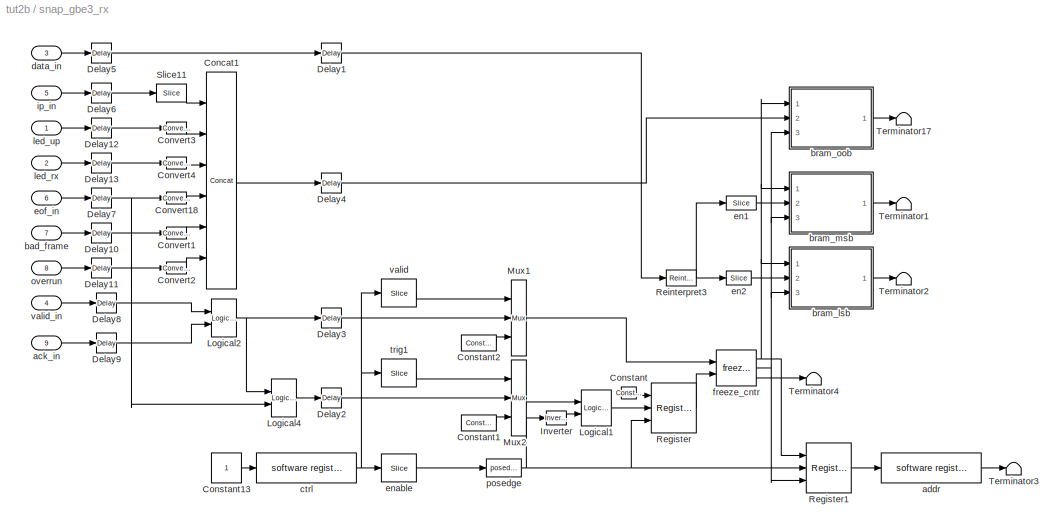
BLOCK [SubSystem] snap_gbe3_rx
  AncestorBlock = casper_library_scopes/snap_10gbe_rx
  FunctionWithSeparateData = off
  MaskEnableString = on
  MaskHideContents = off
  MaskIconFrame = on
  MaskIconOpaque = on
  MaskIconRotate = none
  MaskIconUnits = autoscale
  MaskPortRotate = default
  MaskPromptString = No. of samples(2^?)
  MaskStyleString = edit
  MaskToolTipString = on
  MaskTunableValueString = on
  MaskType = snap_10gbe_rx
  MaskValueString = 11
  MaskVariables = nsamples=@1;
  MaskVisibilityString = on
  MinAlgLoopOccurrences = off
  Opaque = off
  Ports = [9]
  PropExecContextOutsideSubsystem = off
  RTWSystemCode = Auto
  RequestExecContextInheritance = off
  SID = 113
BLOCK [Reference] snap_gbe3_rx/Concat1  REF=xbsIndex_r4/Concat
  Ports = [6, 1]
  SID = 2713
  SourceBlock = xbsIndex_r4/Concat
  SourceType = Xilinx Bus Concatenator Block
  block_type = concat
  block_version = 10.1.3
  dbl_ovrd = off
  has_advanced_control = 0
  infoedit = Concatenates two or more inputs.  Output will be cast to an unsigned value with the binary point at zero.
  num_inputs = 6
  sg_icon_stat = 30,217,6,1,white,blue,0,d0d135ea,right,
  sg_mask_display = fprintf('','COMMENT: begin icon graphics');\npatch([0 1 1 0 ],[0 0 1 1 ],[0.77 0.82 0.91]);\npatch([0.233333 0.0666667 0.3 0.0666667 0.233333 0.5 0.566667 0.633333 0.9 0.666667 0.466667 0.3 0.5 0.3 0.466667 0.666667 0.9 0.633333 0.566667 0.5 0.233333 ],[0.447005 0.470046 0.502304 0.534562 0.557604 0.557604 0.548387 0.557604 0.557604 0.525346 0.552995 0.529954 0.502304 0.474654 0.451613 0.479263 0....<+310ch>
  sggui_pos = 20,20,336,165
BLOCK [Reference] snap_gbe3_rx/Constant  REF=xbsIndex_r4/Constant
  Ports = [0, 1]
  SID = 2714
  SourceBlock = xbsIndex_r4/Constant
  SourceType = Xilinx Constant Block Block
  arith_type = Boolean
  bin_pt = 0
  block_type = constant
  block_version = 10.1.3
  carry = CIN
  const = 1
  dbl_ovrd = off
  dsp48_infoedit = The use of this block for DSP48 instructions is deprecated.  Please use the Opmode block.
  equ = P=C
  explicit_period = on
  has_advanced_control = 0
  inp1 = P
  inp2 = PCIN>>17
  n_bits = 1
  opr = +
  opselect = C
  period = 1
  sg_icon_stat = 15,12,0,1,white,blue,0,1c72b5be,right,
  sggui_pos = -1,-1,-1,-1
BLOCK [Reference] snap_gbe3_rx/Constant1  REF=xbsIndex_r4/Constant
  Ports = [0, 1]
  SID = 2715
  SourceBlock = xbsIndex_r4/Constant
  SourceType = Xilinx Constant Block Block
  arith_type = Boolean
  bin_pt = 0
  block_type = constant
  block_version = 10.1.3
  carry = CIN
  const = 1
  dbl_ovrd = off
  dsp48_infoedit = The use of this block for DSP48 instructions is deprecated.  Please use the Opmode block.
  equ = P=C
  explicit_period = on
  has_advanced_control = 0
  inp1 = P
  inp2 = PCIN>>17
  n_bits = 1
  opr = +
  opselect = C
  period = 1
  sg_icon_stat = 35,16,0,1,white,blue,0,1c72b5be,right,
  sggui_pos = -1,-1,-1,-1
BLOCK [Constant] snap_gbe3_rx/Constant13
  OutDataType = sfix(16)
  OutScaling = 2^0
  SID = 98
BLOCK [Reference] snap_gbe3_rx/Constant2  REF=xbsIndex_r4/Constant
  Ports = [0, 1]
  SID = 2717
  SourceBlock = xbsIndex_r4/Constant
  SourceType = Xilinx Constant Block Block
  arith_type = Boolean
  bin_pt = 0
  block_type = constant
  block_version = 10.1.3
  carry = CIN
  const = 1
  dbl_ovrd = off
  dsp48_infoedit = The use of this block for DSP48 instructions is deprecated.  Please use the Opmode block.
  equ = P=C
  explicit_period = on
  has_advanced_control = 0
  inp1 = P
  inp2 = PCIN>>17
  n_bits = 1
  opr = +
  opselect = C
  period = 1
  sg_icon_stat = 35,16,0,1,white,blue,0,1c72b5be,right,
  sggui_pos = -1,-1,-1,-1
BLOCK [Reference] snap_gbe3_rx/Convert1  REF=xbsIndex_r4/Convert
  Ports = [1, 1]
  SID = 2718
  SourceBlock = xbsIndex_r4/Convert
  SourceType = Xilinx Type Converter Block
  arith_type = Unsigned
  bin_pt = 0
  block_type = convert
  block_version = 10.1.3
  dbl_ovrd = off
  has_advanced_control = 0
  infoedit = Hardware notes: rounding and saturating require hardware resources; truncating and wrapping do not.
  latency = 0
  n_bits = 1
  overflow = Wrap
  pipeline = off
  quantization = Truncate
  sg_icon_stat = 20,12,1,1,white,blue,0,edca21da,right,
  sggui_pos = 20,20,461,334
  xl_area = [0, 0, 0, 0, 0, 0, 0]
  xl_use_area = off
BLOCK [Reference] snap_gbe3_rx/Convert18  REF=xbsIndex_r4/Convert
  Ports = [1, 1]
  SID = 2719
  SourceBlock = xbsIndex_r4/Convert
  SourceType = Xilinx Type Converter Block
  arith_type = Unsigned
  bin_pt = 0
  block_type = convert
  block_version = 10.1.3
  dbl_ovrd = off
  has_advanced_control = 0
  infoedit = Hardware notes: rounding and saturating require hardware resources; truncating and wrapping do not.
  latency = 0
  n_bits = 1
  overflow = Wrap
  pipeline = off
  quantization = Truncate
  sg_icon_stat = 20,12,1,1,white,blue,0,edca21da,right,
  sggui_pos = -1,-1,-1,-1
  xl_area = [0, 0, 0, 0, 0, 0, 0]
  xl_use_area = off
BLOCK [Reference] snap_gbe3_rx/Convert2  REF=xbsIndex_r4/Convert
  Ports = [1, 1]
  SID = 2720
  SourceBlock = xbsIndex_r4/Convert
  SourceType = Xilinx Type Converter Block
  arith_type = Unsigned
  bin_pt = 0
  block_type = convert
  block_version = 10.1.3
  dbl_ovrd = off
  has_advanced_control = 0
  infoedit = Hardware notes: rounding and saturating require hardware resources; truncating and wrapping do not.
  latency = 0
  n_bits = 1
  overflow = Wrap
  pipeline = off
  quantization = Truncate
  sg_icon_stat = 20,12,1,1,white,blue,0,edca21da,right,
  sggui_pos = 20,20,461,334
  xl_area = [0, 0, 0, 0, 0, 0, 0]
  xl_use_area = off
BLOCK [Reference] snap_gbe3_rx/Convert3  REF=xbsIndex_r4/Convert
  Ports = [1, 1]
  SID = 2721
  SourceBlock = xbsIndex_r4/Convert
  SourceType = Xilinx Type Converter Block
  arith_type = Unsigned
  bin_pt = 0
  block_type = convert
  block_version = 10.1.3
  dbl_ovrd = off
  has_advanced_control = 0
  infoedit = Hardware notes: rounding and saturating require hardware resources; truncating and wrapping do not.
  latency = 0
  n_bits = 1
  overflow = Wrap
  pipeline = off
  quantization = Truncate
  sg_icon_stat = 20,12,1,1,white,blue,0,edca21da,right,
  sggui_pos = 20,20,461,334
  xl_area = [0, 0, 0, 0, 0, 0, 0]
  xl_use_area = off
BLOCK [Reference] snap_gbe3_rx/Convert4  REF=xbsIndex_r4/Convert
  Ports = [1, 1]
  SID = 2722
  SourceBlock = xbsIndex_r4/Convert
  SourceType = Xilinx Type Converter Block
  arith_type = Unsigned
  bin_pt = 0
  block_type = convert
  block_version = 10.1.3
  dbl_ovrd = off
  has_advanced_control = 0
  infoedit = Hardware notes: rounding and saturating require hardware resources; truncating and wrapping do not.
  latency = 0
  n_bits = 1
  overflow = Wrap
  pipeline = off
  quantization = Truncate
  sg_icon_stat = 20,12,1,1,white,blue,0,edca21da,right,
  sggui_pos = 20,20,461,334
  xl_area = [0, 0, 0, 0, 0, 0, 0]
  xl_use_area = off
BLOCK [Reference] snap_gbe3_rx/Delay1  REF=xbsIndex_r4/Delay
  Ports = [1, 1]
  SID = 2723
  SourceBlock = xbsIndex_r4/Delay
  SourceType = Xilinx Delay Block
  block_type = delay
  block_version = 10.1.3
  dbl_ovrd = off
  en = off
  has_advanced_control = 0
  infoedit = Hardware notes: A delay line is a chain, each link of which is an SRL16 followed by a flip-flop.
  latency = 2
  reg_retiming = on
  sg_icon_stat = 20,20,1,1,white,blue,0,85ce9542,right,
  sggui_pos = -1,-1,-1,-1
  xl_area = [0, 0, 0, 0, 0, 0, 0]
  xl_use_area = off
BLOCK [Reference] snap_gbe3_rx/Delay10  REF=xbsIndex_r4/Delay
  Ports = [1, 1]
  SID = 2724
  SourceBlock = xbsIndex_r4/Delay
  SourceType = Xilinx Delay Block
  block_type = delay
  block_version = 10.1.3
  dbl_ovrd = off
  en = off
  has_advanced_control = 0
  infoedit = Hardware notes: A delay line is a chain, each link of which is an SRL16 followed by a flip-flop.
  latency = 2
  reg_retiming = on
  sg_icon_stat = 20,20,1,1,white,blue,0,85ce9542,right,
  sggui_pos = -1,-1,-1,-1
  xl_area = [0, 0, 0, 0, 0, 0, 0]
  xl_use_area = off
BLOCK [Reference] snap_gbe3_rx/Delay11  REF=xbsIndex_r4/Delay
  Ports = [1, 1]
  SID = 2725
  SourceBlock = xbsIndex_r4/Delay
  SourceType = Xilinx Delay Block
  block_type = delay
  block_version = 10.1.3
  dbl_ovrd = off
  en = off
  has_advanced_control = 0
  infoedit = Hardware notes: A delay line is a chain, each link of which is an SRL16 followed by a flip-flop.
  latency = 2
  reg_retiming = on
  sg_icon_stat = 20,20,1,1,white,blue,0,85ce9542,right,
  sggui_pos = -1,-1,-1,-1
  xl_area = [0, 0, 0, 0, 0, 0, 0]
  xl_use_area = off
BLOCK [Reference] snap_gbe3_rx/Delay12  REF=xbsIndex_r4/Delay
  Ports = [1, 1]
  SID = 2726
  SourceBlock = xbsIndex_r4/Delay
  SourceType = Xilinx Delay Block
  block_type = delay
  block_version = 10.1.3
  dbl_ovrd = off
  en = off
  has_advanced_control = 0
  infoedit = Hardware notes: A delay line is a chain, each link of which is an SRL16 followed by a flip-flop.
  latency = 2
  reg_retiming = on
  sg_icon_stat = 20,20,1,1,white,blue,0,85ce9542,right,
  sggui_pos = -1,-1,-1,-1
  xl_area = [0, 0, 0, 0, 0, 0, 0]
  xl_use_area = off
BLOCK [Reference] snap_gbe3_rx/Delay13  REF=xbsIndex_r4/Delay
  Ports = [1, 1]
  SID = 2727
  SourceBlock = xbsIndex_r4/Delay
  SourceType = Xilinx Delay Block
  block_type = delay
  block_version = 10.1.3
  dbl_ovrd = off
  en = off
  has_advanced_control = 0
  infoedit = Hardware notes: A delay line is a chain, each link of which is an SRL16 followed by a flip-flop.
  latency = 2
  reg_retiming = on
  sg_icon_stat = 20,20,1,1,white,blue,0,85ce9542,right,
  sggui_pos = -1,-1,-1,-1
  xl_area = [0, 0, 0, 0, 0, 0, 0]
  xl_use_area = off
BLOCK [Reference] snap_gbe3_rx/Delay2  REF=xbsIndex_r4/Delay
  Ports = [1, 1]
  SID = 2728
  SourceBlock = xbsIndex_r4/Delay
  SourceType = Xilinx Delay Block
  block_type = delay
  block_version = 10.1.3
  dbl_ovrd = off
  en = off
  has_advanced_control = 0
  infoedit = Hardware notes: A delay line is a chain, each link of which is an SRL16 followed by a flip-flop.
  latency = 2
  reg_retiming = on
  sg_icon_stat = 20,20,1,1,white,blue,0,85ce9542,right,
  sggui_pos = -1,-1,-1,-1
  xl_area = [0, 0, 0, 0, 0, 0, 0]
  xl_use_area = off
BLOCK [Reference] snap_gbe3_rx/Delay3  REF=xbsIndex_r4/Delay
  Ports = [1, 1]
  SID = 2729
  SourceBlock = xbsIndex_r4/Delay
  SourceType = Xilinx Delay Block
  block_type = delay
  block_version = 10.1.3
  dbl_ovrd = off
  en = off
  has_advanced_control = 0
  infoedit = Hardware notes: A delay line is a chain, each link of which is an SRL16 followed by a flip-flop.
  latency = 2
  reg_retiming = on
  sg_icon_stat = 20,20,1,1,white,blue,0,85ce9542,right,
  sggui_pos = -1,-1,-1,-1
  xl_area = [0, 0, 0, 0, 0, 0, 0]
  xl_use_area = off
BLOCK [Reference] snap_gbe3_rx/Delay4  REF=xbsIndex_r4/Delay
  Ports = [1, 1]
  SID = 2730
  SourceBlock = xbsIndex_r4/Delay
  SourceType = Xilinx Delay Block
  block_type = delay
  block_version = 10.1.3
  dbl_ovrd = off
  en = off
  has_advanced_control = 0
  infoedit = Hardware notes: A delay line is a chain, each link of which is an SRL16 followed by a flip-flop.
  latency = 2
  reg_retiming = on
  sg_icon_stat = 20,20,1,1,white,blue,0,85ce9542,right,
  sggui_pos = -1,-1,-1,-1
  xl_area = [0, 0, 0, 0, 0, 0, 0]
  xl_use_area = off
BLOCK [Reference] snap_gbe3_rx/Delay5  REF=xbsIndex_r4/Delay
  Ports = [1, 1]
  SID = 2731
  SourceBlock = xbsIndex_r4/Delay
  SourceType = Xilinx Delay Block
  block_type = delay
  block_version = 10.1.3
  dbl_ovrd = off
  en = off
  has_advanced_control = 0
  infoedit = Hardware notes: A delay line is a chain, each link of which is an SRL16 followed by a flip-flop.
  latency = 2
  reg_retiming = on
  sg_icon_stat = 20,20,1,1,white,blue,0,85ce9542,right,
  sggui_pos = -1,-1,-1,-1
  xl_area = [0, 0, 0, 0, 0, 0, 0]
  xl_use_area = off
BLOCK [Reference] snap_gbe3_rx/Delay6  REF=xbsIndex_r4/Delay
  Ports = [1, 1]
  SID = 2732
  SourceBlock = xbsIndex_r4/Delay
  SourceType = Xilinx Delay Block
  block_type = delay
  block_version = 10.1.3
  dbl_ovrd = off
  en = off
  has_advanced_control = 0
  infoedit = Hardware notes: A delay line is a chain, each link of which is an SRL16 followed by a flip-flop.
  latency = 2
  reg_retiming = on
  sg_icon_stat = 20,20,1,1,white,blue,0,85ce9542,right,
  sggui_pos = -1,-1,-1,-1
  xl_area = [0, 0, 0, 0, 0, 0, 0]
  xl_use_area = off
BLOCK [Reference] snap_gbe3_rx/Delay7  REF=xbsIndex_r4/Delay
  Ports = [1, 1]
  SID = 2733
  SourceBlock = xbsIndex_r4/Delay
  SourceType = Xilinx Delay Block
  block_type = delay
  block_version = 10.1.3
  dbl_ovrd = off
  en = off
  has_advanced_control = 0
  infoedit = Hardware notes: A delay line is a chain, each link of which is an SRL16 followed by a flip-flop.
  latency = 2
  reg_retiming = on
  sg_icon_stat = 20,20,1,1,white,blue,0,85ce9542,right,
  sggui_pos = -1,-1,-1,-1
  xl_area = [0, 0, 0, 0, 0, 0, 0]
  xl_use_area = off
BLOCK [Reference] snap_gbe3_rx/Delay8  REF=xbsIndex_r4/Delay
  Ports = [1, 1]
  SID = 2734
  SourceBlock = xbsIndex_r4/Delay
  SourceType = Xilinx Delay Block
  block_type = delay
  block_version = 10.1.3
  dbl_ovrd = off
  en = off
  has_advanced_control = 0
  infoedit = Hardware notes: A delay line is a chain, each link of which is an SRL16 followed by a flip-flop.
  latency = 2
  reg_retiming = on
  sg_icon_stat = 20,20,1,1,white,blue,0,85ce9542,right,
  sggui_pos = -1,-1,-1,-1
  xl_area = [0, 0, 0, 0, 0, 0, 0]
  xl_use_area = off
BLOCK [Reference] snap_gbe3_rx/Delay9  REF=xbsIndex_r4/Delay
  Ports = [1, 1]
  SID = 2735
  SourceBlock = xbsIndex_r4/Delay
  SourceType = Xilinx Delay Block
  block_type = delay
  block_version = 10.1.3
  dbl_ovrd = off
  en = off
  has_advanced_control = 0
  infoedit = Hardware notes: A delay line is a chain, each link of which is an SRL16 followed by a flip-flop.
  latency = 2
  reg_retiming = on
  sg_icon_stat = 20,20,1,1,white,blue,0,85ce9542,right,
  sggui_pos = -1,-1,-1,-1
  xl_area = [0, 0, 0, 0, 0, 0, 0]
  xl_use_area = off
BLOCK [Reference] snap_gbe3_rx/Inverter  REF=xbsIndex_r4/Inverter
  Ports = [1, 1]
  SID = 2736
  SourceBlock = xbsIndex_r4/Inverter
  SourceType = Xilinx Inverter Block
  block_type = inv
  block_version = 10.1.3
  dbl_ovrd = off
  en = off
  has_advanced_control = 0
  infoedit = Bitwise logical negation (one's complement) operator.
  latency = 0
  sg_icon_stat = 20,14,1,1,white,blue,0,267846e5,right,
  sggui_pos = -1,-1,-1,-1
  xl_area = [0, 0, 0, 0, 0, 0, 0]
  xl_use_area = off
BLOCK [Reference] snap_gbe3_rx/Logical1  REF=xbsIndex_r4/Logical
  Ports = [2, 1]
  SID = 2737
  SourceBlock = xbsIndex_r4/Logical
  SourceType = Xilinx Logical Block Block
  align_bp = on
  arith_type = Unsigned
  bin_pt = 2
  block_type = logical
  block_version = 10.1.3
  dbl_ovrd = off
  en = off
  has_advanced_control = 0
  inputs = 2
  latency = 0
  logical_function = AND
  n_bits = 8
  precision = Full
  sg_icon_stat = 30,36,2,1,white,blue,0,0a851f85,right,
  sggui_pos = -1,-1,-1,-1
  xl_area = [0, 0, 0, 0, 0, 0, 0]
  xl_use_area = off
BLOCK [Reference] snap_gbe3_rx/Logical2  REF=xbsIndex_r4/Logical
  Ports = [2, 1]
  SID = 2738
  SourceBlock = xbsIndex_r4/Logical
  SourceType = Xilinx Logical Block Block
  align_bp = on
  arith_type = Unsigned
  bin_pt = 2
  block_type = logical
  block_version = 10.1.3
  dbl_ovrd = off
  en = off
  has_advanced_control = 0
  inputs = 2
  latency = 0
  logical_function = AND
  n_bits = 8
  precision = Full
  sg_icon_stat = 25,38,2,1,white,blue,0,0a851f85,right,
  sggui_pos = -1,-1,-1,-1
  xl_area = [0, 0, 0, 0, 0, 0, 0]
  xl_use_area = off
BLOCK [Reference] snap_gbe3_rx/Logical4  REF=xbsIndex_r4/Logical
  Ports = [2, 1]
  SID = 2739
  SourceBlock = xbsIndex_r4/Logical
  SourceType = Xilinx Logical Block Block
  align_bp = on
  arith_type = Unsigned
  bin_pt = 2
  block_type = logical
  block_version = 10.1.3
  dbl_ovrd = off
  en = off
  has_advanced_control = 0
  inputs = 2
  latency = 0
  logical_function = AND
  n_bits = 8
  precision = Full
  sg_icon_stat = 25,38,2,1,white,blue,0,0a851f85,right,
  sggui_pos = -1,-1,-1,-1
  xl_area = [0, 0, 0, 0, 0, 0, 0]
  xl_use_area = off
BLOCK [Reference] snap_gbe3_rx/Mux1  REF=xbsIndex_r4/Mux
  Ports = [3, 1]
  SID = 2740
  SourceBlock = xbsIndex_r4/Mux
  SourceType = Xilinx Bus Multiplexer Block
  arith_type = Signed  (2's comp)
  bin_pt = 2
  block_type = mux
  block_version = 10.1.3
  dbl_ovrd = off
  en = off
  has_advanced_control = 0
  inputs = 2
  latency = 0
  n_bits = 8
  overflow = Wrap
  precision = Full
  quantization = Truncate
  sg_icon_stat = 15,76,3,1,white,blue,3,eb98d690,right,
  sggui_pos = -1,-1,-1,-1
  xl_area = [0, 0, 0, 0, 0, 0, 0]
  xl_use_area = off
BLOCK [Reference] snap_gbe3_rx/Mux2  REF=xbsIndex_r4/Mux
  Ports = [3, 1]
  SID = 2741
  SourceBlock = xbsIndex_r4/Mux
  SourceType = Xilinx Bus Multiplexer Block
  arith_type = Signed  (2's comp)
  bin_pt = 2
  block_type = mux
  block_version = 10.1.3
  dbl_ovrd = off
  en = off
  has_advanced_control = 0
  inputs = 2
  latency = 0
  n_bits = 8
  overflow = Wrap
  precision = Full
  quantization = Truncate
  sg_icon_stat = 15,76,3,1,white,blue,3,eb98d690,right,
  sggui_pos = -1,-1,-1,-1
  xl_area = [0, 0, 0, 0, 0, 0, 0]
  xl_use_area = off
BLOCK [Reference] snap_gbe3_rx/Register  REF=xbsIndex_r4/Register
  Ports = [3, 1]
  SID = 2742
  SourceBlock = xbsIndex_r4/Register
  SourceType = Xilinx Register Block
  block_type = register
  block_version = 10.1.3
  dbl_ovrd = off
  en = on
  has_advanced_control = 0
  init = 0
  rst = on
  sg_icon_stat = 45,50,3,1,white,blue,0,b821322c,right,
  sggui_pos = -1,-1,-1,-1
  xl_area = [0, 0, 0, 0, 0, 0, 0]
  xl_use_area = off
BLOCK [Reference] snap_gbe3_rx/Register1  REF=xbsIndex_r4/Register
  Ports = [3, 1]
  SID = 2743
  SourceBlock = xbsIndex_r4/Register
  SourceType = Xilinx Register Block
  block_type = register
  block_version = 10.1.3
  dbl_ovrd = off
  en = on
  has_advanced_control = 0
  init = 0
  rst = on
  sg_icon_stat = 45,50,3,1,white,blue,0,b821322c,right,
  sggui_pos = -1,-1,-1,-1
  xl_area = [0, 0, 0, 0, 0, 0, 0]
  xl_use_area = off
BLOCK [Reference] snap_gbe3_rx/Reinterpret3  REF=xbsIndex_r4/Reinterpret
  Ports = [1, 1]
  SID = 2744
  SourceBlock = xbsIndex_r4/Reinterpret
  SourceType = Xilinx Type Reinterpreter Block
  arith_type = Unsigned
  bin_pt = 0
  block_type = reinterpret
  block_version = 10.1.3
  force_arith_type = on
  force_bin_pt = on
  has_advanced_control = 0
  sg_icon_stat = 30,16,1,1,white,blue,0,6b04d0b0,right,
  sggui_pos = -1,-1,-1,-1
BLOCK [Reference] snap_gbe3_rx/Slice11  REF=xbsIndex_r4/Slice
  Ports = [1, 1]
  SID = 2745
  SourceBlock = xbsIndex_r4/Slice
  SourceType = Xilinx Bit Slice Extractor Block
  base0 = LSB of Input
  base1 = MSB of Input
  bit0 = 0
  bit1 = 0
  block_type = slice
  block_version = 10.1.3
  boolean_output = off
  dbl_ovrd = off
  has_advanced_control = 0
  mode = Lower Bit Location + Width
  nbits = 32-5
  sg_icon_stat = 30,18,1,1,white,blue,0,1fd851a7,right,
  sggui_pos = 20,20,449,376
BLOCK [Terminator] snap_gbe3_rx/Terminator1
  SID = 128
BLOCK [Terminator] snap_gbe3_rx/Terminator17
  SID = 129
BLOCK [Terminator] snap_gbe3_rx/Terminator2
  SID = 130
BLOCK [Terminator] snap_gbe3_rx/Terminator3
  SID = 131
BLOCK [Terminator] snap_gbe3_rx/Terminator4
  SID = 132
BLOCK [Inport] snap_gbe3_rx/ack_in
  IconDisplay = Port number
  OutDataType = sfix(16)
  OutScaling = 2^0
  Port = 9
  SID = 94
BLOCK [Reference] snap_gbe3_rx/addr  REF=xps_library/software register  (lib defined in mdl_00b5cec29cd0, mdl_02ab6ecaa3d1, +5 more)
  FunctionWithSeparateData = off
  Ports = [1, 1]
  RTWMemSecDataConstants = Inherit from model
  RTWMemSecDataInternal = Inherit from model
  RTWMemSecDataParameters = Inherit from model
  RTWMemSecFuncExecute = Inherit from model
  RTWMemSecFuncInitTerm = Inherit from model
  SID = 2751
  ShowPortLabels = FromPortIcon
  SourceBlock = xps_library/software register
  SystemSampleTime = -1
  Tag = xps:sw_reg
  arith_type = Unsigned
  bin_pt = 0
  bitwidth = 32
  gw_name = tut2b_snap_gbe3_rx_addr_user_data_in
  io_dir = To Processor
  sample_period = 1
BLOCK [Inport] snap_gbe3_rx/bad_frame
  IconDisplay = Port number
  OutDataType = sfix(16)
  OutScaling = 2^0
  Port = 7
  SID = 92
BLOCK [SubSystem] snap_gbe3_rx/bram_lsb
  AncestorBlock = xps_library/Shared BRAM
  FunctionWithSeparateData = off
  MaskCallbackString = |||||
  MaskEnableString = on,on,on,on,on,on
  MaskHideContents = off
  MaskIconFrame = on
  MaskIconOpaque = on
  MaskIconRotate = none
  MaskIconUnits = pixels
  MaskInitialization = shared_bram_mask;
  MaskPortRotate = default
  MaskPromptString = Output Data Type|Address width|Data Width|Data Binary Point|Initial 32-bit values (simulation only)|Sample rate
  MaskSelfModifiable = on
  MaskStyleString = popup(Unsigned|Signed  (2's comp)),edit,popup(8|16|32|64|128),edit,edit,edit
  MaskToolTipString = on,on,on,on,on,on
  MaskTunableValueString = on,on,on,on,on,on
  MaskValueString = Unsigned|nsamples|32|0|0|1
  MaskVariables = arith_type=&1;addr_width=@2;data_width=@3;data_bin_pt=@4;init_vals=@5;sample_rate=@6;
  MaskVisibilityString = on,on,on,on,on,on
  MinAlgLoopOccurrences = off
  Opaque = off
  Ports = [3, 1]
  PropExecContextOutsideSubsystem = off
  RTWSystemCode = Auto
  RequestExecContextInheritance = off
  SID = 2763
  Tag = xps:bram
BLOCK [Inport] snap_gbe3_rx/bram_lsb/addr
  IconDisplay = Port number
  OutDataType = sfix(16)
  OutScaling = 2^0
  SID = 1
BLOCK [SubSystem] snap_gbe3_rx/bram_lsb/calc_add
  FunctionWithSeparateData = off
  MaskHideContents = off
  MinAlgLoopOccurrences = off
  Opaque = off
  Ports = [1, 1]
  PropExecContextOutsideSubsystem = off
  RTWSystemCode = Auto
  RequestExecContextInheritance = off
  SID = 4
BLOCK [Reference] snap_gbe3_rx/bram_lsb/calc_add/add_sub  REF=xbsIndex_r4/AddSub
  Ports = [2, 1]
  SID = 6
  SourceBlock = xbsIndex_r4/AddSub
  SourceType = Xilinx Adder/Subtracter Block
  arith_type = Unsigned
  bin_pt = 0
  block_type = addsub
  block_version = 11.4
  dbl_ovrd = off
  en = off
  has_advanced_control = 0
  hw_selection = Fabric
  latency = 0
  mode = Subtraction
  n_bits = max(1, log2(32/data_width))
  overflow = Wrap
  pipelined = off
  precision = User Defined
  quantization = Truncate
  sg_icon_stat = 35,78,2,1,white,blue,0,32e1f85f,right,
  sggui_pos = 24,152,419,344
  use_behavioral_HDL = on
  use_carryin = off
  use_carryout = off
  xl_area = [0,0,0,0,0,0,0]
  xl_use_area = off
BLOCK [Reference] snap_gbe3_rx/bram_lsb/calc_add/concat  REF=xbsIndex_r4/Concat
  Ports = [2, 1]
  SID = 7
  SourceBlock = xbsIndex_r4/Concat
  SourceType = Xilinx Bus Concatenator Block
  block_type = concat
  block_version = 11.4
  dbl_ovrd = off
  has_advanced_control = 0
  infoedit = Concatenates two or more inputs.  Output will be cast to an unsigned value with the binary point at zero.
  num_inputs = 2
  sg_icon_stat = 20,120,2,1,white,blue,0,97b7e8d2,right,
  sggui_pos = -1,-1,-1,-1
BLOCK [Reference] snap_gbe3_rx/bram_lsb/calc_add/const  REF=xbsIndex_r4/Constant
  Ports = [0, 1]
  SID = 8
  SourceBlock = xbsIndex_r4/Constant
  SourceType = Xilinx Constant Block Block
  arith_type = Unsigned
  bin_pt = 0
  block_type = constant
  block_version = 11.4
  carry = CIN
  const = max(0, 32/data_width-1)
  dbl_ovrd = off
  dsp48_infoedit = The use of this block for DSP48 instructions is deprecated.  Please use the Opmode block.
  equ = P=C
  explicit_period = on
  has_advanced_control = 0
  inp1 = P
  inp2 = PCIN>>17
  n_bits = max(1, log2(32/data_width))
  opr = +
  opselect = C
  period = sample_rate
  sg_icon_stat = 20,18,0,1,white,blue,0,bf4ddd8b,right,
  sggui_pos = 536,513,474,439
BLOCK [Reference] snap_gbe3_rx/bram_lsb/calc_add/convert_addr  REF=xbsIndex_r4/Convert
  Ports = [1, 1]
  SID = 9
  SourceBlock = xbsIndex_r4/Convert
  SourceType = Xilinx Type Converter Block
  arith_type = Unsigned
  bin_pt = 0
  block_type = convert
  block_version = 9.1.01
  dbl_ovrd = off
  has_advanced_control = 0
  infoedit = Hardware notes: rounding and saturating require hardware resources; truncating and wrapping do not.
  latency = 0
  n_bits = addr_width
  overflow = Wrap
  pipeline = off
  quantization = Truncate
  sg_icon_stat = 35,24,1,1,white,blue,0,edca21da,right,
  sggui_pos = 21,51,636,521
  xl_area = [0, 0, 0, 0, 0, 0, 0]
  xl_use_area = off
BLOCK [Inport] snap_gbe3_rx/bram_lsb/calc_add/in
  IconDisplay = Port number
  SID = 5
BLOCK [Reference] snap_gbe3_rx/bram_lsb/calc_add/lsw  REF=xbsIndex_r4/Slice
  Ports = [1, 1]
  SID = 10
  SourceBlock = xbsIndex_r4/Slice
  SourceType = Xilinx Bit Slice Extractor Block
  base0 = LSB of Input
  base1 = MSB of Input
  bit0 = 0
  bit1 = 0
  block_type = slice
  block_version = 11.4
  boolean_output = off
  dbl_ovrd = off
  has_advanced_control = 0
  mode = Lower Bit Location + Width
  nbits = max(1, log2(32/data_width))
  sg_icon_stat = 30,22,1,1,white,blue,0,1fd851a7,right,
  sggui_pos = 1059,231,540,482
BLOCK [Reference] snap_gbe3_rx/bram_lsb/calc_add/manipulate  REF=xbsIndex_r4/Constant
  Ports = [0, 1]
  SID = 11
  SourceBlock = xbsIndex_r4/Constant
  SourceType = Xilinx Constant Block Block
  arith_type = Unsigned
  bin_pt = 0
  block_type = constant
  block_version = 11.4
  carry = CIN
  const = min(1, floor(32/data_width) - 1)
  dbl_ovrd = off
  dsp48_infoedit = The use of this block for DSP48 instructions is deprecated.  Please use the Opmode block.
  equ = P=C
  explicit_period = on
  has_advanced_control = 0
  inp1 = P
  inp2 = PCIN>>17
  n_bits = 1
  opr = +
  opselect = C
  period = sample_rate
  sg_icon_stat = 20,18,0,1,white,blue,0,bf4ddd8b,right,
  sggui_pos = 525,644,474,439
BLOCK [Reference] snap_gbe3_rx/bram_lsb/calc_add/msw  REF=xbsIndex_r4/Slice
  Ports = [1, 1]
  SID = 12
  SourceBlock = xbsIndex_r4/Slice
  SourceType = Xilinx Bit Slice Extractor Block
  base0 = LSB of Input
  base1 = MSB of Input
  bit0 = 0
  bit1 = 0
  block_type = slice
  block_version = 11.4
  boolean_output = off
  dbl_ovrd = off
  has_advanced_control = 0
  mode = Upper Bit Location + Width
  nbits = addr_width - max(1, log2(32/data_width))
  sg_icon_stat = 30,22,1,1,white,blue,0,1fd851a7,right,
  sggui_pos = 956,177,540,482
BLOCK [Reference] snap_gbe3_rx/bram_lsb/calc_add/mux  REF=xbsIndex_r4/Mux
  Ports = [3, 1]
  SID = 13
  SourceBlock = xbsIndex_r4/Mux
  SourceType = Xilinx Bus Multiplexer Block
  arith_type = Unsigned
  bin_pt = 14
  block_type = mux
  block_version = 11.4
  dbl_ovrd = off
  en = off
  has_advanced_control = 0
  inputs = 2
  latency = 0
  n_bits = 16
  overflow = Wrap
  precision = Full
  quantization = Truncate
  sg_icon_stat = 25,198,3,1,white,blue,3,eb98d690,right,
  sggui_pos = -1,-1,-1,-1
  xl_area = [0,0,0,0,0,0,0]
  xl_use_area = off
BLOCK [Outport] snap_gbe3_rx/bram_lsb/calc_add/out
  IconDisplay = Port number
  SID = 14
BLOCK [Reference] snap_gbe3_rx/bram_lsb/convert_addr  REF=xbsIndex_r4/Convert
  Ports = [1, 1]
  SID = 15
  SourceBlock = xbsIndex_r4/Convert
  SourceType = Xilinx Type Converter Block
  arith_type = Unsigned
  bin_pt = 0
  block_type = convert
  block_version = 9.1.01
  dbl_ovrd = off
  has_advanced_control = 0
  infoedit = Hardware notes: rounding and saturating require hardware resources; truncating and wrapping do not.
  latency = 0
  n_bits = addr_width
  overflow = Wrap
  pipeline = off
  quantization = Truncate
  sg_icon_stat = 35,24,1,1,white,blue,0,edca21da,right,
  sggui_pos = 22,78,636,521
  xl_area = [0, 0, 0, 0, 0, 0, 0]
  xl_use_area = off
BLOCK [Reference] snap_gbe3_rx/bram_lsb/convert_din  REF=xbsIndex_r4/Convert
  Ports = [1, 1]
  SID = 16
  SourceBlock = xbsIndex_r4/Convert
  SourceType = Xilinx Type Converter Block
  arith_type = Unsigned
  bin_pt = data_bin_pt
  block_type = convert
  block_version = 9.1.01
  dbl_ovrd = off
  has_advanced_control = 0
  infoedit = Hardware notes: rounding and saturating require hardware resources; truncating and wrapping do not.
  latency = 0
  n_bits = data_width
  overflow = Wrap
  pipeline = off
  quantization = Truncate
  sg_icon_stat = 35,24,1,1,white,blue,0,edca21da,right,
  sggui_pos = 26,186,636,521
  xl_area = [0, 0, 0, 0, 0, 0, 0]
  xl_use_area = off
BLOCK [Reference] snap_gbe3_rx/bram_lsb/convert_din1  REF=xbsIndex_r4/Convert
  Ports = [1, 1]
  SID = 17
  SourceBlock = xbsIndex_r4/Convert
  SourceType = Xilinx Type Converter Block
  arith_type = Unsigned
  bin_pt = data_bin_pt
  block_type = convert
  block_version = 9.1.01
  dbl_ovrd = off
  has_advanced_control = 0
  infoedit = Hardware notes: rounding and saturating require hardware resources; truncating and wrapping do not.
  latency = 0
  n_bits = data_width
  overflow = Wrap
  pipeline = off
  quantization = Truncate
  sg_icon_stat = 35,24,1,1,white,blue,0,edca21da,right,
  sggui_pos = 26,186,636,521
  xl_area = [0, 0, 0, 0, 0, 0, 0]
  xl_use_area = off
BLOCK [Reference] snap_gbe3_rx/bram_lsb/convert_we  REF=xbsIndex_r4/Convert
  Ports = [1, 1]
  SID = 18
  SourceBlock = xbsIndex_r4/Convert
  SourceType = Xilinx Type Converter Block
  arith_type = Unsigned
  bin_pt = 0
  block_type = convert
  block_version = 9.1.01
  dbl_ovrd = off
  has_advanced_control = 0
  infoedit = Hardware notes: rounding and saturating require hardware resources; truncating and wrapping do not.
  latency = 0
  n_bits = 1
  overflow = Wrap
  pipeline = off
  quantization = Truncate
  sg_icon_stat = 35,24,1,1,white,blue,0,edca21da,right,
  sggui_pos = 21,51,636,521
  xl_area = [0, 0, 0, 0, 0, 0, 0]
  xl_use_area = off
BLOCK [Inport] snap_gbe3_rx/bram_lsb/data_in
  IconDisplay = Port number
  OutDataType = sfix(16)
  OutScaling = 2^0
  Port = 2
  SID = 2
BLOCK [Outport] snap_gbe3_rx/bram_lsb/data_out
  IconDisplay = Port number
  OutDataType = sfix(16)
  OutScaling = 2^0
  SID = 49
BLOCK [SubSystem] snap_gbe3_rx/bram_lsb/mem
  FunctionWithSeparateData = off
  MaskHideContents = off
  MinAlgLoopOccurrences = off
  Opaque = off
  Ports = [3, 1]
  PropExecContextOutsideSubsystem = off
  RTWSystemCode = Auto
  RequestExecContextInheritance = off
  SID = 19
BLOCK [Reference] snap_gbe3_rx/bram_lsb/mem/Disregard Subsystem  REF=xbsIndex_r4/Disregard Subsystem
  AttributesFormatString = Disregard Subsystem\\nFor Generation
  Ports = []
  SID = 23
  SourceBlock = xbsIndex_r4/Disregard Subsystem
  SourceType = Xilinx Disregard Subsystem For Generation Block
  Tag = discardX
  block_type = disregard
  block_version = 9.1.01
  has_advanced_control = 0
  sg_icon_stat = 51,50,-1,-1,darkgray,black,0,0,right,
  sggui_pos = -1,-1,-1,-1
BLOCK [Inport] snap_gbe3_rx/bram_lsb/mem/In1
  IconDisplay = Port number
  OutDataType = sfix(16)
  OutScaling = 2^0
  SID = 20
BLOCK [Inport] snap_gbe3_rx/bram_lsb/mem/In2
  IconDisplay = Port number
  OutDataType = sfix(16)
  OutScaling = 2^0
  Port = 2
  SID = 21
BLOCK [Inport] snap_gbe3_rx/bram_lsb/mem/In3
  IconDisplay = Port number
  OutDataType = sfix(16)
  OutScaling = 2^0
  Port = 3
  SID = 22
BLOCK [Outport] snap_gbe3_rx/bram_lsb/mem/Out1
  IconDisplay = Port number
  OutDataType = sfix(16)
  OutScaling = 2^0
  SID = 42
BLOCK [SubSystem] snap_gbe3_rx/bram_lsb/mem/calc_add
  FunctionWithSeparateData = off
  MaskHideContents = off
  MinAlgLoopOccurrences = off
  Opaque = off
  Ports = [1, 1]
  PropExecContextOutsideSubsystem = off
  RTWSystemCode = Auto
  RequestExecContextInheritance = off
  SID = 24
BLOCK [Reference] snap_gbe3_rx/bram_lsb/mem/calc_add/add_sub  REF=xbsIndex_r4/AddSub
  Ports = [2, 1]
  SID = 26
  SourceBlock = xbsIndex_r4/AddSub
  SourceType = Xilinx Adder/Subtracter Block
  arith_type = Unsigned
  bin_pt = 0
  block_type = addsub
  block_version = 11.4
  dbl_ovrd = off
  en = off
  has_advanced_control = 0
  hw_selection = Fabric
  latency = 0
  mode = Subtraction
  n_bits = max(1, log2(32/data_width))
  overflow = Wrap
  pipelined = off
  precision = User Defined
  quantization = Truncate
  sg_icon_stat = 35,78,2,1,white,blue,0,32e1f85f,right,
  sggui_pos = 24,152,419,344
  use_behavioral_HDL = on
  use_carryin = off
  use_carryout = off
  xl_area = [0,0,0,0,0,0,0]
  xl_use_area = off
BLOCK [Reference] snap_gbe3_rx/bram_lsb/mem/calc_add/concat  REF=xbsIndex_r4/Concat
  Ports = [2, 1]
  SID = 27
  SourceBlock = xbsIndex_r4/Concat
  SourceType = Xilinx Bus Concatenator Block
  block_type = concat
  block_version = 11.4
  dbl_ovrd = off
  has_advanced_control = 0
  infoedit = Concatenates two or more inputs.  Output will be cast to an unsigned value with the binary point at zero.
  num_inputs = 2
  sg_icon_stat = 20,120,2,1,white,blue,0,97b7e8d2,right,
  sggui_pos = -1,-1,-1,-1
BLOCK [Reference] snap_gbe3_rx/bram_lsb/mem/calc_add/const  REF=xbsIndex_r4/Constant
  Ports = [0, 1]
  SID = 28
  SourceBlock = xbsIndex_r4/Constant
  SourceType = Xilinx Constant Block Block
  arith_type = Unsigned
  bin_pt = 0
  block_type = constant
  block_version = 11.4
  carry = CIN
  const = max(0, 32/data_width-1)
  dbl_ovrd = off
  dsp48_infoedit = The use of this block for DSP48 instructions is deprecated.  Please use the Opmode block.
  equ = P=C
  explicit_period = on
  has_advanced_control = 0
  inp1 = P
  inp2 = PCIN>>17
  n_bits = max(1, log2(32/data_width))
  opr = +
  opselect = C
  period = sample_rate
  sg_icon_stat = 20,18,0,1,white,blue,0,bf4ddd8b,right,
  sggui_pos = 537,540,474,439
BLOCK [Reference] snap_gbe3_rx/bram_lsb/mem/calc_add/convert_addr  REF=xbsIndex_r4/Convert
  Ports = [1, 1]
  SID = 29
  SourceBlock = xbsIndex_r4/Convert
  SourceType = Xilinx Type Converter Block
  arith_type = Unsigned
  bin_pt = 0
  block_type = convert
  block_version = 9.1.01
  dbl_ovrd = off
  has_advanced_control = 0
  infoedit = Hardware notes: rounding and saturating require hardware resources; truncating and wrapping do not.
  latency = 0
  n_bits = addr_width
  overflow = Wrap
  pipeline = off
  quantization = Truncate
  sg_icon_stat = 35,24,1,1,white,blue,0,edca21da,right,
  sggui_pos = 21,51,636,521
  xl_area = [0, 0, 0, 0, 0, 0, 0]
  xl_use_area = off
BLOCK [Inport] snap_gbe3_rx/bram_lsb/mem/calc_add/in
  IconDisplay = Port number
  SID = 25
BLOCK [Reference] snap_gbe3_rx/bram_lsb/mem/calc_add/lsw  REF=xbsIndex_r4/Slice
  Ports = [1, 1]
  SID = 30
  SourceBlock = xbsIndex_r4/Slice
  SourceType = Xilinx Bit Slice Extractor Block
  base0 = LSB of Input
  base1 = MSB of Input
  bit0 = 0
  bit1 = 0
  block_type = slice
  block_version = 11.4
  boolean_output = off
  dbl_ovrd = off
  has_advanced_control = 0
  mode = Lower Bit Location + Width
  nbits = max(1, log2(32/data_width))
  sg_icon_stat = 30,22,1,1,white,blue,0,1fd851a7,right,
  sggui_pos = 1059,231,540,482
BLOCK [Reference] snap_gbe3_rx/bram_lsb/mem/calc_add/manipulate  REF=xbsIndex_r4/Constant
  Ports = [0, 1]
  SID = 31
  SourceBlock = xbsIndex_r4/Constant
  SourceType = Xilinx Constant Block Block
  arith_type = Unsigned
  bin_pt = 0
  block_type = constant
  block_version = 11.4
  carry = CIN
  const = min(1, floor(32/data_width) - 1)
  dbl_ovrd = off
  dsp48_infoedit = The use of this block for DSP48 instructions is deprecated.  Please use the Opmode block.
  equ = P=C
  explicit_period = on
  has_advanced_control = 0
  inp1 = P
  inp2 = PCIN>>17
  n_bits = 1
  opr = +
  opselect = C
  period = sample_rate
  sg_icon_stat = 20,18,0,1,white,blue,0,bf4ddd8b,right,
  sggui_pos = 524,617,474,439
BLOCK [Reference] snap_gbe3_rx/bram_lsb/mem/calc_add/msw  REF=xbsIndex_r4/Slice
  Ports = [1, 1]
  SID = 32
  SourceBlock = xbsIndex_r4/Slice
  SourceType = Xilinx Bit Slice Extractor Block
  base0 = LSB of Input
  base1 = MSB of Input
  bit0 = 0
  bit1 = 0
  block_type = slice
  block_version = 11.4
  boolean_output = off
  dbl_ovrd = off
  has_advanced_control = 0
  mode = Upper Bit Location + Width
  nbits = addr_width - max(1, log2(32/data_width))
  sg_icon_stat = 30,22,1,1,white,blue,0,1fd851a7,right,
  sggui_pos = 956,177,540,482
BLOCK [Reference] snap_gbe3_rx/bram_lsb/mem/calc_add/mux  REF=xbsIndex_r4/Mux
  Ports = [3, 1]
  SID = 33
  SourceBlock = xbsIndex_r4/Mux
  SourceType = Xilinx Bus Multiplexer Block
  arith_type = Unsigned
  bin_pt = 14
  block_type = mux
  block_version = 11.4
  dbl_ovrd = off
  en = off
  has_advanced_control = 0
  inputs = 2
  latency = 0
  n_bits = 16
  overflow = Wrap
  precision = Full
  quantization = Truncate
  sg_icon_stat = 25,198,3,1,white,blue,3,eb98d690,right,
  sggui_pos = -1,-1,-1,-1
  xl_area = [0,0,0,0,0,0,0]
  xl_use_area = off
BLOCK [Outport] snap_gbe3_rx/bram_lsb/mem/calc_add/out
  IconDisplay = Port number
  SID = 34
BLOCK [Reference] snap_gbe3_rx/bram_lsb/mem/ram  REF=xbsIndex_r4/Single Port RAM
  Ports = [3, 1]
  SID = 35
  SourceBlock = xbsIndex_r4/Single Port RAM
  SourceType = Xilinx Single Port Random Access Memory Block
  block_type = spram
  block_version = 11.4
  dbl_ovrd = off
  depth = 2^addr_width
  distributed_mem = Block RAM
  en = off
  has_advanced_control = 0
  initVector = init_vals
  init_reg = 0
  latency = 1
  optimize = Area
  rst = off
  sg_icon_stat = 60,114,3,1,white,blue,0,4294c61d,right,
  sggui_pos = 22,98,435,384
  use_rpm = on
  write_mode = Read After Write
  xl_area = [0,0,0,0,0,0,0]
  xl_use_area = off
BLOCK [Reference] snap_gbe3_rx/bram_lsb/mem/sim_addr  REF=xbsIndex_r4/Gateway In
  LOCs = {}
  Ports = [1, 1]
  SID = 36
  SourceBlock = xbsIndex_r4/Gateway In
  SourceType = Xilinx Gateway In Block
  arith_type = Unsigned
  bin_pt = 0
  block_type = gatewayin
  block_version = 9.1.01
  dbl_ovrd = off
  has_advanced_control = 0
  hdl_port = on
  locs_specified = off
  n_bits = addr_width
  overflow = Wrap
  period = sample_rate
  quantization = Truncate
  sg_icon_stat = 55,20,1,1,white,yellow,0,00d3666e,right,
  sggui_pos = 24,152,419,481
  sginterface = {'Nallatech'=>{'xdspkit'=>{'non_memory_mapped_port'=>'sim_addr'}},'Xilinx'=>{'jtaghwcosim'=>{'non_memory_mapped_port'=>'sim_addr'},'xdspkit'=>{'non_memory_mapped_port'=>'sim_addr'}}}
  timing_constraint = None
  xl_area = [0, 0, 0, 0, 0, 0, 0]
  xl_use_area = off
BLOCK [Reference] snap_gbe3_rx/bram_lsb/mem/sim_data_in  REF=xbsIndex_r4/Gateway In
  LOCs = {}
  Ports = [1, 1]
  SID = 37
  SourceBlock = xbsIndex_r4/Gateway In
  SourceType = Xilinx Gateway In Block
  arith_type = Unsigned
  bin_pt = data_bin_pt
  block_type = gatewayin
  block_version = 9.1.01
  dbl_ovrd = off
  has_advanced_control = 0
  hdl_port = on
  locs_specified = off
  n_bits = data_width
  overflow = Wrap
  period = sample_rate
  quantization = Truncate
  sg_icon_stat = 55,20,1,1,white,yellow,0,00d3666e,right,
  sggui_pos = 28,260,419,481
  timing_constraint = None
  xl_area = [0, 0, 0, 0, 0, 0, 0]
  xl_use_area = off
BLOCK [Reference] snap_gbe3_rx/bram_lsb/mem/sim_data_out  REF=xbsIndex_r4/Gateway Out
  LOCs = {'B21','B22','A22','B23','B19','C19','A20','A21','A23','B24','A24','A25','E18','D18','C18','B18'}
  Ports = [1, 1]
  SID = 38
  SourceBlock = xbsIndex_r4/Gateway Out
  SourceType = Xilinx Gateway Out Block
  block_type = gatewayout
  block_version = 9.1.01
  has_advanced_control = 0
  hdl_port = on
  locs_specified = off
  sg_icon_stat = 55,22,1,1,white,yellow,0,cc31b7ac,right,
  sggui_pos = 23,125,403,473
  timing_constraint = None
  xl_area = [0, 0, 0, 0, 0, 0, 0]
  xl_use_area = off
BLOCK [SubSystem] snap_gbe3_rx/bram_lsb/mem/sim_munge_in
  AncestorBlock = casper_library_flow_control/munge
  AttributesFormatString = [0]\n32 bits
  FunctionWithSeparateData = off
  MaskCallbackString = ||
  MaskDescription = Splits an input bus into the specified number of divisions and then recombines them in the order specified (most significant division = 0,least = number divisions-1)
  MaskEnableString = on,on,on
  MaskHideContents = off
  MaskIconFrame = on
  MaskIconOpaque = on
  MaskIconRotate = none
  MaskIconUnits = autoscale
  MaskInitialization = munge_init(gcb, ...\n    'divisions', divisions, ...\n    'div_size', div_size, ...\n    'order', order);
  MaskPortRotate = default
  MaskPromptString = Number of divisions|Division size (bits)|Division packing order
  MaskStyleString = edit,edit,edit
  MaskToolTipString = on,on,on
  MaskTunableValueString = on,on,on
  MaskType = munge
  MaskValueString = 1|32|[0]
  MaskVariables = divisions=@1;div_size=@2;order=@3;
  MaskVisibilityString = on,on,on
  MinAlgLoopOccurrences = off
  Opaque = off
  Ports = [1, 1]
  PropExecContextOutsideSubsystem = off
  RTWSystemCode = Auto
  RequestExecContextInheritance = off
  SID = 39
  UserData = DataTag25
  UserDataPersistent = on
BLOCK [Inport] snap_gbe3_rx/bram_lsb/mem/sim_munge_in/din
  IconDisplay = Port number
  SID = 1
BLOCK [Outport] snap_gbe3_rx/bram_lsb/mem/sim_munge_in/dout
  IconDisplay = Port number
  SID = 2
BLOCK [SubSystem] snap_gbe3_rx/bram_lsb/mem/sim_munge_out
  AncestorBlock = casper_library_flow_control/munge
  AttributesFormatString = [0]\n32 bits
  FunctionWithSeparateData = off
  MaskCallbackString = ||
  MaskDescription = Splits an input bus into the specified number of divisions and then recombines them in the order specified (most significant division = 0,least = number divisions-1)
  MaskEnableString = on,on,on
  MaskHideContents = off
  MaskIconFrame = on
  MaskIconOpaque = on
  MaskIconRotate = none
  MaskIconUnits = autoscale
  MaskInitialization = munge_init(gcb, ...\n    'divisions', divisions, ...\n    'div_size', div_size, ...\n    'order', order);
  MaskPortRotate = default
  MaskPromptString = Number of divisions|Division size (bits)|Division packing order
  MaskStyleString = edit,edit,edit
  MaskToolTipString = on,on,on
  MaskTunableValueString = on,on,on
  MaskType = munge
  MaskValueString = 1|32|[0]
  MaskVariables = divisions=@1;div_size=@2;order=@3;
  MaskVisibilityString = on,on,on
  MinAlgLoopOccurrences = off
  Opaque = off
  Ports = [1, 1]
  PropExecContextOutsideSubsystem = off
  RTWSystemCode = Auto
  RequestExecContextInheritance = off
  SID = 40
  UserData = DataTag26
  UserDataPersistent = on
BLOCK [Inport] snap_gbe3_rx/bram_lsb/mem/sim_munge_out/din
  IconDisplay = Port number
  SID = 1
BLOCK [Outport] snap_gbe3_rx/bram_lsb/mem/sim_munge_out/dout
  IconDisplay = Port number
  SID = 2
BLOCK [Reference] snap_gbe3_rx/bram_lsb/mem/sim_we  REF=xbsIndex_r4/Gateway In
  LOCs = {}
  Ports = [1, 1]
  SID = 41
  SourceBlock = xbsIndex_r4/Gateway In
  SourceType = Xilinx Gateway In Block
  arith_type = Boolean
  bin_pt = 0
  block_type = gatewayin
  block_version = 9.1.01
  dbl_ovrd = off
  has_advanced_control = 0
  hdl_port = on
  locs_specified = off
  n_bits = 1
  overflow = Wrap
  period = sample_rate
  quantization = Truncate
  sg_icon_stat = 55,20,1,1,white,yellow,0,00d3666e,right,
  sggui_pos = -1,-1,-1,-1
  sginterface = {'Nallatech'=>{'xdspkit'=>{'non_memory_mapped_port'=>'sim_we'}},'Xilinx'=>{'jtaghwcosim'=>{'non_memory_mapped_port'=>'sim_we'},'xdspkit'=>{'non_memory_mapped_port'=>'sim_we'}}}
  timing_constraint = None
  xl_area = [0, 0, 0, 0, 0, 0, 0]
  xl_use_area = off
BLOCK [SubSystem] snap_gbe3_rx/bram_lsb/munge_in
  AncestorBlock = casper_library_flow_control/munge
  AttributesFormatString = [0]\n32 bits
  FunctionWithSeparateData = off
  MaskCallbackString = ||
  MaskDescription = Splits an input bus into the specified number of divisions and then recombines them in the order specified (most significant division = 0,least = number divisions-1)
  MaskEnableString = on,on,on
  MaskHideContents = off
  MaskIconFrame = on
  MaskIconOpaque = on
  MaskIconRotate = none
  MaskIconUnits = autoscale
  MaskInitialization = munge_init(gcb, ...\n    'divisions', divisions, ...\n    'div_size', div_size, ...\n    'order', order);
  MaskPortRotate = default
  MaskPromptString = Number of divisions|Division size (bits)|Division packing order
  MaskStyleString = edit,edit,edit
  MaskToolTipString = on,on,on
  MaskTunableValueString = on,on,on
  MaskType = munge
  MaskValueString = 1|32|[0]
  MaskVariables = divisions=@1;div_size=@2;order=@3;
  MaskVisibilityString = on,on,on
  MinAlgLoopOccurrences = off
  Opaque = off
  Ports = [1, 1]
  PropExecContextOutsideSubsystem = off
  RTWSystemCode = Auto
  RequestExecContextInheritance = off
  SID = 43
  UserData = DataTag27
  UserDataPersistent = on
BLOCK [Inport] snap_gbe3_rx/bram_lsb/munge_in/din
  IconDisplay = Port number
  SID = 1
BLOCK [Outport] snap_gbe3_rx/bram_lsb/munge_in/dout
  IconDisplay = Port number
  SID = 2
BLOCK [SubSystem] snap_gbe3_rx/bram_lsb/munge_out
  AncestorBlock = casper_library_flow_control/munge
  AttributesFormatString = [0]\n32 bits
  FunctionWithSeparateData = off
  MaskCallbackString = ||
  MaskDescription = Splits an input bus into the specified number of divisions and then recombines them in the order specified (most significant division = 0,least = number divisions-1)
  MaskEnableString = on,on,on
  MaskHideContents = off
  MaskIconFrame = on
  MaskIconOpaque = on
  MaskIconRotate = none
  MaskIconUnits = autoscale
  MaskInitialization = munge_init(gcb, ...\n    'divisions', divisions, ...\n    'div_size', div_size, ...\n    'order', order);
  MaskPortRotate = default
  MaskPromptString = Number of divisions|Division size (bits)|Division packing order
  MaskStyleString = edit,edit,edit
  MaskToolTipString = on,on,on
  MaskTunableValueString = on,on,on
  MaskType = munge
  MaskValueString = 1|32|[0]
  MaskVariables = divisions=@1;div_size=@2;order=@3;
  MaskVisibilityString = on,on,on
  MinAlgLoopOccurrences = off
  Opaque = off
  Ports = [1, 1]
  PropExecContextOutsideSubsystem = off
  RTWSystemCode = Auto
  RequestExecContextInheritance = off
  SID = 44
  UserData = DataTag28
  UserDataPersistent = on
BLOCK [Inport] snap_gbe3_rx/bram_lsb/munge_out/din
  IconDisplay = Port number
  SID = 1
BLOCK [Outport] snap_gbe3_rx/bram_lsb/munge_out/dout
  IconDisplay = Port number
  SID = 2
BLOCK [Reference] snap_gbe3_rx/bram_lsb/tut2b_snap_gbe3_rx_bram_lsb_addr  REF=xbsIndex_r4/Gateway Out
  LOCs = {'A5','B9','A9','C1','A3','G6','E9','A6','A7','A8','B8','B1','B3','D9','B5','B4','B6','C2'}
  Ports = [1, 1]
  SID = 45
  SourceBlock = xbsIndex_r4/Gateway Out
  SourceType = Xilinx Gateway Out Block
  block_type = gatewayout
  block_version = 9.1.01
  has_advanced_control = 0
  hdl_port = on
  locs_specified = off
  sg_icon_stat = 55,22,1,1,white,yellow,0,cc31b7ac,right,
  sggui_pos = 21,71,403,473
  timing_constraint = None
  xl_area = [0, 0, 0, 0, 0, 0, 0]
  xl_use_area = off
BLOCK [Reference] snap_gbe3_rx/bram_lsb/tut2b_snap_gbe3_rx_bram_lsb_data_in  REF=xbsIndex_r4/Gateway Out
  LOCs = {'B21','B22','A22','B23','B19','C19','A20','A21','A23','B24','A24','A25','E18','D18','C18','B18'}
  Ports = [1, 1]
  SID = 46
  SourceBlock = xbsIndex_r4/Gateway Out
  SourceType = Xilinx Gateway Out Block
  block_type = gatewayout
  block_version = 9.1.01
  has_advanced_control = 0
  hdl_port = on
  locs_specified = off
  sg_icon_stat = 55,22,1,1,white,yellow,0,cc31b7ac,right,
  sggui_pos = 23,125,403,473
  timing_constraint = None
  xl_area = [0, 0, 0, 0, 0, 0, 0]
  xl_use_area = off
BLOCK [Reference] snap_gbe3_rx/bram_lsb/tut2b_snap_gbe3_rx_bram_lsb_data_out  REF=xbsIndex_r4/Gateway In
  LOCs = {}
  Ports = [1, 1]
  SID = 47
  SourceBlock = xbsIndex_r4/Gateway In
  SourceType = Xilinx Gateway In Block
  arith_type = Unsigned
  bin_pt = data_bin_pt
  block_type = gatewayin
  block_version = 9.1.01
  dbl_ovrd = off
  has_advanced_control = 0
  hdl_port = on
  locs_specified = off
  n_bits = data_width
  overflow = Wrap
  period = sample_rate
  quantization = Truncate
  sg_icon_stat = 55,20,1,1,white,yellow,0,00d3666e,right,
  sggui_pos = 24,152,419,481
  timing_constraint = None
  xl_area = [0, 0, 0, 0, 0, 0, 0]
  xl_use_area = off
BLOCK [Reference] snap_gbe3_rx/bram_lsb/tut2b_snap_gbe3_rx_bram_lsb_we  REF=xbsIndex_r4/Gateway Out
  LOCs = {'A14'}
  Ports = [1, 1]
  SID = 48
  SourceBlock = xbsIndex_r4/Gateway Out
  SourceType = Xilinx Gateway Out Block
  block_type = gatewayout
  block_version = 9.1.01
  has_advanced_control = 0
  hdl_port = on
  locs_specified = off
  sg_icon_stat = 55,22,1,1,white,yellow,0,cc31b7ac,right,
  sggui_pos = -1,-1,-1,-1
  timing_constraint = None
  xl_area = [0, 0, 0, 0, 0, 0, 0]
  xl_use_area = off
BLOCK [Inport] snap_gbe3_rx/bram_lsb/we
  IconDisplay = Port number
  OutDataType = sfix(16)
  OutScaling = 2^0
  Port = 3
  SID = 3
BLOCK [SubSystem] snap_gbe3_rx/bram_msb
  AncestorBlock = xps_library/Shared BRAM
  FunctionWithSeparateData = off
  MaskCallbackString = |||||
  MaskEnableString = on,on,on,on,on,on
  MaskHideContents = off
  MaskIconFrame = on
  MaskIconOpaque = on
  MaskIconRotate = none
  MaskIconUnits = pixels
  MaskInitialization = shared_bram_mask;
  MaskPortRotate = default
  MaskPromptString = Output Data Type|Address width|Data Width|Data Binary Point|Initial 32-bit values (simulation only)|Sample rate
  MaskSelfModifiable = on
  MaskStyleString = popup(Unsigned|Signed  (2's comp)),edit,popup(8|16|32|64|128),edit,edit,edit
  MaskToolTipString = on,on,on,on,on,on
  MaskTunableValueString = on,on,on,on,on,on
  MaskValueString = Unsigned|nsamples|32|0|0|1
  MaskVariables = arith_type=&1;addr_width=@2;data_width=@3;data_bin_pt=@4;init_vals=@5;sample_rate=@6;
  MaskVisibilityString = on,on,on,on,on,on
  MinAlgLoopOccurrences = off
  Opaque = off
  Ports = [3, 1]
  PropExecContextOutsideSubsystem = off
  RTWSystemCode = Auto
  RequestExecContextInheritance = off
  SID = 2753
  Tag = xps:bram
BLOCK [Inport] snap_gbe3_rx/bram_msb/addr
  IconDisplay = Port number
  OutDataType = sfix(16)
  OutScaling = 2^0
  SID = 1
BLOCK [SubSystem] snap_gbe3_rx/bram_msb/calc_add
  FunctionWithSeparateData = off
  MaskHideContents = off
  MinAlgLoopOccurrences = off
  Opaque = off
  Ports = [1, 1]
  PropExecContextOutsideSubsystem = off
  RTWSystemCode = Auto
  RequestExecContextInheritance = off
  SID = 4
BLOCK [Reference] snap_gbe3_rx/bram_msb/calc_add/add_sub  REF=xbsIndex_r4/AddSub
  Ports = [2, 1]
  SID = 6
  SourceBlock = xbsIndex_r4/AddSub
  SourceType = Xilinx Adder/Subtracter Block
  arith_type = Unsigned
  bin_pt = 0
  block_type = addsub
  block_version = 11.4
  dbl_ovrd = off
  en = off
  has_advanced_control = 0
  hw_selection = Fabric
  latency = 0
  mode = Subtraction
  n_bits = max(1, log2(32/data_width))
  overflow = Wrap
  pipelined = off
  precision = User Defined
  quantization = Truncate
  sg_icon_stat = 35,78,2,1,white,blue,0,32e1f85f,right,
  sggui_pos = 24,152,419,344
  use_behavioral_HDL = on
  use_carryin = off
  use_carryout = off
  xl_area = [0,0,0,0,0,0,0]
  xl_use_area = off
BLOCK [Reference] snap_gbe3_rx/bram_msb/calc_add/concat  REF=xbsIndex_r4/Concat
  Ports = [2, 1]
  SID = 7
  SourceBlock = xbsIndex_r4/Concat
  SourceType = Xilinx Bus Concatenator Block
  block_type = concat
  block_version = 11.4
  dbl_ovrd = off
  has_advanced_control = 0
  infoedit = Concatenates two or more inputs.  Output will be cast to an unsigned value with the binary point at zero.
  num_inputs = 2
  sg_icon_stat = 20,120,2,1,white,blue,0,97b7e8d2,right,
  sggui_pos = -1,-1,-1,-1
BLOCK [Reference] snap_gbe3_rx/bram_msb/calc_add/const  REF=xbsIndex_r4/Constant
  Ports = [0, 1]
  SID = 8
  SourceBlock = xbsIndex_r4/Constant
  SourceType = Xilinx Constant Block Block
  arith_type = Unsigned
  bin_pt = 0
  block_type = constant
  block_version = 11.4
  carry = CIN
  const = max(0, 32/data_width-1)
  dbl_ovrd = off
  dsp48_infoedit = The use of this block for DSP48 instructions is deprecated.  Please use the Opmode block.
  equ = P=C
  explicit_period = on
  has_advanced_control = 0
  inp1 = P
  inp2 = PCIN>>17
  n_bits = max(1, log2(32/data_width))
  opr = +
  opselect = C
  period = sample_rate
  sg_icon_stat = 20,18,0,1,white,blue,0,bf4ddd8b,right,
  sggui_pos = 536,513,474,439
BLOCK [Reference] snap_gbe3_rx/bram_msb/calc_add/convert_addr  REF=xbsIndex_r4/Convert
  Ports = [1, 1]
  SID = 9
  SourceBlock = xbsIndex_r4/Convert
  SourceType = Xilinx Type Converter Block
  arith_type = Unsigned
  bin_pt = 0
  block_type = convert
  block_version = 9.1.01
  dbl_ovrd = off
  has_advanced_control = 0
  infoedit = Hardware notes: rounding and saturating require hardware resources; truncating and wrapping do not.
  latency = 0
  n_bits = addr_width
  overflow = Wrap
  pipeline = off
  quantization = Truncate
  sg_icon_stat = 35,24,1,1,white,blue,0,edca21da,right,
  sggui_pos = 21,51,636,521
  xl_area = [0, 0, 0, 0, 0, 0, 0]
  xl_use_area = off
BLOCK [Inport] snap_gbe3_rx/bram_msb/calc_add/in
  IconDisplay = Port number
  SID = 5
BLOCK [Reference] snap_gbe3_rx/bram_msb/calc_add/lsw  REF=xbsIndex_r4/Slice
  Ports = [1, 1]
  SID = 10
  SourceBlock = xbsIndex_r4/Slice
  SourceType = Xilinx Bit Slice Extractor Block
  base0 = LSB of Input
  base1 = MSB of Input
  bit0 = 0
  bit1 = 0
  block_type = slice
  block_version = 11.4
  boolean_output = off
  dbl_ovrd = off
  has_advanced_control = 0
  mode = Lower Bit Location + Width
  nbits = max(1, log2(32/data_width))
  sg_icon_stat = 30,22,1,1,white,blue,0,1fd851a7,right,
  sggui_pos = 1059,231,540,482
BLOCK [Reference] snap_gbe3_rx/bram_msb/calc_add/manipulate  REF=xbsIndex_r4/Constant
  Ports = [0, 1]
  SID = 11
  SourceBlock = xbsIndex_r4/Constant
  SourceType = Xilinx Constant Block Block
  arith_type = Unsigned
  bin_pt = 0
  block_type = constant
  block_version = 11.4
  carry = CIN
  const = min(1, floor(32/data_width) - 1)
  dbl_ovrd = off
  dsp48_infoedit = The use of this block for DSP48 instructions is deprecated.  Please use the Opmode block.
  equ = P=C
  explicit_period = on
  has_advanced_control = 0
  inp1 = P
  inp2 = PCIN>>17
  n_bits = 1
  opr = +
  opselect = C
  period = sample_rate
  sg_icon_stat = 20,18,0,1,white,blue,0,bf4ddd8b,right,
  sggui_pos = 525,644,474,439
BLOCK [Reference] snap_gbe3_rx/bram_msb/calc_add/msw  REF=xbsIndex_r4/Slice
  Ports = [1, 1]
  SID = 12
  SourceBlock = xbsIndex_r4/Slice
  SourceType = Xilinx Bit Slice Extractor Block
  base0 = LSB of Input
  base1 = MSB of Input
  bit0 = 0
  bit1 = 0
  block_type = slice
  block_version = 11.4
  boolean_output = off
  dbl_ovrd = off
  has_advanced_control = 0
  mode = Upper Bit Location + Width
  nbits = addr_width - max(1, log2(32/data_width))
  sg_icon_stat = 30,22,1,1,white,blue,0,1fd851a7,right,
  sggui_pos = 956,177,540,482
BLOCK [Reference] snap_gbe3_rx/bram_msb/calc_add/mux  REF=xbsIndex_r4/Mux
  Ports = [3, 1]
  SID = 13
  SourceBlock = xbsIndex_r4/Mux
  SourceType = Xilinx Bus Multiplexer Block
  arith_type = Unsigned
  bin_pt = 14
  block_type = mux
  block_version = 11.4
  dbl_ovrd = off
  en = off
  has_advanced_control = 0
  inputs = 2
  latency = 0
  n_bits = 16
  overflow = Wrap
  precision = Full
  quantization = Truncate
  sg_icon_stat = 25,198,3,1,white,blue,3,eb98d690,right,
  sggui_pos = -1,-1,-1,-1
  xl_area = [0,0,0,0,0,0,0]
  xl_use_area = off
BLOCK [Outport] snap_gbe3_rx/bram_msb/calc_add/out
  IconDisplay = Port number
  SID = 14
BLOCK [Reference] snap_gbe3_rx/bram_msb/convert_addr  REF=xbsIndex_r4/Convert
  Ports = [1, 1]
  SID = 15
  SourceBlock = xbsIndex_r4/Convert
  SourceType = Xilinx Type Converter Block
  arith_type = Unsigned
  bin_pt = 0
  block_type = convert
  block_version = 9.1.01
  dbl_ovrd = off
  has_advanced_control = 0
  infoedit = Hardware notes: rounding and saturating require hardware resources; truncating and wrapping do not.
  latency = 0
  n_bits = addr_width
  overflow = Wrap
  pipeline = off
  quantization = Truncate
  sg_icon_stat = 35,24,1,1,white,blue,0,edca21da,right,
  sggui_pos = 22,78,636,521
  xl_area = [0, 0, 0, 0, 0, 0, 0]
  xl_use_area = off
BLOCK [Reference] snap_gbe3_rx/bram_msb/convert_din  REF=xbsIndex_r4/Convert
  Ports = [1, 1]
  SID = 16
  SourceBlock = xbsIndex_r4/Convert
  SourceType = Xilinx Type Converter Block
  arith_type = Unsigned
  bin_pt = data_bin_pt
  block_type = convert
  block_version = 9.1.01
  dbl_ovrd = off
  has_advanced_control = 0
  infoedit = Hardware notes: rounding and saturating require hardware resources; truncating and wrapping do not.
  latency = 0
  n_bits = data_width
  overflow = Wrap
  pipeline = off
  quantization = Truncate
  sg_icon_stat = 35,24,1,1,white,blue,0,edca21da,right,
  sggui_pos = 26,186,636,521
  xl_area = [0, 0, 0, 0, 0, 0, 0]
  xl_use_area = off
BLOCK [Reference] snap_gbe3_rx/bram_msb/convert_din1  REF=xbsIndex_r4/Convert
  Ports = [1, 1]
  SID = 17
  SourceBlock = xbsIndex_r4/Convert
  SourceType = Xilinx Type Converter Block
  arith_type = Unsigned
  bin_pt = data_bin_pt
  block_type = convert
  block_version = 9.1.01
  dbl_ovrd = off
  has_advanced_control = 0
  infoedit = Hardware notes: rounding and saturating require hardware resources; truncating and wrapping do not.
  latency = 0
  n_bits = data_width
  overflow = Wrap
  pipeline = off
  quantization = Truncate
  sg_icon_stat = 35,24,1,1,white,blue,0,edca21da,right,
  sggui_pos = 26,186,636,521
  xl_area = [0, 0, 0, 0, 0, 0, 0]
  xl_use_area = off
BLOCK [Reference] snap_gbe3_rx/bram_msb/convert_we  REF=xbsIndex_r4/Convert
  Ports = [1, 1]
  SID = 18
  SourceBlock = xbsIndex_r4/Convert
  SourceType = Xilinx Type Converter Block
  arith_type = Unsigned
  bin_pt = 0
  block_type = convert
  block_version = 9.1.01
  dbl_ovrd = off
  has_advanced_control = 0
  infoedit = Hardware notes: rounding and saturating require hardware resources; truncating and wrapping do not.
  latency = 0
  n_bits = 1
  overflow = Wrap
  pipeline = off
  quantization = Truncate
  sg_icon_stat = 35,24,1,1,white,blue,0,edca21da,right,
  sggui_pos = 21,51,636,521
  xl_area = [0, 0, 0, 0, 0, 0, 0]
  xl_use_area = off
BLOCK [Inport] snap_gbe3_rx/bram_msb/data_in
  IconDisplay = Port number
  OutDataType = sfix(16)
  OutScaling = 2^0
  Port = 2
  SID = 2
BLOCK [Outport] snap_gbe3_rx/bram_msb/data_out
  IconDisplay = Port number
  OutDataType = sfix(16)
  OutScaling = 2^0
  SID = 49
BLOCK [SubSystem] snap_gbe3_rx/bram_msb/mem
  FunctionWithSeparateData = off
  MaskHideContents = off
  MinAlgLoopOccurrences = off
  Opaque = off
  Ports = [3, 1]
  PropExecContextOutsideSubsystem = off
  RTWSystemCode = Auto
  RequestExecContextInheritance = off
  SID = 19
BLOCK [Reference] snap_gbe3_rx/bram_msb/mem/Disregard Subsystem  REF=xbsIndex_r4/Disregard Subsystem
  AttributesFormatString = Disregard Subsystem\\nFor Generation
  Ports = []
  SID = 23
  SourceBlock = xbsIndex_r4/Disregard Subsystem
  SourceType = Xilinx Disregard Subsystem For Generation Block
  Tag = discardX
  block_type = disregard
  block_version = 9.1.01
  has_advanced_control = 0
  sg_icon_stat = 51,50,-1,-1,darkgray,black,0,0,right,
  sggui_pos = -1,-1,-1,-1
BLOCK [Inport] snap_gbe3_rx/bram_msb/mem/In1
  IconDisplay = Port number
  OutDataType = sfix(16)
  OutScaling = 2^0
  SID = 20
BLOCK [Inport] snap_gbe3_rx/bram_msb/mem/In2
  IconDisplay = Port number
  OutDataType = sfix(16)
  OutScaling = 2^0
  Port = 2
  SID = 21
BLOCK [Inport] snap_gbe3_rx/bram_msb/mem/In3
  IconDisplay = Port number
  OutDataType = sfix(16)
  OutScaling = 2^0
  Port = 3
  SID = 22
BLOCK [Outport] snap_gbe3_rx/bram_msb/mem/Out1
  IconDisplay = Port number
  OutDataType = sfix(16)
  OutScaling = 2^0
  SID = 42
BLOCK [SubSystem] snap_gbe3_rx/bram_msb/mem/calc_add
  FunctionWithSeparateData = off
  MaskHideContents = off
  MinAlgLoopOccurrences = off
  Opaque = off
  Ports = [1, 1]
  PropExecContextOutsideSubsystem = off
  RTWSystemCode = Auto
  RequestExecContextInheritance = off
  SID = 24
BLOCK [Reference] snap_gbe3_rx/bram_msb/mem/calc_add/add_sub  REF=xbsIndex_r4/AddSub
  Ports = [2, 1]
  SID = 26
  SourceBlock = xbsIndex_r4/AddSub
  SourceType = Xilinx Adder/Subtracter Block
  arith_type = Unsigned
  bin_pt = 0
  block_type = addsub
  block_version = 11.4
  dbl_ovrd = off
  en = off
  has_advanced_control = 0
  hw_selection = Fabric
  latency = 0
  mode = Subtraction
  n_bits = max(1, log2(32/data_width))
  overflow = Wrap
  pipelined = off
  precision = User Defined
  quantization = Truncate
  sg_icon_stat = 35,78,2,1,white,blue,0,32e1f85f,right,
  sggui_pos = 24,152,419,344
  use_behavioral_HDL = on
  use_carryin = off
  use_carryout = off
  xl_area = [0,0,0,0,0,0,0]
  xl_use_area = off
BLOCK [Reference] snap_gbe3_rx/bram_msb/mem/calc_add/concat  REF=xbsIndex_r4/Concat
  Ports = [2, 1]
  SID = 27
  SourceBlock = xbsIndex_r4/Concat
  SourceType = Xilinx Bus Concatenator Block
  block_type = concat
  block_version = 11.4
  dbl_ovrd = off
  has_advanced_control = 0
  infoedit = Concatenates two or more inputs.  Output will be cast to an unsigned value with the binary point at zero.
  num_inputs = 2
  sg_icon_stat = 20,120,2,1,white,blue,0,97b7e8d2,right,
  sggui_pos = -1,-1,-1,-1
BLOCK [Reference] snap_gbe3_rx/bram_msb/mem/calc_add/const  REF=xbsIndex_r4/Constant
  Ports = [0, 1]
  SID = 28
  SourceBlock = xbsIndex_r4/Constant
  SourceType = Xilinx Constant Block Block
  arith_type = Unsigned
  bin_pt = 0
  block_type = constant
  block_version = 11.4
  carry = CIN
  const = max(0, 32/data_width-1)
  dbl_ovrd = off
  dsp48_infoedit = The use of this block for DSP48 instructions is deprecated.  Please use the Opmode block.
  equ = P=C
  explicit_period = on
  has_advanced_control = 0
  inp1 = P
  inp2 = PCIN>>17
  n_bits = max(1, log2(32/data_width))
  opr = +
  opselect = C
  period = sample_rate
  sg_icon_stat = 20,18,0,1,white,blue,0,bf4ddd8b,right,
  sggui_pos = 537,540,474,439
BLOCK [Reference] snap_gbe3_rx/bram_msb/mem/calc_add/convert_addr  REF=xbsIndex_r4/Convert
  Ports = [1, 1]
  SID = 29
  SourceBlock = xbsIndex_r4/Convert
  SourceType = Xilinx Type Converter Block
  arith_type = Unsigned
  bin_pt = 0
  block_type = convert
  block_version = 9.1.01
  dbl_ovrd = off
  has_advanced_control = 0
  infoedit = Hardware notes: rounding and saturating require hardware resources; truncating and wrapping do not.
  latency = 0
  n_bits = addr_width
  overflow = Wrap
  pipeline = off
  quantization = Truncate
  sg_icon_stat = 35,24,1,1,white,blue,0,edca21da,right,
  sggui_pos = 21,51,636,521
  xl_area = [0, 0, 0, 0, 0, 0, 0]
  xl_use_area = off
BLOCK [Inport] snap_gbe3_rx/bram_msb/mem/calc_add/in
  IconDisplay = Port number
  SID = 25
BLOCK [Reference] snap_gbe3_rx/bram_msb/mem/calc_add/lsw  REF=xbsIndex_r4/Slice
  Ports = [1, 1]
  SID = 30
  SourceBlock = xbsIndex_r4/Slice
  SourceType = Xilinx Bit Slice Extractor Block
  base0 = LSB of Input
  base1 = MSB of Input
  bit0 = 0
  bit1 = 0
  block_type = slice
  block_version = 11.4
  boolean_output = off
  dbl_ovrd = off
  has_advanced_control = 0
  mode = Lower Bit Location + Width
  nbits = max(1, log2(32/data_width))
  sg_icon_stat = 30,22,1,1,white,blue,0,1fd851a7,right,
  sggui_pos = 1059,231,540,482
BLOCK [Reference] snap_gbe3_rx/bram_msb/mem/calc_add/manipulate  REF=xbsIndex_r4/Constant
  Ports = [0, 1]
  SID = 31
  SourceBlock = xbsIndex_r4/Constant
  SourceType = Xilinx Constant Block Block
  arith_type = Unsigned
  bin_pt = 0
  block_type = constant
  block_version = 11.4
  carry = CIN
  const = min(1, floor(32/data_width) - 1)
  dbl_ovrd = off
  dsp48_infoedit = The use of this block for DSP48 instructions is deprecated.  Please use the Opmode block.
  equ = P=C
  explicit_period = on
  has_advanced_control = 0
  inp1 = P
  inp2 = PCIN>>17
  n_bits = 1
  opr = +
  opselect = C
  period = sample_rate
  sg_icon_stat = 20,18,0,1,white,blue,0,bf4ddd8b,right,
  sggui_pos = 524,617,474,439
BLOCK [Reference] snap_gbe3_rx/bram_msb/mem/calc_add/msw  REF=xbsIndex_r4/Slice
  Ports = [1, 1]
  SID = 32
  SourceBlock = xbsIndex_r4/Slice
  SourceType = Xilinx Bit Slice Extractor Block
  base0 = LSB of Input
  base1 = MSB of Input
  bit0 = 0
  bit1 = 0
  block_type = slice
  block_version = 11.4
  boolean_output = off
  dbl_ovrd = off
  has_advanced_control = 0
  mode = Upper Bit Location + Width
  nbits = addr_width - max(1, log2(32/data_width))
  sg_icon_stat = 30,22,1,1,white,blue,0,1fd851a7,right,
  sggui_pos = 956,177,540,482
BLOCK [Reference] snap_gbe3_rx/bram_msb/mem/calc_add/mux  REF=xbsIndex_r4/Mux
  Ports = [3, 1]
  SID = 33
  SourceBlock = xbsIndex_r4/Mux
  SourceType = Xilinx Bus Multiplexer Block
  arith_type = Unsigned
  bin_pt = 14
  block_type = mux
  block_version = 11.4
  dbl_ovrd = off
  en = off
  has_advanced_control = 0
  inputs = 2
  latency = 0
  n_bits = 16
  overflow = Wrap
  precision = Full
  quantization = Truncate
  sg_icon_stat = 25,198,3,1,white,blue,3,eb98d690,right,
  sggui_pos = -1,-1,-1,-1
  xl_area = [0,0,0,0,0,0,0]
  xl_use_area = off
BLOCK [Outport] snap_gbe3_rx/bram_msb/mem/calc_add/out
  IconDisplay = Port number
  SID = 34
BLOCK [Reference] snap_gbe3_rx/bram_msb/mem/ram  REF=xbsIndex_r4/Single Port RAM
  Ports = [3, 1]
  SID = 35
  SourceBlock = xbsIndex_r4/Single Port RAM
  SourceType = Xilinx Single Port Random Access Memory Block
  block_type = spram
  block_version = 11.4
  dbl_ovrd = off
  depth = 2^addr_width
  distributed_mem = Block RAM
  en = off
  has_advanced_control = 0
  initVector = init_vals
  init_reg = 0
  latency = 1
  optimize = Area
  rst = off
  sg_icon_stat = 60,114,3,1,white,blue,0,4294c61d,right,
  sggui_pos = 22,98,435,384
  use_rpm = on
  write_mode = Read After Write
  xl_area = [0,0,0,0,0,0,0]
  xl_use_area = off
BLOCK [Reference] snap_gbe3_rx/bram_msb/mem/sim_addr  REF=xbsIndex_r4/Gateway In
  LOCs = {}
  Ports = [1, 1]
  SID = 36
  SourceBlock = xbsIndex_r4/Gateway In
  SourceType = Xilinx Gateway In Block
  arith_type = Unsigned
  bin_pt = 0
  block_type = gatewayin
  block_version = 9.1.01
  dbl_ovrd = off
  has_advanced_control = 0
  hdl_port = on
  locs_specified = off
  n_bits = addr_width
  overflow = Wrap
  period = sample_rate
  quantization = Truncate
  sg_icon_stat = 55,20,1,1,white,yellow,0,00d3666e,right,
  sggui_pos = 24,152,419,481
  sginterface = {'Nallatech'=>{'xdspkit'=>{'non_memory_mapped_port'=>'sim_addr'}},'Xilinx'=>{'jtaghwcosim'=>{'non_memory_mapped_port'=>'sim_addr'},'xdspkit'=>{'non_memory_mapped_port'=>'sim_addr'}}}
  timing_constraint = None
  xl_area = [0, 0, 0, 0, 0, 0, 0]
  xl_use_area = off
BLOCK [Reference] snap_gbe3_rx/bram_msb/mem/sim_data_in  REF=xbsIndex_r4/Gateway In
  LOCs = {}
  Ports = [1, 1]
  SID = 37
  SourceBlock = xbsIndex_r4/Gateway In
  SourceType = Xilinx Gateway In Block
  arith_type = Unsigned
  bin_pt = data_bin_pt
  block_type = gatewayin
  block_version = 9.1.01
  dbl_ovrd = off
  has_advanced_control = 0
  hdl_port = on
  locs_specified = off
  n_bits = data_width
  overflow = Wrap
  period = sample_rate
  quantization = Truncate
  sg_icon_stat = 55,20,1,1,white,yellow,0,00d3666e,right,
  sggui_pos = 28,260,419,481
  timing_constraint = None
  xl_area = [0, 0, 0, 0, 0, 0, 0]
  xl_use_area = off
BLOCK [Reference] snap_gbe3_rx/bram_msb/mem/sim_data_out  REF=xbsIndex_r4/Gateway Out
  LOCs = {'B21','B22','A22','B23','B19','C19','A20','A21','A23','B24','A24','A25','E18','D18','C18','B18'}
  Ports = [1, 1]
  SID = 38
  SourceBlock = xbsIndex_r4/Gateway Out
  SourceType = Xilinx Gateway Out Block
  block_type = gatewayout
  block_version = 9.1.01
  has_advanced_control = 0
  hdl_port = on
  locs_specified = off
  sg_icon_stat = 55,22,1,1,white,yellow,0,cc31b7ac,right,
  sggui_pos = 23,125,403,473
  timing_constraint = None
  xl_area = [0, 0, 0, 0, 0, 0, 0]
  xl_use_area = off
BLOCK [SubSystem] snap_gbe3_rx/bram_msb/mem/sim_munge_in
  AncestorBlock = casper_library_flow_control/munge
  AttributesFormatString = [0]\n32 bits
  FunctionWithSeparateData = off
  MaskCallbackString = ||
  MaskDescription = Splits an input bus into the specified number of divisions and then recombines them in the order specified (most significant division = 0,least = number divisions-1)
  MaskEnableString = on,on,on
  MaskHideContents = off
  MaskIconFrame = on
  MaskIconOpaque = on
  MaskIconRotate = none
  MaskIconUnits = autoscale
  MaskInitialization = munge_init(gcb, ...\n    'divisions', divisions, ...\n    'div_size', div_size, ...\n    'order', order);
  MaskPortRotate = default
  MaskPromptString = Number of divisions|Division size (bits)|Division packing order
  MaskStyleString = edit,edit,edit
  MaskToolTipString = on,on,on
  MaskTunableValueString = on,on,on
  MaskType = munge
  MaskValueString = 1|32|[0]
  MaskVariables = divisions=@1;div_size=@2;order=@3;
  MaskVisibilityString = on,on,on
  MinAlgLoopOccurrences = off
  Opaque = off
  Ports = [1, 1]
  PropExecContextOutsideSubsystem = off
  RTWSystemCode = Auto
  RequestExecContextInheritance = off
  SID = 39
  UserData = DataTag29
  UserDataPersistent = on
BLOCK [Inport] snap_gbe3_rx/bram_msb/mem/sim_munge_in/din
  IconDisplay = Port number
  SID = 1
BLOCK [Outport] snap_gbe3_rx/bram_msb/mem/sim_munge_in/dout
  IconDisplay = Port number
  SID = 2
BLOCK [SubSystem] snap_gbe3_rx/bram_msb/mem/sim_munge_out
  AncestorBlock = casper_library_flow_control/munge
  AttributesFormatString = [0]\n32 bits
  FunctionWithSeparateData = off
  MaskCallbackString = ||
  MaskDescription = Splits an input bus into the specified number of divisions and then recombines them in the order specified (most significant division = 0,least = number divisions-1)
  MaskEnableString = on,on,on
  MaskHideContents = off
  MaskIconFrame = on
  MaskIconOpaque = on
  MaskIconRotate = none
  MaskIconUnits = autoscale
  MaskInitialization = munge_init(gcb, ...\n    'divisions', divisions, ...\n    'div_size', div_size, ...\n    'order', order);
  MaskPortRotate = default
  MaskPromptString = Number of divisions|Division size (bits)|Division packing order
  MaskStyleString = edit,edit,edit
  MaskToolTipString = on,on,on
  MaskTunableValueString = on,on,on
  MaskType = munge
  MaskValueString = 1|32|[0]
  MaskVariables = divisions=@1;div_size=@2;order=@3;
  MaskVisibilityString = on,on,on
  MinAlgLoopOccurrences = off
  Opaque = off
  Ports = [1, 1]
  PropExecContextOutsideSubsystem = off
  RTWSystemCode = Auto
  RequestExecContextInheritance = off
  SID = 40
  UserData = DataTag30
  UserDataPersistent = on
BLOCK [Inport] snap_gbe3_rx/bram_msb/mem/sim_munge_out/din
  IconDisplay = Port number
  SID = 1
BLOCK [Outport] snap_gbe3_rx/bram_msb/mem/sim_munge_out/dout
  IconDisplay = Port number
  SID = 2
BLOCK [Reference] snap_gbe3_rx/bram_msb/mem/sim_we  REF=xbsIndex_r4/Gateway In
  LOCs = {}
  Ports = [1, 1]
  SID = 41
  SourceBlock = xbsIndex_r4/Gateway In
  SourceType = Xilinx Gateway In Block
  arith_type = Boolean
  bin_pt = 0
  block_type = gatewayin
  block_version = 9.1.01
  dbl_ovrd = off
  has_advanced_control = 0
  hdl_port = on
  locs_specified = off
  n_bits = 1
  overflow = Wrap
  period = sample_rate
  quantization = Truncate
  sg_icon_stat = 55,20,1,1,white,yellow,0,00d3666e,right,
  sggui_pos = -1,-1,-1,-1
  sginterface = {'Nallatech'=>{'xdspkit'=>{'non_memory_mapped_port'=>'sim_we'}},'Xilinx'=>{'jtaghwcosim'=>{'non_memory_mapped_port'=>'sim_we'},'xdspkit'=>{'non_memory_mapped_port'=>'sim_we'}}}
  timing_constraint = None
  xl_area = [0, 0, 0, 0, 0, 0, 0]
  xl_use_area = off
BLOCK [SubSystem] snap_gbe3_rx/bram_msb/munge_in
  AncestorBlock = casper_library_flow_control/munge
  AttributesFormatString = [0]\n32 bits
  FunctionWithSeparateData = off
  MaskCallbackString = ||
  MaskDescription = Splits an input bus into the specified number of divisions and then recombines them in the order specified (most significant division = 0,least = number divisions-1)
  MaskEnableString = on,on,on
  MaskHideContents = off
  MaskIconFrame = on
  MaskIconOpaque = on
  MaskIconRotate = none
  MaskIconUnits = autoscale
  MaskInitialization = munge_init(gcb, ...\n    'divisions', divisions, ...\n    'div_size', div_size, ...\n    'order', order);
  MaskPortRotate = default
  MaskPromptString = Number of divisions|Division size (bits)|Division packing order
  MaskStyleString = edit,edit,edit
  MaskToolTipString = on,on,on
  MaskTunableValueString = on,on,on
  MaskType = munge
  MaskValueString = 1|32|[0]
  MaskVariables = divisions=@1;div_size=@2;order=@3;
  MaskVisibilityString = on,on,on
  MinAlgLoopOccurrences = off
  Opaque = off
  Ports = [1, 1]
  PropExecContextOutsideSubsystem = off
  RTWSystemCode = Auto
  RequestExecContextInheritance = off
  SID = 43
  UserData = DataTag31
  UserDataPersistent = on
BLOCK [Inport] snap_gbe3_rx/bram_msb/munge_in/din
  IconDisplay = Port number
  SID = 1
BLOCK [Outport] snap_gbe3_rx/bram_msb/munge_in/dout
  IconDisplay = Port number
  SID = 2
BLOCK [SubSystem] snap_gbe3_rx/bram_msb/munge_out
  AncestorBlock = casper_library_flow_control/munge
  AttributesFormatString = [0]\n32 bits
  FunctionWithSeparateData = off
  MaskCallbackString = ||
  MaskDescription = Splits an input bus into the specified number of divisions and then recombines them in the order specified (most significant division = 0,least = number divisions-1)
  MaskEnableString = on,on,on
  MaskHideContents = off
  MaskIconFrame = on
  MaskIconOpaque = on
  MaskIconRotate = none
  MaskIconUnits = autoscale
  MaskInitialization = munge_init(gcb, ...\n    'divisions', divisions, ...\n    'div_size', div_size, ...\n    'order', order);
  MaskPortRotate = default
  MaskPromptString = Number of divisions|Division size (bits)|Division packing order
  MaskStyleString = edit,edit,edit
  MaskToolTipString = on,on,on
  MaskTunableValueString = on,on,on
  MaskType = munge
  MaskValueString = 1|32|[0]
  MaskVariables = divisions=@1;div_size=@2;order=@3;
  MaskVisibilityString = on,on,on
  MinAlgLoopOccurrences = off
  Opaque = off
  Ports = [1, 1]
  PropExecContextOutsideSubsystem = off
  RTWSystemCode = Auto
  RequestExecContextInheritance = off
  SID = 44
  UserData = DataTag32
  UserDataPersistent = on
BLOCK [Inport] snap_gbe3_rx/bram_msb/munge_out/din
  IconDisplay = Port number
  SID = 1
BLOCK [Outport] snap_gbe3_rx/bram_msb/munge_out/dout
  IconDisplay = Port number
  SID = 2
BLOCK [Reference] snap_gbe3_rx/bram_msb/tut2b_snap_gbe3_rx_bram_msb_addr  REF=xbsIndex_r4/Gateway Out
  LOCs = {'A5','B9','A9','C1','A3','G6','E9','A6','A7','A8','B8','B1','B3','D9','B5','B4','B6','C2'}
  Ports = [1, 1]
  SID = 45
  SourceBlock = xbsIndex_r4/Gateway Out
  SourceType = Xilinx Gateway Out Block
  block_type = gatewayout
  block_version = 9.1.01
  has_advanced_control = 0
  hdl_port = on
  locs_specified = off
  sg_icon_stat = 55,22,1,1,white,yellow,0,cc31b7ac,right,
  sggui_pos = 21,71,403,473
  timing_constraint = None
  xl_area = [0, 0, 0, 0, 0, 0, 0]
  xl_use_area = off
BLOCK [Reference] snap_gbe3_rx/bram_msb/tut2b_snap_gbe3_rx_bram_msb_data_in  REF=xbsIndex_r4/Gateway Out
  LOCs = {'B21','B22','A22','B23','B19','C19','A20','A21','A23','B24','A24','A25','E18','D18','C18','B18'}
  Ports = [1, 1]
  SID = 46
  SourceBlock = xbsIndex_r4/Gateway Out
  SourceType = Xilinx Gateway Out Block
  block_type = gatewayout
  block_version = 9.1.01
  has_advanced_control = 0
  hdl_port = on
  locs_specified = off
  sg_icon_stat = 55,22,1,1,white,yellow,0,cc31b7ac,right,
  sggui_pos = 23,125,403,473
  timing_constraint = None
  xl_area = [0, 0, 0, 0, 0, 0, 0]
  xl_use_area = off
BLOCK [Reference] snap_gbe3_rx/bram_msb/tut2b_snap_gbe3_rx_bram_msb_data_out  REF=xbsIndex_r4/Gateway In
  LOCs = {}
  Ports = [1, 1]
  SID = 47
  SourceBlock = xbsIndex_r4/Gateway In
  SourceType = Xilinx Gateway In Block
  arith_type = Unsigned
  bin_pt = data_bin_pt
  block_type = gatewayin
  block_version = 9.1.01
  dbl_ovrd = off
  has_advanced_control = 0
  hdl_port = on
  locs_specified = off
  n_bits = data_width
  overflow = Wrap
  period = sample_rate
  quantization = Truncate
  sg_icon_stat = 55,20,1,1,white,yellow,0,00d3666e,right,
  sggui_pos = 24,152,419,481
  timing_constraint = None
  xl_area = [0, 0, 0, 0, 0, 0, 0]
  xl_use_area = off
BLOCK [Reference] snap_gbe3_rx/bram_msb/tut2b_snap_gbe3_rx_bram_msb_we  REF=xbsIndex_r4/Gateway Out
  LOCs = {'A14'}
  Ports = [1, 1]
  SID = 48
  SourceBlock = xbsIndex_r4/Gateway Out
  SourceType = Xilinx Gateway Out Block
  block_type = gatewayout
  block_version = 9.1.01
  has_advanced_control = 0
  hdl_port = on
  locs_specified = off
  sg_icon_stat = 55,22,1,1,white,yellow,0,cc31b7ac,right,
  sggui_pos = -1,-1,-1,-1
  timing_constraint = None
  xl_area = [0, 0, 0, 0, 0, 0, 0]
  xl_use_area = off
BLOCK [Inport] snap_gbe3_rx/bram_msb/we
  IconDisplay = Port number
  OutDataType = sfix(16)
  OutScaling = 2^0
  Port = 3
  SID = 3
BLOCK [SubSystem] snap_gbe3_rx/bram_oob
  AncestorBlock = xps_library/Shared BRAM
  FunctionWithSeparateData = off
  MaskCallbackString = |||||
  MaskEnableString = on,on,on,on,on,on
  MaskHideContents = off
  MaskIconFrame = on
  MaskIconOpaque = on
  MaskIconRotate = none
  MaskIconUnits = pixels
  MaskInitialization = shared_bram_mask;
  MaskPortRotate = default
  MaskPromptString = Output Data Type|Address width|Data Width|Data Binary Point|Initial 32-bit values (simulation only)|Sample rate
  MaskSelfModifiable = on
  MaskStyleString = popup(Unsigned|Signed  (2's comp)),edit,popup(8|16|32|64|128),edit,edit,edit
  MaskToolTipString = on,on,on,on,on,on
  MaskTunableValueString = on,on,on,on,on,on
  MaskValueString = Unsigned|nsamples|32|0|0|1
  MaskVariables = arith_type=&1;addr_width=@2;data_width=@3;data_bin_pt=@4;init_vals=@5;sample_rate=@6;
  MaskVisibilityString = on,on,on,on,on,on
  MinAlgLoopOccurrences = off
  Opaque = off
  Ports = [3, 1]
  PropExecContextOutsideSubsystem = off
  RTWSystemCode = Auto
  RequestExecContextInheritance = off
  SID = 2754
  Tag = xps:bram
BLOCK [Inport] snap_gbe3_rx/bram_oob/addr
  IconDisplay = Port number
  OutDataType = sfix(16)
  OutScaling = 2^0
  SID = 1
BLOCK [SubSystem] snap_gbe3_rx/bram_oob/calc_add
  FunctionWithSeparateData = off
  MaskHideContents = off
  MinAlgLoopOccurrences = off
  Opaque = off
  Ports = [1, 1]
  PropExecContextOutsideSubsystem = off
  RTWSystemCode = Auto
  RequestExecContextInheritance = off
  SID = 4
BLOCK [Reference] snap_gbe3_rx/bram_oob/calc_add/add_sub  REF=xbsIndex_r4/AddSub
  Ports = [2, 1]
  SID = 6
  SourceBlock = xbsIndex_r4/AddSub
  SourceType = Xilinx Adder/Subtracter Block
  arith_type = Unsigned
  bin_pt = 0
  block_type = addsub
  block_version = 11.4
  dbl_ovrd = off
  en = off
  has_advanced_control = 0
  hw_selection = Fabric
  latency = 0
  mode = Subtraction
  n_bits = max(1, log2(32/data_width))
  overflow = Wrap
  pipelined = off
  precision = User Defined
  quantization = Truncate
  sg_icon_stat = 35,78,2,1,white,blue,0,32e1f85f,right,
  sggui_pos = 24,152,419,344
  use_behavioral_HDL = on
  use_carryin = off
  use_carryout = off
  xl_area = [0,0,0,0,0,0,0]
  xl_use_area = off
BLOCK [Reference] snap_gbe3_rx/bram_oob/calc_add/concat  REF=xbsIndex_r4/Concat
  Ports = [2, 1]
  SID = 7
  SourceBlock = xbsIndex_r4/Concat
  SourceType = Xilinx Bus Concatenator Block
  block_type = concat
  block_version = 11.4
  dbl_ovrd = off
  has_advanced_control = 0
  infoedit = Concatenates two or more inputs.  Output will be cast to an unsigned value with the binary point at zero.
  num_inputs = 2
  sg_icon_stat = 20,120,2,1,white,blue,0,97b7e8d2,right,
  sggui_pos = -1,-1,-1,-1
BLOCK [Reference] snap_gbe3_rx/bram_oob/calc_add/const  REF=xbsIndex_r4/Constant
  Ports = [0, 1]
  SID = 8
  SourceBlock = xbsIndex_r4/Constant
  SourceType = Xilinx Constant Block Block
  arith_type = Unsigned
  bin_pt = 0
  block_type = constant
  block_version = 11.4
  carry = CIN
  const = max(0, 32/data_width-1)
  dbl_ovrd = off
  dsp48_infoedit = The use of this block for DSP48 instructions is deprecated.  Please use the Opmode block.
  equ = P=C
  explicit_period = on
  has_advanced_control = 0
  inp1 = P
  inp2 = PCIN>>17
  n_bits = max(1, log2(32/data_width))
  opr = +
  opselect = C
  period = sample_rate
  sg_icon_stat = 20,18,0,1,white,blue,0,bf4ddd8b,right,
  sggui_pos = 536,513,474,439
BLOCK [Reference] snap_gbe3_rx/bram_oob/calc_add/convert_addr  REF=xbsIndex_r4/Convert
  Ports = [1, 1]
  SID = 9
  SourceBlock = xbsIndex_r4/Convert
  SourceType = Xilinx Type Converter Block
  arith_type = Unsigned
  bin_pt = 0
  block_type = convert
  block_version = 9.1.01
  dbl_ovrd = off
  has_advanced_control = 0
  infoedit = Hardware notes: rounding and saturating require hardware resources; truncating and wrapping do not.
  latency = 0
  n_bits = addr_width
  overflow = Wrap
  pipeline = off
  quantization = Truncate
  sg_icon_stat = 35,24,1,1,white,blue,0,edca21da,right,
  sggui_pos = 21,51,636,521
  xl_area = [0, 0, 0, 0, 0, 0, 0]
  xl_use_area = off
BLOCK [Inport] snap_gbe3_rx/bram_oob/calc_add/in
  IconDisplay = Port number
  SID = 5
BLOCK [Reference] snap_gbe3_rx/bram_oob/calc_add/lsw  REF=xbsIndex_r4/Slice
  Ports = [1, 1]
  SID = 10
  SourceBlock = xbsIndex_r4/Slice
  SourceType = Xilinx Bit Slice Extractor Block
  base0 = LSB of Input
  base1 = MSB of Input
  bit0 = 0
  bit1 = 0
  block_type = slice
  block_version = 11.4
  boolean_output = off
  dbl_ovrd = off
  has_advanced_control = 0
  mode = Lower Bit Location + Width
  nbits = max(1, log2(32/data_width))
  sg_icon_stat = 30,22,1,1,white,blue,0,1fd851a7,right,
  sggui_pos = 1059,231,540,482
BLOCK [Reference] snap_gbe3_rx/bram_oob/calc_add/manipulate  REF=xbsIndex_r4/Constant
  Ports = [0, 1]
  SID = 11
  SourceBlock = xbsIndex_r4/Constant
  SourceType = Xilinx Constant Block Block
  arith_type = Unsigned
  bin_pt = 0
  block_type = constant
  block_version = 11.4
  carry = CIN
  const = min(1, floor(32/data_width) - 1)
  dbl_ovrd = off
  dsp48_infoedit = The use of this block for DSP48 instructions is deprecated.  Please use the Opmode block.
  equ = P=C
  explicit_period = on
  has_advanced_control = 0
  inp1 = P
  inp2 = PCIN>>17
  n_bits = 1
  opr = +
  opselect = C
  period = sample_rate
  sg_icon_stat = 20,18,0,1,white,blue,0,bf4ddd8b,right,
  sggui_pos = 525,644,474,439
BLOCK [Reference] snap_gbe3_rx/bram_oob/calc_add/msw  REF=xbsIndex_r4/Slice
  Ports = [1, 1]
  SID = 12
  SourceBlock = xbsIndex_r4/Slice
  SourceType = Xilinx Bit Slice Extractor Block
  base0 = LSB of Input
  base1 = MSB of Input
  bit0 = 0
  bit1 = 0
  block_type = slice
  block_version = 11.4
  boolean_output = off
  dbl_ovrd = off
  has_advanced_control = 0
  mode = Upper Bit Location + Width
  nbits = addr_width - max(1, log2(32/data_width))
  sg_icon_stat = 30,22,1,1,white,blue,0,1fd851a7,right,
  sggui_pos = 956,177,540,482
BLOCK [Reference] snap_gbe3_rx/bram_oob/calc_add/mux  REF=xbsIndex_r4/Mux
  Ports = [3, 1]
  SID = 13
  SourceBlock = xbsIndex_r4/Mux
  SourceType = Xilinx Bus Multiplexer Block
  arith_type = Unsigned
  bin_pt = 14
  block_type = mux
  block_version = 11.4
  dbl_ovrd = off
  en = off
  has_advanced_control = 0
  inputs = 2
  latency = 0
  n_bits = 16
  overflow = Wrap
  precision = Full
  quantization = Truncate
  sg_icon_stat = 25,198,3,1,white,blue,3,eb98d690,right,
  sggui_pos = -1,-1,-1,-1
  xl_area = [0,0,0,0,0,0,0]
  xl_use_area = off
BLOCK [Outport] snap_gbe3_rx/bram_oob/calc_add/out
  IconDisplay = Port number
  SID = 14
BLOCK [Reference] snap_gbe3_rx/bram_oob/convert_addr  REF=xbsIndex_r4/Convert
  Ports = [1, 1]
  SID = 15
  SourceBlock = xbsIndex_r4/Convert
  SourceType = Xilinx Type Converter Block
  arith_type = Unsigned
  bin_pt = 0
  block_type = convert
  block_version = 9.1.01
  dbl_ovrd = off
  has_advanced_control = 0
  infoedit = Hardware notes: rounding and saturating require hardware resources; truncating and wrapping do not.
  latency = 0
  n_bits = addr_width
  overflow = Wrap
  pipeline = off
  quantization = Truncate
  sg_icon_stat = 35,24,1,1,white,blue,0,edca21da,right,
  sggui_pos = 22,78,636,521
  xl_area = [0, 0, 0, 0, 0, 0, 0]
  xl_use_area = off
BLOCK [Reference] snap_gbe3_rx/bram_oob/convert_din  REF=xbsIndex_r4/Convert
  Ports = [1, 1]
  SID = 16
  SourceBlock = xbsIndex_r4/Convert
  SourceType = Xilinx Type Converter Block
  arith_type = Unsigned
  bin_pt = data_bin_pt
  block_type = convert
  block_version = 9.1.01
  dbl_ovrd = off
  has_advanced_control = 0
  infoedit = Hardware notes: rounding and saturating require hardware resources; truncating and wrapping do not.
  latency = 0
  n_bits = data_width
  overflow = Wrap
  pipeline = off
  quantization = Truncate
  sg_icon_stat = 35,24,1,1,white,blue,0,edca21da,right,
  sggui_pos = 26,186,636,521
  xl_area = [0, 0, 0, 0, 0, 0, 0]
  xl_use_area = off
BLOCK [Reference] snap_gbe3_rx/bram_oob/convert_din1  REF=xbsIndex_r4/Convert
  Ports = [1, 1]
  SID = 17
  SourceBlock = xbsIndex_r4/Convert
  SourceType = Xilinx Type Converter Block
  arith_type = Unsigned
  bin_pt = data_bin_pt
  block_type = convert
  block_version = 9.1.01
  dbl_ovrd = off
  has_advanced_control = 0
  infoedit = Hardware notes: rounding and saturating require hardware resources; truncating and wrapping do not.
  latency = 0
  n_bits = data_width
  overflow = Wrap
  pipeline = off
  quantization = Truncate
  sg_icon_stat = 35,24,1,1,white,blue,0,edca21da,right,
  sggui_pos = 26,186,636,521
  xl_area = [0, 0, 0, 0, 0, 0, 0]
  xl_use_area = off
BLOCK [Reference] snap_gbe3_rx/bram_oob/convert_we  REF=xbsIndex_r4/Convert
  Ports = [1, 1]
  SID = 18
  SourceBlock = xbsIndex_r4/Convert
  SourceType = Xilinx Type Converter Block
  arith_type = Unsigned
  bin_pt = 0
  block_type = convert
  block_version = 9.1.01
  dbl_ovrd = off
  has_advanced_control = 0
  infoedit = Hardware notes: rounding and saturating require hardware resources; truncating and wrapping do not.
  latency = 0
  n_bits = 1
  overflow = Wrap
  pipeline = off
  quantization = Truncate
  sg_icon_stat = 35,24,1,1,white,blue,0,edca21da,right,
  sggui_pos = 21,51,636,521
  xl_area = [0, 0, 0, 0, 0, 0, 0]
  xl_use_area = off
BLOCK [Inport] snap_gbe3_rx/bram_oob/data_in
  IconDisplay = Port number
  OutDataType = sfix(16)
  OutScaling = 2^0
  Port = 2
  SID = 2
BLOCK [Outport] snap_gbe3_rx/bram_oob/data_out
  IconDisplay = Port number
  OutDataType = sfix(16)
  OutScaling = 2^0
  SID = 49
BLOCK [SubSystem] snap_gbe3_rx/bram_oob/mem
  FunctionWithSeparateData = off
  MaskHideContents = off
  MinAlgLoopOccurrences = off
  Opaque = off
  Ports = [3, 1]
  PropExecContextOutsideSubsystem = off
  RTWSystemCode = Auto
  RequestExecContextInheritance = off
  SID = 19
BLOCK [Reference] snap_gbe3_rx/bram_oob/mem/Disregard Subsystem  REF=xbsIndex_r4/Disregard Subsystem
  AttributesFormatString = Disregard Subsystem\\nFor Generation
  Ports = []
  SID = 23
  SourceBlock = xbsIndex_r4/Disregard Subsystem
  SourceType = Xilinx Disregard Subsystem For Generation Block
  Tag = discardX
  block_type = disregard
  block_version = 9.1.01
  has_advanced_control = 0
  sg_icon_stat = 51,50,-1,-1,darkgray,black,0,0,right,
  sggui_pos = -1,-1,-1,-1
BLOCK [Inport] snap_gbe3_rx/bram_oob/mem/In1
  IconDisplay = Port number
  OutDataType = sfix(16)
  OutScaling = 2^0
  SID = 20
BLOCK [Inport] snap_gbe3_rx/bram_oob/mem/In2
  IconDisplay = Port number
  OutDataType = sfix(16)
  OutScaling = 2^0
  Port = 2
  SID = 21
BLOCK [Inport] snap_gbe3_rx/bram_oob/mem/In3
  IconDisplay = Port number
  OutDataType = sfix(16)
  OutScaling = 2^0
  Port = 3
  SID = 22
BLOCK [Outport] snap_gbe3_rx/bram_oob/mem/Out1
  IconDisplay = Port number
  OutDataType = sfix(16)
  OutScaling = 2^0
  SID = 42
BLOCK [SubSystem] snap_gbe3_rx/bram_oob/mem/calc_add
  FunctionWithSeparateData = off
  MaskHideContents = off
  MinAlgLoopOccurrences = off
  Opaque = off
  Ports = [1, 1]
  PropExecContextOutsideSubsystem = off
  RTWSystemCode = Auto
  RequestExecContextInheritance = off
  SID = 24
BLOCK [Reference] snap_gbe3_rx/bram_oob/mem/calc_add/add_sub  REF=xbsIndex_r4/AddSub
  Ports = [2, 1]
  SID = 26
  SourceBlock = xbsIndex_r4/AddSub
  SourceType = Xilinx Adder/Subtracter Block
  arith_type = Unsigned
  bin_pt = 0
  block_type = addsub
  block_version = 11.4
  dbl_ovrd = off
  en = off
  has_advanced_control = 0
  hw_selection = Fabric
  latency = 0
  mode = Subtraction
  n_bits = max(1, log2(32/data_width))
  overflow = Wrap
  pipelined = off
  precision = User Defined
  quantization = Truncate
  sg_icon_stat = 35,78,2,1,white,blue,0,32e1f85f,right,
  sggui_pos = 24,152,419,344
  use_behavioral_HDL = on
  use_carryin = off
  use_carryout = off
  xl_area = [0,0,0,0,0,0,0]
  xl_use_area = off
BLOCK [Reference] snap_gbe3_rx/bram_oob/mem/calc_add/concat  REF=xbsIndex_r4/Concat
  Ports = [2, 1]
  SID = 27
  SourceBlock = xbsIndex_r4/Concat
  SourceType = Xilinx Bus Concatenator Block
  block_type = concat
  block_version = 11.4
  dbl_ovrd = off
  has_advanced_control = 0
  infoedit = Concatenates two or more inputs.  Output will be cast to an unsigned value with the binary point at zero.
  num_inputs = 2
  sg_icon_stat = 20,120,2,1,white,blue,0,97b7e8d2,right,
  sggui_pos = -1,-1,-1,-1
BLOCK [Reference] snap_gbe3_rx/bram_oob/mem/calc_add/const  REF=xbsIndex_r4/Constant
  Ports = [0, 1]
  SID = 28
  SourceBlock = xbsIndex_r4/Constant
  SourceType = Xilinx Constant Block Block
  arith_type = Unsigned
  bin_pt = 0
  block_type = constant
  block_version = 11.4
  carry = CIN
  const = max(0, 32/data_width-1)
  dbl_ovrd = off
  dsp48_infoedit = The use of this block for DSP48 instructions is deprecated.  Please use the Opmode block.
  equ = P=C
  explicit_period = on
  has_advanced_control = 0
  inp1 = P
  inp2 = PCIN>>17
  n_bits = max(1, log2(32/data_width))
  opr = +
  opselect = C
  period = sample_rate
  sg_icon_stat = 20,18,0,1,white,blue,0,bf4ddd8b,right,
  sggui_pos = 537,540,474,439
BLOCK [Reference] snap_gbe3_rx/bram_oob/mem/calc_add/convert_addr  REF=xbsIndex_r4/Convert
  Ports = [1, 1]
  SID = 29
  SourceBlock = xbsIndex_r4/Convert
  SourceType = Xilinx Type Converter Block
  arith_type = Unsigned
  bin_pt = 0
  block_type = convert
  block_version = 9.1.01
  dbl_ovrd = off
  has_advanced_control = 0
  infoedit = Hardware notes: rounding and saturating require hardware resources; truncating and wrapping do not.
  latency = 0
  n_bits = addr_width
  overflow = Wrap
  pipeline = off
  quantization = Truncate
  sg_icon_stat = 35,24,1,1,white,blue,0,edca21da,right,
  sggui_pos = 21,51,636,521
  xl_area = [0, 0, 0, 0, 0, 0, 0]
  xl_use_area = off
BLOCK [Inport] snap_gbe3_rx/bram_oob/mem/calc_add/in
  IconDisplay = Port number
  SID = 25
BLOCK [Reference] snap_gbe3_rx/bram_oob/mem/calc_add/lsw  REF=xbsIndex_r4/Slice
  Ports = [1, 1]
  SID = 30
  SourceBlock = xbsIndex_r4/Slice
  SourceType = Xilinx Bit Slice Extractor Block
  base0 = LSB of Input
  base1 = MSB of Input
  bit0 = 0
  bit1 = 0
  block_type = slice
  block_version = 11.4
  boolean_output = off
  dbl_ovrd = off
  has_advanced_control = 0
  mode = Lower Bit Location + Width
  nbits = max(1, log2(32/data_width))
  sg_icon_stat = 30,22,1,1,white,blue,0,1fd851a7,right,
  sggui_pos = 1059,231,540,482
BLOCK [Reference] snap_gbe3_rx/bram_oob/mem/calc_add/manipulate  REF=xbsIndex_r4/Constant
  Ports = [0, 1]
  SID = 31
  SourceBlock = xbsIndex_r4/Constant
  SourceType = Xilinx Constant Block Block
  arith_type = Unsigned
  bin_pt = 0
  block_type = constant
  block_version = 11.4
  carry = CIN
  const = min(1, floor(32/data_width) - 1)
  dbl_ovrd = off
  dsp48_infoedit = The use of this block for DSP48 instructions is deprecated.  Please use the Opmode block.
  equ = P=C
  explicit_period = on
  has_advanced_control = 0
  inp1 = P
  inp2 = PCIN>>17
  n_bits = 1
  opr = +
  opselect = C
  period = sample_rate
  sg_icon_stat = 20,18,0,1,white,blue,0,bf4ddd8b,right,
  sggui_pos = 524,617,474,439
BLOCK [Reference] snap_gbe3_rx/bram_oob/mem/calc_add/msw  REF=xbsIndex_r4/Slice
  Ports = [1, 1]
  SID = 32
  SourceBlock = xbsIndex_r4/Slice
  SourceType = Xilinx Bit Slice Extractor Block
  base0 = LSB of Input
  base1 = MSB of Input
  bit0 = 0
  bit1 = 0
  block_type = slice
  block_version = 11.4
  boolean_output = off
  dbl_ovrd = off
  has_advanced_control = 0
  mode = Upper Bit Location + Width
  nbits = addr_width - max(1, log2(32/data_width))
  sg_icon_stat = 30,22,1,1,white,blue,0,1fd851a7,right,
  sggui_pos = 956,177,540,482
BLOCK [Reference] snap_gbe3_rx/bram_oob/mem/calc_add/mux  REF=xbsIndex_r4/Mux
  Ports = [3, 1]
  SID = 33
  SourceBlock = xbsIndex_r4/Mux
  SourceType = Xilinx Bus Multiplexer Block
  arith_type = Unsigned
  bin_pt = 14
  block_type = mux
  block_version = 11.4
  dbl_ovrd = off
  en = off
  has_advanced_control = 0
  inputs = 2
  latency = 0
  n_bits = 16
  overflow = Wrap
  precision = Full
  quantization = Truncate
  sg_icon_stat = 25,198,3,1,white,blue,3,eb98d690,right,
  sggui_pos = -1,-1,-1,-1
  xl_area = [0,0,0,0,0,0,0]
  xl_use_area = off
BLOCK [Outport] snap_gbe3_rx/bram_oob/mem/calc_add/out
  IconDisplay = Port number
  SID = 34
BLOCK [Reference] snap_gbe3_rx/bram_oob/mem/ram  REF=xbsIndex_r4/Single Port RAM
  Ports = [3, 1]
  SID = 35
  SourceBlock = xbsIndex_r4/Single Port RAM
  SourceType = Xilinx Single Port Random Access Memory Block
  block_type = spram
  block_version = 11.4
  dbl_ovrd = off
  depth = 2^addr_width
  distributed_mem = Block RAM
  en = off
  has_advanced_control = 0
  initVector = init_vals
  init_reg = 0
  latency = 1
  optimize = Area
  rst = off
  sg_icon_stat = 60,114,3,1,white,blue,0,4294c61d,right,
  sggui_pos = 22,98,435,384
  use_rpm = on
  write_mode = Read After Write
  xl_area = [0,0,0,0,0,0,0]
  xl_use_area = off
BLOCK [Reference] snap_gbe3_rx/bram_oob/mem/sim_addr  REF=xbsIndex_r4/Gateway In
  LOCs = {}
  Ports = [1, 1]
  SID = 36
  SourceBlock = xbsIndex_r4/Gateway In
  SourceType = Xilinx Gateway In Block
  arith_type = Unsigned
  bin_pt = 0
  block_type = gatewayin
  block_version = 9.1.01
  dbl_ovrd = off
  has_advanced_control = 0
  hdl_port = on
  locs_specified = off
  n_bits = addr_width
  overflow = Wrap
  period = sample_rate
  quantization = Truncate
  sg_icon_stat = 55,20,1,1,white,yellow,0,00d3666e,right,
  sggui_pos = 24,152,419,481
  sginterface = {'Nallatech'=>{'xdspkit'=>{'non_memory_mapped_port'=>'sim_addr'}},'Xilinx'=>{'jtaghwcosim'=>{'non_memory_mapped_port'=>'sim_addr'},'xdspkit'=>{'non_memory_mapped_port'=>'sim_addr'}}}
  timing_constraint = None
  xl_area = [0, 0, 0, 0, 0, 0, 0]
  xl_use_area = off
BLOCK [Reference] snap_gbe3_rx/bram_oob/mem/sim_data_in  REF=xbsIndex_r4/Gateway In
  LOCs = {}
  Ports = [1, 1]
  SID = 37
  SourceBlock = xbsIndex_r4/Gateway In
  SourceType = Xilinx Gateway In Block
  arith_type = Unsigned
  bin_pt = data_bin_pt
  block_type = gatewayin
  block_version = 9.1.01
  dbl_ovrd = off
  has_advanced_control = 0
  hdl_port = on
  locs_specified = off
  n_bits = data_width
  overflow = Wrap
  period = sample_rate
  quantization = Truncate
  sg_icon_stat = 55,20,1,1,white,yellow,0,00d3666e,right,
  sggui_pos = 28,260,419,481
  timing_constraint = None
  xl_area = [0, 0, 0, 0, 0, 0, 0]
  xl_use_area = off
BLOCK [Reference] snap_gbe3_rx/bram_oob/mem/sim_data_out  REF=xbsIndex_r4/Gateway Out
  LOCs = {'B21','B22','A22','B23','B19','C19','A20','A21','A23','B24','A24','A25','E18','D18','C18','B18'}
  Ports = [1, 1]
  SID = 38
  SourceBlock = xbsIndex_r4/Gateway Out
  SourceType = Xilinx Gateway Out Block
  block_type = gatewayout
  block_version = 9.1.01
  has_advanced_control = 0
  hdl_port = on
  locs_specified = off
  sg_icon_stat = 55,22,1,1,white,yellow,0,cc31b7ac,right,
  sggui_pos = 23,125,403,473
  timing_constraint = None
  xl_area = [0, 0, 0, 0, 0, 0, 0]
  xl_use_area = off
BLOCK [SubSystem] snap_gbe3_rx/bram_oob/mem/sim_munge_in
  AncestorBlock = casper_library_flow_control/munge
  AttributesFormatString = [0]\n32 bits
  FunctionWithSeparateData = off
  MaskCallbackString = ||
  MaskDescription = Splits an input bus into the specified number of divisions and then recombines them in the order specified (most significant division = 0,least = number divisions-1)
  MaskEnableString = on,on,on
  MaskHideContents = off
  MaskIconFrame = on
  MaskIconOpaque = on
  MaskIconRotate = none
  MaskIconUnits = autoscale
  MaskInitialization = munge_init(gcb, ...\n    'divisions', divisions, ...\n    'div_size', div_size, ...\n    'order', order);
  MaskPortRotate = default
  MaskPromptString = Number of divisions|Division size (bits)|Division packing order
  MaskStyleString = edit,edit,edit
  MaskToolTipString = on,on,on
  MaskTunableValueString = on,on,on
  MaskType = munge
  MaskValueString = 1|32|[0]
  MaskVariables = divisions=@1;div_size=@2;order=@3;
  MaskVisibilityString = on,on,on
  MinAlgLoopOccurrences = off
  Opaque = off
  Ports = [1, 1]
  PropExecContextOutsideSubsystem = off
  RTWSystemCode = Auto
  RequestExecContextInheritance = off
  SID = 39
  UserData = DataTag33
  UserDataPersistent = on
BLOCK [Inport] snap_gbe3_rx/bram_oob/mem/sim_munge_in/din
  IconDisplay = Port number
  SID = 1
BLOCK [Outport] snap_gbe3_rx/bram_oob/mem/sim_munge_in/dout
  IconDisplay = Port number
  SID = 2
BLOCK [SubSystem] snap_gbe3_rx/bram_oob/mem/sim_munge_out
  AncestorBlock = casper_library_flow_control/munge
  AttributesFormatString = [0]\n32 bits
  FunctionWithSeparateData = off
  MaskCallbackString = ||
  MaskDescription = Splits an input bus into the specified number of divisions and then recombines them in the order specified (most significant division = 0,least = number divisions-1)
  MaskEnableString = on,on,on
  MaskHideContents = off
  MaskIconFrame = on
  MaskIconOpaque = on
  MaskIconRotate = none
  MaskIconUnits = autoscale
  MaskInitialization = munge_init(gcb, ...\n    'divisions', divisions, ...\n    'div_size', div_size, ...\n    'order', order);
  MaskPortRotate = default
  MaskPromptString = Number of divisions|Division size (bits)|Division packing order
  MaskStyleString = edit,edit,edit
  MaskToolTipString = on,on,on
  MaskTunableValueString = on,on,on
  MaskType = munge
  MaskValueString = 1|32|[0]
  MaskVariables = divisions=@1;div_size=@2;order=@3;
  MaskVisibilityString = on,on,on
  MinAlgLoopOccurrences = off
  Opaque = off
  Ports = [1, 1]
  PropExecContextOutsideSubsystem = off
  RTWSystemCode = Auto
  RequestExecContextInheritance = off
  SID = 40
  UserData = DataTag34
  UserDataPersistent = on
BLOCK [Inport] snap_gbe3_rx/bram_oob/mem/sim_munge_out/din
  IconDisplay = Port number
  SID = 1
BLOCK [Outport] snap_gbe3_rx/bram_oob/mem/sim_munge_out/dout
  IconDisplay = Port number
  SID = 2
BLOCK [Reference] snap_gbe3_rx/bram_oob/mem/sim_we  REF=xbsIndex_r4/Gateway In
  LOCs = {}
  Ports = [1, 1]
  SID = 41
  SourceBlock = xbsIndex_r4/Gateway In
  SourceType = Xilinx Gateway In Block
  arith_type = Boolean
  bin_pt = 0
  block_type = gatewayin
  block_version = 9.1.01
  dbl_ovrd = off
  has_advanced_control = 0
  hdl_port = on
  locs_specified = off
  n_bits = 1
  overflow = Wrap
  period = sample_rate
  quantization = Truncate
  sg_icon_stat = 55,20,1,1,white,yellow,0,00d3666e,right,
  sggui_pos = -1,-1,-1,-1
  sginterface = {'Nallatech'=>{'xdspkit'=>{'non_memory_mapped_port'=>'sim_we'}},'Xilinx'=>{'jtaghwcosim'=>{'non_memory_mapped_port'=>'sim_we'},'xdspkit'=>{'non_memory_mapped_port'=>'sim_we'}}}
  timing_constraint = None
  xl_area = [0, 0, 0, 0, 0, 0, 0]
  xl_use_area = off
BLOCK [SubSystem] snap_gbe3_rx/bram_oob/munge_in
  AncestorBlock = casper_library_flow_control/munge
  AttributesFormatString = [0]\n32 bits
  FunctionWithSeparateData = off
  MaskCallbackString = ||
  MaskDescription = Splits an input bus into the specified number of divisions and then recombines them in the order specified (most significant division = 0,least = number divisions-1)
  MaskEnableString = on,on,on
  MaskHideContents = off
  MaskIconFrame = on
  MaskIconOpaque = on
  MaskIconRotate = none
  MaskIconUnits = autoscale
  MaskInitialization = munge_init(gcb, ...\n    'divisions', divisions, ...\n    'div_size', div_size, ...\n    'order', order);
  MaskPortRotate = default
  MaskPromptString = Number of divisions|Division size (bits)|Division packing order
  MaskStyleString = edit,edit,edit
  MaskToolTipString = on,on,on
  MaskTunableValueString = on,on,on
  MaskType = munge
  MaskValueString = 1|32|[0]
  MaskVariables = divisions=@1;div_size=@2;order=@3;
  MaskVisibilityString = on,on,on
  MinAlgLoopOccurrences = off
  Opaque = off
  Ports = [1, 1]
  PropExecContextOutsideSubsystem = off
  RTWSystemCode = Auto
  RequestExecContextInheritance = off
  SID = 43
  UserData = DataTag35
  UserDataPersistent = on
BLOCK [Inport] snap_gbe3_rx/bram_oob/munge_in/din
  IconDisplay = Port number
  SID = 1
BLOCK [Outport] snap_gbe3_rx/bram_oob/munge_in/dout
  IconDisplay = Port number
  SID = 2
BLOCK [SubSystem] snap_gbe3_rx/bram_oob/munge_out
  AncestorBlock = casper_library_flow_control/munge
  AttributesFormatString = [0]\n32 bits
  FunctionWithSeparateData = off
  MaskCallbackString = ||
  MaskDescription = Splits an input bus into the specified number of divisions and then recombines them in the order specified (most significant division = 0,least = number divisions-1)
  MaskEnableString = on,on,on
  MaskHideContents = off
  MaskIconFrame = on
  MaskIconOpaque = on
  MaskIconRotate = none
  MaskIconUnits = autoscale
  MaskInitialization = munge_init(gcb, ...\n    'divisions', divisions, ...\n    'div_size', div_size, ...\n    'order', order);
  MaskPortRotate = default
  MaskPromptString = Number of divisions|Division size (bits)|Division packing order
  MaskStyleString = edit,edit,edit
  MaskToolTipString = on,on,on
  MaskTunableValueString = on,on,on
  MaskType = munge
  MaskValueString = 1|32|[0]
  MaskVariables = divisions=@1;div_size=@2;order=@3;
  MaskVisibilityString = on,on,on
  MinAlgLoopOccurrences = off
  Opaque = off
  Ports = [1, 1]
  PropExecContextOutsideSubsystem = off
  RTWSystemCode = Auto
  RequestExecContextInheritance = off
  SID = 44
  UserData = DataTag36
  UserDataPersistent = on
BLOCK [Inport] snap_gbe3_rx/bram_oob/munge_out/din
  IconDisplay = Port number
  SID = 1
BLOCK [Outport] snap_gbe3_rx/bram_oob/munge_out/dout
  IconDisplay = Port number
  SID = 2
BLOCK [Reference] snap_gbe3_rx/bram_oob/tut2b_snap_gbe3_rx_bram_oob_addr  REF=xbsIndex_r4/Gateway Out
  LOCs = {'A5','B9','A9','C1','A3','G6','E9','A6','A7','A8','B8','B1','B3','D9','B5','B4','B6','C2'}
  Ports = [1, 1]
  SID = 45
  SourceBlock = xbsIndex_r4/Gateway Out
  SourceType = Xilinx Gateway Out Block
  block_type = gatewayout
  block_version = 9.1.01
  has_advanced_control = 0
  hdl_port = on
  locs_specified = off
  sg_icon_stat = 55,22,1,1,white,yellow,0,cc31b7ac,right,
  sggui_pos = 21,71,403,473
  timing_constraint = None
  xl_area = [0, 0, 0, 0, 0, 0, 0]
  xl_use_area = off
BLOCK [Reference] snap_gbe3_rx/bram_oob/tut2b_snap_gbe3_rx_bram_oob_data_in  REF=xbsIndex_r4/Gateway Out
  LOCs = {'B21','B22','A22','B23','B19','C19','A20','A21','A23','B24','A24','A25','E18','D18','C18','B18'}
  Ports = [1, 1]
  SID = 46
  SourceBlock = xbsIndex_r4/Gateway Out
  SourceType = Xilinx Gateway Out Block
  block_type = gatewayout
  block_version = 9.1.01
  has_advanced_control = 0
  hdl_port = on
  locs_specified = off
  sg_icon_stat = 55,22,1,1,white,yellow,0,cc31b7ac,right,
  sggui_pos = 23,125,403,473
  timing_constraint = None
  xl_area = [0, 0, 0, 0, 0, 0, 0]
  xl_use_area = off
BLOCK [Reference] snap_gbe3_rx/bram_oob/tut2b_snap_gbe3_rx_bram_oob_data_out  REF=xbsIndex_r4/Gateway In
  LOCs = {}
  Ports = [1, 1]
  SID = 47
  SourceBlock = xbsIndex_r4/Gateway In
  SourceType = Xilinx Gateway In Block
  arith_type = Unsigned
  bin_pt = data_bin_pt
  block_type = gatewayin
  block_version = 9.1.01
  dbl_ovrd = off
  has_advanced_control = 0
  hdl_port = on
  locs_specified = off
  n_bits = data_width
  overflow = Wrap
  period = sample_rate
  quantization = Truncate
  sg_icon_stat = 55,20,1,1,white,yellow,0,00d3666e,right,
  sggui_pos = 24,152,419,481
  timing_constraint = None
  xl_area = [0, 0, 0, 0, 0, 0, 0]
  xl_use_area = off
BLOCK [Reference] snap_gbe3_rx/bram_oob/tut2b_snap_gbe3_rx_bram_oob_we  REF=xbsIndex_r4/Gateway Out
  LOCs = {'A14'}
  Ports = [1, 1]
  SID = 48
  SourceBlock = xbsIndex_r4/Gateway Out
  SourceType = Xilinx Gateway Out Block
  block_type = gatewayout
  block_version = 9.1.01
  has_advanced_control = 0
  hdl_port = on
  locs_specified = off
  sg_icon_stat = 55,22,1,1,white,yellow,0,cc31b7ac,right,
  sggui_pos = -1,-1,-1,-1
  timing_constraint = None
  xl_area = [0, 0, 0, 0, 0, 0, 0]
  xl_use_area = off
BLOCK [Inport] snap_gbe3_rx/bram_oob/we
  IconDisplay = Port number
  OutDataType = sfix(16)
  OutScaling = 2^0
  Port = 3
  SID = 3
BLOCK [Reference] snap_gbe3_rx/ctrl  REF=xps_library/software register  (lib defined in mdl_00b5cec29cd0, mdl_02ab6ecaa3d1, +5 more)
  FunctionWithSeparateData = off
  Ports = [1, 1]
  RTWMemSecDataConstants = Inherit from model
  RTWMemSecDataInternal = Inherit from model
  RTWMemSecDataParameters = Inherit from model
  RTWMemSecFuncExecute = Inherit from model
  RTWMemSecFuncInitTerm = Inherit from model
  SID = 2755
  ShowPortLabels = FromPortIcon
  SourceBlock = xps_library/software register
  SystemSampleTime = -1
  Tag = xps:sw_reg
  arith_type = Unsigned
  bin_pt = 0
  bitwidth = 32
  gw_name = tut2b_snap_gbe3_rx_ctrl_user_data_out
  io_dir = From Processor
  sample_period = 1
BLOCK [Inport] snap_gbe3_rx/data_in
  IconDisplay = Port number
  OutDataType = sfix(16)
  OutScaling = 2^0
  Port = 3
  SID = 88
BLOCK [Reference] snap_gbe3_rx/en1  REF=xbsIndex_r4/Slice
  Ports = [1, 1]
  SID = 2756
  SourceBlock = xbsIndex_r4/Slice
  SourceType = Xilinx Bit Slice Extractor Block
  base0 = LSB of Input
  base1 = LSB of Input
  bit0 = 32
  bit1 = 0
  block_type = slice
  block_version = 10.1.3
  boolean_output = off
  dbl_ovrd = off
  has_advanced_control = 0
  mode = Lower Bit Location + Width
  nbits = 32
  sg_icon_stat = 30,14,1,1,white,blue,0,1fd851a7,right,
  sggui_pos = 20,20,553,523
BLOCK [Reference] snap_gbe3_rx/en2  REF=xbsIndex_r4/Slice
  Ports = [1, 1]
  SID = 2757
  SourceBlock = xbsIndex_r4/Slice
  SourceType = Xilinx Bit Slice Extractor Block
  base0 = LSB of Input
  base1 = LSB of Input
  bit0 = 0
  bit1 = 0
  block_type = slice
  block_version = 10.1.3
  boolean_output = off
  dbl_ovrd = off
  has_advanced_control = 0
  mode = Lower Bit Location + Width
  nbits = 32
  sg_icon_stat = 25,14,1,1,white,blue,0,1fd851a7,right,
  sggui_pos = 20,20,553,523
BLOCK [Reference] snap_gbe3_rx/enable  REF=xbsIndex_r4/Slice
  Ports = [1, 1]
  SID = 2758
  SourceBlock = xbsIndex_r4/Slice
  SourceType = Xilinx Bit Slice Extractor Block
  base0 = LSB of Input
  base1 = LSB of Input
  bit0 = 0
  bit1 = 0
  block_type = slice
  block_version = 10.1.3
  boolean_output = on
  dbl_ovrd = off
  has_advanced_control = 0
  mode = Lower Bit Location + Width
  nbits = 1
  sg_icon_stat = 35,28,1,1,white,blue,0,1fd851a7,right,
  sggui_pos = -1,-1,-1,-1
BLOCK [Inport] snap_gbe3_rx/eof_in
  IconDisplay = Port number
  OutDataType = sfix(16)
  OutScaling = 2^0
  Port = 6
  SID = 91
BLOCK [Reference] snap_gbe3_rx/freeze_cntr  REF=casper_library_misc/freeze_cntr  (lib defined in mdl_357510c33b49, mdl_57b5f564ae26, +4 more)
  CounterBits = nsamples
  FunctionWithSeparateData = off
  Ports = [2, 3]
  RTWMemSecDataConstants = Inherit from model
  RTWMemSecDataInternal = Inherit from model
  RTWMemSecDataParameters = Inherit from model
  RTWMemSecFuncExecute = Inherit from model
  RTWMemSecFuncInitTerm = Inherit from model
  SID = 2759
  ShowPortLabels = FromPortIcon
  SourceBlock = casper_library_misc/freeze_cntr
  SourceType = freeze_cntr
  SystemSampleTime = -1
BLOCK [Inport] snap_gbe3_rx/ip_in
  IconDisplay = Port number
  OutDataType = sfix(16)
  OutScaling = 2^0
  Port = 5
  SID = 90
BLOCK [Inport] snap_gbe3_rx/led_rx
  IconDisplay = Port number
  OutDataType = sfix(16)
  OutScaling = 2^0
  Port = 2
  SID = 87
BLOCK [Inport] snap_gbe3_rx/led_up
  IconDisplay = Port number
  OutDataType = sfix(16)
  OutScaling = 2^0
  SID = 86
BLOCK [Inport] snap_gbe3_rx/overrun
  IconDisplay = Port number
  OutDataType = sfix(16)
  OutScaling = 2^0
  Port = 8
  SID = 93
BLOCK [Reference] snap_gbe3_rx/posedge  REF=casper_library_misc/posedge  (lib defined in mdl_357510c33b49, mdl_57b5f564ae26, +4 more)
  FunctionWithSeparateData = off
  Ports = [1, 1]
  RTWMemSecDataConstants = Inherit from model
  RTWMemSecDataInternal = Inherit from model
  RTWMemSecDataParameters = Inherit from model
  RTWMemSecFuncExecute = Inherit from model
  RTWMemSecFuncInitTerm = Inherit from model
  SID = 2760
  ShowPortLabels = FromPortIcon
  SourceBlock = casper_library_misc/posedge
  SourceType = posedge
  SystemSampleTime = -1
  Tag = Rising Edge Detector
BLOCK [Reference] snap_gbe3_rx/trig1  REF=xbsIndex_r4/Slice
  Ports = [1, 1]
  SID = 2761
  SourceBlock = xbsIndex_r4/Slice
  SourceType = Xilinx Bit Slice Extractor Block
  base0 = LSB of Input
  base1 = LSB of Input
  bit0 = 1
  bit1 = 0
  block_type = slice
  block_version = 10.1.3
  boolean_output = on
  dbl_ovrd = off
  has_advanced_control = 0
  mode = Lower Bit Location + Width
  nbits = 1
  sg_icon_stat = 35,28,1,1,white,blue,0,1fd851a7,right,
  sggui_pos = -1,-1,-1,-1
BLOCK [Reference] snap_gbe3_rx/valid  REF=xbsIndex_r4/Slice
  Ports = [1, 1]
  SID = 2762
  SourceBlock = xbsIndex_r4/Slice
  SourceType = Xilinx Bit Slice Extractor Block
  base0 = LSB of Input
  base1 = LSB of Input
  bit0 = 2
  bit1 = 0
  block_type = slice
  block_version = 10.1.3
  boolean_output = on
  dbl_ovrd = off
  has_advanced_control = 0
  mode = Lower Bit Location + Width
  nbits = 1
  sg_icon_stat = 35,28,1,1,white,blue,0,1fd851a7,right,
  sggui_pos = -1,-1,-1,-1
BLOCK [Inport] snap_gbe3_rx/valid_in
  IconDisplay = Port number
  OutDataType = sfix(16)
  OutScaling = 2^0
  Port = 4
  SID = 89
ANNOTATION (root): This design sends packets of variable length at a configurable rate\nover ROACH's first CX4 port.\nThe last port offers a receive channel on a separate\nclocking crystal for evaluating a loopback.\nTutorial B
ANNOTATION snap_10gbe_tx/bram_lsb/calc_add: If reading/writing words\nsmaller than 32 bits,\nchange address so\nthat addressing is\nbig endian instead of\nlittle, otherwise\npass through
ANNOTATION snap_10gbe_tx/bram_lsb/calc_add: Use behavioural HDL\nso that gets optimised \nto minimum logic
ANNOTATION snap_10gbe_tx/bram_lsb/mem: Undo address \nmanipulation for\nsimulated data
ANNOTATION snap_10gbe_tx/bram_lsb/mem: Undo data manipulation on way in and redo on way out for simulated data
ANNOTATION snap_10gbe_tx/bram_lsb/mem/calc_add: If reading/writing words\nsmaller than 32 bits,\nchange address so\nthat addressing is\nbig endian instead of\nlittle, otherwise\npass through
ANNOTATION snap_10gbe_tx/bram_lsb/mem/calc_add: Use behavioural HDL\nso that gets optimised \nto minimum logic
ANNOTATION snap_10gbe_tx/bram_msb/calc_add: If reading/writing words\nsmaller than 32 bits,\nchange address so\nthat addressing is\nbig endian instead of\nlittle, otherwise\npass through
ANNOTATION snap_10gbe_tx/bram_msb/calc_add: Use behavioural HDL\nso that gets optimised \nto minimum logic
ANNOTATION snap_10gbe_tx/bram_msb/mem: Undo address \nmanipulation for\nsimulated data
ANNOTATION snap_10gbe_tx/bram_msb/mem: Undo data manipulation on way in and redo on way out for simulated data
ANNOTATION snap_10gbe_tx/bram_msb/mem/calc_add: If reading/writing words\nsmaller than 32 bits,\nchange address so\nthat addressing is\nbig endian instead of\nlittle, otherwise\npass through
ANNOTATION snap_10gbe_tx/bram_msb/mem/calc_add: Use behavioural HDL\nso that gets optimised \nto minimum logic
ANNOTATION snap_10gbe_tx/bram_oob/calc_add: If reading/writing words\nsmaller than 32 bits,\nchange address so\nthat addressing is\nbig endian instead of\nlittle, otherwise\npass through
ANNOTATION snap_10gbe_tx/bram_oob/calc_add: Use behavioural HDL\nso that gets optimised \nto minimum logic
ANNOTATION snap_10gbe_tx/bram_oob/mem: Undo address \nmanipulation for\nsimulated data
ANNOTATION snap_10gbe_tx/bram_oob/mem: Undo data manipulation on way in and redo on way out for simulated data
ANNOTATION snap_10gbe_tx/bram_oob/mem/calc_add: If reading/writing words\nsmaller than 32 bits,\nchange address so\nthat addressing is\nbig endian instead of\nlittle, otherwise\npass through
ANNOTATION snap_10gbe_tx/bram_oob/mem/calc_add: Use behavioural HDL\nso that gets optimised \nto minimum logic
ANNOTATION snap_gbe0_rx/bram_lsb/calc_add: If reading/writing words\nsmaller than 32 bits,\nchange address so\nthat addressing is\nbig endian instead of\nlittle, otherwise\npass through
ANNOTATION snap_gbe0_rx/bram_lsb/calc_add: Use behavioural HDL\nso that gets optimised \nto minimum logic
ANNOTATION snap_gbe0_rx/bram_lsb/mem: Undo address \nmanipulation for\nsimulated data
ANNOTATION snap_gbe0_rx/bram_lsb/mem: Undo data manipulation on way in and redo on way out for simulated data
ANNOTATION snap_gbe0_rx/bram_lsb/mem/calc_add: If reading/writing words\nsmaller than 32 bits,\nchange address so\nthat addressing is\nbig endian instead of\nlittle, otherwise\npass through
ANNOTATION snap_gbe0_rx/bram_lsb/mem/calc_add: Use behavioural HDL\nso that gets optimised \nto minimum logic
ANNOTATION snap_gbe0_rx/bram_msb/calc_add: If reading/writing words\nsmaller than 32 bits,\nchange address so\nthat addressing is\nbig endian instead of\nlittle, otherwise\npass through
ANNOTATION snap_gbe0_rx/bram_msb/calc_add: Use behavioural HDL\nso that gets optimised \nto minimum logic
ANNOTATION snap_gbe0_rx/bram_msb/mem: Undo address \nmanipulation for\nsimulated data
ANNOTATION snap_gbe0_rx/bram_msb/mem: Undo data manipulation on way in and redo on way out for simulated data
ANNOTATION snap_gbe0_rx/bram_msb/mem/calc_add: If reading/writing words\nsmaller than 32 bits,\nchange address so\nthat addressing is\nbig endian instead of\nlittle, otherwise\npass through
ANNOTATION snap_gbe0_rx/bram_msb/mem/calc_add: Use behavioural HDL\nso that gets optimised \nto minimum logic
ANNOTATION snap_gbe0_rx/bram_oob/calc_add: If reading/writing words\nsmaller than 32 bits,\nchange address so\nthat addressing is\nbig endian instead of\nlittle, otherwise\npass through
ANNOTATION snap_gbe0_rx/bram_oob/calc_add: Use behavioural HDL\nso that gets optimised \nto minimum logic
ANNOTATION snap_gbe0_rx/bram_oob/mem: Undo address \nmanipulation for\nsimulated data
ANNOTATION snap_gbe0_rx/bram_oob/mem: Undo data manipulation on way in and redo on way out for simulated data
ANNOTATION snap_gbe0_rx/bram_oob/mem/calc_add: If reading/writing words\nsmaller than 32 bits,\nchange address so\nthat addressing is\nbig endian instead of\nlittle, otherwise\npass through
ANNOTATION snap_gbe0_rx/bram_oob/mem/calc_add: Use behavioural HDL\nso that gets optimised \nto minimum logic
ANNOTATION snap_gbe3_rx/bram_lsb/calc_add: If reading/writing words\nsmaller than 32 bits,\nchange address so\nthat addressing is\nbig endian instead of\nlittle, otherwise\npass through
ANNOTATION snap_gbe3_rx/bram_lsb/calc_add: Use behavioural HDL\nso that gets optimised \nto minimum logic
ANNOTATION snap_gbe3_rx/bram_lsb/mem: Undo address \nmanipulation for\nsimulated data
ANNOTATION snap_gbe3_rx/bram_lsb/mem: Undo data manipulation on way in and redo on way out for simulated data
ANNOTATION snap_gbe3_rx/bram_lsb/mem/calc_add: If reading/writing words\nsmaller than 32 bits,\nchange address so\nthat addressing is\nbig endian instead of\nlittle, otherwise\npass through
ANNOTATION snap_gbe3_rx/bram_lsb/mem/calc_add: Use behavioural HDL\nso that gets optimised \nto minimum logic
ANNOTATION snap_gbe3_rx/bram_msb/calc_add: If reading/writing words\nsmaller than 32 bits,\nchange address so\nthat addressing is\nbig endian instead of\nlittle, otherwise\npass through
ANNOTATION snap_gbe3_rx/bram_msb/calc_add: Use behavioural HDL\nso that gets optimised \nto minimum logic
ANNOTATION snap_gbe3_rx/bram_msb/mem: Undo address \nmanipulation for\nsimulated data
ANNOTATION snap_gbe3_rx/bram_msb/mem: Undo data manipulation on way in and redo on way out for simulated data
ANNOTATION snap_gbe3_rx/bram_msb/mem/calc_add: If reading/writing words\nsmaller than 32 bits,\nchange address so\nthat addressing is\nbig endian instead of\nlittle, otherwise\npass through
ANNOTATION snap_gbe3_rx/bram_msb/mem/calc_add: Use behavioural HDL\nso that gets optimised \nto minimum logic
ANNOTATION snap_gbe3_rx/bram_oob/calc_add: If reading/writing words\nsmaller than 32 bits,\nchange address so\nthat addressing is\nbig endian instead of\nlittle, otherwise\npass through
ANNOTATION snap_gbe3_rx/bram_oob/calc_add: Use behavioural HDL\nso that gets optimised \nto minimum logic
ANNOTATION snap_gbe3_rx/bram_oob/mem: Undo address \nmanipulation for\nsimulated data
ANNOTATION snap_gbe3_rx/bram_oob/mem: Undo data manipulation on way in and redo on way out for simulated data
ANNOTATION snap_gbe3_rx/bram_oob/mem/calc_add: If reading/writing words\nsmaller than 32 bits,\nchange address so\nthat addressing is\nbig endian instead of\nlittle, otherwise\npass through
ANNOTATION snap_gbe3_rx/bram_oob/mem/calc_add: Use behavioural HDL\nso that gets optimised \nto minimum logic
NET Constant2:1 -> gbe0:7, snap_gbe0_rx:9
LINE Constant3:1 -> gbe3:3
LINE Constant5:1 -> gbe3:6
LINE Constant6:1 -> gbe3:2
LINE Constant7:1 -> gbe3:4
LINE Constant8:1 -> gbe3:5
NET Constant9:1 -> gbe3:7, snap_gbe3_rx:9
LINE Delay1:1 -> gbe3:8
LINE Delay:1 -> gbe0:8
LINE From1:1 -> payload_cnt5:1
LINE From2:1 -> gbe0:1
LINE From3:1 -> gbe3:1
NET From:1 -> payload_cnt4:1, payload_cnt6:1
LINE Inverter:1 -> Logical:1
LINE Logical:1 -> negedge_delay2:1
LINE Slice1:1 -> Goto:1
LINE Slice2:1 -> led2_gbe3_pulse_rx:1
LINE Slice3:1 -> Goto1:1
LINE Slice4:1 -> gbe0:5
LINE Slice6:1 -> led0_gbe0_pulse_tx:1
NET dest_ip:1 -> gbe0:4, snap_10gbe_tx:3
LINE dest_port:1 -> Slice4:1
LINE err_clear_sim2:1 -> dest_ip:1
LINE err_clear_sim4:1 -> dest_port:1
LINE err_clear_sim5:1 -> rst:1
NET gbe0:1 -> gbe0_linkup:1, snap_10gbe_tx:5, snap_gbe0_rx:1
LINE gbe0:10 -> snap_gbe0_rx:6
LINE gbe0:11 -> snap_gbe0_rx:7
NET gbe0:12 -> Delay:1, snap_gbe0_rx:8
NET gbe0:2 -> gbe0_rx:1, snap_gbe0_rx:2
NET gbe0:3 -> gbe0_tx:1, snap_10gbe_tx:6
NET gbe0:4 -> negedge_delay:1, snap_10gbe_tx:7
NET gbe0:5 -> negedge_delay1:1, snap_10gbe_tx:8
LINE gbe0:6 -> snap_gbe0_rx:3
LINE gbe0:7 -> snap_gbe0_rx:4
LINE gbe0:8 -> snap_gbe0_rx:5
LINE gbe0:9 -> Terminator:1
LINE gbe0_linkup:1 -> Terminator13:1
LINE gbe0_rx:1 -> Terminator12:1
LINE gbe0_tx:1 -> Terminator11:1
LINE gbe0_tx_cnt:1 -> Terminator17:1
LINE gbe0_tx_full:1 -> Terminator10:1
LINE gbe0_tx_over:1 -> Terminator14:1
NET gbe3:1 -> Inverter:1, gbe3_linkup:1, snap_gbe3_rx:1
NET gbe3:10 -> payload_cnt6:2, snap_gbe3_rx:6
NET gbe3:11 -> Logical:2, payload_cnt4:2, snap_gbe3_rx:7
NET gbe3:12 -> Delay1:1, Logical:3, snap_gbe3_rx:8
NET gbe3:2 -> gbe3_rx:1, snap_gbe3_rx:2
LINE gbe3:3 -> gbe3_tx:1
LINE gbe3:4 -> gbe3_tx_full:1
LINE gbe3:5 -> gbe3_tx_over:1
LINE gbe3:6 -> snap_gbe3_rx:3
LINE gbe3:7 -> snap_gbe3_rx:4
LINE gbe3:8 -> snap_gbe3_rx:5
LINE gbe3_linkup:1 -> Terminator8:1
LINE gbe3_rx:1 -> Terminator7:1
LINE gbe3_rx_frame_cnt:1 -> Terminator2:1
LINE gbe3_rx_frame_err:1 -> Terminator3:1
LINE gbe3_tx:1 -> Terminator6:1
LINE gbe3_tx_full:1 -> Terminator5:1
LINE gbe3_tx_over:1 -> Terminator9:1
LINE led0_gbe0_pulse_tx:1 -> Terminator16:1
LINE led1_gbe0_tx_over:1 -> Terminator15:1
LINE led2_gbe3_pulse_rx:1 -> Terminator1:1
LINE led3_gbe3_rx_err:1 -> Terminator4:1
NET negedge_delay1:1 -> gbe0_tx_over:1, led1_gbe0_tx_over:1
LINE negedge_delay2:1 -> led3_gbe3_rx_err:1
LINE negedge_delay:1 -> gbe0_tx_full:1
LINE payload_cnt4:1 -> gbe3_rx_frame_err:1
NET payload_cnt5:1 -> Slice6:1, gbe0_tx_cnt:1
NET payload_cnt6:1 -> Slice2:1, gbe3_rx_frame_cnt:1
LINE pkt_sim/Constant1:1 -> pkt_sim/Mux2:3
LINE pkt_sim/Constant2:1 -> pkt_sim/enable:1
LINE pkt_sim/Constant3:1 -> pkt_sim/Mux2:2
NET pkt_sim/Constant:1 -> pkt_sim/Mux1:2, pkt_sim/Mux:2
LINE pkt_sim/Convert1:1 -> pkt_sim/Mux1:3
LINE pkt_sim/Convert3:1 -> pkt_sim/Inverter:1
LINE pkt_sim/Counter1:1 -> pkt_sim/Delay5:1
LINE pkt_sim/Counter2:1 -> pkt_sim/Relational:1
LINE pkt_sim/Counter3:1 -> pkt_sim/Relational5:1
LINE pkt_sim/Delay1:1 -> pkt_sim/Mux2:1
LINE pkt_sim/Delay2:1 -> pkt_sim/Counter1:2
LINE pkt_sim/Delay3:1 -> pkt_sim/Convert1:1
LINE pkt_sim/Delay5:1 -> pkt_sim/d_out:1
LINE pkt_sim/Inverter:1 -> pkt_sim/Counter1:1
LINE pkt_sim/Mux1:1 -> pkt_sim/eof:1
LINE pkt_sim/Mux2:1 -> pkt_sim/Mux:3
LINE pkt_sim/Mux:1 -> pkt_sim/valid:1
NET pkt_sim/Relational5:1 -> pkt_sim/Counter3:2, pkt_sim/Delay1:1, pkt_sim/Delay2:1, pkt_sim/negedge:1
NET pkt_sim/Relational:1 -> pkt_sim/Counter2:1, pkt_sim/posedge:1
NET pkt_sim/Slice1:1 -> pkt_sim/Convert3:1, pkt_sim/Mux1:1, pkt_sim/Mux:1
LINE pkt_sim/enable:1 -> pkt_sim/Slice1:1
LINE pkt_sim/negedge:1 -> pkt_sim/Delay3:1
LINE pkt_sim/payload_len:1 -> pkt_sim/Relational5:2
LINE pkt_sim/period:1 -> pkt_sim/Relational:2
LINE pkt_sim/posedge:1 -> pkt_sim/Counter3:1
LINE pkt_sim/sim_freq:1 -> pkt_sim/period:1
LINE pkt_sim/sim_length:1 -> pkt_sim/payload_len:1
NET pkt_sim:1 -> gbe0:2, snap_10gbe_tx:1
NET pkt_sim:2 -> gbe0:3, snap_10gbe_tx:2
NET pkt_sim:3 -> gbe0:6, payload_cnt5:2, snap_10gbe_tx:4
NET rst:1 -> Slice1:1, Slice3:1
LINE snap_10gbe_tx/Concat1:1 -> snap_10gbe_tx/Delay4:1
LINE snap_10gbe_tx/Constant13:1 -> snap_10gbe_tx/ctrl:1
LINE snap_10gbe_tx/Constant1:1 -> snap_10gbe_tx/Mux2:3
LINE snap_10gbe_tx/Constant2:1 -> snap_10gbe_tx/Mux1:3
LINE snap_10gbe_tx/Constant:1 -> snap_10gbe_tx/Register:1
LINE snap_10gbe_tx/Convert1:1 -> snap_10gbe_tx/Concat1:3
LINE snap_10gbe_tx/Convert2:1 -> snap_10gbe_tx/Concat1:4
LINE snap_10gbe_tx/Convert3:1 -> snap_10gbe_tx/Concat1:2
LINE snap_10gbe_tx/Convert4:1 -> snap_10gbe_tx/Concat1:5
LINE snap_10gbe_tx/Convert5:1 -> snap_10gbe_tx/Concat1:6
LINE snap_10gbe_tx/Delay1:1 -> snap_10gbe_tx/Reinterpret3:1
LINE snap_10gbe_tx/Delay2:1 -> snap_10gbe_tx/Mux1:2
LINE snap_10gbe_tx/Delay3:1 -> snap_10gbe_tx/Mux2:2
LINE snap_10gbe_tx/Delay4:1 -> snap_10gbe_tx/bram_oob:2
LINE snap_10gbe_tx/Inverter:1 -> snap_10gbe_tx/Logical1:2
LINE snap_10gbe_tx/Logical1:1 -> snap_10gbe_tx/Register:2
LINE snap_10gbe_tx/Logical4:1 -> snap_10gbe_tx/Delay3:1
LINE snap_10gbe_tx/Mux1:1 -> snap_10gbe_tx/freeze_cntr:1
LINE snap_10gbe_tx/Mux2:1 -> snap_10gbe_tx/Logical1:1
LINE snap_10gbe_tx/Register1:1 -> snap_10gbe_tx/addr:1
LINE snap_10gbe_tx/Register:1 -> snap_10gbe_tx/freeze_cntr:2
NET snap_10gbe_tx/Reinterpret3:1 -> snap_10gbe_tx/en1:1, snap_10gbe_tx/en2:1
LINE snap_10gbe_tx/Slice11:1 -> snap_10gbe_tx/Concat1:1
LINE snap_10gbe_tx/addr:1 -> snap_10gbe_tx/Terminator3:1
LINE snap_10gbe_tx/bram_lsb/addr:1 -> snap_10gbe_tx/bram_lsb/calc_add:1
LINE snap_10gbe_tx/bram_lsb/calc_add/add_sub:1 -> snap_10gbe_tx/bram_lsb/calc_add/concat:2
LINE snap_10gbe_tx/bram_lsb/calc_add/concat:1 -> snap_10gbe_tx/bram_lsb/calc_add/mux:3
LINE snap_10gbe_tx/bram_lsb/calc_add/const:1 -> snap_10gbe_tx/bram_lsb/calc_add/add_sub:1
NET snap_10gbe_tx/bram_lsb/calc_add/convert_addr:1 -> snap_10gbe_tx/bram_lsb/calc_add/lsw:1, snap_10gbe_tx/bram_lsb/calc_add/msw:1, snap_10gbe_tx/bram_lsb/calc_add/mux:2
LINE snap_10gbe_tx/bram_lsb/calc_add/in:1 -> snap_10gbe_tx/bram_lsb/calc_add/convert_addr:1
LINE snap_10gbe_tx/bram_lsb/calc_add/lsw:1 -> snap_10gbe_tx/bram_lsb/calc_add/add_sub:2
LINE snap_10gbe_tx/bram_lsb/calc_add/manipulate:1 -> snap_10gbe_tx/bram_lsb/calc_add/mux:1
LINE snap_10gbe_tx/bram_lsb/calc_add/msw:1 -> snap_10gbe_tx/bram_lsb/calc_add/concat:1
LINE snap_10gbe_tx/bram_lsb/calc_add/mux:1 -> snap_10gbe_tx/bram_lsb/calc_add/out:1
LINE snap_10gbe_tx/bram_lsb/calc_add:1 -> snap_10gbe_tx/bram_lsb/convert_addr:1
LINE snap_10gbe_tx/bram_lsb/convert_addr:1 -> snap_10gbe_tx/bram_lsb/tut2b_snap_10gbe_tx_bram_lsb_addr:1
LINE snap_10gbe_tx/bram_lsb/convert_din1:1 -> snap_10gbe_tx/bram_lsb/tut2b_snap_10gbe_tx_bram_lsb_data_in:1
LINE snap_10gbe_tx/bram_lsb/convert_din:1 -> snap_10gbe_tx/bram_lsb/munge_in:1
LINE snap_10gbe_tx/bram_lsb/convert_we:1 -> snap_10gbe_tx/bram_lsb/tut2b_snap_10gbe_tx_bram_lsb_we:1
LINE snap_10gbe_tx/bram_lsb/data_in:1 -> snap_10gbe_tx/bram_lsb/convert_din:1
LINE snap_10gbe_tx/bram_lsb/mem/In1:1 -> snap_10gbe_tx/bram_lsb/mem/sim_addr:1
LINE snap_10gbe_tx/bram_lsb/mem/In2:1 -> snap_10gbe_tx/bram_lsb/mem/sim_data_in:1
LINE snap_10gbe_tx/bram_lsb/mem/In3:1 -> snap_10gbe_tx/bram_lsb/mem/sim_we:1
LINE snap_10gbe_tx/bram_lsb/mem/calc_add/add_sub:1 -> snap_10gbe_tx/bram_lsb/mem/calc_add/concat:2
LINE snap_10gbe_tx/bram_lsb/mem/calc_add/concat:1 -> snap_10gbe_tx/bram_lsb/mem/calc_add/mux:3
LINE snap_10gbe_tx/bram_lsb/mem/calc_add/const:1 -> snap_10gbe_tx/bram_lsb/mem/calc_add/add_sub:1
NET snap_10gbe_tx/bram_lsb/mem/calc_add/convert_addr:1 -> snap_10gbe_tx/bram_lsb/mem/calc_add/lsw:1, snap_10gbe_tx/bram_lsb/mem/calc_add/msw:1, snap_10gbe_tx/bram_lsb/mem/calc_add/mux:2
LINE snap_10gbe_tx/bram_lsb/mem/calc_add/in:1 -> snap_10gbe_tx/bram_lsb/mem/calc_add/convert_addr:1
LINE snap_10gbe_tx/bram_lsb/mem/calc_add/lsw:1 -> snap_10gbe_tx/bram_lsb/mem/calc_add/add_sub:2
LINE snap_10gbe_tx/bram_lsb/mem/calc_add/manipulate:1 -> snap_10gbe_tx/bram_lsb/mem/calc_add/mux:1
LINE snap_10gbe_tx/bram_lsb/mem/calc_add/msw:1 -> snap_10gbe_tx/bram_lsb/mem/calc_add/concat:1
LINE snap_10gbe_tx/bram_lsb/mem/calc_add/mux:1 -> snap_10gbe_tx/bram_lsb/mem/calc_add/out:1
LINE snap_10gbe_tx/bram_lsb/mem/calc_add:1 -> snap_10gbe_tx/bram_lsb/mem/ram:1
LINE snap_10gbe_tx/bram_lsb/mem/ram:1 -> snap_10gbe_tx/bram_lsb/mem/sim_munge_out:1
LINE snap_10gbe_tx/bram_lsb/mem/sim_addr:1 -> snap_10gbe_tx/bram_lsb/mem/calc_add:1
LINE snap_10gbe_tx/bram_lsb/mem/sim_data_in:1 -> snap_10gbe_tx/bram_lsb/mem/sim_munge_in:1
LINE snap_10gbe_tx/bram_lsb/mem/sim_data_out:1 -> snap_10gbe_tx/bram_lsb/mem/Out1:1
LINE snap_10gbe_tx/bram_lsb/mem/sim_munge_in/din:1 -> snap_10gbe_tx/bram_lsb/mem/sim_munge_in/dout:1
LINE snap_10gbe_tx/bram_lsb/mem/sim_munge_in:1 -> snap_10gbe_tx/bram_lsb/mem/ram:2
LINE snap_10gbe_tx/bram_lsb/mem/sim_munge_out/din:1 -> snap_10gbe_tx/bram_lsb/mem/sim_munge_out/dout:1
LINE snap_10gbe_tx/bram_lsb/mem/sim_munge_out:1 -> snap_10gbe_tx/bram_lsb/mem/sim_data_out:1
LINE snap_10gbe_tx/bram_lsb/mem/sim_we:1 -> snap_10gbe_tx/bram_lsb/mem/ram:3
LINE snap_10gbe_tx/bram_lsb/mem:1 -> snap_10gbe_tx/bram_lsb/tut2b_snap_10gbe_tx_bram_lsb_data_out:1
LINE snap_10gbe_tx/bram_lsb/munge_in/din:1 -> snap_10gbe_tx/bram_lsb/munge_in/dout:1
LINE snap_10gbe_tx/bram_lsb/munge_in:1 -> snap_10gbe_tx/bram_lsb/convert_din1:1
LINE snap_10gbe_tx/bram_lsb/munge_out/din:1 -> snap_10gbe_tx/bram_lsb/munge_out/dout:1
LINE snap_10gbe_tx/bram_lsb/munge_out:1 -> snap_10gbe_tx/bram_lsb/data_out:1
LINE snap_10gbe_tx/bram_lsb/tut2b_snap_10gbe_tx_bram_lsb_addr:1 -> snap_10gbe_tx/bram_lsb/mem:1
LINE snap_10gbe_tx/bram_lsb/tut2b_snap_10gbe_tx_bram_lsb_data_in:1 -> snap_10gbe_tx/bram_lsb/mem:2
LINE snap_10gbe_tx/bram_lsb/tut2b_snap_10gbe_tx_bram_lsb_data_out:1 -> snap_10gbe_tx/bram_lsb/munge_out:1
LINE snap_10gbe_tx/bram_lsb/tut2b_snap_10gbe_tx_bram_lsb_we:1 -> snap_10gbe_tx/bram_lsb/mem:3
LINE snap_10gbe_tx/bram_lsb/we:1 -> snap_10gbe_tx/bram_lsb/convert_we:1
LINE snap_10gbe_tx/bram_lsb:1 -> snap_10gbe_tx/Terminator2:1
LINE snap_10gbe_tx/bram_msb/addr:1 -> snap_10gbe_tx/bram_msb/calc_add:1
LINE snap_10gbe_tx/bram_msb/calc_add/add_sub:1 -> snap_10gbe_tx/bram_msb/calc_add/concat:2
LINE snap_10gbe_tx/bram_msb/calc_add/concat:1 -> snap_10gbe_tx/bram_msb/calc_add/mux:3
LINE snap_10gbe_tx/bram_msb/calc_add/const:1 -> snap_10gbe_tx/bram_msb/calc_add/add_sub:1
NET snap_10gbe_tx/bram_msb/calc_add/convert_addr:1 -> snap_10gbe_tx/bram_msb/calc_add/lsw:1, snap_10gbe_tx/bram_msb/calc_add/msw:1, snap_10gbe_tx/bram_msb/calc_add/mux:2
LINE snap_10gbe_tx/bram_msb/calc_add/in:1 -> snap_10gbe_tx/bram_msb/calc_add/convert_addr:1
LINE snap_10gbe_tx/bram_msb/calc_add/lsw:1 -> snap_10gbe_tx/bram_msb/calc_add/add_sub:2
LINE snap_10gbe_tx/bram_msb/calc_add/manipulate:1 -> snap_10gbe_tx/bram_msb/calc_add/mux:1
LINE snap_10gbe_tx/bram_msb/calc_add/msw:1 -> snap_10gbe_tx/bram_msb/calc_add/concat:1
LINE snap_10gbe_tx/bram_msb/calc_add/mux:1 -> snap_10gbe_tx/bram_msb/calc_add/out:1
LINE snap_10gbe_tx/bram_msb/calc_add:1 -> snap_10gbe_tx/bram_msb/convert_addr:1
LINE snap_10gbe_tx/bram_msb/convert_addr:1 -> snap_10gbe_tx/bram_msb/tut2b_snap_10gbe_tx_bram_msb_addr:1
LINE snap_10gbe_tx/bram_msb/convert_din1:1 -> snap_10gbe_tx/bram_msb/tut2b_snap_10gbe_tx_bram_msb_data_in:1
LINE snap_10gbe_tx/bram_msb/convert_din:1 -> snap_10gbe_tx/bram_msb/munge_in:1
LINE snap_10gbe_tx/bram_msb/convert_we:1 -> snap_10gbe_tx/bram_msb/tut2b_snap_10gbe_tx_bram_msb_we:1
LINE snap_10gbe_tx/bram_msb/data_in:1 -> snap_10gbe_tx/bram_msb/convert_din:1
LINE snap_10gbe_tx/bram_msb/mem/In1:1 -> snap_10gbe_tx/bram_msb/mem/sim_addr:1
LINE snap_10gbe_tx/bram_msb/mem/In2:1 -> snap_10gbe_tx/bram_msb/mem/sim_data_in:1
LINE snap_10gbe_tx/bram_msb/mem/In3:1 -> snap_10gbe_tx/bram_msb/mem/sim_we:1
LINE snap_10gbe_tx/bram_msb/mem/calc_add/add_sub:1 -> snap_10gbe_tx/bram_msb/mem/calc_add/concat:2
LINE snap_10gbe_tx/bram_msb/mem/calc_add/concat:1 -> snap_10gbe_tx/bram_msb/mem/calc_add/mux:3
LINE snap_10gbe_tx/bram_msb/mem/calc_add/const:1 -> snap_10gbe_tx/bram_msb/mem/calc_add/add_sub:1
NET snap_10gbe_tx/bram_msb/mem/calc_add/convert_addr:1 -> snap_10gbe_tx/bram_msb/mem/calc_add/lsw:1, snap_10gbe_tx/bram_msb/mem/calc_add/msw:1, snap_10gbe_tx/bram_msb/mem/calc_add/mux:2
LINE snap_10gbe_tx/bram_msb/mem/calc_add/in:1 -> snap_10gbe_tx/bram_msb/mem/calc_add/convert_addr:1
LINE snap_10gbe_tx/bram_msb/mem/calc_add/lsw:1 -> snap_10gbe_tx/bram_msb/mem/calc_add/add_sub:2
LINE snap_10gbe_tx/bram_msb/mem/calc_add/manipulate:1 -> snap_10gbe_tx/bram_msb/mem/calc_add/mux:1
LINE snap_10gbe_tx/bram_msb/mem/calc_add/msw:1 -> snap_10gbe_tx/bram_msb/mem/calc_add/concat:1
LINE snap_10gbe_tx/bram_msb/mem/calc_add/mux:1 -> snap_10gbe_tx/bram_msb/mem/calc_add/out:1
LINE snap_10gbe_tx/bram_msb/mem/calc_add:1 -> snap_10gbe_tx/bram_msb/mem/ram:1
LINE snap_10gbe_tx/bram_msb/mem/ram:1 -> snap_10gbe_tx/bram_msb/mem/sim_munge_out:1
LINE snap_10gbe_tx/bram_msb/mem/sim_addr:1 -> snap_10gbe_tx/bram_msb/mem/calc_add:1
LINE snap_10gbe_tx/bram_msb/mem/sim_data_in:1 -> snap_10gbe_tx/bram_msb/mem/sim_munge_in:1
LINE snap_10gbe_tx/bram_msb/mem/sim_data_out:1 -> snap_10gbe_tx/bram_msb/mem/Out1:1
LINE snap_10gbe_tx/bram_msb/mem/sim_munge_in/din:1 -> snap_10gbe_tx/bram_msb/mem/sim_munge_in/dout:1
LINE snap_10gbe_tx/bram_msb/mem/sim_munge_in:1 -> snap_10gbe_tx/bram_msb/mem/ram:2
LINE snap_10gbe_tx/bram_msb/mem/sim_munge_out/din:1 -> snap_10gbe_tx/bram_msb/mem/sim_munge_out/dout:1
LINE snap_10gbe_tx/bram_msb/mem/sim_munge_out:1 -> snap_10gbe_tx/bram_msb/mem/sim_data_out:1
LINE snap_10gbe_tx/bram_msb/mem/sim_we:1 -> snap_10gbe_tx/bram_msb/mem/ram:3
LINE snap_10gbe_tx/bram_msb/mem:1 -> snap_10gbe_tx/bram_msb/tut2b_snap_10gbe_tx_bram_msb_data_out:1
LINE snap_10gbe_tx/bram_msb/munge_in/din:1 -> snap_10gbe_tx/bram_msb/munge_in/dout:1
LINE snap_10gbe_tx/bram_msb/munge_in:1 -> snap_10gbe_tx/bram_msb/convert_din1:1
LINE snap_10gbe_tx/bram_msb/munge_out/din:1 -> snap_10gbe_tx/bram_msb/munge_out/dout:1
LINE snap_10gbe_tx/bram_msb/munge_out:1 -> snap_10gbe_tx/bram_msb/data_out:1
LINE snap_10gbe_tx/bram_msb/tut2b_snap_10gbe_tx_bram_msb_addr:1 -> snap_10gbe_tx/bram_msb/mem:1
LINE snap_10gbe_tx/bram_msb/tut2b_snap_10gbe_tx_bram_msb_data_in:1 -> snap_10gbe_tx/bram_msb/mem:2
LINE snap_10gbe_tx/bram_msb/tut2b_snap_10gbe_tx_bram_msb_data_out:1 -> snap_10gbe_tx/bram_msb/munge_out:1
LINE snap_10gbe_tx/bram_msb/tut2b_snap_10gbe_tx_bram_msb_we:1 -> snap_10gbe_tx/bram_msb/mem:3
LINE snap_10gbe_tx/bram_msb/we:1 -> snap_10gbe_tx/bram_msb/convert_we:1
LINE snap_10gbe_tx/bram_msb:1 -> snap_10gbe_tx/Terminator1:1
LINE snap_10gbe_tx/bram_oob/addr:1 -> snap_10gbe_tx/bram_oob/calc_add:1
LINE snap_10gbe_tx/bram_oob/calc_add/add_sub:1 -> snap_10gbe_tx/bram_oob/calc_add/concat:2
LINE snap_10gbe_tx/bram_oob/calc_add/concat:1 -> snap_10gbe_tx/bram_oob/calc_add/mux:3
LINE snap_10gbe_tx/bram_oob/calc_add/const:1 -> snap_10gbe_tx/bram_oob/calc_add/add_sub:1
NET snap_10gbe_tx/bram_oob/calc_add/convert_addr:1 -> snap_10gbe_tx/bram_oob/calc_add/lsw:1, snap_10gbe_tx/bram_oob/calc_add/msw:1, snap_10gbe_tx/bram_oob/calc_add/mux:2
LINE snap_10gbe_tx/bram_oob/calc_add/in:1 -> snap_10gbe_tx/bram_oob/calc_add/convert_addr:1
LINE snap_10gbe_tx/bram_oob/calc_add/lsw:1 -> snap_10gbe_tx/bram_oob/calc_add/add_sub:2
LINE snap_10gbe_tx/bram_oob/calc_add/manipulate:1 -> snap_10gbe_tx/bram_oob/calc_add/mux:1
LINE snap_10gbe_tx/bram_oob/calc_add/msw:1 -> snap_10gbe_tx/bram_oob/calc_add/concat:1
LINE snap_10gbe_tx/bram_oob/calc_add/mux:1 -> snap_10gbe_tx/bram_oob/calc_add/out:1
LINE snap_10gbe_tx/bram_oob/calc_add:1 -> snap_10gbe_tx/bram_oob/convert_addr:1
LINE snap_10gbe_tx/bram_oob/convert_addr:1 -> snap_10gbe_tx/bram_oob/tut2b_snap_10gbe_tx_bram_oob_addr:1
LINE snap_10gbe_tx/bram_oob/convert_din1:1 -> snap_10gbe_tx/bram_oob/tut2b_snap_10gbe_tx_bram_oob_data_in:1
LINE snap_10gbe_tx/bram_oob/convert_din:1 -> snap_10gbe_tx/bram_oob/munge_in:1
LINE snap_10gbe_tx/bram_oob/convert_we:1 -> snap_10gbe_tx/bram_oob/tut2b_snap_10gbe_tx_bram_oob_we:1
LINE snap_10gbe_tx/bram_oob/data_in:1 -> snap_10gbe_tx/bram_oob/convert_din:1
LINE snap_10gbe_tx/bram_oob/mem/In1:1 -> snap_10gbe_tx/bram_oob/mem/sim_addr:1
LINE snap_10gbe_tx/bram_oob/mem/In2:1 -> snap_10gbe_tx/bram_oob/mem/sim_data_in:1
LINE snap_10gbe_tx/bram_oob/mem/In3:1 -> snap_10gbe_tx/bram_oob/mem/sim_we:1
LINE snap_10gbe_tx/bram_oob/mem/calc_add/add_sub:1 -> snap_10gbe_tx/bram_oob/mem/calc_add/concat:2
LINE snap_10gbe_tx/bram_oob/mem/calc_add/concat:1 -> snap_10gbe_tx/bram_oob/mem/calc_add/mux:3
LINE snap_10gbe_tx/bram_oob/mem/calc_add/const:1 -> snap_10gbe_tx/bram_oob/mem/calc_add/add_sub:1
NET snap_10gbe_tx/bram_oob/mem/calc_add/convert_addr:1 -> snap_10gbe_tx/bram_oob/mem/calc_add/lsw:1, snap_10gbe_tx/bram_oob/mem/calc_add/msw:1, snap_10gbe_tx/bram_oob/mem/calc_add/mux:2
LINE snap_10gbe_tx/bram_oob/mem/calc_add/in:1 -> snap_10gbe_tx/bram_oob/mem/calc_add/convert_addr:1
LINE snap_10gbe_tx/bram_oob/mem/calc_add/lsw:1 -> snap_10gbe_tx/bram_oob/mem/calc_add/add_sub:2
LINE snap_10gbe_tx/bram_oob/mem/calc_add/manipulate:1 -> snap_10gbe_tx/bram_oob/mem/calc_add/mux:1
LINE snap_10gbe_tx/bram_oob/mem/calc_add/msw:1 -> snap_10gbe_tx/bram_oob/mem/calc_add/concat:1
LINE snap_10gbe_tx/bram_oob/mem/calc_add/mux:1 -> snap_10gbe_tx/bram_oob/mem/calc_add/out:1
LINE snap_10gbe_tx/bram_oob/mem/calc_add:1 -> snap_10gbe_tx/bram_oob/mem/ram:1
LINE snap_10gbe_tx/bram_oob/mem/ram:1 -> snap_10gbe_tx/bram_oob/mem/sim_munge_out:1
LINE snap_10gbe_tx/bram_oob/mem/sim_addr:1 -> snap_10gbe_tx/bram_oob/mem/calc_add:1
LINE snap_10gbe_tx/bram_oob/mem/sim_data_in:1 -> snap_10gbe_tx/bram_oob/mem/sim_munge_in:1
LINE snap_10gbe_tx/bram_oob/mem/sim_data_out:1 -> snap_10gbe_tx/bram_oob/mem/Out1:1
LINE snap_10gbe_tx/bram_oob/mem/sim_munge_in/din:1 -> snap_10gbe_tx/bram_oob/mem/sim_munge_in/dout:1
LINE snap_10gbe_tx/bram_oob/mem/sim_munge_in:1 -> snap_10gbe_tx/bram_oob/mem/ram:2
LINE snap_10gbe_tx/bram_oob/mem/sim_munge_out/din:1 -> snap_10gbe_tx/bram_oob/mem/sim_munge_out/dout:1
LINE snap_10gbe_tx/bram_oob/mem/sim_munge_out:1 -> snap_10gbe_tx/bram_oob/mem/sim_data_out:1
LINE snap_10gbe_tx/bram_oob/mem/sim_we:1 -> snap_10gbe_tx/bram_oob/mem/ram:3
LINE snap_10gbe_tx/bram_oob/mem:1 -> snap_10gbe_tx/bram_oob/tut2b_snap_10gbe_tx_bram_oob_data_out:1
LINE snap_10gbe_tx/bram_oob/munge_in/din:1 -> snap_10gbe_tx/bram_oob/munge_in/dout:1
LINE snap_10gbe_tx/bram_oob/munge_in:1 -> snap_10gbe_tx/bram_oob/convert_din1:1
LINE snap_10gbe_tx/bram_oob/munge_out/din:1 -> snap_10gbe_tx/bram_oob/munge_out/dout:1
LINE snap_10gbe_tx/bram_oob/munge_out:1 -> snap_10gbe_tx/bram_oob/data_out:1
LINE snap_10gbe_tx/bram_oob/tut2b_snap_10gbe_tx_bram_oob_addr:1 -> snap_10gbe_tx/bram_oob/mem:1
LINE snap_10gbe_tx/bram_oob/tut2b_snap_10gbe_tx_bram_oob_data_in:1 -> snap_10gbe_tx/bram_oob/mem:2
LINE snap_10gbe_tx/bram_oob/tut2b_snap_10gbe_tx_bram_oob_data_out:1 -> snap_10gbe_tx/bram_oob/munge_out:1
LINE snap_10gbe_tx/bram_oob/tut2b_snap_10gbe_tx_bram_oob_we:1 -> snap_10gbe_tx/bram_oob/mem:3
LINE snap_10gbe_tx/bram_oob/we:1 -> snap_10gbe_tx/bram_oob/convert_we:1
LINE snap_10gbe_tx/bram_oob:1 -> snap_10gbe_tx/Terminator17:1
NET snap_10gbe_tx/ctrl:1 -> snap_10gbe_tx/enable:1, snap_10gbe_tx/trig1:1, snap_10gbe_tx/valid:1
LINE snap_10gbe_tx/data_in:1 -> snap_10gbe_tx/Delay1:1
LINE snap_10gbe_tx/en1:1 -> snap_10gbe_tx/bram_msb:2
LINE snap_10gbe_tx/en2:1 -> snap_10gbe_tx/bram_lsb:2
LINE snap_10gbe_tx/enable:1 -> snap_10gbe_tx/posedge:1
NET snap_10gbe_tx/eof_in:1 -> snap_10gbe_tx/Convert3:1, snap_10gbe_tx/Logical4:2
NET snap_10gbe_tx/freeze_cntr:1 -> snap_10gbe_tx/Register1:1, snap_10gbe_tx/bram_lsb:1, snap_10gbe_tx/bram_msb:1, snap_10gbe_tx/bram_oob:1
NET snap_10gbe_tx/freeze_cntr:2 -> snap_10gbe_tx/Register1:3, snap_10gbe_tx/bram_lsb:3, snap_10gbe_tx/bram_msb:3, snap_10gbe_tx/bram_oob:3
LINE snap_10gbe_tx/freeze_cntr:3 -> snap_10gbe_tx/Terminator4:1
LINE snap_10gbe_tx/ip_in:1 -> snap_10gbe_tx/Slice11:1
LINE snap_10gbe_tx/led_tx:1 -> snap_10gbe_tx/Convert2:1
LINE snap_10gbe_tx/link_up:1 -> snap_10gbe_tx/Convert1:1
NET snap_10gbe_tx/posedge:1 -> snap_10gbe_tx/Inverter:1, snap_10gbe_tx/Register1:2, snap_10gbe_tx/Register:3
LINE snap_10gbe_tx/trig1:1 -> snap_10gbe_tx/Mux2:1
LINE snap_10gbe_tx/tx_full:1 -> snap_10gbe_tx/Convert4:1
LINE snap_10gbe_tx/tx_over:1 -> snap_10gbe_tx/Convert5:1
LINE snap_10gbe_tx/valid:1 -> snap_10gbe_tx/Mux1:1
NET snap_10gbe_tx/valid_in:1 -> snap_10gbe_tx/Delay2:1, snap_10gbe_tx/Logical4:1
LINE snap_gbe0_rx/Concat1:1 -> snap_gbe0_rx/Delay4:1
LINE snap_gbe0_rx/Constant13:1 -> snap_gbe0_rx/ctrl:1
LINE snap_gbe0_rx/Constant1:1 -> snap_gbe0_rx/Mux2:3
LINE snap_gbe0_rx/Constant2:1 -> snap_gbe0_rx/Mux1:3
LINE snap_gbe0_rx/Constant:1 -> snap_gbe0_rx/Register:1
LINE snap_gbe0_rx/Convert18:1 -> snap_gbe0_rx/Concat1:4
LINE snap_gbe0_rx/Convert1:1 -> snap_gbe0_rx/Concat1:5
LINE snap_gbe0_rx/Convert2:1 -> snap_gbe0_rx/Concat1:6
LINE snap_gbe0_rx/Convert3:1 -> snap_gbe0_rx/Concat1:2
LINE snap_gbe0_rx/Convert4:1 -> snap_gbe0_rx/Concat1:3
LINE snap_gbe0_rx/Delay10:1 -> snap_gbe0_rx/Convert1:1
LINE snap_gbe0_rx/Delay11:1 -> snap_gbe0_rx/Convert2:1
LINE snap_gbe0_rx/Delay12:1 -> snap_gbe0_rx/Convert3:1
LINE snap_gbe0_rx/Delay13:1 -> snap_gbe0_rx/Convert4:1
LINE snap_gbe0_rx/Delay1:1 -> snap_gbe0_rx/Reinterpret3:1
LINE snap_gbe0_rx/Delay2:1 -> snap_gbe0_rx/Mux2:2
LINE snap_gbe0_rx/Delay3:1 -> snap_gbe0_rx/Mux1:2
LINE snap_gbe0_rx/Delay4:1 -> snap_gbe0_rx/bram_oob:2
LINE snap_gbe0_rx/Delay5:1 -> snap_gbe0_rx/Delay1:1
LINE snap_gbe0_rx/Delay6:1 -> snap_gbe0_rx/Slice11:1
NET snap_gbe0_rx/Delay7:1 -> snap_gbe0_rx/Convert18:1, snap_gbe0_rx/Logical4:2
LINE snap_gbe0_rx/Delay8:1 -> snap_gbe0_rx/Logical2:1
LINE snap_gbe0_rx/Delay9:1 -> snap_gbe0_rx/Logical2:2
LINE snap_gbe0_rx/Inverter:1 -> snap_gbe0_rx/Logical1:2
LINE snap_gbe0_rx/Logical1:1 -> snap_gbe0_rx/Register:2
NET snap_gbe0_rx/Logical2:1 -> snap_gbe0_rx/Delay3:1, snap_gbe0_rx/Logical4:1
LINE snap_gbe0_rx/Logical4:1 -> snap_gbe0_rx/Delay2:1
LINE snap_gbe0_rx/Mux1:1 -> snap_gbe0_rx/freeze_cntr:1
LINE snap_gbe0_rx/Mux2:1 -> snap_gbe0_rx/Logical1:1
LINE snap_gbe0_rx/Register1:1 -> snap_gbe0_rx/addr:1
LINE snap_gbe0_rx/Register:1 -> snap_gbe0_rx/freeze_cntr:2
NET snap_gbe0_rx/Reinterpret3:1 -> snap_gbe0_rx/en1:1, snap_gbe0_rx/en2:1
LINE snap_gbe0_rx/Slice11:1 -> snap_gbe0_rx/Concat1:1
LINE snap_gbe0_rx/ack_in:1 -> snap_gbe0_rx/Delay9:1
LINE snap_gbe0_rx/addr:1 -> snap_gbe0_rx/Terminator3:1
LINE snap_gbe0_rx/bad_frame:1 -> snap_gbe0_rx/Delay10:1
LINE snap_gbe0_rx/bram_lsb/addr:1 -> snap_gbe0_rx/bram_lsb/calc_add:1
LINE snap_gbe0_rx/bram_lsb/calc_add/add_sub:1 -> snap_gbe0_rx/bram_lsb/calc_add/concat:2
LINE snap_gbe0_rx/bram_lsb/calc_add/concat:1 -> snap_gbe0_rx/bram_lsb/calc_add/mux:3
LINE snap_gbe0_rx/bram_lsb/calc_add/const:1 -> snap_gbe0_rx/bram_lsb/calc_add/add_sub:1
NET snap_gbe0_rx/bram_lsb/calc_add/convert_addr:1 -> snap_gbe0_rx/bram_lsb/calc_add/lsw:1, snap_gbe0_rx/bram_lsb/calc_add/msw:1, snap_gbe0_rx/bram_lsb/calc_add/mux:2
LINE snap_gbe0_rx/bram_lsb/calc_add/in:1 -> snap_gbe0_rx/bram_lsb/calc_add/convert_addr:1
LINE snap_gbe0_rx/bram_lsb/calc_add/lsw:1 -> snap_gbe0_rx/bram_lsb/calc_add/add_sub:2
LINE snap_gbe0_rx/bram_lsb/calc_add/manipulate:1 -> snap_gbe0_rx/bram_lsb/calc_add/mux:1
LINE snap_gbe0_rx/bram_lsb/calc_add/msw:1 -> snap_gbe0_rx/bram_lsb/calc_add/concat:1
LINE snap_gbe0_rx/bram_lsb/calc_add/mux:1 -> snap_gbe0_rx/bram_lsb/calc_add/out:1
LINE snap_gbe0_rx/bram_lsb/calc_add:1 -> snap_gbe0_rx/bram_lsb/convert_addr:1
LINE snap_gbe0_rx/bram_lsb/convert_addr:1 -> snap_gbe0_rx/bram_lsb/tut2b_snap_gbe0_rx_bram_lsb_addr:1
LINE snap_gbe0_rx/bram_lsb/convert_din1:1 -> snap_gbe0_rx/bram_lsb/tut2b_snap_gbe0_rx_bram_lsb_data_in:1
LINE snap_gbe0_rx/bram_lsb/convert_din:1 -> snap_gbe0_rx/bram_lsb/munge_in:1
LINE snap_gbe0_rx/bram_lsb/convert_we:1 -> snap_gbe0_rx/bram_lsb/tut2b_snap_gbe0_rx_bram_lsb_we:1
LINE snap_gbe0_rx/bram_lsb/data_in:1 -> snap_gbe0_rx/bram_lsb/convert_din:1
LINE snap_gbe0_rx/bram_lsb/mem/In1:1 -> snap_gbe0_rx/bram_lsb/mem/sim_addr:1
LINE snap_gbe0_rx/bram_lsb/mem/In2:1 -> snap_gbe0_rx/bram_lsb/mem/sim_data_in:1
LINE snap_gbe0_rx/bram_lsb/mem/In3:1 -> snap_gbe0_rx/bram_lsb/mem/sim_we:1
LINE snap_gbe0_rx/bram_lsb/mem/calc_add/add_sub:1 -> snap_gbe0_rx/bram_lsb/mem/calc_add/concat:2
LINE snap_gbe0_rx/bram_lsb/mem/calc_add/concat:1 -> snap_gbe0_rx/bram_lsb/mem/calc_add/mux:3
LINE snap_gbe0_rx/bram_lsb/mem/calc_add/const:1 -> snap_gbe0_rx/bram_lsb/mem/calc_add/add_sub:1
NET snap_gbe0_rx/bram_lsb/mem/calc_add/convert_addr:1 -> snap_gbe0_rx/bram_lsb/mem/calc_add/lsw:1, snap_gbe0_rx/bram_lsb/mem/calc_add/msw:1, snap_gbe0_rx/bram_lsb/mem/calc_add/mux:2
LINE snap_gbe0_rx/bram_lsb/mem/calc_add/in:1 -> snap_gbe0_rx/bram_lsb/mem/calc_add/convert_addr:1
LINE snap_gbe0_rx/bram_lsb/mem/calc_add/lsw:1 -> snap_gbe0_rx/bram_lsb/mem/calc_add/add_sub:2
LINE snap_gbe0_rx/bram_lsb/mem/calc_add/manipulate:1 -> snap_gbe0_rx/bram_lsb/mem/calc_add/mux:1
LINE snap_gbe0_rx/bram_lsb/mem/calc_add/msw:1 -> snap_gbe0_rx/bram_lsb/mem/calc_add/concat:1
LINE snap_gbe0_rx/bram_lsb/mem/calc_add/mux:1 -> snap_gbe0_rx/bram_lsb/mem/calc_add/out:1
LINE snap_gbe0_rx/bram_lsb/mem/calc_add:1 -> snap_gbe0_rx/bram_lsb/mem/ram:1
LINE snap_gbe0_rx/bram_lsb/mem/ram:1 -> snap_gbe0_rx/bram_lsb/mem/sim_munge_out:1
LINE snap_gbe0_rx/bram_lsb/mem/sim_addr:1 -> snap_gbe0_rx/bram_lsb/mem/calc_add:1
LINE snap_gbe0_rx/bram_lsb/mem/sim_data_in:1 -> snap_gbe0_rx/bram_lsb/mem/sim_munge_in:1
LINE snap_gbe0_rx/bram_lsb/mem/sim_data_out:1 -> snap_gbe0_rx/bram_lsb/mem/Out1:1
LINE snap_gbe0_rx/bram_lsb/mem/sim_munge_in/din:1 -> snap_gbe0_rx/bram_lsb/mem/sim_munge_in/dout:1
LINE snap_gbe0_rx/bram_lsb/mem/sim_munge_in:1 -> snap_gbe0_rx/bram_lsb/mem/ram:2
LINE snap_gbe0_rx/bram_lsb/mem/sim_munge_out/din:1 -> snap_gbe0_rx/bram_lsb/mem/sim_munge_out/dout:1
LINE snap_gbe0_rx/bram_lsb/mem/sim_munge_out:1 -> snap_gbe0_rx/bram_lsb/mem/sim_data_out:1
LINE snap_gbe0_rx/bram_lsb/mem/sim_we:1 -> snap_gbe0_rx/bram_lsb/mem/ram:3
LINE snap_gbe0_rx/bram_lsb/mem:1 -> snap_gbe0_rx/bram_lsb/tut2b_snap_gbe0_rx_bram_lsb_data_out:1
LINE snap_gbe0_rx/bram_lsb/munge_in/din:1 -> snap_gbe0_rx/bram_lsb/munge_in/dout:1
LINE snap_gbe0_rx/bram_lsb/munge_in:1 -> snap_gbe0_rx/bram_lsb/convert_din1:1
LINE snap_gbe0_rx/bram_lsb/munge_out/din:1 -> snap_gbe0_rx/bram_lsb/munge_out/dout:1
LINE snap_gbe0_rx/bram_lsb/munge_out:1 -> snap_gbe0_rx/bram_lsb/data_out:1
LINE snap_gbe0_rx/bram_lsb/tut2b_snap_gbe0_rx_bram_lsb_addr:1 -> snap_gbe0_rx/bram_lsb/mem:1
LINE snap_gbe0_rx/bram_lsb/tut2b_snap_gbe0_rx_bram_lsb_data_in:1 -> snap_gbe0_rx/bram_lsb/mem:2
LINE snap_gbe0_rx/bram_lsb/tut2b_snap_gbe0_rx_bram_lsb_data_out:1 -> snap_gbe0_rx/bram_lsb/munge_out:1
LINE snap_gbe0_rx/bram_lsb/tut2b_snap_gbe0_rx_bram_lsb_we:1 -> snap_gbe0_rx/bram_lsb/mem:3
LINE snap_gbe0_rx/bram_lsb/we:1 -> snap_gbe0_rx/bram_lsb/convert_we:1
LINE snap_gbe0_rx/bram_lsb:1 -> snap_gbe0_rx/Terminator2:1
LINE snap_gbe0_rx/bram_msb/addr:1 -> snap_gbe0_rx/bram_msb/calc_add:1
LINE snap_gbe0_rx/bram_msb/calc_add/add_sub:1 -> snap_gbe0_rx/bram_msb/calc_add/concat:2
LINE snap_gbe0_rx/bram_msb/calc_add/concat:1 -> snap_gbe0_rx/bram_msb/calc_add/mux:3
LINE snap_gbe0_rx/bram_msb/calc_add/const:1 -> snap_gbe0_rx/bram_msb/calc_add/add_sub:1
NET snap_gbe0_rx/bram_msb/calc_add/convert_addr:1 -> snap_gbe0_rx/bram_msb/calc_add/lsw:1, snap_gbe0_rx/bram_msb/calc_add/msw:1, snap_gbe0_rx/bram_msb/calc_add/mux:2
LINE snap_gbe0_rx/bram_msb/calc_add/in:1 -> snap_gbe0_rx/bram_msb/calc_add/convert_addr:1
LINE snap_gbe0_rx/bram_msb/calc_add/lsw:1 -> snap_gbe0_rx/bram_msb/calc_add/add_sub:2
LINE snap_gbe0_rx/bram_msb/calc_add/manipulate:1 -> snap_gbe0_rx/bram_msb/calc_add/mux:1
LINE snap_gbe0_rx/bram_msb/calc_add/msw:1 -> snap_gbe0_rx/bram_msb/calc_add/concat:1
LINE snap_gbe0_rx/bram_msb/calc_add/mux:1 -> snap_gbe0_rx/bram_msb/calc_add/out:1
LINE snap_gbe0_rx/bram_msb/calc_add:1 -> snap_gbe0_rx/bram_msb/convert_addr:1
LINE snap_gbe0_rx/bram_msb/convert_addr:1 -> snap_gbe0_rx/bram_msb/tut2b_snap_gbe0_rx_bram_msb_addr:1
LINE snap_gbe0_rx/bram_msb/convert_din1:1 -> snap_gbe0_rx/bram_msb/tut2b_snap_gbe0_rx_bram_msb_data_in:1
LINE snap_gbe0_rx/bram_msb/convert_din:1 -> snap_gbe0_rx/bram_msb/munge_in:1
LINE snap_gbe0_rx/bram_msb/convert_we:1 -> snap_gbe0_rx/bram_msb/tut2b_snap_gbe0_rx_bram_msb_we:1
LINE snap_gbe0_rx/bram_msb/data_in:1 -> snap_gbe0_rx/bram_msb/convert_din:1
LINE snap_gbe0_rx/bram_msb/mem/In1:1 -> snap_gbe0_rx/bram_msb/mem/sim_addr:1
LINE snap_gbe0_rx/bram_msb/mem/In2:1 -> snap_gbe0_rx/bram_msb/mem/sim_data_in:1
LINE snap_gbe0_rx/bram_msb/mem/In3:1 -> snap_gbe0_rx/bram_msb/mem/sim_we:1
LINE snap_gbe0_rx/bram_msb/mem/calc_add/add_sub:1 -> snap_gbe0_rx/bram_msb/mem/calc_add/concat:2
LINE snap_gbe0_rx/bram_msb/mem/calc_add/concat:1 -> snap_gbe0_rx/bram_msb/mem/calc_add/mux:3
LINE snap_gbe0_rx/bram_msb/mem/calc_add/const:1 -> snap_gbe0_rx/bram_msb/mem/calc_add/add_sub:1
NET snap_gbe0_rx/bram_msb/mem/calc_add/convert_addr:1 -> snap_gbe0_rx/bram_msb/mem/calc_add/lsw:1, snap_gbe0_rx/bram_msb/mem/calc_add/msw:1, snap_gbe0_rx/bram_msb/mem/calc_add/mux:2
LINE snap_gbe0_rx/bram_msb/mem/calc_add/in:1 -> snap_gbe0_rx/bram_msb/mem/calc_add/convert_addr:1
LINE snap_gbe0_rx/bram_msb/mem/calc_add/lsw:1 -> snap_gbe0_rx/bram_msb/mem/calc_add/add_sub:2
LINE snap_gbe0_rx/bram_msb/mem/calc_add/manipulate:1 -> snap_gbe0_rx/bram_msb/mem/calc_add/mux:1
LINE snap_gbe0_rx/bram_msb/mem/calc_add/msw:1 -> snap_gbe0_rx/bram_msb/mem/calc_add/concat:1
LINE snap_gbe0_rx/bram_msb/mem/calc_add/mux:1 -> snap_gbe0_rx/bram_msb/mem/calc_add/out:1
LINE snap_gbe0_rx/bram_msb/mem/calc_add:1 -> snap_gbe0_rx/bram_msb/mem/ram:1
LINE snap_gbe0_rx/bram_msb/mem/ram:1 -> snap_gbe0_rx/bram_msb/mem/sim_munge_out:1
LINE snap_gbe0_rx/bram_msb/mem/sim_addr:1 -> snap_gbe0_rx/bram_msb/mem/calc_add:1
LINE snap_gbe0_rx/bram_msb/mem/sim_data_in:1 -> snap_gbe0_rx/bram_msb/mem/sim_munge_in:1
LINE snap_gbe0_rx/bram_msb/mem/sim_data_out:1 -> snap_gbe0_rx/bram_msb/mem/Out1:1
LINE snap_gbe0_rx/bram_msb/mem/sim_munge_in/din:1 -> snap_gbe0_rx/bram_msb/mem/sim_munge_in/dout:1
LINE snap_gbe0_rx/bram_msb/mem/sim_munge_in:1 -> snap_gbe0_rx/bram_msb/mem/ram:2
LINE snap_gbe0_rx/bram_msb/mem/sim_munge_out/din:1 -> snap_gbe0_rx/bram_msb/mem/sim_munge_out/dout:1
LINE snap_gbe0_rx/bram_msb/mem/sim_munge_out:1 -> snap_gbe0_rx/bram_msb/mem/sim_data_out:1
LINE snap_gbe0_rx/bram_msb/mem/sim_we:1 -> snap_gbe0_rx/bram_msb/mem/ram:3
LINE snap_gbe0_rx/bram_msb/mem:1 -> snap_gbe0_rx/bram_msb/tut2b_snap_gbe0_rx_bram_msb_data_out:1
LINE snap_gbe0_rx/bram_msb/munge_in/din:1 -> snap_gbe0_rx/bram_msb/munge_in/dout:1
LINE snap_gbe0_rx/bram_msb/munge_in:1 -> snap_gbe0_rx/bram_msb/convert_din1:1
LINE snap_gbe0_rx/bram_msb/munge_out/din:1 -> snap_gbe0_rx/bram_msb/munge_out/dout:1
LINE snap_gbe0_rx/bram_msb/munge_out:1 -> snap_gbe0_rx/bram_msb/data_out:1
LINE snap_gbe0_rx/bram_msb/tut2b_snap_gbe0_rx_bram_msb_addr:1 -> snap_gbe0_rx/bram_msb/mem:1
LINE snap_gbe0_rx/bram_msb/tut2b_snap_gbe0_rx_bram_msb_data_in:1 -> snap_gbe0_rx/bram_msb/mem:2
LINE snap_gbe0_rx/bram_msb/tut2b_snap_gbe0_rx_bram_msb_data_out:1 -> snap_gbe0_rx/bram_msb/munge_out:1
LINE snap_gbe0_rx/bram_msb/tut2b_snap_gbe0_rx_bram_msb_we:1 -> snap_gbe0_rx/bram_msb/mem:3
LINE snap_gbe0_rx/bram_msb/we:1 -> snap_gbe0_rx/bram_msb/convert_we:1
LINE snap_gbe0_rx/bram_msb:1 -> snap_gbe0_rx/Terminator1:1
LINE snap_gbe0_rx/bram_oob/addr:1 -> snap_gbe0_rx/bram_oob/calc_add:1
LINE snap_gbe0_rx/bram_oob/calc_add/add_sub:1 -> snap_gbe0_rx/bram_oob/calc_add/concat:2
LINE snap_gbe0_rx/bram_oob/calc_add/concat:1 -> snap_gbe0_rx/bram_oob/calc_add/mux:3
LINE snap_gbe0_rx/bram_oob/calc_add/const:1 -> snap_gbe0_rx/bram_oob/calc_add/add_sub:1
NET snap_gbe0_rx/bram_oob/calc_add/convert_addr:1 -> snap_gbe0_rx/bram_oob/calc_add/lsw:1, snap_gbe0_rx/bram_oob/calc_add/msw:1, snap_gbe0_rx/bram_oob/calc_add/mux:2
LINE snap_gbe0_rx/bram_oob/calc_add/in:1 -> snap_gbe0_rx/bram_oob/calc_add/convert_addr:1
LINE snap_gbe0_rx/bram_oob/calc_add/lsw:1 -> snap_gbe0_rx/bram_oob/calc_add/add_sub:2
LINE snap_gbe0_rx/bram_oob/calc_add/manipulate:1 -> snap_gbe0_rx/bram_oob/calc_add/mux:1
LINE snap_gbe0_rx/bram_oob/calc_add/msw:1 -> snap_gbe0_rx/bram_oob/calc_add/concat:1
LINE snap_gbe0_rx/bram_oob/calc_add/mux:1 -> snap_gbe0_rx/bram_oob/calc_add/out:1
LINE snap_gbe0_rx/bram_oob/calc_add:1 -> snap_gbe0_rx/bram_oob/convert_addr:1
LINE snap_gbe0_rx/bram_oob/convert_addr:1 -> snap_gbe0_rx/bram_oob/tut2b_snap_gbe0_rx_bram_oob_addr:1
LINE snap_gbe0_rx/bram_oob/convert_din1:1 -> snap_gbe0_rx/bram_oob/tut2b_snap_gbe0_rx_bram_oob_data_in:1
LINE snap_gbe0_rx/bram_oob/convert_din:1 -> snap_gbe0_rx/bram_oob/munge_in:1
LINE snap_gbe0_rx/bram_oob/convert_we:1 -> snap_gbe0_rx/bram_oob/tut2b_snap_gbe0_rx_bram_oob_we:1
LINE snap_gbe0_rx/bram_oob/data_in:1 -> snap_gbe0_rx/bram_oob/convert_din:1
LINE snap_gbe0_rx/bram_oob/mem/In1:1 -> snap_gbe0_rx/bram_oob/mem/sim_addr:1
LINE snap_gbe0_rx/bram_oob/mem/In2:1 -> snap_gbe0_rx/bram_oob/mem/sim_data_in:1
LINE snap_gbe0_rx/bram_oob/mem/In3:1 -> snap_gbe0_rx/bram_oob/mem/sim_we:1
LINE snap_gbe0_rx/bram_oob/mem/calc_add/add_sub:1 -> snap_gbe0_rx/bram_oob/mem/calc_add/concat:2
LINE snap_gbe0_rx/bram_oob/mem/calc_add/concat:1 -> snap_gbe0_rx/bram_oob/mem/calc_add/mux:3
LINE snap_gbe0_rx/bram_oob/mem/calc_add/const:1 -> snap_gbe0_rx/bram_oob/mem/calc_add/add_sub:1
NET snap_gbe0_rx/bram_oob/mem/calc_add/convert_addr:1 -> snap_gbe0_rx/bram_oob/mem/calc_add/lsw:1, snap_gbe0_rx/bram_oob/mem/calc_add/msw:1, snap_gbe0_rx/bram_oob/mem/calc_add/mux:2
LINE snap_gbe0_rx/bram_oob/mem/calc_add/in:1 -> snap_gbe0_rx/bram_oob/mem/calc_add/convert_addr:1
LINE snap_gbe0_rx/bram_oob/mem/calc_add/lsw:1 -> snap_gbe0_rx/bram_oob/mem/calc_add/add_sub:2
LINE snap_gbe0_rx/bram_oob/mem/calc_add/manipulate:1 -> snap_gbe0_rx/bram_oob/mem/calc_add/mux:1
LINE snap_gbe0_rx/bram_oob/mem/calc_add/msw:1 -> snap_gbe0_rx/bram_oob/mem/calc_add/concat:1
LINE snap_gbe0_rx/bram_oob/mem/calc_add/mux:1 -> snap_gbe0_rx/bram_oob/mem/calc_add/out:1
LINE snap_gbe0_rx/bram_oob/mem/calc_add:1 -> snap_gbe0_rx/bram_oob/mem/ram:1
LINE snap_gbe0_rx/bram_oob/mem/ram:1 -> snap_gbe0_rx/bram_oob/mem/sim_munge_out:1
LINE snap_gbe0_rx/bram_oob/mem/sim_addr:1 -> snap_gbe0_rx/bram_oob/mem/calc_add:1
LINE snap_gbe0_rx/bram_oob/mem/sim_data_in:1 -> snap_gbe0_rx/bram_oob/mem/sim_munge_in:1
LINE snap_gbe0_rx/bram_oob/mem/sim_data_out:1 -> snap_gbe0_rx/bram_oob/mem/Out1:1
LINE snap_gbe0_rx/bram_oob/mem/sim_munge_in/din:1 -> snap_gbe0_rx/bram_oob/mem/sim_munge_in/dout:1
LINE snap_gbe0_rx/bram_oob/mem/sim_munge_in:1 -> snap_gbe0_rx/bram_oob/mem/ram:2
LINE snap_gbe0_rx/bram_oob/mem/sim_munge_out/din:1 -> snap_gbe0_rx/bram_oob/mem/sim_munge_out/dout:1
LINE snap_gbe0_rx/bram_oob/mem/sim_munge_out:1 -> snap_gbe0_rx/bram_oob/mem/sim_data_out:1
LINE snap_gbe0_rx/bram_oob/mem/sim_we:1 -> snap_gbe0_rx/bram_oob/mem/ram:3
LINE snap_gbe0_rx/bram_oob/mem:1 -> snap_gbe0_rx/bram_oob/tut2b_snap_gbe0_rx_bram_oob_data_out:1
LINE snap_gbe0_rx/bram_oob/munge_in/din:1 -> snap_gbe0_rx/bram_oob/munge_in/dout:1
LINE snap_gbe0_rx/bram_oob/munge_in:1 -> snap_gbe0_rx/bram_oob/convert_din1:1
LINE snap_gbe0_rx/bram_oob/munge_out/din:1 -> snap_gbe0_rx/bram_oob/munge_out/dout:1
LINE snap_gbe0_rx/bram_oob/munge_out:1 -> snap_gbe0_rx/bram_oob/data_out:1
LINE snap_gbe0_rx/bram_oob/tut2b_snap_gbe0_rx_bram_oob_addr:1 -> snap_gbe0_rx/bram_oob/mem:1
LINE snap_gbe0_rx/bram_oob/tut2b_snap_gbe0_rx_bram_oob_data_in:1 -> snap_gbe0_rx/bram_oob/mem:2
LINE snap_gbe0_rx/bram_oob/tut2b_snap_gbe0_rx_bram_oob_data_out:1 -> snap_gbe0_rx/bram_oob/munge_out:1
LINE snap_gbe0_rx/bram_oob/tut2b_snap_gbe0_rx_bram_oob_we:1 -> snap_gbe0_rx/bram_oob/mem:3
LINE snap_gbe0_rx/bram_oob/we:1 -> snap_gbe0_rx/bram_oob/convert_we:1
LINE snap_gbe0_rx/bram_oob:1 -> snap_gbe0_rx/Terminator17:1
NET snap_gbe0_rx/ctrl:1 -> snap_gbe0_rx/enable:1, snap_gbe0_rx/trig1:1, snap_gbe0_rx/valid:1
LINE snap_gbe0_rx/data_in:1 -> snap_gbe0_rx/Delay5:1
LINE snap_gbe0_rx/en1:1 -> snap_gbe0_rx/bram_msb:2
LINE snap_gbe0_rx/en2:1 -> snap_gbe0_rx/bram_lsb:2
LINE snap_gbe0_rx/enable:1 -> snap_gbe0_rx/posedge:1
LINE snap_gbe0_rx/eof_in:1 -> snap_gbe0_rx/Delay7:1
NET snap_gbe0_rx/freeze_cntr:1 -> snap_gbe0_rx/Register1:1, snap_gbe0_rx/bram_lsb:1, snap_gbe0_rx/bram_msb:1, snap_gbe0_rx/bram_oob:1
NET snap_gbe0_rx/freeze_cntr:2 -> snap_gbe0_rx/Register1:3, snap_gbe0_rx/bram_lsb:3, snap_gbe0_rx/bram_msb:3, snap_gbe0_rx/bram_oob:3
LINE snap_gbe0_rx/freeze_cntr:3 -> snap_gbe0_rx/Terminator4:1
LINE snap_gbe0_rx/ip_in:1 -> snap_gbe0_rx/Delay6:1
LINE snap_gbe0_rx/led_rx:1 -> snap_gbe0_rx/Delay13:1
LINE snap_gbe0_rx/led_up:1 -> snap_gbe0_rx/Delay12:1
LINE snap_gbe0_rx/overrun:1 -> snap_gbe0_rx/Delay11:1
NET snap_gbe0_rx/posedge:1 -> snap_gbe0_rx/Inverter:1, snap_gbe0_rx/Register1:2, snap_gbe0_rx/Register:3
LINE snap_gbe0_rx/trig1:1 -> snap_gbe0_rx/Mux2:1
LINE snap_gbe0_rx/valid:1 -> snap_gbe0_rx/Mux1:1
LINE snap_gbe0_rx/valid_in:1 -> snap_gbe0_rx/Delay8:1
LINE snap_gbe3_rx/Concat1:1 -> snap_gbe3_rx/Delay4:1
LINE snap_gbe3_rx/Constant13:1 -> snap_gbe3_rx/ctrl:1
LINE snap_gbe3_rx/Constant1:1 -> snap_gbe3_rx/Mux2:3
LINE snap_gbe3_rx/Constant2:1 -> snap_gbe3_rx/Mux1:3
LINE snap_gbe3_rx/Constant:1 -> snap_gbe3_rx/Register:1
LINE snap_gbe3_rx/Convert18:1 -> snap_gbe3_rx/Concat1:4
LINE snap_gbe3_rx/Convert1:1 -> snap_gbe3_rx/Concat1:5
LINE snap_gbe3_rx/Convert2:1 -> snap_gbe3_rx/Concat1:6
LINE snap_gbe3_rx/Convert3:1 -> snap_gbe3_rx/Concat1:2
LINE snap_gbe3_rx/Convert4:1 -> snap_gbe3_rx/Concat1:3
LINE snap_gbe3_rx/Delay10:1 -> snap_gbe3_rx/Convert1:1
LINE snap_gbe3_rx/Delay11:1 -> snap_gbe3_rx/Convert2:1
LINE snap_gbe3_rx/Delay12:1 -> snap_gbe3_rx/Convert3:1
LINE snap_gbe3_rx/Delay13:1 -> snap_gbe3_rx/Convert4:1
LINE snap_gbe3_rx/Delay1:1 -> snap_gbe3_rx/Reinterpret3:1
LINE snap_gbe3_rx/Delay2:1 -> snap_gbe3_rx/Mux2:2
LINE snap_gbe3_rx/Delay3:1 -> snap_gbe3_rx/Mux1:2
LINE snap_gbe3_rx/Delay4:1 -> snap_gbe3_rx/bram_oob:2
LINE snap_gbe3_rx/Delay5:1 -> snap_gbe3_rx/Delay1:1
LINE snap_gbe3_rx/Delay6:1 -> snap_gbe3_rx/Slice11:1
NET snap_gbe3_rx/Delay7:1 -> snap_gbe3_rx/Convert18:1, snap_gbe3_rx/Logical4:2
LINE snap_gbe3_rx/Delay8:1 -> snap_gbe3_rx/Logical2:1
LINE snap_gbe3_rx/Delay9:1 -> snap_gbe3_rx/Logical2:2
LINE snap_gbe3_rx/Inverter:1 -> snap_gbe3_rx/Logical1:2
LINE snap_gbe3_rx/Logical1:1 -> snap_gbe3_rx/Register:2
NET snap_gbe3_rx/Logical2:1 -> snap_gbe3_rx/Delay3:1, snap_gbe3_rx/Logical4:1
LINE snap_gbe3_rx/Logical4:1 -> snap_gbe3_rx/Delay2:1
LINE snap_gbe3_rx/Mux1:1 -> snap_gbe3_rx/freeze_cntr:1
LINE snap_gbe3_rx/Mux2:1 -> snap_gbe3_rx/Logical1:1
LINE snap_gbe3_rx/Register1:1 -> snap_gbe3_rx/addr:1
LINE snap_gbe3_rx/Register:1 -> snap_gbe3_rx/freeze_cntr:2
NET snap_gbe3_rx/Reinterpret3:1 -> snap_gbe3_rx/en1:1, snap_gbe3_rx/en2:1
LINE snap_gbe3_rx/Slice11:1 -> snap_gbe3_rx/Concat1:1
LINE snap_gbe3_rx/ack_in:1 -> snap_gbe3_rx/Delay9:1
LINE snap_gbe3_rx/addr:1 -> snap_gbe3_rx/Terminator3:1
LINE snap_gbe3_rx/bad_frame:1 -> snap_gbe3_rx/Delay10:1
LINE snap_gbe3_rx/bram_lsb/addr:1 -> snap_gbe3_rx/bram_lsb/calc_add:1
LINE snap_gbe3_rx/bram_lsb/calc_add/add_sub:1 -> snap_gbe3_rx/bram_lsb/calc_add/concat:2
LINE snap_gbe3_rx/bram_lsb/calc_add/concat:1 -> snap_gbe3_rx/bram_lsb/calc_add/mux:3
LINE snap_gbe3_rx/bram_lsb/calc_add/const:1 -> snap_gbe3_rx/bram_lsb/calc_add/add_sub:1
NET snap_gbe3_rx/bram_lsb/calc_add/convert_addr:1 -> snap_gbe3_rx/bram_lsb/calc_add/lsw:1, snap_gbe3_rx/bram_lsb/calc_add/msw:1, snap_gbe3_rx/bram_lsb/calc_add/mux:2
LINE snap_gbe3_rx/bram_lsb/calc_add/in:1 -> snap_gbe3_rx/bram_lsb/calc_add/convert_addr:1
LINE snap_gbe3_rx/bram_lsb/calc_add/lsw:1 -> snap_gbe3_rx/bram_lsb/calc_add/add_sub:2
LINE snap_gbe3_rx/bram_lsb/calc_add/manipulate:1 -> snap_gbe3_rx/bram_lsb/calc_add/mux:1
LINE snap_gbe3_rx/bram_lsb/calc_add/msw:1 -> snap_gbe3_rx/bram_lsb/calc_add/concat:1
LINE snap_gbe3_rx/bram_lsb/calc_add/mux:1 -> snap_gbe3_rx/bram_lsb/calc_add/out:1
LINE snap_gbe3_rx/bram_lsb/calc_add:1 -> snap_gbe3_rx/bram_lsb/convert_addr:1
LINE snap_gbe3_rx/bram_lsb/convert_addr:1 -> snap_gbe3_rx/bram_lsb/tut2b_snap_gbe3_rx_bram_lsb_addr:1
LINE snap_gbe3_rx/bram_lsb/convert_din1:1 -> snap_gbe3_rx/bram_lsb/tut2b_snap_gbe3_rx_bram_lsb_data_in:1
LINE snap_gbe3_rx/bram_lsb/convert_din:1 -> snap_gbe3_rx/bram_lsb/munge_in:1
LINE snap_gbe3_rx/bram_lsb/convert_we:1 -> snap_gbe3_rx/bram_lsb/tut2b_snap_gbe3_rx_bram_lsb_we:1
LINE snap_gbe3_rx/bram_lsb/data_in:1 -> snap_gbe3_rx/bram_lsb/convert_din:1
LINE snap_gbe3_rx/bram_lsb/mem/In1:1 -> snap_gbe3_rx/bram_lsb/mem/sim_addr:1
LINE snap_gbe3_rx/bram_lsb/mem/In2:1 -> snap_gbe3_rx/bram_lsb/mem/sim_data_in:1
LINE snap_gbe3_rx/bram_lsb/mem/In3:1 -> snap_gbe3_rx/bram_lsb/mem/sim_we:1
LINE snap_gbe3_rx/bram_lsb/mem/calc_add/add_sub:1 -> snap_gbe3_rx/bram_lsb/mem/calc_add/concat:2
LINE snap_gbe3_rx/bram_lsb/mem/calc_add/concat:1 -> snap_gbe3_rx/bram_lsb/mem/calc_add/mux:3
LINE snap_gbe3_rx/bram_lsb/mem/calc_add/const:1 -> snap_gbe3_rx/bram_lsb/mem/calc_add/add_sub:1
NET snap_gbe3_rx/bram_lsb/mem/calc_add/convert_addr:1 -> snap_gbe3_rx/bram_lsb/mem/calc_add/lsw:1, snap_gbe3_rx/bram_lsb/mem/calc_add/msw:1, snap_gbe3_rx/bram_lsb/mem/calc_add/mux:2
LINE snap_gbe3_rx/bram_lsb/mem/calc_add/in:1 -> snap_gbe3_rx/bram_lsb/mem/calc_add/convert_addr:1
LINE snap_gbe3_rx/bram_lsb/mem/calc_add/lsw:1 -> snap_gbe3_rx/bram_lsb/mem/calc_add/add_sub:2
LINE snap_gbe3_rx/bram_lsb/mem/calc_add/manipulate:1 -> snap_gbe3_rx/bram_lsb/mem/calc_add/mux:1
LINE snap_gbe3_rx/bram_lsb/mem/calc_add/msw:1 -> snap_gbe3_rx/bram_lsb/mem/calc_add/concat:1
LINE snap_gbe3_rx/bram_lsb/mem/calc_add/mux:1 -> snap_gbe3_rx/bram_lsb/mem/calc_add/out:1
LINE snap_gbe3_rx/bram_lsb/mem/calc_add:1 -> snap_gbe3_rx/bram_lsb/mem/ram:1
LINE snap_gbe3_rx/bram_lsb/mem/ram:1 -> snap_gbe3_rx/bram_lsb/mem/sim_munge_out:1
LINE snap_gbe3_rx/bram_lsb/mem/sim_addr:1 -> snap_gbe3_rx/bram_lsb/mem/calc_add:1
LINE snap_gbe3_rx/bram_lsb/mem/sim_data_in:1 -> snap_gbe3_rx/bram_lsb/mem/sim_munge_in:1
LINE snap_gbe3_rx/bram_lsb/mem/sim_data_out:1 -> snap_gbe3_rx/bram_lsb/mem/Out1:1
LINE snap_gbe3_rx/bram_lsb/mem/sim_munge_in/din:1 -> snap_gbe3_rx/bram_lsb/mem/sim_munge_in/dout:1
LINE snap_gbe3_rx/bram_lsb/mem/sim_munge_in:1 -> snap_gbe3_rx/bram_lsb/mem/ram:2
LINE snap_gbe3_rx/bram_lsb/mem/sim_munge_out/din:1 -> snap_gbe3_rx/bram_lsb/mem/sim_munge_out/dout:1
LINE snap_gbe3_rx/bram_lsb/mem/sim_munge_out:1 -> snap_gbe3_rx/bram_lsb/mem/sim_data_out:1
LINE snap_gbe3_rx/bram_lsb/mem/sim_we:1 -> snap_gbe3_rx/bram_lsb/mem/ram:3
LINE snap_gbe3_rx/bram_lsb/mem:1 -> snap_gbe3_rx/bram_lsb/tut2b_snap_gbe3_rx_bram_lsb_data_out:1
LINE snap_gbe3_rx/bram_lsb/munge_in/din:1 -> snap_gbe3_rx/bram_lsb/munge_in/dout:1
LINE snap_gbe3_rx/bram_lsb/munge_in:1 -> snap_gbe3_rx/bram_lsb/convert_din1:1
LINE snap_gbe3_rx/bram_lsb/munge_out/din:1 -> snap_gbe3_rx/bram_lsb/munge_out/dout:1
LINE snap_gbe3_rx/bram_lsb/munge_out:1 -> snap_gbe3_rx/bram_lsb/data_out:1
LINE snap_gbe3_rx/bram_lsb/tut2b_snap_gbe3_rx_bram_lsb_addr:1 -> snap_gbe3_rx/bram_lsb/mem:1
LINE snap_gbe3_rx/bram_lsb/tut2b_snap_gbe3_rx_bram_lsb_data_in:1 -> snap_gbe3_rx/bram_lsb/mem:2
LINE snap_gbe3_rx/bram_lsb/tut2b_snap_gbe3_rx_bram_lsb_data_out:1 -> snap_gbe3_rx/bram_lsb/munge_out:1
LINE snap_gbe3_rx/bram_lsb/tut2b_snap_gbe3_rx_bram_lsb_we:1 -> snap_gbe3_rx/bram_lsb/mem:3
LINE snap_gbe3_rx/bram_lsb/we:1 -> snap_gbe3_rx/bram_lsb/convert_we:1
LINE snap_gbe3_rx/bram_lsb:1 -> snap_gbe3_rx/Terminator2:1
LINE snap_gbe3_rx/bram_msb/addr:1 -> snap_gbe3_rx/bram_msb/calc_add:1
LINE snap_gbe3_rx/bram_msb/calc_add/add_sub:1 -> snap_gbe3_rx/bram_msb/calc_add/concat:2
LINE snap_gbe3_rx/bram_msb/calc_add/concat:1 -> snap_gbe3_rx/bram_msb/calc_add/mux:3
LINE snap_gbe3_rx/bram_msb/calc_add/const:1 -> snap_gbe3_rx/bram_msb/calc_add/add_sub:1
NET snap_gbe3_rx/bram_msb/calc_add/convert_addr:1 -> snap_gbe3_rx/bram_msb/calc_add/lsw:1, snap_gbe3_rx/bram_msb/calc_add/msw:1, snap_gbe3_rx/bram_msb/calc_add/mux:2
LINE snap_gbe3_rx/bram_msb/calc_add/in:1 -> snap_gbe3_rx/bram_msb/calc_add/convert_addr:1
LINE snap_gbe3_rx/bram_msb/calc_add/lsw:1 -> snap_gbe3_rx/bram_msb/calc_add/add_sub:2
LINE snap_gbe3_rx/bram_msb/calc_add/manipulate:1 -> snap_gbe3_rx/bram_msb/calc_add/mux:1
LINE snap_gbe3_rx/bram_msb/calc_add/msw:1 -> snap_gbe3_rx/bram_msb/calc_add/concat:1
LINE snap_gbe3_rx/bram_msb/calc_add/mux:1 -> snap_gbe3_rx/bram_msb/calc_add/out:1
LINE snap_gbe3_rx/bram_msb/calc_add:1 -> snap_gbe3_rx/bram_msb/convert_addr:1
LINE snap_gbe3_rx/bram_msb/convert_addr:1 -> snap_gbe3_rx/bram_msb/tut2b_snap_gbe3_rx_bram_msb_addr:1
LINE snap_gbe3_rx/bram_msb/convert_din1:1 -> snap_gbe3_rx/bram_msb/tut2b_snap_gbe3_rx_bram_msb_data_in:1
LINE snap_gbe3_rx/bram_msb/convert_din:1 -> snap_gbe3_rx/bram_msb/munge_in:1
LINE snap_gbe3_rx/bram_msb/convert_we:1 -> snap_gbe3_rx/bram_msb/tut2b_snap_gbe3_rx_bram_msb_we:1
LINE snap_gbe3_rx/bram_msb/data_in:1 -> snap_gbe3_rx/bram_msb/convert_din:1
LINE snap_gbe3_rx/bram_msb/mem/In1:1 -> snap_gbe3_rx/bram_msb/mem/sim_addr:1
LINE snap_gbe3_rx/bram_msb/mem/In2:1 -> snap_gbe3_rx/bram_msb/mem/sim_data_in:1
LINE snap_gbe3_rx/bram_msb/mem/In3:1 -> snap_gbe3_rx/bram_msb/mem/sim_we:1
LINE snap_gbe3_rx/bram_msb/mem/calc_add/add_sub:1 -> snap_gbe3_rx/bram_msb/mem/calc_add/concat:2
LINE snap_gbe3_rx/bram_msb/mem/calc_add/concat:1 -> snap_gbe3_rx/bram_msb/mem/calc_add/mux:3
LINE snap_gbe3_rx/bram_msb/mem/calc_add/const:1 -> snap_gbe3_rx/bram_msb/mem/calc_add/add_sub:1
NET snap_gbe3_rx/bram_msb/mem/calc_add/convert_addr:1 -> snap_gbe3_rx/bram_msb/mem/calc_add/lsw:1, snap_gbe3_rx/bram_msb/mem/calc_add/msw:1, snap_gbe3_rx/bram_msb/mem/calc_add/mux:2
LINE snap_gbe3_rx/bram_msb/mem/calc_add/in:1 -> snap_gbe3_rx/bram_msb/mem/calc_add/convert_addr:1
LINE snap_gbe3_rx/bram_msb/mem/calc_add/lsw:1 -> snap_gbe3_rx/bram_msb/mem/calc_add/add_sub:2
LINE snap_gbe3_rx/bram_msb/mem/calc_add/manipulate:1 -> snap_gbe3_rx/bram_msb/mem/calc_add/mux:1
LINE snap_gbe3_rx/bram_msb/mem/calc_add/msw:1 -> snap_gbe3_rx/bram_msb/mem/calc_add/concat:1
LINE snap_gbe3_rx/bram_msb/mem/calc_add/mux:1 -> snap_gbe3_rx/bram_msb/mem/calc_add/out:1
LINE snap_gbe3_rx/bram_msb/mem/calc_add:1 -> snap_gbe3_rx/bram_msb/mem/ram:1
LINE snap_gbe3_rx/bram_msb/mem/ram:1 -> snap_gbe3_rx/bram_msb/mem/sim_munge_out:1
LINE snap_gbe3_rx/bram_msb/mem/sim_addr:1 -> snap_gbe3_rx/bram_msb/mem/calc_add:1
LINE snap_gbe3_rx/bram_msb/mem/sim_data_in:1 -> snap_gbe3_rx/bram_msb/mem/sim_munge_in:1
LINE snap_gbe3_rx/bram_msb/mem/sim_data_out:1 -> snap_gbe3_rx/bram_msb/mem/Out1:1
LINE snap_gbe3_rx/bram_msb/mem/sim_munge_in/din:1 -> snap_gbe3_rx/bram_msb/mem/sim_munge_in/dout:1
LINE snap_gbe3_rx/bram_msb/mem/sim_munge_in:1 -> snap_gbe3_rx/bram_msb/mem/ram:2
LINE snap_gbe3_rx/bram_msb/mem/sim_munge_out/din:1 -> snap_gbe3_rx/bram_msb/mem/sim_munge_out/dout:1
LINE snap_gbe3_rx/bram_msb/mem/sim_munge_out:1 -> snap_gbe3_rx/bram_msb/mem/sim_data_out:1
LINE snap_gbe3_rx/bram_msb/mem/sim_we:1 -> snap_gbe3_rx/bram_msb/mem/ram:3
LINE snap_gbe3_rx/bram_msb/mem:1 -> snap_gbe3_rx/bram_msb/tut2b_snap_gbe3_rx_bram_msb_data_out:1
LINE snap_gbe3_rx/bram_msb/munge_in/din:1 -> snap_gbe3_rx/bram_msb/munge_in/dout:1
LINE snap_gbe3_rx/bram_msb/munge_in:1 -> snap_gbe3_rx/bram_msb/convert_din1:1
LINE snap_gbe3_rx/bram_msb/munge_out/din:1 -> snap_gbe3_rx/bram_msb/munge_out/dout:1
LINE snap_gbe3_rx/bram_msb/munge_out:1 -> snap_gbe3_rx/bram_msb/data_out:1
LINE snap_gbe3_rx/bram_msb/tut2b_snap_gbe3_rx_bram_msb_addr:1 -> snap_gbe3_rx/bram_msb/mem:1
LINE snap_gbe3_rx/bram_msb/tut2b_snap_gbe3_rx_bram_msb_data_in:1 -> snap_gbe3_rx/bram_msb/mem:2
LINE snap_gbe3_rx/bram_msb/tut2b_snap_gbe3_rx_bram_msb_data_out:1 -> snap_gbe3_rx/bram_msb/munge_out:1
LINE snap_gbe3_rx/bram_msb/tut2b_snap_gbe3_rx_bram_msb_we:1 -> snap_gbe3_rx/bram_msb/mem:3
LINE snap_gbe3_rx/bram_msb/we:1 -> snap_gbe3_rx/bram_msb/convert_we:1
LINE snap_gbe3_rx/bram_msb:1 -> snap_gbe3_rx/Terminator1:1
LINE snap_gbe3_rx/bram_oob/addr:1 -> snap_gbe3_rx/bram_oob/calc_add:1
LINE snap_gbe3_rx/bram_oob/calc_add/add_sub:1 -> snap_gbe3_rx/bram_oob/calc_add/concat:2
LINE snap_gbe3_rx/bram_oob/calc_add/concat:1 -> snap_gbe3_rx/bram_oob/calc_add/mux:3
LINE snap_gbe3_rx/bram_oob/calc_add/const:1 -> snap_gbe3_rx/bram_oob/calc_add/add_sub:1
NET snap_gbe3_rx/bram_oob/calc_add/convert_addr:1 -> snap_gbe3_rx/bram_oob/calc_add/lsw:1, snap_gbe3_rx/bram_oob/calc_add/msw:1, snap_gbe3_rx/bram_oob/calc_add/mux:2
LINE snap_gbe3_rx/bram_oob/calc_add/in:1 -> snap_gbe3_rx/bram_oob/calc_add/convert_addr:1
LINE snap_gbe3_rx/bram_oob/calc_add/lsw:1 -> snap_gbe3_rx/bram_oob/calc_add/add_sub:2
LINE snap_gbe3_rx/bram_oob/calc_add/manipulate:1 -> snap_gbe3_rx/bram_oob/calc_add/mux:1
LINE snap_gbe3_rx/bram_oob/calc_add/msw:1 -> snap_gbe3_rx/bram_oob/calc_add/concat:1
LINE snap_gbe3_rx/bram_oob/calc_add/mux:1 -> snap_gbe3_rx/bram_oob/calc_add/out:1
LINE snap_gbe3_rx/bram_oob/calc_add:1 -> snap_gbe3_rx/bram_oob/convert_addr:1
LINE snap_gbe3_rx/bram_oob/convert_addr:1 -> snap_gbe3_rx/bram_oob/tut2b_snap_gbe3_rx_bram_oob_addr:1
LINE snap_gbe3_rx/bram_oob/convert_din1:1 -> snap_gbe3_rx/bram_oob/tut2b_snap_gbe3_rx_bram_oob_data_in:1
LINE snap_gbe3_rx/bram_oob/convert_din:1 -> snap_gbe3_rx/bram_oob/munge_in:1
LINE snap_gbe3_rx/bram_oob/convert_we:1 -> snap_gbe3_rx/bram_oob/tut2b_snap_gbe3_rx_bram_oob_we:1
LINE snap_gbe3_rx/bram_oob/data_in:1 -> snap_gbe3_rx/bram_oob/convert_din:1
LINE snap_gbe3_rx/bram_oob/mem/In1:1 -> snap_gbe3_rx/bram_oob/mem/sim_addr:1
LINE snap_gbe3_rx/bram_oob/mem/In2:1 -> snap_gbe3_rx/bram_oob/mem/sim_data_in:1
LINE snap_gbe3_rx/bram_oob/mem/In3:1 -> snap_gbe3_rx/bram_oob/mem/sim_we:1
LINE snap_gbe3_rx/bram_oob/mem/calc_add/add_sub:1 -> snap_gbe3_rx/bram_oob/mem/calc_add/concat:2
LINE snap_gbe3_rx/bram_oob/mem/calc_add/concat:1 -> snap_gbe3_rx/bram_oob/mem/calc_add/mux:3
LINE snap_gbe3_rx/bram_oob/mem/calc_add/const:1 -> snap_gbe3_rx/bram_oob/mem/calc_add/add_sub:1
NET snap_gbe3_rx/bram_oob/mem/calc_add/convert_addr:1 -> snap_gbe3_rx/bram_oob/mem/calc_add/lsw:1, snap_gbe3_rx/bram_oob/mem/calc_add/msw:1, snap_gbe3_rx/bram_oob/mem/calc_add/mux:2
LINE snap_gbe3_rx/bram_oob/mem/calc_add/in:1 -> snap_gbe3_rx/bram_oob/mem/calc_add/convert_addr:1
LINE snap_gbe3_rx/bram_oob/mem/calc_add/lsw:1 -> snap_gbe3_rx/bram_oob/mem/calc_add/add_sub:2
LINE snap_gbe3_rx/bram_oob/mem/calc_add/manipulate:1 -> snap_gbe3_rx/bram_oob/mem/calc_add/mux:1
LINE snap_gbe3_rx/bram_oob/mem/calc_add/msw:1 -> snap_gbe3_rx/bram_oob/mem/calc_add/concat:1
LINE snap_gbe3_rx/bram_oob/mem/calc_add/mux:1 -> snap_gbe3_rx/bram_oob/mem/calc_add/out:1
LINE snap_gbe3_rx/bram_oob/mem/calc_add:1 -> snap_gbe3_rx/bram_oob/mem/ram:1
LINE snap_gbe3_rx/bram_oob/mem/ram:1 -> snap_gbe3_rx/bram_oob/mem/sim_munge_out:1
LINE snap_gbe3_rx/bram_oob/mem/sim_addr:1 -> snap_gbe3_rx/bram_oob/mem/calc_add:1
LINE snap_gbe3_rx/bram_oob/mem/sim_data_in:1 -> snap_gbe3_rx/bram_oob/mem/sim_munge_in:1
LINE snap_gbe3_rx/bram_oob/mem/sim_data_out:1 -> snap_gbe3_rx/bram_oob/mem/Out1:1
LINE snap_gbe3_rx/bram_oob/mem/sim_munge_in/din:1 -> snap_gbe3_rx/bram_oob/mem/sim_munge_in/dout:1
LINE snap_gbe3_rx/bram_oob/mem/sim_munge_in:1 -> snap_gbe3_rx/bram_oob/mem/ram:2
LINE snap_gbe3_rx/bram_oob/mem/sim_munge_out/din:1 -> snap_gbe3_rx/bram_oob/mem/sim_munge_out/dout:1
LINE snap_gbe3_rx/bram_oob/mem/sim_munge_out:1 -> snap_gbe3_rx/bram_oob/mem/sim_data_out:1
LINE snap_gbe3_rx/bram_oob/mem/sim_we:1 -> snap_gbe3_rx/bram_oob/mem/ram:3
LINE snap_gbe3_rx/bram_oob/mem:1 -> snap_gbe3_rx/bram_oob/tut2b_snap_gbe3_rx_bram_oob_data_out:1
LINE snap_gbe3_rx/bram_oob/munge_in/din:1 -> snap_gbe3_rx/bram_oob/munge_in/dout:1
LINE snap_gbe3_rx/bram_oob/munge_in:1 -> snap_gbe3_rx/bram_oob/convert_din1:1
LINE snap_gbe3_rx/bram_oob/munge_out/din:1 -> snap_gbe3_rx/bram_oob/munge_out/dout:1
LINE snap_gbe3_rx/bram_oob/munge_out:1 -> snap_gbe3_rx/bram_oob/data_out:1
LINE snap_gbe3_rx/bram_oob/tut2b_snap_gbe3_rx_bram_oob_addr:1 -> snap_gbe3_rx/bram_oob/mem:1
LINE snap_gbe3_rx/bram_oob/tut2b_snap_gbe3_rx_bram_oob_data_in:1 -> snap_gbe3_rx/bram_oob/mem:2
LINE snap_gbe3_rx/bram_oob/tut2b_snap_gbe3_rx_bram_oob_data_out:1 -> snap_gbe3_rx/bram_oob/munge_out:1
LINE snap_gbe3_rx/bram_oob/tut2b_snap_gbe3_rx_bram_oob_we:1 -> snap_gbe3_rx/bram_oob/mem:3
LINE snap_gbe3_rx/bram_oob/we:1 -> snap_gbe3_rx/bram_oob/convert_we:1
LINE snap_gbe3_rx/bram_oob:1 -> snap_gbe3_rx/Terminator17:1
NET snap_gbe3_rx/ctrl:1 -> snap_gbe3_rx/enable:1, snap_gbe3_rx/trig1:1, snap_gbe3_rx/valid:1
LINE snap_gbe3_rx/data_in:1 -> snap_gbe3_rx/Delay5:1
LINE snap_gbe3_rx/en1:1 -> snap_gbe3_rx/bram_msb:2
LINE snap_gbe3_rx/en2:1 -> snap_gbe3_rx/bram_lsb:2
LINE snap_gbe3_rx/enable:1 -> snap_gbe3_rx/posedge:1
LINE snap_gbe3_rx/eof_in:1 -> snap_gbe3_rx/Delay7:1
NET snap_gbe3_rx/freeze_cntr:1 -> snap_gbe3_rx/Register1:1, snap_gbe3_rx/bram_lsb:1, snap_gbe3_rx/bram_msb:1, snap_gbe3_rx/bram_oob:1
NET snap_gbe3_rx/freeze_cntr:2 -> snap_gbe3_rx/Register1:3, snap_gbe3_rx/bram_lsb:3, snap_gbe3_rx/bram_msb:3, snap_gbe3_rx/bram_oob:3
LINE snap_gbe3_rx/freeze_cntr:3 -> snap_gbe3_rx/Terminator4:1
LINE snap_gbe3_rx/ip_in:1 -> snap_gbe3_rx/Delay6:1
LINE snap_gbe3_rx/led_rx:1 -> snap_gbe3_rx/Delay13:1
LINE snap_gbe3_rx/led_up:1 -> snap_gbe3_rx/Delay12:1
LINE snap_gbe3_rx/overrun:1 -> snap_gbe3_rx/Delay11:1
NET snap_gbe3_rx/posedge:1 -> snap_gbe3_rx/Inverter:1, snap_gbe3_rx/Register1:2, snap_gbe3_rx/Register:3
LINE snap_gbe3_rx/trig1:1 -> snap_gbe3_rx/Mux2:1
LINE snap_gbe3_rx/valid:1 -> snap_gbe3_rx/Mux1:1
LINE snap_gbe3_rx/valid_in:1 -> snap_gbe3_rx/Delay8:1
note: NET lines group one-source signal fan-out (src -> all destinations, sorted); 1:1 wires keep LINE
